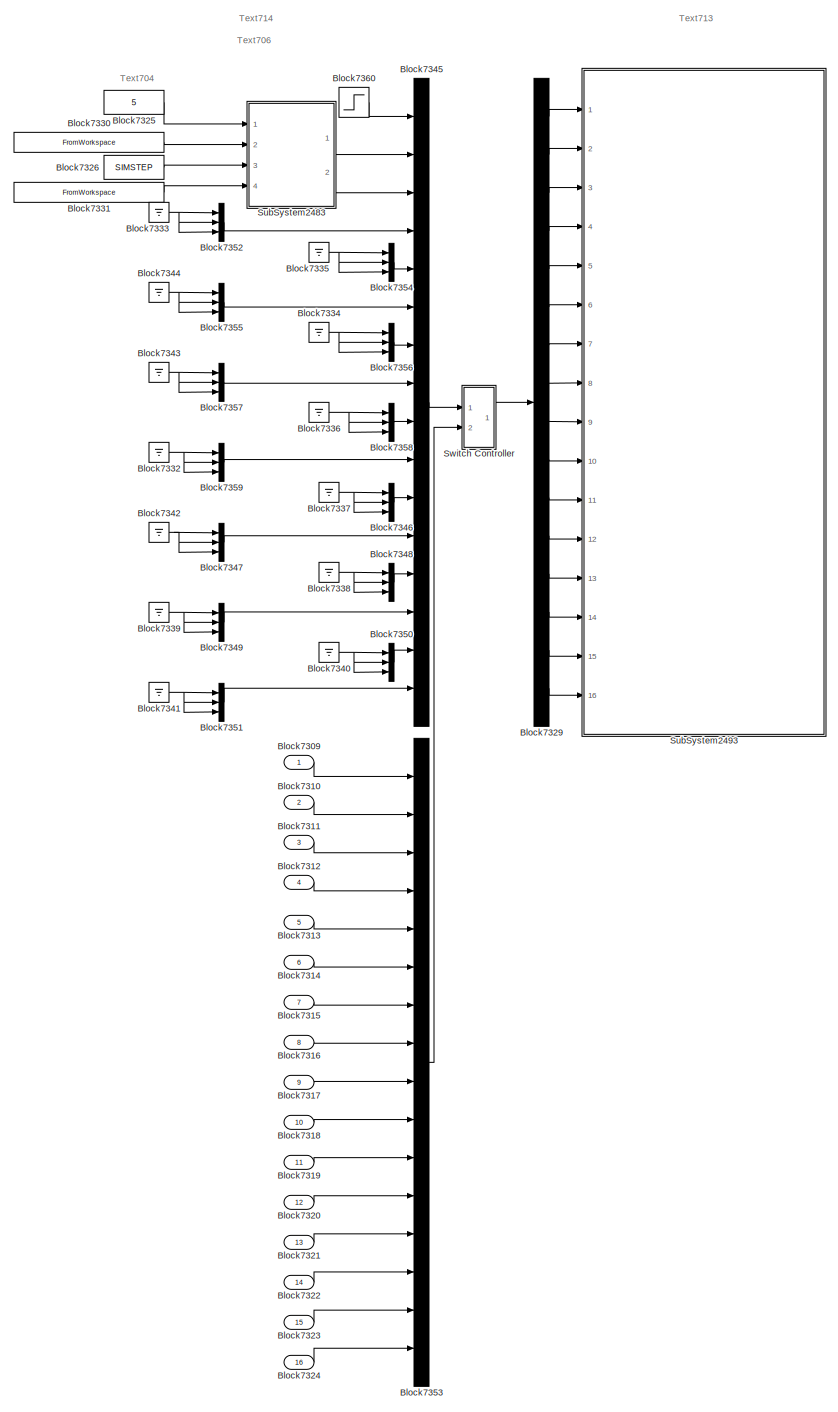
[diagram: root canvas - part 1/2, center side, full height]
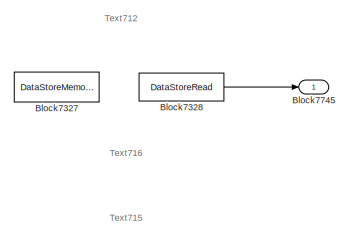
[diagram: root canvas - part 2/2, top right region]
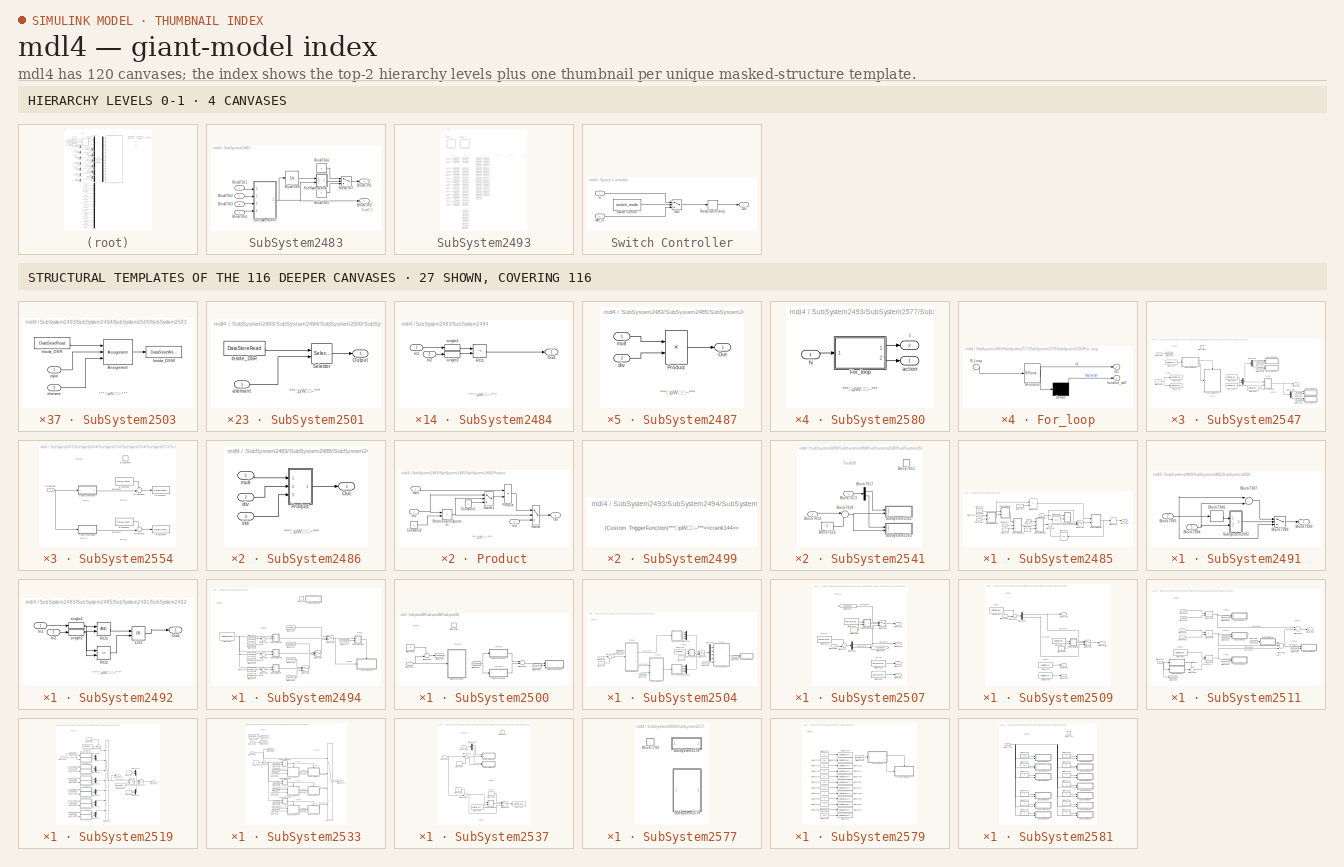
[diagram: thumbnail index - top-2 hierarchy levels (4 canvases) + 27 structural-template representatives of the remaining 116 canvases]
MODEL mdl4
KIND model
BLOCK [Inport] Block7309
  IconDisplay = Port number
  SID = 1
  SamplingMode = Sample based
  SignalType = real
BLOCK [Inport] Block7310
  IconDisplay = Port number
  Port = 2
  SID = 2
  SamplingMode = Sample based
  SignalType = real
BLOCK [Inport] Block7311
  IconDisplay = Port number
  Port = 3
  SID = 3
  SamplingMode = Sample based
  SignalType = real
BLOCK [Inport] Block7312
  IconDisplay = Port number
  Port = 4
  PortDimensions = 3
  SID = 4
  SamplingMode = Sample based
  SignalType = real
BLOCK [Inport] Block7313
  IconDisplay = Port number
  Port = 5
  PortDimensions = 3
  SID = 5
  SamplingMode = Sample based
  SignalType = real
BLOCK [Inport] Block7314
  IconDisplay = Port number
  Port = 6
  PortDimensions = 3
  SID = 6
  SamplingMode = Sample based
  SignalType = real
BLOCK [Inport] Block7315
  IconDisplay = Port number
  Port = 7
  PortDimensions = 3
  SID = 7
  SamplingMode = Sample based
  SignalType = real
BLOCK [Inport] Block7316
  IconDisplay = Port number
  Port = 8
  PortDimensions = 3
  SID = 8
  SamplingMode = Sample based
  SignalType = real
BLOCK [Inport] Block7317
  IconDisplay = Port number
  Port = 9
  PortDimensions = 3
  SID = 9
  SamplingMode = Sample based
  SignalType = real
BLOCK [Inport] Block7318
  IconDisplay = Port number
  Port = 10
  PortDimensions = 3
  SID = 10
  SamplingMode = Sample based
  SignalType = real
BLOCK [Inport] Block7319
  IconDisplay = Port number
  Port = 11
  PortDimensions = 3
  SID = 11
  SamplingMode = Sample based
  SignalType = real
BLOCK [Inport] Block7320
  IconDisplay = Port number
  Port = 12
  PortDimensions = 3
  SID = 12
  SamplingMode = Sample based
  SignalType = real
BLOCK [Inport] Block7321
  IconDisplay = Port number
  Port = 13
  PortDimensions = 3
  SID = 13
  SamplingMode = Sample based
  SignalType = real
BLOCK [Inport] Block7322
  IconDisplay = Port number
  Port = 14
  PortDimensions = 3
  SID = 14
  SamplingMode = Sample based
  SignalType = real
BLOCK [Inport] Block7323
  IconDisplay = Port number
  Port = 15
  PortDimensions = 3
  SID = 15
  SamplingMode = Sample based
  SignalType = real
BLOCK [Inport] Block7324
  IconDisplay = Port number
  Port = 16
  PortDimensions = 3
  SID = 16
  SamplingMode = Sample based
  SignalType = real
BLOCK [Constant] Block7325
  OutDataTypeStr = double
  SID = 17
  SampleTime = -1
  UserData = DataTag1
  UserDataPersistent = on
  Value = 5
BLOCK [Constant] Block7326
  OutDataTypeStr = double
  SID = 18
  SampleTime = -1
  UserData = DataTag2
  UserDataPersistent = on
  Value = SIMSTEP
BLOCK [DataStoreMemory] Block7327
  DataStoreName = DSM258
  InitialValue = [0 0 0]
  OutDataTypeStr = double
  SID = 19
BLOCK [DataStoreRead] Block7328
  DataStoreName = DSM258
  SID = 20
BLOCK [Demux] Block7329
  Outputs = 16
  Ports = [1, 16]
  SID = 21
BLOCK [FromWorkspace] Block7330
  Interpolate = off
  OutputAfterFinalValue = Holding final value
  SID = 22
  SampleTime = SIMSTEP
  UserData = DataTag3
  UserDataPersistent = on
  VariableName = [ TIME , SimData12 ]
BLOCK [FromWorkspace] Block7331
  Interpolate = off
  OutputAfterFinalValue = Holding final value
  SID = 23
  SampleTime = SIMSTEP
  UserData = DataTag4
  UserDataPersistent = on
  VariableName = [ TIME , SimData13 ]
BLOCK [Ground] Block7332
  SID = 24
BLOCK [Ground] Block7333
  SID = 25
BLOCK [Ground] Block7334
  SID = 26
BLOCK [Ground] Block7335
  SID = 27
BLOCK [Ground] Block7336
  SID = 28
BLOCK [Ground] Block7337
  SID = 29
BLOCK [Ground] Block7338
  SID = 30
BLOCK [Ground] Block7339
  SID = 31
BLOCK [Ground] Block7340
  SID = 32
BLOCK [Ground] Block7341
  SID = 33
BLOCK [Ground] Block7342
  SID = 34
BLOCK [Ground] Block7343
  SID = 35
BLOCK [Ground] Block7344
  SID = 36
BLOCK [Mux] Block7345
  DisplayOption = bar
  Inputs = 16
  Ports = [16, 1]
  SID = 37
BLOCK [Mux] Block7346
  DisplayOption = bar
  Inputs = 3
  Ports = [3, 1]
  SID = 38
BLOCK [Mux] Block7347
  DisplayOption = bar
  Inputs = 3
  Ports = [3, 1]
  SID = 39
BLOCK [Mux] Block7348
  DisplayOption = bar
  Inputs = 3
  Ports = [3, 1]
  SID = 40
BLOCK [Mux] Block7349
  DisplayOption = bar
  Inputs = 3
  Ports = [3, 1]
  SID = 41
BLOCK [Mux] Block7350
  DisplayOption = bar
  Inputs = 3
  Ports = [3, 1]
  SID = 42
BLOCK [Mux] Block7351
  DisplayOption = bar
  Inputs = 3
  Ports = [3, 1]
  SID = 43
BLOCK [Mux] Block7352
  DisplayOption = bar
  Inputs = 3
  Ports = [3, 1]
  SID = 44
BLOCK [Mux] Block7353
  DisplayOption = bar
  Inputs = 16
  Ports = [16, 1]
  SID = 45
BLOCK [Mux] Block7354
  DisplayOption = bar
  Inputs = 3
  Ports = [3, 1]
  SID = 46
BLOCK [Mux] Block7355
  DisplayOption = bar
  Inputs = 3
  Ports = [3, 1]
  SID = 47
BLOCK [Mux] Block7356
  DisplayOption = bar
  Inputs = 3
  Ports = [3, 1]
  SID = 48
BLOCK [Mux] Block7357
  DisplayOption = bar
  Inputs = 3
  Ports = [3, 1]
  SID = 49
BLOCK [Mux] Block7358
  DisplayOption = bar
  Inputs = 3
  Ports = [3, 1]
  SID = 50
BLOCK [Mux] Block7359
  DisplayOption = bar
  Inputs = 3
  Ports = [3, 1]
  SID = 51
BLOCK [Step] Block7360
  SID = 52
  SampleTime = SIMSTEP
  Time = SIMSTEP
BLOCK [Outport] Block7745
  IconDisplay = Port number
  SID = 991
  SamplingMode = Sample based
  SignalType = real
BLOCK [SubSystem] SubSystem2483
  FunctionWithSeparateData = off
  MaskHideContents = off
  MinAlgLoopOccurrences = off
  Opaque = off
  Ports = [4, 2]
  PropExecContextOutsideSubsystem = off
  RTWSystemCode = Auto
  RequestExecContextInheritance = off
  SID = 53
BLOCK [Inport] SubSystem2483/Block7361
  IconDisplay = Port number
  SID = 54
BLOCK [Inport] SubSystem2483/Block7362
  IconDisplay = Port number
  Port = 2
  SID = 55
BLOCK [Inport] SubSystem2483/Block7363
  IconDisplay = Port number
  Port = 3
  SID = 56
BLOCK [Inport] SubSystem2483/Block7364
  IconDisplay = Port number
  Port = 4
  SID = 57
BLOCK [Constant] SubSystem2483/Block7365
  OutDataTypeStr = double
  SID = 58
  SampleTime = -1
  UserData = DataTag5
  UserDataPersistent = on
  Value = 0
BLOCK [Constant] SubSystem2483/Block7366
  OutDataTypeStr = double
  SID = 59
  SampleTime = -1
  UserData = DataTag6
  UserDataPersistent = on
BLOCK [Switch] SubSystem2483/Block7367
  RndMeth = Zero
  SID = 60
  Threshold = 0.5
BLOCK [UnitDelay] SubSystem2483/Block7368
  SID = 61
  SampleTime = -1
  UserData = DataTag7
  UserDataPersistent = on
BLOCK [Outport] SubSystem2483/Block7391
  IconDisplay = Port number
  SID = 151
BLOCK [Outport] SubSystem2483/Block7392
  IconDisplay = Port number
  Port = 2
  SID = 152
BLOCK [SubSystem] SubSystem2483/SubSystem2484
  FunctionWithSeparateData = off
  MaskHideContents = off
  MinAlgLoopOccurrences = off
  Opaque = off
  Ports = [2, 1]
  PropExecContextOutsideSubsystem = off
  RTWSystemCode = Auto
  RequestExecContextInheritance = off
  SID = 62
BLOCK [Inport] SubSystem2483/SubSystem2484/In1
  IconDisplay = Port number
  SID = 63
  SamplingMode = Sample based
  SignalType = real
BLOCK [Inport] SubSystem2483/SubSystem2484/In2
  IconDisplay = Port number
  Port = 2
  SID = 64
  SamplingMode = Sample based
  SignalType = real
BLOCK [Outport] SubSystem2483/SubSystem2484/Out1
  IconDisplay = Port number
  SID = 68
  SamplingMode = Sample based
  SignalType = real
BLOCK [RelationalOperator] SubSystem2483/SubSystem2484/RO1
  Operator = ~=
  Ports = [2, 1]
  SID = 65
BLOCK [DataTypeConversion] SubSystem2483/SubSystem2484/single1
  OutDataTypeStr = single
  SID = 66
BLOCK [DataTypeConversion] SubSystem2483/SubSystem2484/single2
  OutDataTypeStr = single
  SID = 67
BLOCK [SubSystem] SubSystem2483/SubSystem2485
  FunctionWithSeparateData = off
  MaskHideContents = off
  MinAlgLoopOccurrences = off
  Opaque = off
  Ports = [4, 1]
  PropExecContextOutsideSubsystem = off
  RTWSystemCode = Auto
  RequestExecContextInheritance = off
  SID = 69
BLOCK [Inport] SubSystem2483/SubSystem2485/Block7369
  IconDisplay = Port number
  SID = 70
BLOCK [Inport] SubSystem2483/SubSystem2485/Block7370
  IconDisplay = Port number
  Port = 2
  SID = 71
  SamplingMode = Sample based
  SignalType = real
BLOCK [Inport] SubSystem2483/SubSystem2485/Block7371
  IconDisplay = Port number
  Port = 3
  SID = 72
  SamplingMode = Sample based
  SignalType = real
BLOCK [Inport] SubSystem2483/SubSystem2485/Block7372
  IconDisplay = Port number
  Port = 4
  SID = 73
  SamplingMode = Sample based
  SignalType = real
BLOCK [Constant] SubSystem2483/SubSystem2485/Block7373
  OutDataTypeStr = double
  SID = 74
  SampleTime = -1
  UserData = DataTag8
  UserDataPersistent = on
  Value = 60
BLOCK [Constant] SubSystem2483/SubSystem2485/Block7374
  OutDataTypeStr = double
  SID = 75
  SampleTime = -1
  UserData = DataTag9
  UserDataPersistent = on
  Value = 0
BLOCK [Constant] SubSystem2483/SubSystem2485/Block7375
  OutDataTypeStr = double
  SID = 76
  SampleTime = -1
  UserData = DataTag10
  UserDataPersistent = on
  Value = 360
BLOCK [Constant] SubSystem2483/SubSystem2485/Block7376
  OutDataTypeStr = double
  SID = 77
  SampleTime = -1
  UserData = DataTag11
  UserDataPersistent = on
  Value = 0
BLOCK [Constant] SubSystem2483/SubSystem2485/Block7377
  OutDataTypeStr = double
  SID = 78
  SampleTime = -1
  UserData = DataTag12
  UserDataPersistent = on
  Value = 2
BLOCK [Product] SubSystem2483/SubSystem2485/Block7378
  Inputs = **
  Ports = [2, 1]
  SID = 79
BLOCK [Rounding] SubSystem2483/SubSystem2485/Block7379
  Operator = round
  SID = 80
BLOCK [Sum] SubSystem2483/SubSystem2485/Block7380
  IconShape = round
  Inputs = |++
  OutDataTypeStr = double
  Ports = [2, 1]
  RndMeth = Zero
  SID = 81
BLOCK [Switch] SubSystem2483/SubSystem2485/Block7381
  RndMeth = Zero
  SID = 82
  Threshold = 0.5
BLOCK [UnitDelay] SubSystem2483/SubSystem2485/Block7382
  SID = 83
  SampleTime = -1
  UserData = DataTag13
  UserDataPersistent = on
BLOCK [UnitDelay] SubSystem2483/SubSystem2485/Block7383
  SID = 84
  SampleTime = -1
  UserData = DataTag14
  UserDataPersistent = on
BLOCK [Outport] SubSystem2483/SubSystem2485/Block7390
  IconDisplay = Port number
  SID = 150
  SamplingMode = Sample based
  SignalType = real
BLOCK [SubSystem] SubSystem2483/SubSystem2485/SubSystem2486
  FunctionWithSeparateData = off
  MaskCallbackString = ||||||||||||||||||||
  MaskDescription = ±êÍAutoC<copyright redacted>
  MaskEnableString = off,on,on,on,on,on,on,on,on,on,on,on,on,on,on,on,on,on,on,on,on
  MaskHelp = web(ui_blockhelpmng(gcb));
  MaskHideContents = off
  MaskIconFrame = on
  MaskIconOpaque = on
  MaskIconRotate = none
  MaskIconUnits = autoscale
  MaskPortRotate = default
  MaskPromptString = Version|r0|r1|r2|r3|r4|r5|r6|r7|r8|r9|c0|c1|c2|c3|c4|c5|c6|c7|c8|c9
  MaskStyleString = edit,edit,edit,edit,edit,edit,edit,edit,edit,edit,edit,edit,edit,edit,edit,edit,edit,edit,edit,edit,edit
  MaskToolTipString = on,on,on,on,on,on,on,on,on,on,on,on,on,on,on,on,on,on,on,on,on
  MaskTunableValueString = off,on,on,on,on,on,on,on,on,on,on,on,on,on,on,on,on,on,on,on,on
  MaskType = ***ATC.DIVISION***
  MaskValueString = 1.01.A|`FbNLè|||||||||||||||||||
  MaskVariables = bd_version=&1;r0=&2;r1=&3;r2=&4;r3=&5;r4=&6;r5=&7;r6=&8;r7=&9;r8=&10;r9=&11;c0=&12;c1=&13;c2=&14;c3=&15;c4=&16;c5=&17;c6=&18;c7=&19;c8=&20;c9=&21;
  MaskVisibilityString = off,off,off,off,off,off,off,off,off,off,off,off,off,off,off,off,off,off,off,off,off
  MinAlgLoopOccurrences = off
  Opaque = off
  OpenFcn = warndlg('ÏXÖ~!');
  Ports = [3, 1]
  PropExecContextOutsideSubsystem = off
  RTWSystemCode = Auto
  RequestExecContextInheritance = off
  SID = 85
  TreatAsAtomicUnit = on
  UserData = DataTag15
  UserDataPersistent = on
BLOCK [Outport] SubSystem2483/SubSystem2485/SubSystem2486/Out
  IconDisplay = Port number
  SID = 100
BLOCK [SubSystem] SubSystem2483/SubSystem2485/SubSystem2486/Product
  FunctionWithSeparateData = off
  MaskHideContents = off
  MinAlgLoopOccurrences = off
  Opaque = off
  Ports = [3, 1]
  PropExecContextOutsideSubsystem = off
  RTWSystemCode = Inline
  RequestExecContextInheritance = off
  SID = 89
  TreatAsAtomicUnit = on
BLOCK [Constant] SubSystem2483/SubSystem2485/SubSystem2486/Product/Constant1
  OutDataTypeStr = Inherit: Inherit via back propagation
  SID = 93
BLOCK [Constant] SubSystem2483/SubSystem2485/SubSystem2486/Product/Constant2
  OutDataTypeStr = Inherit: Inherit via back propagation
  SID = 94
  Value = 0
BLOCK [Outport] SubSystem2483/SubSystem2485/SubSystem2486/Product/Out
  IconDisplay = Port number
  SID = 99
BLOCK [Product] SubSystem2483/SubSystem2485/SubSystem2486/Product/Product
  Inputs = */
  Ports = [2, 1]
  SID = 95
BLOCK [RelationalOperator] SubSystem2483/SubSystem2485/SubSystem2486/Product/Relational\nOperator
  Operator = ~=
  Ports = [2, 1]
  SID = 96
BLOCK [Switch] SubSystem2483/SubSystem2485/SubSystem2486/Product/Switch
  SID = 97
  Threshold = 0.5
BLOCK [Switch] SubSystem2483/SubSystem2485/SubSystem2486/Product/Switch1
  SID = 98
  Threshold = 0.5
BLOCK [Inport] SubSystem2483/SubSystem2485/SubSystem2486/Product/div
  IconDisplay = Port number
  Port = 2
  SID = 91
BLOCK [Inport] SubSystem2483/SubSystem2485/SubSystem2486/Product/init
  IconDisplay = Port number
  Port = 3
  SID = 92
BLOCK [Inport] SubSystem2483/SubSystem2485/SubSystem2486/Product/mult
  IconDisplay = Port number
  SID = 90
BLOCK [Inport] SubSystem2483/SubSystem2485/SubSystem2486/div
  IconDisplay = Port number
  Port = 2
  SID = 87
BLOCK [Inport] SubSystem2483/SubSystem2485/SubSystem2486/init
  IconDisplay = Port number
  Port = 3
  SID = 88
BLOCK [Inport] SubSystem2483/SubSystem2485/SubSystem2486/mult
  IconDisplay = Port number
  SID = 86
BLOCK [SubSystem] SubSystem2483/SubSystem2485/SubSystem2487
  FunctionWithSeparateData = off
  MaskCallbackString = ||||||||||||||||||||
  MaskDescription = ±êÍAutoC<copyright redacted>
  MaskEnableString = off,on,on,on,on,on,on,on,on,on,on,on,on,on,on,on,on,on,on,on,on
  MaskHelp = web(ui_blockhelpmng(gcb));
  MaskHideContents = off
  MaskIconFrame = on
  MaskIconOpaque = on
  MaskIconRotate = none
  MaskIconUnits = autoscale
  MaskPortRotate = default
  MaskPromptString = Version|r0|r1|r2|r3|r4|r5|r6|r7|r8|r9|c0|c1|c2|c3|c4|c5|c6|c7|c8|c9
  MaskStyleString = edit,edit,edit,edit,edit,edit,edit,edit,edit,edit,edit,edit,edit,edit,edit,edit,edit,edit,edit,edit,edit
  MaskToolTipString = on,on,on,on,on,on,on,on,on,on,on,on,on,on,on,on,on,on,on,on,on
  MaskTunableValueString = off,on,on,on,on,on,on,on,on,on,on,on,on,on,on,on,on,on,on,on,on
  MaskType = ***ATC.DIVISION***
  MaskValueString = 1.01.A|`FbN³µ|||||||||||||||||||
  MaskVariables = bd_version=&1;r0=&2;r1=&3;r2=&4;r3=&5;r4=&6;r5=&7;r6=&8;r7=&9;r8=&10;r9=&11;c0=&12;c1=&13;c2=&14;c3=&15;c4=&16;c5=&17;c6=&18;c7=&19;c8=&20;c9=&21;
  MaskVisibilityString = off,off,off,off,off,off,off,off,off,off,off,off,off,off,off,off,off,off,off,off,off
  MinAlgLoopOccurrences = off
  Opaque = off
  OpenFcn = warndlg('ÏXÖ~!');
  Ports = [2, 1]
  PropExecContextOutsideSubsystem = off
  RTWSystemCode = Auto
  RequestExecContextInheritance = off
  SID = 101
  TreatAsAtomicUnit = on
  UserData = DataTag16
  UserDataPersistent = on
BLOCK [Outport] SubSystem2483/SubSystem2485/SubSystem2487/Out
  IconDisplay = Port number
  SID = 105
BLOCK [Product] SubSystem2483/SubSystem2485/SubSystem2487/Product
  Inputs = */
  Ports = [2, 1]
  SID = 104
BLOCK [Inport] SubSystem2483/SubSystem2485/SubSystem2487/div
  IconDisplay = Port number
  Port = 2
  SID = 103
BLOCK [Inport] SubSystem2483/SubSystem2485/SubSystem2487/mult
  IconDisplay = Port number
  SID = 102
BLOCK [SubSystem] SubSystem2483/SubSystem2485/SubSystem2488
  FunctionWithSeparateData = off
  MaskCallbackString = ||||||||||||||||||||
  MaskDescription = ±êÍAutoC<copyright redacted>
  MaskEnableString = off,on,on,on,on,on,on,on,on,on,on,on,on,on,on,on,on,on,on,on,on
  MaskHelp = web(ui_blockhelpmng(gcb));
  MaskHideContents = off
  MaskIconFrame = on
  MaskIconOpaque = on
  MaskIconRotate = none
  MaskIconUnits = autoscale
  MaskPortRotate = default
  MaskPromptString = Version|r0|r1|r2|r3|r4|r5|r6|r7|r8|r9|c0|c1|c2|c3|c4|c5|c6|c7|c8|c9
  MaskStyleString = edit,edit,edit,edit,edit,edit,edit,edit,edit,edit,edit,edit,edit,edit,edit,edit,edit,edit,edit,edit,edit
  MaskToolTipString = on,on,on,on,on,on,on,on,on,on,on,on,on,on,on,on,on,on,on,on,on
  MaskTunableValueString = off,on,on,on,on,on,on,on,on,on,on,on,on,on,on,on,on,on,on,on,on
  MaskType = ***ATC.DIVISION***
  MaskValueString = 1.01.A|`FbNLè|||||||||||||||||||
  MaskVariables = bd_version=&1;r0=&2;r1=&3;r2=&4;r3=&5;r4=&6;r5=&7;r6=&8;r7=&9;r8=&10;r9=&11;c0=&12;c1=&13;c2=&14;c3=&15;c4=&16;c5=&17;c6=&18;c7=&19;c8=&20;c9=&21;
  MaskVisibilityString = off,off,off,off,off,off,off,off,off,off,off,off,off,off,off,off,off,off,off,off,off
  MinAlgLoopOccurrences = off
  Opaque = off
  OpenFcn = warndlg('ÏXÖ~!');
  Ports = [3, 1]
  PropExecContextOutsideSubsystem = off
  RTWSystemCode = Auto
  RequestExecContextInheritance = off
  SID = 106
  TreatAsAtomicUnit = on
  UserData = DataTag17
  UserDataPersistent = on
BLOCK [Outport] SubSystem2483/SubSystem2485/SubSystem2488/Out
  IconDisplay = Port number
  SID = 121
BLOCK [SubSystem] SubSystem2483/SubSystem2485/SubSystem2488/Product
  FunctionWithSeparateData = off
  MaskHideContents = off
  MinAlgLoopOccurrences = off
  Opaque = off
  Ports = [3, 1]
  PropExecContextOutsideSubsystem = off
  RTWSystemCode = Inline
  RequestExecContextInheritance = off
  SID = 110
  TreatAsAtomicUnit = on
BLOCK [Constant] SubSystem2483/SubSystem2485/SubSystem2488/Product/Constant1
  OutDataTypeStr = Inherit: Inherit via back propagation
  SID = 114
BLOCK [Constant] SubSystem2483/SubSystem2485/SubSystem2488/Product/Constant2
  OutDataTypeStr = Inherit: Inherit via back propagation
  SID = 115
  Value = 0
BLOCK [Outport] SubSystem2483/SubSystem2485/SubSystem2488/Product/Out
  IconDisplay = Port number
  SID = 120
BLOCK [Product] SubSystem2483/SubSystem2485/SubSystem2488/Product/Product
  Inputs = */
  Ports = [2, 1]
  SID = 116
BLOCK [RelationalOperator] SubSystem2483/SubSystem2485/SubSystem2488/Product/Relational\nOperator
  Operator = ~=
  Ports = [2, 1]
  SID = 117
BLOCK [Switch] SubSystem2483/SubSystem2485/SubSystem2488/Product/Switch
  SID = 118
  Threshold = 0.5
BLOCK [Switch] SubSystem2483/SubSystem2485/SubSystem2488/Product/Switch1
  SID = 119
  Threshold = 0.5
BLOCK [Inport] SubSystem2483/SubSystem2485/SubSystem2488/Product/div
  IconDisplay = Port number
  Port = 2
  SID = 112
BLOCK [Inport] SubSystem2483/SubSystem2485/SubSystem2488/Product/init
  IconDisplay = Port number
  Port = 3
  SID = 113
BLOCK [Inport] SubSystem2483/SubSystem2485/SubSystem2488/Product/mult
  IconDisplay = Port number
  SID = 111
BLOCK [Inport] SubSystem2483/SubSystem2485/SubSystem2488/div
  IconDisplay = Port number
  Port = 2
  SID = 108
BLOCK [Inport] SubSystem2483/SubSystem2485/SubSystem2488/init
  IconDisplay = Port number
  Port = 3
  SID = 109
BLOCK [Inport] SubSystem2483/SubSystem2485/SubSystem2488/mult
  IconDisplay = Port number
  SID = 107
BLOCK [SubSystem] SubSystem2483/SubSystem2485/SubSystem2489
  FunctionWithSeparateData = off
  MaskCallbackString = ||||||||||||||||||||
  MaskDescription = ±êÍAutoC<copyright redacted>
  MaskEnableString = off,on,on,on,on,on,on,on,on,on,on,on,on,on,on,on,on,on,on,on,on
  MaskHelp = web(ui_blockhelpmng(gcb));
  MaskHideContents = off
  MaskIconFrame = on
  MaskIconOpaque = on
  MaskIconRotate = none
  MaskIconUnits = autoscale
  MaskPortRotate = default
  MaskPromptString = Version|r0|r1|r2|r3|r4|r5|r6|r7|r8|r9|c0|c1|c2|c3|c4|c5|c6|c7|c8|c9
  MaskStyleString = edit,edit,edit,edit,edit,edit,edit,edit,edit,edit,edit,edit,edit,edit,edit,edit,edit,edit,edit,edit,edit
  MaskToolTipString = on,on,on,on,on,on,on,on,on,on,on,on,on,on,on,on,on,on,on,on,on
  MaskTunableValueString = off,on,on,on,on,on,on,on,on,on,on,on,on,on,on,on,on,on,on,on,on
  MaskType = ***ATC.DIVISION***
  MaskValueString = 1.01.A|`FbN³µ|||||||||||||||||||
  MaskVariables = bd_version=&1;r0=&2;r1=&3;r2=&4;r3=&5;r4=&6;r5=&7;r6=&8;r7=&9;r8=&10;r9=&11;c0=&12;c1=&13;c2=&14;c3=&15;c4=&16;c5=&17;c6=&18;c7=&19;c8=&20;c9=&21;
  MaskVisibilityString = off,off,off,off,off,off,off,off,off,off,off,off,off,off,off,off,off,off,off,off,off
  MinAlgLoopOccurrences = off
  Opaque = off
  OpenFcn = warndlg('ÏXÖ~!');
  Ports = [2, 1]
  PropExecContextOutsideSubsystem = off
  RTWSystemCode = Auto
  RequestExecContextInheritance = off
  SID = 122
  TreatAsAtomicUnit = on
  UserData = DataTag18
  UserDataPersistent = on
BLOCK [Outport] SubSystem2483/SubSystem2485/SubSystem2489/Out
  IconDisplay = Port number
  SID = 126
BLOCK [Product] SubSystem2483/SubSystem2485/SubSystem2489/Product
  Inputs = */
  Ports = [2, 1]
  SID = 125
BLOCK [Inport] SubSystem2483/SubSystem2485/SubSystem2489/div
  IconDisplay = Port number
  Port = 2
  SID = 124
BLOCK [Inport] SubSystem2483/SubSystem2485/SubSystem2489/mult
  IconDisplay = Port number
  SID = 123
BLOCK [SubSystem] SubSystem2483/SubSystem2485/SubSystem2490
  FunctionWithSeparateData = off
  MaskHideContents = off
  MinAlgLoopOccurrences = off
  Opaque = off
  Ports = [2, 1]
  PropExecContextOutsideSubsystem = off
  RTWSystemCode = Auto
  RequestExecContextInheritance = off
  SID = 127
BLOCK [Inport] SubSystem2483/SubSystem2485/SubSystem2490/In1
  IconDisplay = Port number
  SID = 128
  SamplingMode = Sample based
  SignalType = real
BLOCK [Inport] SubSystem2483/SubSystem2485/SubSystem2490/In2
  IconDisplay = Port number
  Port = 2
  SID = 129
  SamplingMode = Sample based
  SignalType = real
BLOCK [Outport] SubSystem2483/SubSystem2485/SubSystem2490/Out1
  IconDisplay = Port number
  SID = 133
  SamplingMode = Sample based
  SignalType = real
BLOCK [RelationalOperator] SubSystem2483/SubSystem2485/SubSystem2490/RO1
  Operator = ~=
  Ports = [2, 1]
  SID = 130
BLOCK [DataTypeConversion] SubSystem2483/SubSystem2485/SubSystem2490/single1
  OutDataTypeStr = single
  SID = 131
BLOCK [DataTypeConversion] SubSystem2483/SubSystem2485/SubSystem2490/single2
  OutDataTypeStr = single
  SID = 132
BLOCK [SubSystem] SubSystem2483/SubSystem2485/SubSystem2491
  FunctionWithSeparateData = off
  MaskHideContents = off
  MinAlgLoopOccurrences = off
  Opaque = off
  Ports = [2, 1]
  PropExecContextOutsideSubsystem = off
  RTWSystemCode = Inline
  RequestExecContextInheritance = off
  SID = 134
BLOCK [Inport] SubSystem2483/SubSystem2485/SubSystem2491/Block7384
  IconDisplay = Port number
  SID = 135
  SamplingMode = Sample based
  SignalType = real
BLOCK [Inport] SubSystem2483/SubSystem2485/SubSystem2491/Block7385
  IconDisplay = Port number
  Port = 2
  SID = 136
  SamplingMode = Sample based
  SignalType = real
BLOCK [Rounding] SubSystem2483/SubSystem2485/SubSystem2491/Block7386
  Operator = round
  SID = 137
BLOCK [Sum] SubSystem2483/SubSystem2485/SubSystem2491/Block7387
  Inputs = +-
  OutDataTypeStr = double
  Ports = [2, 1]
  RndMeth = Zero
  SID = 138
BLOCK [Switch] SubSystem2483/SubSystem2485/SubSystem2491/Block7388
  RndMeth = Zero
  SID = 139
  Threshold = 0.5
BLOCK [Outport] SubSystem2483/SubSystem2485/SubSystem2491/Block7389
  IconDisplay = Port number
  SID = 149
  SamplingMode = Sample based
  SignalType = real
BLOCK [SubSystem] SubSystem2483/SubSystem2485/SubSystem2491/SubSystem2492
  FunctionWithSeparateData = off
  MaskHideContents = off
  MinAlgLoopOccurrences = off
  Opaque = off
  Ports = [2, 1]
  PropExecContextOutsideSubsystem = off
  RTWSystemCode = Auto
  RequestExecContextInheritance = off
  SID = 140
BLOCK [Inport] SubSystem2483/SubSystem2485/SubSystem2491/SubSystem2492/In1
  IconDisplay = Port number
  SID = 141
  SamplingMode = Sample based
  SignalType = real
BLOCK [Inport] SubSystem2483/SubSystem2485/SubSystem2491/SubSystem2492/In2
  IconDisplay = Port number
  Port = 2
  SID = 142
  SamplingMode = Sample based
  SignalType = real
BLOCK [Logic] SubSystem2483/SubSystem2485/SubSystem2491/SubSystem2492/LO1
  Operator = OR
  Ports = [2, 1]
  SID = 143
BLOCK [Outport] SubSystem2483/SubSystem2485/SubSystem2491/SubSystem2492/Out1
  IconDisplay = Port number
  SID = 148
  SamplingMode = Sample based
  SignalType = real
BLOCK [RelationalOperator] SubSystem2483/SubSystem2485/SubSystem2491/SubSystem2492/RO1
  Ports = [2, 1]
  SID = 144
BLOCK [RelationalOperator] SubSystem2483/SubSystem2485/SubSystem2491/SubSystem2492/RO2
  Operator = ==
  Ports = [2, 1]
  SID = 145
BLOCK [DataTypeConversion] SubSystem2483/SubSystem2485/SubSystem2491/SubSystem2492/single1
  OutDataTypeStr = single
  SID = 146
BLOCK [DataTypeConversion] SubSystem2483/SubSystem2485/SubSystem2491/SubSystem2492/single2
  OutDataTypeStr = single
  SID = 147
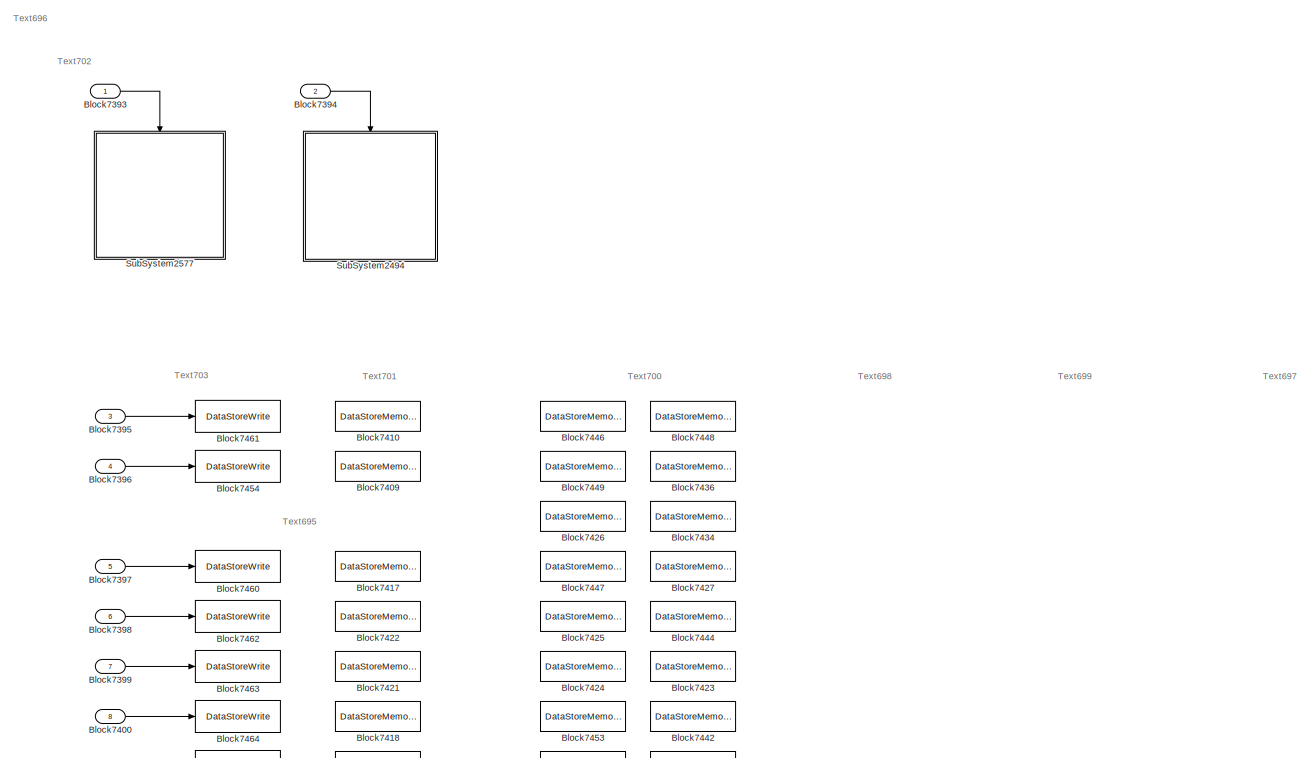
[diagram: SubSystem2493 - part 1/2, full width, top band]
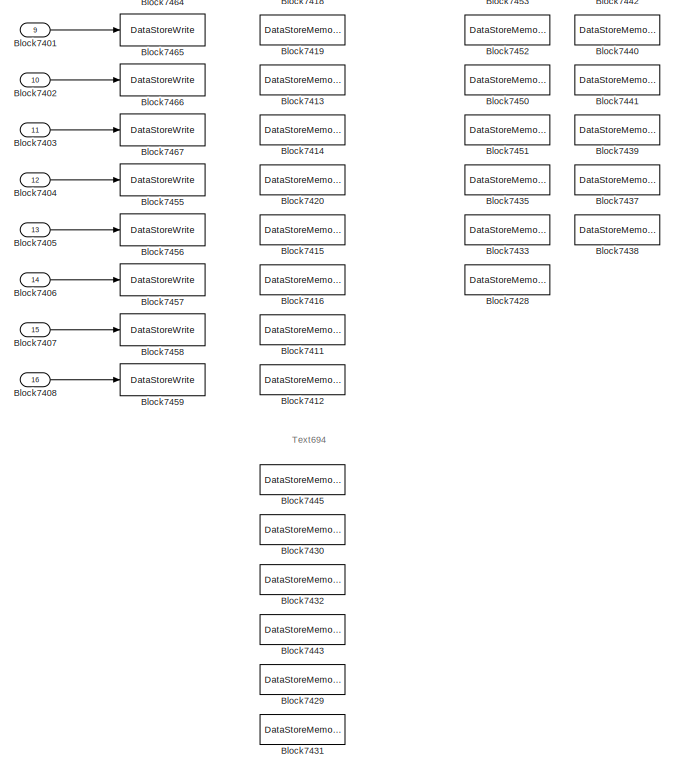
[diagram: SubSystem2493 - part 2/2, bottom left region]
BLOCK [SubSystem] SubSystem2493
  FunctionWithSeparateData = off
  MaskHideContents = off
  MinAlgLoopOccurrences = off
  Opaque = off
  Ports = [16]
  PropExecContextOutsideSubsystem = off
  RTWSystemCode = Auto
  RequestExecContextInheritance = off
  SID = 153
BLOCK [Inport] SubSystem2493/Block7393
  IconDisplay = Port number
  SID = 154
  SamplingMode = Sample based
  SignalType = real
BLOCK [Inport] SubSystem2493/Block7394
  IconDisplay = Port number
  Port = 2
  SID = 155
  SamplingMode = Sample based
  SignalType = real
BLOCK [Inport] SubSystem2493/Block7395
  IconDisplay = Port number
  Port = 3
  SID = 156
  SamplingMode = Sample based
  SignalType = real
BLOCK [Inport] SubSystem2493/Block7396
  IconDisplay = Port number
  Port = 4
  SID = 157
  SamplingMode = Sample based
  SignalType = real
BLOCK [Inport] SubSystem2493/Block7397
  IconDisplay = Port number
  Port = 5
  SID = 158
  SamplingMode = Sample based
  SignalType = real
BLOCK [Inport] SubSystem2493/Block7398
  IconDisplay = Port number
  Port = 6
  SID = 159
  SamplingMode = Sample based
  SignalType = real
BLOCK [Inport] SubSystem2493/Block7399
  IconDisplay = Port number
  Port = 7
  SID = 160
  SamplingMode = Sample based
  SignalType = real
BLOCK [Inport] SubSystem2493/Block7400
  IconDisplay = Port number
  Port = 8
  SID = 161
  SamplingMode = Sample based
  SignalType = real
BLOCK [Inport] SubSystem2493/Block7401
  IconDisplay = Port number
  Port = 9
  SID = 162
  SamplingMode = Sample based
  SignalType = real
BLOCK [Inport] SubSystem2493/Block7402
  IconDisplay = Port number
  Port = 10
  SID = 163
  SamplingMode = Sample based
  SignalType = real
BLOCK [Inport] SubSystem2493/Block7403
  IconDisplay = Port number
  Port = 11
  SID = 164
  SamplingMode = Sample based
  SignalType = real
BLOCK [Inport] SubSystem2493/Block7404
  IconDisplay = Port number
  Port = 12
  SID = 165
  SamplingMode = Sample based
  SignalType = real
BLOCK [Inport] SubSystem2493/Block7405
  IconDisplay = Port number
  Port = 13
  SID = 166
  SamplingMode = Sample based
  SignalType = real
BLOCK [Inport] SubSystem2493/Block7406
  IconDisplay = Port number
  Port = 14
  SID = 167
  SamplingMode = Sample based
  SignalType = real
BLOCK [Inport] SubSystem2493/Block7407
  IconDisplay = Port number
  Port = 15
  SID = 168
  SamplingMode = Sample based
  SignalType = real
BLOCK [Inport] SubSystem2493/Block7408
  IconDisplay = Port number
  Port = 16
  SID = 169
  SamplingMode = Sample based
  SignalType = real
BLOCK [DataStoreMemory] SubSystem2493/Block7409
  DataStoreName = DSM259
  InitialValue = [0 0 0]
  OutDataTypeStr = double
  SID = 170
BLOCK [DataStoreMemory] SubSystem2493/Block7410
  DataStoreName = DSM43
  OutDataTypeStr = double
  SID = 171
BLOCK [DataStoreMemory] SubSystem2493/Block7411
  DataStoreName = DSM103
  InitialValue = [0 0 0]
  OutDataTypeStr = double
  SID = 172
BLOCK [DataStoreMemory] SubSystem2493/Block7412
  DataStoreName = DSM105
  InitialValue = [0 0 0]
  OutDataTypeStr = double
  SID = 173
BLOCK [DataStoreMemory] SubSystem2493/Block7413
  DataStoreName = DSM107
  InitialValue = [0 0 0]
  OutDataTypeStr = double
  SID = 174
BLOCK [DataStoreMemory] SubSystem2493/Block7414
  DataStoreName = DSM109
  InitialValue = [0 0 0]
  OutDataTypeStr = double
  SID = 175
BLOCK [DataStoreMemory] SubSystem2493/Block7415
  DataStoreName = DSM111
  InitialValue = [0 0 0]
  OutDataTypeStr = double
  SID = 176
BLOCK [DataStoreMemory] SubSystem2493/Block7416
  DataStoreName = DSM113
  InitialValue = [0 0 0]
  OutDataTypeStr = double
  SID = 177
BLOCK [DataStoreMemory] SubSystem2493/Block7417
  DataStoreName = DSM114
  InitialValue = [0 0 0]
  OutDataTypeStr = double
  SID = 178
BLOCK [DataStoreMemory] SubSystem2493/Block7418
  DataStoreName = DSM117
  InitialValue = [0 0 0]
  OutDataTypeStr = double
  SID = 179
BLOCK [DataStoreMemory] SubSystem2493/Block7419
  DataStoreName = DSM118
  InitialValue = [0 0 0]
  OutDataTypeStr = double
  SID = 180
BLOCK [DataStoreMemory] SubSystem2493/Block7420
  DataStoreName = DSM121
  InitialValue = [0 0 0]
  OutDataTypeStr = double
  SID = 181
BLOCK [DataStoreMemory] SubSystem2493/Block7421
  DataStoreName = DSM124
  InitialValue = [0 0 0]
  OutDataTypeStr = double
  SID = 182
BLOCK [DataStoreMemory] SubSystem2493/Block7422
  DataStoreName = DSM127
  InitialValue = [0 0 0]
  OutDataTypeStr = double
  SID = 183
BLOCK [DataStoreMemory] SubSystem2493/Block7423
  DataStoreName = DSM273
  OutDataTypeStr = double
  SID = 184
BLOCK [DataStoreMemory] SubSystem2493/Block7424
  DataStoreName = DSM274
  InitialValue = [0 0 0]
  OutDataTypeStr = double
  SID = 185
BLOCK [DataStoreMemory] SubSystem2493/Block7425
  DataStoreName = DSM275
  InitialValue = [0 0 0]
  OutDataTypeStr = double
  SID = 186
BLOCK [DataStoreMemory] SubSystem2493/Block7426
  DataStoreName = DSM276
  OutDataTypeStr = double
  SID = 187
BLOCK [DataStoreMemory] SubSystem2493/Block7427
  DataStoreName = DSM277
  OutDataTypeStr = double
  SID = 188
BLOCK [DataStoreMemory] SubSystem2493/Block7428
  DataStoreName = DSM278
  OutDataTypeStr = double
  SID = 189
BLOCK [DataStoreMemory] SubSystem2493/Block7429
  DataStoreName = DSM279
  InitialValue = [0 0 0 0 0 0 0 0 0 0 0 0 0 0 0 0 0 0 0 0 0 0 0 0 0 0 0 0 0 0 0 0 0 0 0 0 0 0 0 0 0 0 0 0 0 0 0 0 0 0 0 0 0 0 0 0 0 0 0 0 0 0 0 0 0 0 0 0 0 0 0 0 0 0 0 0 0 0 0 0 0 0 0 0 0 0 0 0 0 0 0 0 0 0 0 0 0 0 0 0]  <repeated x6 — deduplicated; at blocks: Block7429, Block7430, Block7431, Block7432, Block7443, Block7445>
  OutDataTypeStr = double
  SID = 190
BLOCK [DataStoreMemory] SubSystem2493/Block7430
  DataStoreName = DSM280
  OutDataTypeStr = double
  SID = 191
BLOCK [DataStoreMemory] SubSystem2493/Block7431
  DataStoreName = DSM281
  OutDataTypeStr = double
  SID = 192
BLOCK [DataStoreMemory] SubSystem2493/Block7432
  DataStoreName = DSM282
  OutDataTypeStr = double
  SID = 193
BLOCK [DataStoreMemory] SubSystem2493/Block7433
  DataStoreName = DSM283
  OutDataTypeStr = double
  SID = 194
BLOCK [DataStoreMemory] SubSystem2493/Block7434
  DataStoreName = DSM284
  OutDataTypeStr = double
  SID = 195
BLOCK [DataStoreMemory] SubSystem2493/Block7435
  DataStoreName = DSM285
  OutDataTypeStr = double
  SID = 196
BLOCK [DataStoreMemory] SubSystem2493/Block7436
  DataStoreName = DSM286
  OutDataTypeStr = double
  SID = 197
BLOCK [DataStoreMemory] SubSystem2493/Block7437
  DataStoreName = DSM287
  OutDataTypeStr = double
  SID = 198
BLOCK [DataStoreMemory] SubSystem2493/Block7438
  DataStoreName = DSM288
  OutDataTypeStr = double
  SID = 199
BLOCK [DataStoreMemory] SubSystem2493/Block7439
  DataStoreName = DSM289
  InitialValue = [0 0 0]
  OutDataTypeStr = double
  SID = 200
BLOCK [DataStoreMemory] SubSystem2493/Block7440
  DataStoreName = DSM290
  InitialValue = [0 0 0]
  OutDataTypeStr = double
  SID = 201
BLOCK [DataStoreMemory] SubSystem2493/Block7441
  DataStoreName = DSM291
  InitialValue = [0 0 0]
  OutDataTypeStr = double
  SID = 202
BLOCK [DataStoreMemory] SubSystem2493/Block7442
  DataStoreName = DSM292
  InitialValue = [0 0 0]
  OutDataTypeStr = double
  SID = 203
BLOCK [DataStoreMemory] SubSystem2493/Block7443
  DataStoreName = DSM293
  OutDataTypeStr = double
  SID = 204
BLOCK [DataStoreMemory] SubSystem2493/Block7444
  DataStoreName = DSM294
  OutDataTypeStr = double
  SID = 205
BLOCK [DataStoreMemory] SubSystem2493/Block7445
  DataStoreName = DSM295
  OutDataTypeStr = double
  SID = 206
BLOCK [DataStoreMemory] SubSystem2493/Block7446
  DataStoreName = DSM296
  OutDataTypeStr = double
  SID = 207
BLOCK [DataStoreMemory] SubSystem2493/Block7447
  DataStoreName = DSM297
  OutDataTypeStr = double
  SID = 208
BLOCK [DataStoreMemory] SubSystem2493/Block7448
  DataStoreName = DSM298
  OutDataTypeStr = double
  SID = 209
BLOCK [DataStoreMemory] SubSystem2493/Block7449
  DataStoreName = DSM299
  OutDataTypeStr = double
  SID = 210
BLOCK [DataStoreMemory] SubSystem2493/Block7450
  DataStoreName = DSM300
  InitialValue = [0 0 0]
  OutDataTypeStr = double
  SID = 211
BLOCK [DataStoreMemory] SubSystem2493/Block7451
  DataStoreName = DSM301
  InitialValue = [0 0 0]
  OutDataTypeStr = double
  SID = 212
BLOCK [DataStoreMemory] SubSystem2493/Block7452
  DataStoreName = DSM302
  InitialValue = [0 0 0]
  OutDataTypeStr = double
  SID = 213
BLOCK [DataStoreMemory] SubSystem2493/Block7453
  DataStoreName = DSM303
  InitialValue = [0 0 0]
  OutDataTypeStr = double
  SID = 214
BLOCK [DataStoreWrite] SubSystem2493/Block7454
  DataStoreName = DSM259
  Priority = 1
  SID = 215
BLOCK [DataStoreWrite] SubSystem2493/Block7455
  DataStoreName = DSM121
  Priority = 1
  SID = 216
BLOCK [DataStoreWrite] SubSystem2493/Block7456
  DataStoreName = DSM111
  Priority = 1
  SID = 217
BLOCK [DataStoreWrite] SubSystem2493/Block7457
  DataStoreName = DSM113
  Priority = 1
  SID = 218
BLOCK [DataStoreWrite] SubSystem2493/Block7458
  DataStoreName = DSM103
  Priority = 1
  SID = 219
BLOCK [DataStoreWrite] SubSystem2493/Block7459
  DataStoreName = DSM105
  Priority = 1
  SID = 220
BLOCK [DataStoreWrite] SubSystem2493/Block7460
  DataStoreName = DSM114
  Priority = 1
  SID = 221
BLOCK [DataStoreWrite] SubSystem2493/Block7461
  DataStoreName = DSM43
  Priority = 1
  SID = 222
BLOCK [DataStoreWrite] SubSystem2493/Block7462
  DataStoreName = DSM127
  Priority = 1
  SID = 223
BLOCK [DataStoreWrite] SubSystem2493/Block7463
  DataStoreName = DSM124
  Priority = 1
  SID = 224
BLOCK [DataStoreWrite] SubSystem2493/Block7464
  DataStoreName = DSM117
  Priority = 1
  SID = 225
BLOCK [DataStoreWrite] SubSystem2493/Block7465
  DataStoreName = DSM118
  Priority = 1
  SID = 226
BLOCK [DataStoreWrite] SubSystem2493/Block7466
  DataStoreName = DSM107
  Priority = 1
  SID = 227
BLOCK [DataStoreWrite] SubSystem2493/Block7467
  DataStoreName = DSM109
  Priority = 1
  SID = 228
BLOCK [SubSystem] SubSystem2493/SubSystem2494
  AttributesFormatString = Attribute1904
  FunctionWithSeparateData = off
  MaskHideContents = off
  MinAlgLoopOccurrences = off
  Opaque = off
  Ports = [0, 0, 0, 1]
  Priority = 3
  PropExecContextOutsideSubsystem = off
  RTWFcnNameOpts = Use subsystem name
  RTWSystemCode = Function
  RequestExecContextInheritance = off
  SID = 229
  TreatAsAtomicUnit = on
BLOCK [TriggerPort] SubSystem2493/SubSystem2494/Block7468
  Ports = []
  SID = 230
  StatesWhenEnabling = held
BLOCK [Constant] SubSystem2493/SubSystem2494/Block7469
  OutDataTypeStr = double
  SID = 231
  SampleTime = -1
  UserData = DataTag19
  UserDataPersistent = on
  Value = Parameter144
BLOCK [Constant] SubSystem2493/SubSystem2494/Block7470
  OutDataTypeStr = double
  SID = 232
  SampleTime = -1
  UserData = DataTag20
  UserDataPersistent = on
  Value = Parameter54
BLOCK [Constant] SubSystem2493/SubSystem2494/Block7471
  OutDataTypeStr = double
  SID = 233
  SampleTime = -1
  UserData = DataTag21
  UserDataPersistent = on
  Value = Parameter54
BLOCK [Constant] SubSystem2493/SubSystem2494/Block7472
  OutDataTypeStr = double
  SID = 234
  SampleTime = -1
  UserData = DataTag22
  UserDataPersistent = on
  Value = Parameter69
BLOCK [Constant] SubSystem2493/SubSystem2494/Block7473
  OutDataTypeStr = double
  SID = 235
  SampleTime = -1
  UserData = DataTag23
  UserDataPersistent = on
  Value = Parameter51
BLOCK [Constant] SubSystem2493/SubSystem2494/Block7474
  OutDataTypeStr = double
  SID = 236
  SampleTime = -1
  UserData = DataTag24
  UserDataPersistent = on
  Value = Parameter144
BLOCK [Constant] SubSystem2493/SubSystem2494/Block7475
  OutDataTypeStr = double
  SID = 237
  SampleTime = -1
  UserData = DataTag25
  UserDataPersistent = on
  Value = Parameter91
BLOCK [Constant] SubSystem2493/SubSystem2494/Block7476
  OutDataTypeStr = double
  SID = 238
  SampleTime = -1
  UserData = DataTag26
  UserDataPersistent = on
  Value = Parameter52
BLOCK [Constant] SubSystem2493/SubSystem2494/Block7477
  OutDataTypeStr = double
  SID = 239
  SampleTime = -1
  UserData = DataTag27
  UserDataPersistent = on
  Value = Parameter144
BLOCK [Constant] SubSystem2493/SubSystem2494/Block7478
  OutDataTypeStr = double
  SID = 240
  SampleTime = -1
  UserData = DataTag28
  UserDataPersistent = on
  Value = Parameter113
BLOCK [Constant] SubSystem2493/SubSystem2494/Block7479
  OutDataTypeStr = double
  SID = 241
  SampleTime = -1
  UserData = DataTag29
  UserDataPersistent = on
  Value = Parameter53
BLOCK [DataStoreRead] SubSystem2493/SubSystem2494/Block7480
  DataStoreName = DSM43
  SID = 242
BLOCK [Sum] SubSystem2493/SubSystem2494/Block7481
  IconShape = round
  Inputs = |++
  OutDataTypeStr = double
  Ports = [2, 1]
  RndMeth = Zero
  SID = 243
BLOCK [Sum] SubSystem2493/SubSystem2494/Block7482
  IconShape = round
  Inputs = |++
  OutDataTypeStr = double
  Ports = [2, 1]
  RndMeth = Zero
  SID = 244
BLOCK [Sum] SubSystem2493/SubSystem2494/Block7483
  IconShape = round
  Inputs = |++
  OutDataTypeStr = double
  Ports = [2, 1]
  RndMeth = Zero
  SID = 245
BLOCK [Switch] SubSystem2493/SubSystem2494/Block7484
  RndMeth = Zero
  SID = 246
  Threshold = 0.5
BLOCK [Switch] SubSystem2493/SubSystem2494/Block7485
  RndMeth = Zero
  SID = 247
  Threshold = 0.5
BLOCK [Switch] SubSystem2493/SubSystem2494/Block7486
  RndMeth = Zero
  SID = 248
  Threshold = 0.5
BLOCK [SubSystem] SubSystem2493/SubSystem2494/SubSystem2495
  FunctionWithSeparateData = off
  MaskHideContents = off
  MinAlgLoopOccurrences = off
  Opaque = off
  Ports = [2, 1]
  PropExecContextOutsideSubsystem = off
  RTWSystemCode = Auto
  RequestExecContextInheritance = off
  SID = 249
BLOCK [Inport] SubSystem2493/SubSystem2494/SubSystem2495/In1
  IconDisplay = Port number
  SID = 250
  SamplingMode = Sample based
  SignalType = real
BLOCK [Inport] SubSystem2493/SubSystem2494/SubSystem2495/In2
  IconDisplay = Port number
  Port = 2
  SID = 251
  SamplingMode = Sample based
  SignalType = real
BLOCK [Outport] SubSystem2493/SubSystem2494/SubSystem2495/Out1
  IconDisplay = Port number
  SID = 255
  SamplingMode = Sample based
  SignalType = real
BLOCK [RelationalOperator] SubSystem2493/SubSystem2494/SubSystem2495/RO1
  Operator = ==
  Ports = [2, 1]
  SID = 252
BLOCK [DataTypeConversion] SubSystem2493/SubSystem2494/SubSystem2495/single1
  OutDataTypeStr = single
  SID = 253
BLOCK [DataTypeConversion] SubSystem2493/SubSystem2494/SubSystem2495/single2
  OutDataTypeStr = single
  SID = 254
BLOCK [SubSystem] SubSystem2493/SubSystem2494/SubSystem2496
  FunctionWithSeparateData = off
  MaskHideContents = off
  MinAlgLoopOccurrences = off
  Opaque = off
  Ports = [2, 1]
  PropExecContextOutsideSubsystem = off
  RTWSystemCode = Auto
  RequestExecContextInheritance = off
  SID = 256
BLOCK [Inport] SubSystem2493/SubSystem2494/SubSystem2496/In1
  IconDisplay = Port number
  SID = 257
  SamplingMode = Sample based
  SignalType = real
BLOCK [Inport] SubSystem2493/SubSystem2494/SubSystem2496/In2
  IconDisplay = Port number
  Port = 2
  SID = 258
  SamplingMode = Sample based
  SignalType = real
BLOCK [Outport] SubSystem2493/SubSystem2494/SubSystem2496/Out1
  IconDisplay = Port number
  SID = 262
  SamplingMode = Sample based
  SignalType = real
BLOCK [RelationalOperator] SubSystem2493/SubSystem2494/SubSystem2496/RO1
  Operator = ==
  Ports = [2, 1]
  SID = 259
BLOCK [DataTypeConversion] SubSystem2493/SubSystem2494/SubSystem2496/single1
  OutDataTypeStr = single
  SID = 260
BLOCK [DataTypeConversion] SubSystem2493/SubSystem2494/SubSystem2496/single2
  OutDataTypeStr = single
  SID = 261
BLOCK [SubSystem] SubSystem2493/SubSystem2494/SubSystem2497
  FunctionWithSeparateData = off
  MaskHideContents = off
  MinAlgLoopOccurrences = off
  Opaque = off
  Ports = [2, 1]
  PropExecContextOutsideSubsystem = off
  RTWSystemCode = Auto
  RequestExecContextInheritance = off
  SID = 263
BLOCK [Inport] SubSystem2493/SubSystem2494/SubSystem2497/In1
  IconDisplay = Port number
  SID = 264
  SamplingMode = Sample based
  SignalType = real
BLOCK [Inport] SubSystem2493/SubSystem2494/SubSystem2497/In2
  IconDisplay = Port number
  Port = 2
  SID = 265
  SamplingMode = Sample based
  SignalType = real
BLOCK [Outport] SubSystem2493/SubSystem2494/SubSystem2497/Out1
  IconDisplay = Port number
  SID = 269
  SamplingMode = Sample based
  SignalType = real
BLOCK [RelationalOperator] SubSystem2493/SubSystem2494/SubSystem2497/RO1
  Operator = ==
  Ports = [2, 1]
  SID = 266
BLOCK [DataTypeConversion] SubSystem2493/SubSystem2494/SubSystem2497/single1
  OutDataTypeStr = single
  SID = 267
BLOCK [DataTypeConversion] SubSystem2493/SubSystem2494/SubSystem2497/single2
  OutDataTypeStr = single
  SID = 268
BLOCK [SubSystem] SubSystem2493/SubSystem2494/SubSystem2498
  FunctionWithSeparateData = off
  MaskHideContents = off
  MinAlgLoopOccurrences = off
  Opaque = off
  Ports = [2, 1]
  PropExecContextOutsideSubsystem = off
  RTWSystemCode = Auto
  RequestExecContextInheritance = off
  SID = 270
BLOCK [Inport] SubSystem2493/SubSystem2494/SubSystem2498/In1
  IconDisplay = Port number
  SID = 271
  SamplingMode = Sample based
  SignalType = real
BLOCK [Inport] SubSystem2493/SubSystem2494/SubSystem2498/In2
  IconDisplay = Port number
  Port = 2
  SID = 272
  SamplingMode = Sample based
  SignalType = real
BLOCK [Outport] SubSystem2493/SubSystem2494/SubSystem2498/Out1
  IconDisplay = Port number
  SID = 276
  SamplingMode = Sample based
  SignalType = real
BLOCK [RelationalOperator] SubSystem2493/SubSystem2494/SubSystem2498/RO1
  Operator = ~=
  Ports = [2, 1]
  SID = 273
BLOCK [DataTypeConversion] SubSystem2493/SubSystem2494/SubSystem2498/single1
  OutDataTypeStr = single
  SID = 274
BLOCK [DataTypeConversion] SubSystem2493/SubSystem2494/SubSystem2498/single2
  OutDataTypeStr = single
  SID = 275
BLOCK [SubSystem] SubSystem2493/SubSystem2494/SubSystem2499
  AttributesFormatString = Attribute1916
  FunctionWithSeparateData = off
  MaskDescription = ±êÍAutoC<copyright redacted>
  MaskDisplay = disp('ATC.Trigger Function')
  MaskHideContents = off
  MaskIconFrame = on
  MaskIconOpaque = on
  MaskIconRotate = none
  MaskIconUnits = autoscale
  MaskPortRotate = default
  MaskType = ***ATC.TriggerFunction***
  MinAlgLoopOccurrences = off
  Opaque = off
  OpenFcn = warndlg('ÏXÖ~!');
  Ports = []
  PropExecContextOutsideSubsystem = off
  RTWSystemCode = Auto
  RequestExecContextInheritance = off
  SID = 277
BLOCK [SubSystem] SubSystem2493/SubSystem2494/SubSystem2500
  FunctionWithSeparateData = off
  MaskHideContents = off
  MinAlgLoopOccurrences = off
  Opaque = off
  Ports = [1, 0, 1]
  PropExecContextOutsideSubsystem = off
  RTWSystemCode = Auto
  RequestExecContextInheritance = off
  SID = 278
  TreatAsAtomicUnit = on
BLOCK [Inport] SubSystem2493/SubSystem2494/SubSystem2500/Block7487
  IconDisplay = Port number
  SID = 279
  SamplingMode = Sample based
  SignalType = real
BLOCK [EnablePort] SubSystem2493/SubSystem2494/SubSystem2500/Block7488
  Ports = []
  SID = 280
BLOCK [Constant] SubSystem2493/SubSystem2494/SubSystem2500/Block7489
  OutDataTypeStr = double
  SID = 281
  SampleTime = -1
  UserData = DataTag30
  UserDataPersistent = on
BLOCK [From] SubSystem2493/SubSystem2494/SubSystem2500/Block7490
  CloseFcn = tagdialog Close
  GotoTag = TagName40
  SID = 282
BLOCK [From] SubSystem2493/SubSystem2494/SubSystem2500/Block7491
  CloseFcn = tagdialog Close
  GotoTag = TagName40
  SID = 283
BLOCK [Goto] SubSystem2493/SubSystem2494/SubSystem2500/Block7492
  GotoTag = TagName40
  SID = 284
  TagVisibility = local
BLOCK [Sum] SubSystem2493/SubSystem2494/SubSystem2500/Block7493
  OutDataTypeStr = double
  Ports = [2, 1]
  RndMeth = Zero
  SID = 285
BLOCK [Sum] SubSystem2493/SubSystem2494/SubSystem2500/Block7494
  IconShape = round
  Inputs = ++|
  OutDataTypeStr = double
  Ports = [2, 1]
  RndMeth = Zero
  SID = 286
BLOCK [SubSystem] SubSystem2493/SubSystem2494/SubSystem2500/SubSystem2501
  AttributesFormatString = Attribute1918
  FunctionWithSeparateData = off
  MaskCallbackString = ||||||||||||||||||||
  MaskDescription = ±êÍAutoC<copyright redacted>
  MaskDisplay = disp('ATC.DSRVEC')
  MaskEnableString = off,on,on,on,on,on,on,on,on,on,on,on,on,on,on,on,on,on,on,on,on
  MaskHelp = web(ui_blockhelpmng(gcb));
  MaskHideContents = off
  MaskIconFrame = on
  MaskIconOpaque = on
  MaskIconRotate = none
  MaskIconUnits = autoscale
  MaskPortRotate = default
  MaskPromptString = Version|r0|r1|r2|r3|r4|r5|r6|r7|r8|r9|c0|c1|c2|c3|c4|c5|c6|c7|c8|c9
  MaskStyleString = edit,edit,edit,edit,edit,edit,edit,edit,edit,edit,edit,edit,edit,edit,edit,edit,edit,edit,edit,edit,edit
  MaskToolTipString = on,on,on,on,on,on,on,on,on,on,on,on,on,on,on,on,on,on,on,on,on
  MaskTunableValueString = off,on,on,on,on,on,on,on,on,on,on,on,on,on,on,on,on,on,on,on,on
  MaskType = ***ATC.DSRVEC***
  MaskValueString = 1.01.A|DSM274|-1||||||||||||||||||
  MaskVariables = bd_version=&1;r0=&2;r1=&3;r2=&4;r3=&5;r4=&6;r5=&7;r6=&8;r7=&9;r8=&10;r9=&11;c0=&12;c1=&13;c2=&14;c3=&15;c4=&16;c5=&17;c6=&18;c7=&19;c8=&20;c9=&21;
  MaskVisibilityString = off,off,off,off,off,off,off,off,off,off,off,off,off,off,off,off,off,off,off,off,off
  MinAlgLoopOccurrences = off
  Opaque = off
  OpenFcn = warndlg('ÏXÖ~!');
  Ports = [1, 1]
  Priority = 10
  PropExecContextOutsideSubsystem = off
  RTWSystemCode = Auto
  RequestExecContextInheritance = off
  SID = 287
  TreatAsAtomicUnit = on
  UserData = DataTag31
  UserDataPersistent = on
BLOCK [DataStoreRead] SubSystem2493/SubSystem2494/SubSystem2500/SubSystem2501/Inside_DSR
  DataStoreName = DSM274
  SID = 289
BLOCK [Outport] SubSystem2493/SubSystem2494/SubSystem2500/SubSystem2501/Output
  IconDisplay = Port number
  SID = 291
BLOCK [Selector] SubSystem2493/SubSystem2494/SubSystem2500/SubSystem2501/Selector
  IndexOptions = Index vector (port)
  Indices = [1 3]
  OutputSizes = 1
  Ports = [2, 1]
  SID = 290
BLOCK [Inport] SubSystem2493/SubSystem2494/SubSystem2500/SubSystem2501/element
  IconDisplay = Port number
  SID = 288
BLOCK [SubSystem] SubSystem2493/SubSystem2494/SubSystem2500/SubSystem2502
  AttributesFormatString = Attribute1919
  FunctionWithSeparateData = off
  MaskCallbackString = ||||||||||||||||||||
  MaskDescription = ±êÍAutoC<copyright redacted>
  MaskDisplay = disp('ATC.DSRVEC')
  MaskEnableString = off,on,on,on,on,on,on,on,on,on,on,on,on,on,on,on,on,on,on,on,on
  MaskHelp = web(ui_blockhelpmng(gcb));
  MaskHideContents = off
  MaskIconFrame = on
  MaskIconOpaque = on
  MaskIconRotate = none
  MaskIconUnits = autoscale
  MaskPortRotate = default
  MaskPromptString = Version|r0|r1|r2|r3|r4|r5|r6|r7|r8|r9|c0|c1|c2|c3|c4|c5|c6|c7|c8|c9
  MaskStyleString = edit,edit,edit,edit,edit,edit,edit,edit,edit,edit,edit,edit,edit,edit,edit,edit,edit,edit,edit,edit,edit
  MaskToolTipString = on,on,on,on,on,on,on,on,on,on,on,on,on,on,on,on,on,on,on,on,on
  MaskTunableValueString = off,on,on,on,on,on,on,on,on,on,on,on,on,on,on,on,on,on,on,on,on
  MaskType = ***ATC.DSRVEC***
  MaskValueString = 1.01.A|DSM275|-1||||||||||||||||||
  MaskVariables = bd_version=&1;r0=&2;r1=&3;r2=&4;r3=&5;r4=&6;r5=&7;r6=&8;r7=&9;r8=&10;r9=&11;c0=&12;c1=&13;c2=&14;c3=&15;c4=&16;c5=&17;c6=&18;c7=&19;c8=&20;c9=&21;
  MaskVisibilityString = off,off,off,off,off,off,off,off,off,off,off,off,off,off,off,off,off,off,off,off,off
  MinAlgLoopOccurrences = off
  Opaque = off
  OpenFcn = warndlg('ÏXÖ~!');
  Ports = [1, 1]
  Priority = 10
  PropExecContextOutsideSubsystem = off
  RTWSystemCode = Auto
  RequestExecContextInheritance = off
  SID = 292
  TreatAsAtomicUnit = on
  UserData = DataTag32
  UserDataPersistent = on
BLOCK [DataStoreRead] SubSystem2493/SubSystem2494/SubSystem2500/SubSystem2502/Inside_DSR
  DataStoreName = DSM275
  SID = 294
BLOCK [Outport] SubSystem2493/SubSystem2494/SubSystem2500/SubSystem2502/Output
  IconDisplay = Port number
  SID = 296
BLOCK [Selector] SubSystem2493/SubSystem2494/SubSystem2500/SubSystem2502/Selector
  IndexOptions = Index vector (port)
  Indices = [1 3]
  OutputSizes = 1
  Ports = [2, 1]
  SID = 295
BLOCK [Inport] SubSystem2493/SubSystem2494/SubSystem2500/SubSystem2502/element
  IconDisplay = Port number
  SID = 293
BLOCK [SubSystem] SubSystem2493/SubSystem2494/SubSystem2500/SubSystem2503
  AttributesFormatString = Attribute1920
  FunctionWithSeparateData = off
  MaskCallbackString = ||||||||||||||||||||
  MaskDescription = ±êÍAutoC<copyright redacted>
  MaskDisplay = disp('ATC.DSRVEC')
  MaskEnableString = off,on,on,on,on,on,on,on,on,on,on,on,on,on,on,on,on,on,on,on,on
  MaskHelp = web(ui_blockhelpmng(gcb));
  MaskHideContents = off
  MaskIconFrame = on
  MaskIconOpaque = on
  MaskIconRotate = none
  MaskIconUnits = autoscale
  MaskPortRotate = default
  MaskPromptString = Version|r0|r1|r2|r3|r4|r5|r6|r7|r8|r9|c0|c1|c2|c3|c4|c5|c6|c7|c8|c9
  MaskStyleString = edit,edit,edit,edit,edit,edit,edit,edit,edit,edit,edit,edit,edit,edit,edit,edit,edit,edit,edit,edit,edit
  MaskToolTipString = on,on,on,on,on,on,on,on,on,on,on,on,on,on,on,on,on,on,on,on,on
  MaskTunableValueString = off,on,on,on,on,on,on,on,on,on,on,on,on,on,on,on,on,on,on,on,on
  MaskType = ***ATC.DSWVEC***
  MaskValueString = 1.01.A|DSM258|-1||||||||||||||||||
  MaskVariables = bd_version=&1;r0=&2;r1=&3;r2=&4;r3=&5;r4=&6;r5=&7;r6=&8;r7=&9;r8=&10;r9=&11;c0=&12;c1=&13;c2=&14;c3=&15;c4=&16;c5=&17;c6=&18;c7=&19;c8=&20;c9=&21;
  MaskVisibilityString = off,off,off,off,off,off,off,off,off,off,off,off,off,off,off,off,off,off,off,off,off
  MinAlgLoopOccurrences = off
  Opaque = off
  OpenFcn = warndlg('ÏXÖ~!');
  Ports = [2]
  Priority = 20
  PropExecContextOutsideSubsystem = off
  RTWSystemCode = Auto
  RequestExecContextInheritance = off
  SID = 297
  TreatAsAtomicUnit = on
  UserData = DataTag33
  UserDataPersistent = on
BLOCK [Assignment] SubSystem2493/SubSystem2494/SubSystem2500/SubSystem2503/Assignment
  IndexOptions = Index vector (port)
  Indices = 1
  OutputSizes = [1 1]
  Ports = [3, 1]
  SID = 300
BLOCK [DataStoreRead] SubSystem2493/SubSystem2494/SubSystem2500/SubSystem2503/Inside_DSR
  DataStoreName = DSM258
  SID = 301
BLOCK [DataStoreWrite] SubSystem2493/SubSystem2494/SubSystem2500/SubSystem2503/Inside_DSW
  DataStoreName = DSM258
  SID = 302
BLOCK [Inport] SubSystem2493/SubSystem2494/SubSystem2500/SubSystem2503/element
  IconDisplay = Port number
  Port = 2
  SID = 299
BLOCK [Inport] SubSystem2493/SubSystem2494/SubSystem2500/SubSystem2503/input
  IconDisplay = Port number
  SID = 298
BLOCK [SubSystem] SubSystem2493/SubSystem2494/SubSystem2500/SubSystem2504
  AttributesFormatString = Attribute1921
  FunctionWithSeparateData = off
  MaskHideContents = off
  MinAlgLoopOccurrences = off
  Opaque = off
  Ports = [1]
  Priority = 1
  PropExecContextOutsideSubsystem = off
  RTWFcnNameOpts = Use subsystem name
  RTWSystemCode = Auto
  RequestExecContextInheritance = off
  SID = 303
  TreatAsAtomicUnit = on
BLOCK [Inport] SubSystem2493/SubSystem2494/SubSystem2500/SubSystem2504/Block7495
  IconDisplay = Port number
  SID = 304
  SamplingMode = Sample based
  SignalType = real
BLOCK [Constant] SubSystem2493/SubSystem2494/SubSystem2500/SubSystem2504/Block7496
  OutDataTypeStr = double
  SID = 305
  SampleTime = -1
  UserData = DataTag34
  UserDataPersistent = on
  Value = 0
BLOCK [Constant] SubSystem2493/SubSystem2494/SubSystem2500/SubSystem2504/Block7497
  OutDataTypeStr = double
  SID = 306
  SampleTime = -1
  UserData = DataTag35
  UserDataPersistent = on
BLOCK [DataStoreRead] SubSystem2493/SubSystem2494/SubSystem2500/SubSystem2504/Block7498
  DataStoreName = DSM276
  SID = 307
BLOCK [Demux] SubSystem2493/SubSystem2494/SubSystem2500/SubSystem2504/Block7499
  Ports = [1, 4]
  SID = 308
BLOCK [From] SubSystem2493/SubSystem2494/SubSystem2500/SubSystem2504/Block7500
  CloseFcn = tagdialog Close
  GotoTag = TagName40
  SID = 309
BLOCK [From] SubSystem2493/SubSystem2494/SubSystem2500/SubSystem2504/Block7501
  CloseFcn = tagdialog Close
  GotoTag = TagName40
  SID = 310
BLOCK [From] SubSystem2493/SubSystem2494/SubSystem2500/SubSystem2504/Block7502
  CloseFcn = tagdialog Close
  GotoTag = TagName40
  SID = 311
BLOCK [Goto] SubSystem2493/SubSystem2494/SubSystem2500/SubSystem2504/Block7503
  GotoTag = TagName40
  SID = 312
  TagVisibility = local
BLOCK [Mux] SubSystem2493/SubSystem2494/SubSystem2500/SubSystem2504/Block7504
  DisplayOption = bar
  Ports = [4, 1]
  SID = 313
BLOCK [Mux] SubSystem2493/SubSystem2494/SubSystem2500/SubSystem2504/Block7505
  DisplayOption = bar
  Ports = [4, 1]
  SID = 314
BLOCK [Sum] SubSystem2493/SubSystem2494/SubSystem2500/SubSystem2504/Block7506
  IconShape = round
  Inputs = |++
  OutDataTypeStr = double
  Ports = [2, 1]
  RndMeth = Zero
  SID = 315
BLOCK [Switch] SubSystem2493/SubSystem2494/SubSystem2500/SubSystem2504/Block7507
  RndMeth = Zero
  SID = 316
  Threshold = 0.5
BLOCK [SubSystem] SubSystem2493/SubSystem2494/SubSystem2500/SubSystem2504/SubSystem2505
  FunctionWithSeparateData = off
  MaskCallbackString = ||||||||||||||||||||
  MaskDescription = ±êÍAutoC<copyright redacted>
  MaskDisplay = disp('ATC.DSRVEC')
  MaskEnableString = off,on,on,on,on,on,on,on,on,on,on,on,on,on,on,on,on,on,on,on,on
  MaskHelp = web(ui_blockhelpmng(gcb));
  MaskHideContents = off
  MaskIconFrame = on
  MaskIconOpaque = on
  MaskIconRotate = none
  MaskIconUnits = autoscale
  MaskPortRotate = default
  MaskPromptString = Version|r0|r1|r2|r3|r4|r5|r6|r7|r8|r9|c0|c1|c2|c3|c4|c5|c6|c7|c8|c9
  MaskStyleString = edit,edit,edit,edit,edit,edit,edit,edit,edit,edit,edit,edit,edit,edit,edit,edit,edit,edit,edit,edit,edit
  MaskToolTipString = on,on,on,on,on,on,on,on,on,on,on,on,on,on,on,on,on,on,on,on,on
  MaskTunableValueString = off,on,on,on,on,on,on,on,on,on,on,on,on,on,on,on,on,on,on,on,on
  MaskType = ***ATC.DSWVEC***
  MaskValueString = 1.01.A|DSM274|-1||||||||||||||||||
  MaskVariables = bd_version=&1;r0=&2;r1=&3;r2=&4;r3=&5;r4=&6;r5=&7;r6=&8;r7=&9;r8=&10;r9=&11;c0=&12;c1=&13;c2=&14;c3=&15;c4=&16;c5=&17;c6=&18;c7=&19;c8=&20;c9=&21;
  MaskVisibilityString = off,off,off,off,off,off,off,off,off,off,off,off,off,off,off,off,off,off,off,off,off
  MinAlgLoopOccurrences = off
  Opaque = off
  OpenFcn = warndlg('ÏXÖ~!');
  Ports = [2]
  PropExecContextOutsideSubsystem = off
  RTWSystemCode = Auto
  RequestExecContextInheritance = off
  SID = 317
  TreatAsAtomicUnit = on
  UserData = DataTag36
  UserDataPersistent = on
BLOCK [Assignment] SubSystem2493/SubSystem2494/SubSystem2500/SubSystem2504/SubSystem2505/Assignment
  IndexOptions = Index vector (port)
  Indices = 1
  OutputSizes = [1 1]
  Ports = [3, 1]
  SID = 320
BLOCK [DataStoreRead] SubSystem2493/SubSystem2494/SubSystem2500/SubSystem2504/SubSystem2505/Inside_DSR
  DataStoreName = DSM274
  SID = 321
BLOCK [DataStoreWrite] SubSystem2493/SubSystem2494/SubSystem2500/SubSystem2504/SubSystem2505/Inside_DSW
  DataStoreName = DSM274
  SID = 322
BLOCK [Inport] SubSystem2493/SubSystem2494/SubSystem2500/SubSystem2504/SubSystem2505/element
  IconDisplay = Port number
  Port = 2
  SID = 319
BLOCK [Inport] SubSystem2493/SubSystem2494/SubSystem2500/SubSystem2504/SubSystem2505/input
  IconDisplay = Port number
  SID = 318
BLOCK [SubSystem] SubSystem2493/SubSystem2494/SubSystem2500/SubSystem2504/SubSystem2506
  FunctionWithSeparateData = off
  MaskHideContents = off
  MinAlgLoopOccurrences = off
  Opaque = off
  Ports = [2, 1]
  PropExecContextOutsideSubsystem = off
  RTWSystemCode = Auto
  RequestExecContextInheritance = off
  SID = 323
BLOCK [Inport] SubSystem2493/SubSystem2494/SubSystem2500/SubSystem2504/SubSystem2506/In1
  IconDisplay = Port number
  SID = 324
  SamplingMode = Sample based
  SignalType = real
BLOCK [Inport] SubSystem2493/SubSystem2494/SubSystem2500/SubSystem2504/SubSystem2506/In2
  IconDisplay = Port number
  Port = 2
  SID = 325
  SamplingMode = Sample based
  SignalType = real
BLOCK [Outport] SubSystem2493/SubSystem2494/SubSystem2500/SubSystem2504/SubSystem2506/Out1
  IconDisplay = Port number
  SID = 329
  SamplingMode = Sample based
  SignalType = real
BLOCK [RelationalOperator] SubSystem2493/SubSystem2494/SubSystem2500/SubSystem2504/SubSystem2506/RO1
  Operator = ==
  Ports = [2, 1]
  SID = 326
BLOCK [DataTypeConversion] SubSystem2493/SubSystem2494/SubSystem2500/SubSystem2504/SubSystem2506/single1
  OutDataTypeStr = single
  SID = 327
BLOCK [DataTypeConversion] SubSystem2493/SubSystem2494/SubSystem2500/SubSystem2504/SubSystem2506/single2
  OutDataTypeStr = single
  SID = 328
BLOCK [SubSystem] SubSystem2493/SubSystem2494/SubSystem2500/SubSystem2504/SubSystem2507
  FunctionWithSeparateData = off
  MaskHideContents = off
  MinAlgLoopOccurrences = off
  Opaque = off
  Ports = [1, 4]
  PropExecContextOutsideSubsystem = off
  RTWSystemCode = Auto
  RequestExecContextInheritance = off
  SID = 330
  TreatAsAtomicUnit = on
BLOCK [Inport] SubSystem2493/SubSystem2494/SubSystem2500/SubSystem2504/SubSystem2507/Block7508
  IconDisplay = Port number
  SID = 331
  SamplingMode = Sample based
  SignalType = real
BLOCK [Constant] SubSystem2493/SubSystem2494/SubSystem2500/SubSystem2504/SubSystem2507/Block7509
  OutDataTypeStr = double
  SID = 332
  SampleTime = -1
  UserData = DataTag37
  UserDataPersistent = on
BLOCK [DataStoreRead] SubSystem2493/SubSystem2494/SubSystem2500/SubSystem2504/SubSystem2507/Block7510
  DataStoreName = DSM299
  SID = 333
BLOCK [DataStoreRead] SubSystem2493/SubSystem2494/SubSystem2500/SubSystem2504/SubSystem2507/Block7511
  DataStoreName = DSM297
  SID = 334
BLOCK [DataStoreRead] SubSystem2493/SubSystem2494/SubSystem2500/SubSystem2504/SubSystem2507/Block7512
  DataStoreName = DSM285
  SID = 335
BLOCK [DataStoreRead] SubSystem2493/SubSystem2494/SubSystem2500/SubSystem2504/SubSystem2507/Block7513
  DataStoreName = DSM283
  SID = 336
BLOCK [Demux] SubSystem2493/SubSystem2494/SubSystem2500/SubSystem2504/SubSystem2507/Block7514
  Outputs = 2
  Ports = [1, 2]
  SID = 337
BLOCK [From] SubSystem2493/SubSystem2494/SubSystem2500/SubSystem2504/SubSystem2507/Block7515
  CloseFcn = tagdialog Close
  GotoTag = TagName60
  SID = 338
BLOCK [Goto] SubSystem2493/SubSystem2494/SubSystem2500/SubSystem2504/SubSystem2507/Block7516
  GotoTag = TagName60
  SID = 339
  TagVisibility = local
BLOCK [Sum] SubSystem2493/SubSystem2494/SubSystem2500/SubSystem2504/SubSystem2507/Block7517
  IconShape = round
  Inputs = +-|
  OutDataTypeStr = double
  Ports = [2, 1]
  RndMeth = Zero
  SID = 340
BLOCK [Switch] SubSystem2493/SubSystem2494/SubSystem2500/SubSystem2504/SubSystem2507/Block7518
  RndMeth = Zero
  SID = 341
  Threshold = 0.5
BLOCK [Outport] SubSystem2493/SubSystem2494/SubSystem2500/SubSystem2504/SubSystem2507/Block7519
  IconDisplay = Port number
  SID = 349
  SamplingMode = Sample based
  SignalType = real
BLOCK [Outport] SubSystem2493/SubSystem2494/SubSystem2500/SubSystem2504/SubSystem2507/Block7520
  IconDisplay = Port number
  Port = 2
  SID = 350
  SamplingMode = Sample based
  SignalType = real
BLOCK [Outport] SubSystem2493/SubSystem2494/SubSystem2500/SubSystem2504/SubSystem2507/Block7521
  IconDisplay = Port number
  Port = 3
  SID = 351
  SamplingMode = Sample based
  SignalType = real
BLOCK [Outport] SubSystem2493/SubSystem2494/SubSystem2500/SubSystem2504/SubSystem2507/Block7522
  IconDisplay = Port number
  Port = 4
  SID = 352
  SamplingMode = Sample based
  SignalType = real
BLOCK [SubSystem] SubSystem2493/SubSystem2494/SubSystem2500/SubSystem2504/SubSystem2507/SubSystem2508
  FunctionWithSeparateData = off
  MaskHideContents = off
  MinAlgLoopOccurrences = off
  Opaque = off
  Ports = [2, 1]
  PropExecContextOutsideSubsystem = off
  RTWSystemCode = Auto
  RequestExecContextInheritance = off
  SID = 342
BLOCK [Inport] SubSystem2493/SubSystem2494/SubSystem2500/SubSystem2504/SubSystem2507/SubSystem2508/In1
  IconDisplay = Port number
  SID = 343
  SamplingMode = Sample based
  SignalType = real
BLOCK [Inport] SubSystem2493/SubSystem2494/SubSystem2500/SubSystem2504/SubSystem2507/SubSystem2508/In2
  IconDisplay = Port number
  Port = 2
  SID = 344
  SamplingMode = Sample based
  SignalType = real
BLOCK [Outport] SubSystem2493/SubSystem2494/SubSystem2500/SubSystem2504/SubSystem2507/SubSystem2508/Out1
  IconDisplay = Port number
  SID = 348
  SamplingMode = Sample based
  SignalType = real
BLOCK [RelationalOperator] SubSystem2493/SubSystem2494/SubSystem2500/SubSystem2504/SubSystem2507/SubSystem2508/RO1
  Operator = ==
  Ports = [2, 1]
  SID = 345
BLOCK [DataTypeConversion] SubSystem2493/SubSystem2494/SubSystem2500/SubSystem2504/SubSystem2507/SubSystem2508/single1
  OutDataTypeStr = single
  SID = 346
BLOCK [DataTypeConversion] SubSystem2493/SubSystem2494/SubSystem2500/SubSystem2504/SubSystem2507/SubSystem2508/single2
  OutDataTypeStr = single
  SID = 347
BLOCK [SubSystem] SubSystem2493/SubSystem2494/SubSystem2500/SubSystem2504/SubSystem2509
  FunctionWithSeparateData = off
  MaskHideContents = off
  MinAlgLoopOccurrences = off
  Opaque = off
  Ports = [1, 4]
  PropExecContextOutsideSubsystem = off
  RTWSystemCode = Auto
  RequestExecContextInheritance = off
  SID = 353
  TreatAsAtomicUnit = on
BLOCK [Inport] SubSystem2493/SubSystem2494/SubSystem2500/SubSystem2504/SubSystem2509/Block7523
  IconDisplay = Port number
  SID = 354
  SamplingMode = Sample based
  SignalType = real
BLOCK [Constant] SubSystem2493/SubSystem2494/SubSystem2500/SubSystem2504/SubSystem2509/Block7524
  OutDataTypeStr = double
  SID = 355
  SampleTime = -1
  UserData = DataTag38
  UserDataPersistent = on
BLOCK [DataStoreRead] SubSystem2493/SubSystem2494/SubSystem2500/SubSystem2504/SubSystem2509/Block7525
  DataStoreName = DSM299
  SID = 356
BLOCK [DataStoreRead] SubSystem2493/SubSystem2494/SubSystem2500/SubSystem2504/SubSystem2509/Block7526
  DataStoreName = DSM298
  SID = 357
BLOCK [DataStoreRead] SubSystem2493/SubSystem2494/SubSystem2500/SubSystem2504/SubSystem2509/Block7527
  DataStoreName = DSM286
  SID = 358
BLOCK [DataStoreRead] SubSystem2493/SubSystem2494/SubSystem2500/SubSystem2504/SubSystem2509/Block7528
  DataStoreName = DSM284
  SID = 359
BLOCK [Demux] SubSystem2493/SubSystem2494/SubSystem2500/SubSystem2504/SubSystem2509/Block7529
  Outputs = 2
  Ports = [1, 2]
  SID = 360
BLOCK [Sum] SubSystem2493/SubSystem2494/SubSystem2500/SubSystem2504/SubSystem2509/Block7530
  IconShape = round
  Inputs = +-|
  OutDataTypeStr = double
  Ports = [2, 1]
  RndMeth = Zero
  SID = 361
BLOCK [Switch] SubSystem2493/SubSystem2494/SubSystem2500/SubSystem2504/SubSystem2509/Block7531
  RndMeth = Zero
  SID = 362
  Threshold = 0.5
BLOCK [Outport] SubSystem2493/SubSystem2494/SubSystem2500/SubSystem2504/SubSystem2509/Block7532
  IconDisplay = Port number
  SID = 370
  SamplingMode = Sample based
  SignalType = real
BLOCK [Outport] SubSystem2493/SubSystem2494/SubSystem2500/SubSystem2504/SubSystem2509/Block7533
  IconDisplay = Port number
  Port = 2
  SID = 371
  SamplingMode = Sample based
  SignalType = real
BLOCK [Outport] SubSystem2493/SubSystem2494/SubSystem2500/SubSystem2504/SubSystem2509/Block7534
  IconDisplay = Port number
  Port = 3
  SID = 372
  SamplingMode = Sample based
  SignalType = real
BLOCK [Outport] SubSystem2493/SubSystem2494/SubSystem2500/SubSystem2504/SubSystem2509/Block7535
  IconDisplay = Port number
  Port = 4
  SID = 373
  SamplingMode = Sample based
  SignalType = real
BLOCK [SubSystem] SubSystem2493/SubSystem2494/SubSystem2500/SubSystem2504/SubSystem2509/SubSystem2510
  FunctionWithSeparateData = off
  MaskHideContents = off
  MinAlgLoopOccurrences = off
  Opaque = off
  Ports = [2, 1]
  PropExecContextOutsideSubsystem = off
  RTWSystemCode = Auto
  RequestExecContextInheritance = off
  SID = 363
BLOCK [Inport] SubSystem2493/SubSystem2494/SubSystem2500/SubSystem2504/SubSystem2509/SubSystem2510/In1
  IconDisplay = Port number
  SID = 364
  SamplingMode = Sample based
  SignalType = real
BLOCK [Inport] SubSystem2493/SubSystem2494/SubSystem2500/SubSystem2504/SubSystem2509/SubSystem2510/In2
  IconDisplay = Port number
  Port = 2
  SID = 365
  SamplingMode = Sample based
  SignalType = real
BLOCK [Outport] SubSystem2493/SubSystem2494/SubSystem2500/SubSystem2504/SubSystem2509/SubSystem2510/Out1
  IconDisplay = Port number
  SID = 369
  SamplingMode = Sample based
  SignalType = real
BLOCK [RelationalOperator] SubSystem2493/SubSystem2494/SubSystem2500/SubSystem2504/SubSystem2509/SubSystem2510/RO1
  Operator = ==
  Ports = [2, 1]
  SID = 366
BLOCK [DataTypeConversion] SubSystem2493/SubSystem2494/SubSystem2500/SubSystem2504/SubSystem2509/SubSystem2510/single1
  OutDataTypeStr = single
  SID = 367
BLOCK [DataTypeConversion] SubSystem2493/SubSystem2494/SubSystem2500/SubSystem2504/SubSystem2509/SubSystem2510/single2
  OutDataTypeStr = single
  SID = 368
BLOCK [SubSystem] SubSystem2493/SubSystem2494/SubSystem2500/SubSystem2504/SubSystem2511
  FunctionWithSeparateData = off
  MaskHideContents = off
  MinAlgLoopOccurrences = off
  Opaque = off
  Ports = [5, 1]
  PropExecContextOutsideSubsystem = off
  RTWSystemCode = Auto
  RequestExecContextInheritance = off
  SID = 374
  TreatAsAtomicUnit = on
BLOCK [Inport] SubSystem2493/SubSystem2494/SubSystem2500/SubSystem2504/SubSystem2511/Block7536
  IconDisplay = Port number
  SID = 375
  SamplingMode = Sample based
  SignalType = real
BLOCK [Inport] SubSystem2493/SubSystem2494/SubSystem2500/SubSystem2504/SubSystem2511/Block7537
  IconDisplay = Port number
  Port = 2
  SID = 376
  SamplingMode = Sample based
  SignalType = real
BLOCK [Inport] SubSystem2493/SubSystem2494/SubSystem2500/SubSystem2504/SubSystem2511/Block7538
  IconDisplay = Port number
  Port = 3
  SID = 377
  SamplingMode = Sample based
  SignalType = real
BLOCK [Inport] SubSystem2493/SubSystem2494/SubSystem2500/SubSystem2504/SubSystem2511/Block7539
  IconDisplay = Port number
  Port = 4
  SID = 378
  SamplingMode = Sample based
  SignalType = real
BLOCK [Inport] SubSystem2493/SubSystem2494/SubSystem2500/SubSystem2504/SubSystem2511/Block7540
  IconDisplay = Port number
  Port = 5
  SID = 379
  SamplingMode = Sample based
  SignalType = real
BLOCK [DataStoreRead] SubSystem2493/SubSystem2494/SubSystem2500/SubSystem2504/SubSystem2511/Block7541
  DataStoreName = DSM278
  SID = 380
BLOCK [From] SubSystem2493/SubSystem2494/SubSystem2500/SubSystem2504/SubSystem2511/Block7542
  CloseFcn = tagdialog Close
  GotoTag = TagName40
  SID = 381
BLOCK [From] SubSystem2493/SubSystem2494/SubSystem2500/SubSystem2504/SubSystem2511/Block7543
  CloseFcn = tagdialog Close
  GotoTag = TagName40
  SID = 382
BLOCK [From] SubSystem2493/SubSystem2494/SubSystem2500/SubSystem2504/SubSystem2511/Block7544
  CloseFcn = tagdialog Close
  GotoTag = TagName40
  SID = 383
BLOCK [From] SubSystem2493/SubSystem2494/SubSystem2500/SubSystem2504/SubSystem2511/Block7545
  CloseFcn = tagdialog Close
  GotoTag = TagName40
  SID = 384
BLOCK [From] SubSystem2493/SubSystem2494/SubSystem2500/SubSystem2504/SubSystem2511/Block7546
  CloseFcn = tagdialog Close
  GotoTag = TagName40
  SID = 385
BLOCK [Goto] SubSystem2493/SubSystem2494/SubSystem2500/SubSystem2504/SubSystem2511/Block7547
  GotoTag = TagName40
  SID = 386
  TagVisibility = local
BLOCK [Product] SubSystem2493/SubSystem2494/SubSystem2500/SubSystem2504/SubSystem2511/Block7548
  OutDataTypeStr = double
  Ports = [2, 1]
  SID = 387
BLOCK [Product] SubSystem2493/SubSystem2494/SubSystem2500/SubSystem2504/SubSystem2511/Block7549
  OutDataTypeStr = double
  Ports = [2, 1]
  SID = 388
BLOCK [Product] SubSystem2493/SubSystem2494/SubSystem2500/SubSystem2504/SubSystem2511/Block7550
  OutDataTypeStr = double
  Ports = [2, 1]
  SID = 389
BLOCK [Sum] SubSystem2493/SubSystem2494/SubSystem2500/SubSystem2504/SubSystem2511/Block7551
  Inputs = 3
  OutDataTypeStr = double
  Ports = [3, 1]
  RndMeth = Zero
  SID = 390
BLOCK [Sum] SubSystem2493/SubSystem2494/SubSystem2500/SubSystem2504/SubSystem2511/Block7552
  IconShape = round
  Inputs = +-|
  OutDataTypeStr = double
  Ports = [2, 1]
  RndMeth = Zero
  SID = 391
BLOCK [Sum] SubSystem2493/SubSystem2494/SubSystem2500/SubSystem2504/SubSystem2511/Block7553
  Inputs = 2
  OutDataTypeStr = double
  Ports = [2, 1]
  RndMeth = Zero
  SID = 392
BLOCK [Outport] SubSystem2493/SubSystem2494/SubSystem2500/SubSystem2504/SubSystem2511/Block7554
  IconDisplay = Port number
  SID = 432
  SamplingMode = Sample based
  SignalType = real
BLOCK [SubSystem] SubSystem2493/SubSystem2494/SubSystem2500/SubSystem2504/SubSystem2511/SubSystem2512
  FunctionWithSeparateData = off
  MaskCallbackString = ||||||||||||||||||||
  MaskDescription = ±êÍAutoC<copyright redacted>
  MaskDisplay = disp('ATC.DSRVEC')
  MaskEnableString = off,on,on,on,on,on,on,on,on,on,on,on,on,on,on,on,on,on,on,on,on
  MaskHelp = web(ui_blockhelpmng(gcb));
  MaskHideContents = off
  MaskIconFrame = on
  MaskIconOpaque = on
  MaskIconRotate = none
  MaskIconUnits = autoscale
  MaskPortRotate = default
  MaskPromptString = Version|r0|r1|r2|r3|r4|r5|r6|r7|r8|r9|c0|c1|c2|c3|c4|c5|c6|c7|c8|c9
  MaskStyleString = edit,edit,edit,edit,edit,edit,edit,edit,edit,edit,edit,edit,edit,edit,edit,edit,edit,edit,edit,edit,edit
  MaskToolTipString = on,on,on,on,on,on,on,on,on,on,on,on,on,on,on,on,on,on,on,on,on
  MaskTunableValueString = off,on,on,on,on,on,on,on,on,on,on,on,on,on,on,on,on,on,on,on,on
  MaskType = ***ATC.DSRVEC***
  MaskValueString = 1.01.A|DSM258|-1||||||||||||||||||
  MaskVariables = bd_version=&1;r0=&2;r1=&3;r2=&4;r3=&5;r4=&6;r5=&7;r6=&8;r7=&9;r8=&10;r9=&11;c0=&12;c1=&13;c2=&14;c3=&15;c4=&16;c5=&17;c6=&18;c7=&19;c8=&20;c9=&21;
  MaskVisibilityString = off,off,off,off,off,off,off,off,off,off,off,off,off,off,off,off,off,off,off,off,off
  MinAlgLoopOccurrences = off
  Opaque = off
  OpenFcn = warndlg('ÏXÖ~!');
  Ports = [1, 1]
  PropExecContextOutsideSubsystem = off
  RTWSystemCode = Auto
  RequestExecContextInheritance = off
  SID = 393
  TreatAsAtomicUnit = on
  UserData = DataTag39
  UserDataPersistent = on
BLOCK [DataStoreRead] SubSystem2493/SubSystem2494/SubSystem2500/SubSystem2504/SubSystem2511/SubSystem2512/Inside_DSR
  DataStoreName = DSM258
  SID = 395
BLOCK [Outport] SubSystem2493/SubSystem2494/SubSystem2500/SubSystem2504/SubSystem2511/SubSystem2512/Output
  IconDisplay = Port number
  SID = 397
BLOCK [Selector] SubSystem2493/SubSystem2494/SubSystem2500/SubSystem2504/SubSystem2511/SubSystem2512/Selector
  IndexOptions = Index vector (port)
  Indices = [1 3]
  OutputSizes = 1
  Ports = [2, 1]
  SID = 396
BLOCK [Inport] SubSystem2493/SubSystem2494/SubSystem2500/SubSystem2504/SubSystem2511/SubSystem2512/element
  IconDisplay = Port number
  SID = 394
BLOCK [SubSystem] SubSystem2493/SubSystem2494/SubSystem2500/SubSystem2504/SubSystem2511/SubSystem2513
  FunctionWithSeparateData = off
  MaskCallbackString = ||||||||||||||||||||
  MaskDescription = ±êÍAutoC<copyright redacted>
  MaskDisplay = disp('ATC.DSRVEC')
  MaskEnableString = off,on,on,on,on,on,on,on,on,on,on,on,on,on,on,on,on,on,on,on,on
  MaskHelp = web(ui_blockhelpmng(gcb));
  MaskHideContents = off
  MaskIconFrame = on
  MaskIconOpaque = on
  MaskIconRotate = none
  MaskIconUnits = autoscale
  MaskPortRotate = default
  MaskPromptString = Version|r0|r1|r2|r3|r4|r5|r6|r7|r8|r9|c0|c1|c2|c3|c4|c5|c6|c7|c8|c9
  MaskStyleString = edit,edit,edit,edit,edit,edit,edit,edit,edit,edit,edit,edit,edit,edit,edit,edit,edit,edit,edit,edit,edit
  MaskToolTipString = on,on,on,on,on,on,on,on,on,on,on,on,on,on,on,on,on,on,on,on,on
  MaskTunableValueString = off,on,on,on,on,on,on,on,on,on,on,on,on,on,on,on,on,on,on,on,on
  MaskType = ***ATC.DSRVEC***
  MaskValueString = 1.01.A|DSM259|-1||||||||||||||||||
  MaskVariables = bd_version=&1;r0=&2;r1=&3;r2=&4;r3=&5;r4=&6;r5=&7;r6=&8;r7=&9;r8=&10;r9=&11;c0=&12;c1=&13;c2=&14;c3=&15;c4=&16;c5=&17;c6=&18;c7=&19;c8=&20;c9=&21;
  MaskVisibilityString = off,off,off,off,off,off,off,off,off,off,off,off,off,off,off,off,off,off,off,off,off
  MinAlgLoopOccurrences = off
  Opaque = off
  OpenFcn = warndlg('ÏXÖ~!');
  Ports = [1, 1]
  PropExecContextOutsideSubsystem = off
  RTWSystemCode = Auto
  RequestExecContextInheritance = off
  SID = 398
  TreatAsAtomicUnit = on
  UserData = DataTag40
  UserDataPersistent = on
BLOCK [DataStoreRead] SubSystem2493/SubSystem2494/SubSystem2500/SubSystem2504/SubSystem2511/SubSystem2513/Inside_DSR
  DataStoreName = DSM259
  SID = 400
BLOCK [Outport] SubSystem2493/SubSystem2494/SubSystem2500/SubSystem2504/SubSystem2511/SubSystem2513/Output
  IconDisplay = Port number
  SID = 402
BLOCK [Selector] SubSystem2493/SubSystem2494/SubSystem2500/SubSystem2504/SubSystem2511/SubSystem2513/Selector
  IndexOptions = Index vector (port)
  Indices = [1 3]
  OutputSizes = 1
  Ports = [2, 1]
  SID = 401
BLOCK [Inport] SubSystem2493/SubSystem2494/SubSystem2500/SubSystem2504/SubSystem2511/SubSystem2513/element
  IconDisplay = Port number
  SID = 399
BLOCK [SubSystem] SubSystem2493/SubSystem2494/SubSystem2500/SubSystem2504/SubSystem2511/SubSystem2514
  FunctionWithSeparateData = off
  MaskCallbackString = ||||||||||||||||||||
  MaskDescription = ±êÍAutoC<copyright redacted>
  MaskDisplay = disp('ATC.DSRVEC')
  MaskEnableString = off,on,on,on,on,on,on,on,on,on,on,on,on,on,on,on,on,on,on,on,on
  MaskHelp = web(ui_blockhelpmng(gcb));
  MaskHideContents = off
  MaskIconFrame = on
  MaskIconOpaque = on
  MaskIconRotate = none
  MaskIconUnits = autoscale
  MaskPortRotate = default
  MaskPromptString = Version|r0|r1|r2|r3|r4|r5|r6|r7|r8|r9|c0|c1|c2|c3|c4|c5|c6|c7|c8|c9
  MaskStyleString = edit,edit,edit,edit,edit,edit,edit,edit,edit,edit,edit,edit,edit,edit,edit,edit,edit,edit,edit,edit,edit
  MaskToolTipString = on,on,on,on,on,on,on,on,on,on,on,on,on,on,on,on,on,on,on,on,on
  MaskTunableValueString = off,on,on,on,on,on,on,on,on,on,on,on,on,on,on,on,on,on,on,on,on
  MaskType = ***ATC.DSRVEC***
  MaskValueString = 1.01.A|DSM300|-1||||||||||||||||||
  MaskVariables = bd_version=&1;r0=&2;r1=&3;r2=&4;r3=&5;r4=&6;r5=&7;r6=&8;r7=&9;r8=&10;r9=&11;c0=&12;c1=&13;c2=&14;c3=&15;c4=&16;c5=&17;c6=&18;c7=&19;c8=&20;c9=&21;
  MaskVisibilityString = off,off,off,off,off,off,off,off,off,off,off,off,off,off,off,off,off,off,off,off,off
  MinAlgLoopOccurrences = off
  Opaque = off
  OpenFcn = warndlg('ÏXÖ~!');
  Ports = [1, 1]
  PropExecContextOutsideSubsystem = off
  RTWSystemCode = Auto
  RequestExecContextInheritance = off
  SID = 403
  TreatAsAtomicUnit = on
  UserData = DataTag41
  UserDataPersistent = on
BLOCK [DataStoreRead] SubSystem2493/SubSystem2494/SubSystem2500/SubSystem2504/SubSystem2511/SubSystem2514/Inside_DSR
  DataStoreName = DSM300
  SID = 405
BLOCK [Outport] SubSystem2493/SubSystem2494/SubSystem2500/SubSystem2504/SubSystem2511/SubSystem2514/Output
  IconDisplay = Port number
  SID = 407
BLOCK [Selector] SubSystem2493/SubSystem2494/SubSystem2500/SubSystem2504/SubSystem2511/SubSystem2514/Selector
  IndexOptions = Index vector (port)
  Indices = [1 3]
  OutputSizes = 1
  Ports = [2, 1]
  SID = 406
BLOCK [Inport] SubSystem2493/SubSystem2494/SubSystem2500/SubSystem2504/SubSystem2511/SubSystem2514/element
  IconDisplay = Port number
  SID = 404
BLOCK [SubSystem] SubSystem2493/SubSystem2494/SubSystem2500/SubSystem2504/SubSystem2511/SubSystem2515
  FunctionWithSeparateData = off
  MaskCallbackString = ||||||||||||||||||||
  MaskDescription = ±êÍAutoC<copyright redacted>
  MaskDisplay = disp('ATC.DSRVEC')
  MaskEnableString = off,on,on,on,on,on,on,on,on,on,on,on,on,on,on,on,on,on,on,on,on
  MaskHelp = web(ui_blockhelpmng(gcb));
  MaskHideContents = off
  MaskIconFrame = on
  MaskIconOpaque = on
  MaskIconRotate = none
  MaskIconUnits = autoscale
  MaskPortRotate = default
  MaskPromptString = Version|r0|r1|r2|r3|r4|r5|r6|r7|r8|r9|c0|c1|c2|c3|c4|c5|c6|c7|c8|c9
  MaskStyleString = edit,edit,edit,edit,edit,edit,edit,edit,edit,edit,edit,edit,edit,edit,edit,edit,edit,edit,edit,edit,edit
  MaskToolTipString = on,on,on,on,on,on,on,on,on,on,on,on,on,on,on,on,on,on,on,on,on
  MaskTunableValueString = off,on,on,on,on,on,on,on,on,on,on,on,on,on,on,on,on,on,on,on,on
  MaskType = ***ATC.DSWVEC***
  MaskValueString = 1.01.A|DSM302|-1||||||||||||||||||
  MaskVariables = bd_version=&1;r0=&2;r1=&3;r2=&4;r3=&5;r4=&6;r5=&7;r6=&8;r7=&9;r8=&10;r9=&11;c0=&12;c1=&13;c2=&14;c3=&15;c4=&16;c5=&17;c6=&18;c7=&19;c8=&20;c9=&21;
  MaskVisibilityString = off,off,off,off,off,off,off,off,off,off,off,off,off,off,off,off,off,off,off,off,off
  MinAlgLoopOccurrences = off
  Opaque = off
  OpenFcn = warndlg('ÏXÖ~!');
  Ports = [2]
  PropExecContextOutsideSubsystem = off
  RTWSystemCode = Auto
  RequestExecContextInheritance = off
  SID = 408
  TreatAsAtomicUnit = on
  UserData = DataTag42
  UserDataPersistent = on
BLOCK [Assignment] SubSystem2493/SubSystem2494/SubSystem2500/SubSystem2504/SubSystem2511/SubSystem2515/Assignment
  IndexOptions = Index vector (port)
  Indices = 1
  OutputSizes = [1 1]
  Ports = [3, 1]
  SID = 411
BLOCK [DataStoreRead] SubSystem2493/SubSystem2494/SubSystem2500/SubSystem2504/SubSystem2511/SubSystem2515/Inside_DSR
  DataStoreName = DSM302
  SID = 412
BLOCK [DataStoreWrite] SubSystem2493/SubSystem2494/SubSystem2500/SubSystem2504/SubSystem2511/SubSystem2515/Inside_DSW
  DataStoreName = DSM302
  SID = 413
BLOCK [Inport] SubSystem2493/SubSystem2494/SubSystem2500/SubSystem2504/SubSystem2511/SubSystem2515/element
  IconDisplay = Port number
  Port = 2
  SID = 410
BLOCK [Inport] SubSystem2493/SubSystem2494/SubSystem2500/SubSystem2504/SubSystem2511/SubSystem2515/input
  IconDisplay = Port number
  SID = 409
BLOCK [SubSystem] SubSystem2493/SubSystem2494/SubSystem2500/SubSystem2504/SubSystem2511/SubSystem2516
  FunctionWithSeparateData = off
  MaskCallbackString = ||||||||||||||||||||
  MaskDescription = ±êÍAutoC<copyright redacted>
  MaskDisplay = disp('ATC.DSRVEC')
  MaskEnableString = off,on,on,on,on,on,on,on,on,on,on,on,on,on,on,on,on,on,on,on,on
  MaskHelp = web(ui_blockhelpmng(gcb));
  MaskHideContents = off
  MaskIconFrame = on
  MaskIconOpaque = on
  MaskIconRotate = none
  MaskIconUnits = autoscale
  MaskPortRotate = default
  MaskPromptString = Version|r0|r1|r2|r3|r4|r5|r6|r7|r8|r9|c0|c1|c2|c3|c4|c5|c6|c7|c8|c9
  MaskStyleString = edit,edit,edit,edit,edit,edit,edit,edit,edit,edit,edit,edit,edit,edit,edit,edit,edit,edit,edit,edit,edit
  MaskToolTipString = on,on,on,on,on,on,on,on,on,on,on,on,on,on,on,on,on,on,on,on,on
  MaskTunableValueString = off,on,on,on,on,on,on,on,on,on,on,on,on,on,on,on,on,on,on,on,on
  MaskType = ***ATC.DSWVEC***
  MaskValueString = 1.01.A|DSM301|-1||||||||||||||||||
  MaskVariables = bd_version=&1;r0=&2;r1=&3;r2=&4;r3=&5;r4=&6;r5=&7;r6=&8;r7=&9;r8=&10;r9=&11;c0=&12;c1=&13;c2=&14;c3=&15;c4=&16;c5=&17;c6=&18;c7=&19;c8=&20;c9=&21;
  MaskVisibilityString = off,off,off,off,off,off,off,off,off,off,off,off,off,off,off,off,off,off,off,off,off
  MinAlgLoopOccurrences = off
  Opaque = off
  OpenFcn = warndlg('ÏXÖ~!');
  Ports = [2]
  PropExecContextOutsideSubsystem = off
  RTWSystemCode = Auto
  RequestExecContextInheritance = off
  SID = 414
  TreatAsAtomicUnit = on
  UserData = DataTag43
  UserDataPersistent = on
BLOCK [Assignment] SubSystem2493/SubSystem2494/SubSystem2500/SubSystem2504/SubSystem2511/SubSystem2516/Assignment
  IndexOptions = Index vector (port)
  Indices = 1
  OutputSizes = [1 1]
  Ports = [3, 1]
  SID = 417
BLOCK [DataStoreRead] SubSystem2493/SubSystem2494/SubSystem2500/SubSystem2504/SubSystem2511/SubSystem2516/Inside_DSR
  DataStoreName = DSM301
  SID = 418
BLOCK [DataStoreWrite] SubSystem2493/SubSystem2494/SubSystem2500/SubSystem2504/SubSystem2511/SubSystem2516/Inside_DSW
  DataStoreName = DSM301
  SID = 419
BLOCK [Inport] SubSystem2493/SubSystem2494/SubSystem2500/SubSystem2504/SubSystem2511/SubSystem2516/element
  IconDisplay = Port number
  Port = 2
  SID = 416
BLOCK [Inport] SubSystem2493/SubSystem2494/SubSystem2500/SubSystem2504/SubSystem2511/SubSystem2516/input
  IconDisplay = Port number
  SID = 415
BLOCK [SubSystem] SubSystem2493/SubSystem2494/SubSystem2500/SubSystem2504/SubSystem2511/SubSystem2517
  FunctionWithSeparateData = off
  MaskCallbackString = ||||||||||||||||||||
  MaskDescription = ±êÍAutoC<copyright redacted>
  MaskDisplay = disp('ATC.DSRVEC')
  MaskEnableString = off,on,on,on,on,on,on,on,on,on,on,on,on,on,on,on,on,on,on,on,on
  MaskHelp = web(ui_blockhelpmng(gcb));
  MaskHideContents = off
  MaskIconFrame = on
  MaskIconOpaque = on
  MaskIconRotate = none
  MaskIconUnits = autoscale
  MaskPortRotate = default
  MaskPromptString = Version|r0|r1|r2|r3|r4|r5|r6|r7|r8|r9|c0|c1|c2|c3|c4|c5|c6|c7|c8|c9
  MaskStyleString = edit,edit,edit,edit,edit,edit,edit,edit,edit,edit,edit,edit,edit,edit,edit,edit,edit,edit,edit,edit,edit
  MaskToolTipString = on,on,on,on,on,on,on,on,on,on,on,on,on,on,on,on,on,on,on,on,on
  MaskTunableValueString = off,on,on,on,on,on,on,on,on,on,on,on,on,on,on,on,on,on,on,on,on
  MaskType = ***ATC.DSWVEC***
  MaskValueString = 1.01.A|DSM303|-1||||||||||||||||||
  MaskVariables = bd_version=&1;r0=&2;r1=&3;r2=&4;r3=&5;r4=&6;r5=&7;r6=&8;r7=&9;r8=&10;r9=&11;c0=&12;c1=&13;c2=&14;c3=&15;c4=&16;c5=&17;c6=&18;c7=&19;c8=&20;c9=&21;
  MaskVisibilityString = off,off,off,off,off,off,off,off,off,off,off,off,off,off,off,off,off,off,off,off,off
  MinAlgLoopOccurrences = off
  Opaque = off
  OpenFcn = warndlg('ÏXÖ~!');
  Ports = [2]
  PropExecContextOutsideSubsystem = off
  RTWSystemCode = Auto
  RequestExecContextInheritance = off
  SID = 420
  TreatAsAtomicUnit = on
  UserData = DataTag44
  UserDataPersistent = on
BLOCK [Assignment] SubSystem2493/SubSystem2494/SubSystem2500/SubSystem2504/SubSystem2511/SubSystem2517/Assignment
  IndexOptions = Index vector (port)
  Indices = 1
  OutputSizes = [1 1]
  Ports = [3, 1]
  SID = 423
BLOCK [DataStoreRead] SubSystem2493/SubSystem2494/SubSystem2500/SubSystem2504/SubSystem2511/SubSystem2517/Inside_DSR
  DataStoreName = DSM303
  SID = 424
BLOCK [DataStoreWrite] SubSystem2493/SubSystem2494/SubSystem2500/SubSystem2504/SubSystem2511/SubSystem2517/Inside_DSW
  DataStoreName = DSM303
  SID = 425
BLOCK [Inport] SubSystem2493/SubSystem2494/SubSystem2500/SubSystem2504/SubSystem2511/SubSystem2517/element
  IconDisplay = Port number
  Port = 2
  SID = 422
BLOCK [Inport] SubSystem2493/SubSystem2494/SubSystem2500/SubSystem2504/SubSystem2511/SubSystem2517/input
  IconDisplay = Port number
  SID = 421
BLOCK [SubSystem] SubSystem2493/SubSystem2494/SubSystem2500/SubSystem2504/SubSystem2511/SubSystem2518
  FunctionWithSeparateData = off
  MaskCallbackString = ||||||||||||||||||||
  MaskDescription = ±êÍAutoC<copyright redacted>
  MaskDisplay = disp('ATC.DSRVEC')
  MaskEnableString = off,on,on,on,on,on,on,on,on,on,on,on,on,on,on,on,on,on,on,on,on
  MaskHelp = web(ui_blockhelpmng(gcb));
  MaskHideContents = off
  MaskIconFrame = on
  MaskIconOpaque = on
  MaskIconRotate = none
  MaskIconUnits = autoscale
  MaskPortRotate = default
  MaskPromptString = Version|r0|r1|r2|r3|r4|r5|r6|r7|r8|r9|c0|c1|c2|c3|c4|c5|c6|c7|c8|c9
  MaskStyleString = edit,edit,edit,edit,edit,edit,edit,edit,edit,edit,edit,edit,edit,edit,edit,edit,edit,edit,edit,edit,edit
  MaskToolTipString = on,on,on,on,on,on,on,on,on,on,on,on,on,on,on,on,on,on,on,on,on
  MaskTunableValueString = off,on,on,on,on,on,on,on,on,on,on,on,on,on,on,on,on,on,on,on,on
  MaskType = ***ATC.DSWVEC***
  MaskValueString = 1.01.A|DSM300|-1||||||||||||||||||
  MaskVariables = bd_version=&1;r0=&2;r1=&3;r2=&4;r3=&5;r4=&6;r5=&7;r6=&8;r7=&9;r8=&10;r9=&11;c0=&12;c1=&13;c2=&14;c3=&15;c4=&16;c5=&17;c6=&18;c7=&19;c8=&20;c9=&21;
  MaskVisibilityString = off,off,off,off,off,off,off,off,off,off,off,off,off,off,off,off,off,off,off,off,off
  MinAlgLoopOccurrences = off
  Opaque = off
  OpenFcn = warndlg('ÏXÖ~!');
  Ports = [2]
  PropExecContextOutsideSubsystem = off
  RTWSystemCode = Auto
  RequestExecContextInheritance = off
  SID = 426
  TreatAsAtomicUnit = on
  UserData = DataTag45
  UserDataPersistent = on
BLOCK [Assignment] SubSystem2493/SubSystem2494/SubSystem2500/SubSystem2504/SubSystem2511/SubSystem2518/Assignment
  IndexOptions = Index vector (port)
  Indices = 1
  OutputSizes = [1 1]
  Ports = [3, 1]
  SID = 429
BLOCK [DataStoreRead] SubSystem2493/SubSystem2494/SubSystem2500/SubSystem2504/SubSystem2511/SubSystem2518/Inside_DSR
  DataStoreName = DSM300
  SID = 430
BLOCK [DataStoreWrite] SubSystem2493/SubSystem2494/SubSystem2500/SubSystem2504/SubSystem2511/SubSystem2518/Inside_DSW
  DataStoreName = DSM300
  SID = 431
BLOCK [Inport] SubSystem2493/SubSystem2494/SubSystem2500/SubSystem2504/SubSystem2511/SubSystem2518/element
  IconDisplay = Port number
  Port = 2
  SID = 428
BLOCK [Inport] SubSystem2493/SubSystem2494/SubSystem2500/SubSystem2504/SubSystem2511/SubSystem2518/input
  IconDisplay = Port number
  SID = 427
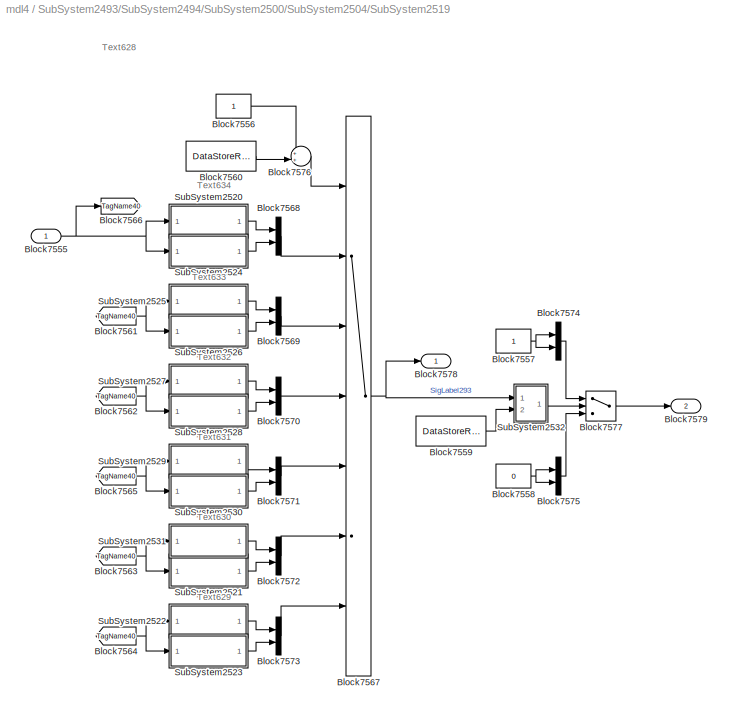
BLOCK [SubSystem] SubSystem2493/SubSystem2494/SubSystem2500/SubSystem2504/SubSystem2519
  FunctionWithSeparateData = off
  MaskHideContents = off
  MinAlgLoopOccurrences = off
  Opaque = off
  Ports = [1, 2]
  PropExecContextOutsideSubsystem = off
  RTWSystemCode = Auto
  RequestExecContextInheritance = off
  SID = 433
  TreatAsAtomicUnit = on
BLOCK [Inport] SubSystem2493/SubSystem2494/SubSystem2500/SubSystem2504/SubSystem2519/Block7555
  IconDisplay = Port number
  SID = 434
BLOCK [Constant] SubSystem2493/SubSystem2494/SubSystem2500/SubSystem2504/SubSystem2519/Block7556
  OutDataTypeStr = double
  SID = 435
  SampleTime = -1
  UserData = DataTag46
  UserDataPersistent = on
BLOCK [Constant] SubSystem2493/SubSystem2494/SubSystem2500/SubSystem2504/SubSystem2519/Block7557
  OutDataTypeStr = double
  SID = 436
  SampleTime = -1
  UserData = DataTag47
  UserDataPersistent = on
BLOCK [Constant] SubSystem2493/SubSystem2494/SubSystem2500/SubSystem2504/SubSystem2519/Block7558
  OutDataTypeStr = double
  SID = 437
  SampleTime = -1
  UserData = DataTag48
  UserDataPersistent = on
  Value = 0
BLOCK [DataStoreRead] SubSystem2493/SubSystem2494/SubSystem2500/SubSystem2504/SubSystem2519/Block7559
  DataStoreName = DSM273
  SID = 438
BLOCK [DataStoreRead] SubSystem2493/SubSystem2494/SubSystem2500/SubSystem2504/SubSystem2519/Block7560
  DataStoreName = DSM296
  SID = 439
BLOCK [From] SubSystem2493/SubSystem2494/SubSystem2500/SubSystem2504/SubSystem2519/Block7561
  CloseFcn = tagdialog Close
  GotoTag = TagName40
  SID = 440
BLOCK [From] SubSystem2493/SubSystem2494/SubSystem2500/SubSystem2504/SubSystem2519/Block7562
  CloseFcn = tagdialog Close
  GotoTag = TagName40
  SID = 441
BLOCK [From] SubSystem2493/SubSystem2494/SubSystem2500/SubSystem2504/SubSystem2519/Block7563
  CloseFcn = tagdialog Close
  GotoTag = TagName40
  SID = 442
BLOCK [From] SubSystem2493/SubSystem2494/SubSystem2500/SubSystem2504/SubSystem2519/Block7564
  CloseFcn = tagdialog Close
  GotoTag = TagName40
  SID = 443
BLOCK [From] SubSystem2493/SubSystem2494/SubSystem2500/SubSystem2504/SubSystem2519/Block7565
  CloseFcn = tagdialog Close
  GotoTag = TagName40
  SID = 444
BLOCK [Goto] SubSystem2493/SubSystem2494/SubSystem2500/SubSystem2504/SubSystem2519/Block7566
  GotoTag = TagName40
  SID = 445
  TagVisibility = local
BLOCK [MultiPortSwitch] SubSystem2493/SubSystem2494/SubSystem2500/SubSystem2504/SubSystem2519/Block7567
  Inputs = 6
  Ports = [7, 1]
  RndMeth = Zero
  SID = 446
  zeroidx = off
BLOCK [Mux] SubSystem2493/SubSystem2494/SubSystem2500/SubSystem2504/SubSystem2519/Block7568
  DisplayOption = bar
  Inputs = 2
  Ports = [2, 1]
  SID = 447
BLOCK [Mux] SubSystem2493/SubSystem2494/SubSystem2500/SubSystem2504/SubSystem2519/Block7569
  DisplayOption = bar
  Inputs = 2
  Ports = [2, 1]
  SID = 448
BLOCK [Mux] SubSystem2493/SubSystem2494/SubSystem2500/SubSystem2504/SubSystem2519/Block7570
  DisplayOption = bar
  Inputs = 2
  Ports = [2, 1]
  SID = 449
BLOCK [Mux] SubSystem2493/SubSystem2494/SubSystem2500/SubSystem2504/SubSystem2519/Block7571
  DisplayOption = bar
  Inputs = 2
  Ports = [2, 1]
  SID = 450
BLOCK [Mux] SubSystem2493/SubSystem2494/SubSystem2500/SubSystem2504/SubSystem2519/Block7572
  DisplayOption = bar
  Inputs = 2
  Ports = [2, 1]
  SID = 451
BLOCK [Mux] SubSystem2493/SubSystem2494/SubSystem2500/SubSystem2504/SubSystem2519/Block7573
  DisplayOption = bar
  Inputs = 2
  Ports = [2, 1]
  SID = 452
BLOCK [Mux] SubSystem2493/SubSystem2494/SubSystem2500/SubSystem2504/SubSystem2519/Block7574
  DisplayOption = bar
  Inputs = 2
  Ports = [2, 1]
  SID = 453
BLOCK [Mux] SubSystem2493/SubSystem2494/SubSystem2500/SubSystem2504/SubSystem2519/Block7575
  DisplayOption = bar
  Inputs = 2
  Ports = [2, 1]
  SID = 454
BLOCK [Sum] SubSystem2493/SubSystem2494/SubSystem2500/SubSystem2504/SubSystem2519/Block7576
  IconShape = round
  Inputs = ++|
  OutDataTypeStr = double
  Ports = [2, 1]
  RndMeth = Zero
  SID = 455
BLOCK [Switch] SubSystem2493/SubSystem2494/SubSystem2500/SubSystem2504/SubSystem2519/Block7577
  RndMeth = Zero
  SID = 456
  Threshold = 0.5
BLOCK [Outport] SubSystem2493/SubSystem2494/SubSystem2500/SubSystem2504/SubSystem2519/Block7578
  IconDisplay = Port number
  SID = 524
BLOCK [Outport] SubSystem2493/SubSystem2494/SubSystem2500/SubSystem2504/SubSystem2519/Block7579
  IconDisplay = Port number
  Port = 2
  SID = 525
BLOCK [SubSystem] SubSystem2493/SubSystem2494/SubSystem2500/SubSystem2504/SubSystem2519/SubSystem2520
  FunctionWithSeparateData = off
  MaskCallbackString = ||||||||||||||||||||
  MaskDescription = ±êÍAutoC<copyright redacted>
  MaskDisplay = disp('ATC.DSRVEC')
  MaskEnableString = off,on,on,on,on,on,on,on,on,on,on,on,on,on,on,on,on,on,on,on,on
  MaskHelp = web(ui_blockhelpmng(gcb));
  MaskHideContents = off
  MaskIconFrame = on
  MaskIconOpaque = on
  MaskIconRotate = none
  MaskIconUnits = autoscale
  MaskPortRotate = default
  MaskPromptString = Version|r0|r1|r2|r3|r4|r5|r6|r7|r8|r9|c0|c1|c2|c3|c4|c5|c6|c7|c8|c9
  MaskStyleString = edit,edit,edit,edit,edit,edit,edit,edit,edit,edit,edit,edit,edit,edit,edit,edit,edit,edit,edit,edit,edit
  MaskToolTipString = on,on,on,on,on,on,on,on,on,on,on,on,on,on,on,on,on,on,on,on,on
  MaskTunableValueString = off,on,on,on,on,on,on,on,on,on,on,on,on,on,on,on,on,on,on,on,on
  MaskType = ***ATC.DSRVEC***
  MaskValueString = 1.01.A|DSM114|-1||||||||||||||||||
  MaskVariables = bd_version=&1;r0=&2;r1=&3;r2=&4;r3=&5;r4=&6;r5=&7;r6=&8;r7=&9;r8=&10;r9=&11;c0=&12;c1=&13;c2=&14;c3=&15;c4=&16;c5=&17;c6=&18;c7=&19;c8=&20;c9=&21;
  MaskVisibilityString = off,off,off,off,off,off,off,off,off,off,off,off,off,off,off,off,off,off,off,off,off
  MinAlgLoopOccurrences = off
  Opaque = off
  OpenFcn = warndlg('ÏXÖ~!');
  Ports = [1, 1]
  PropExecContextOutsideSubsystem = off
  RTWSystemCode = Auto
  RequestExecContextInheritance = off
  SID = 457
  TreatAsAtomicUnit = on
  UserData = DataTag49
  UserDataPersistent = on
BLOCK [DataStoreRead] SubSystem2493/SubSystem2494/SubSystem2500/SubSystem2504/SubSystem2519/SubSystem2520/Inside_DSR
  DataStoreName = DSM114
  SID = 459
BLOCK [Outport] SubSystem2493/SubSystem2494/SubSystem2500/SubSystem2504/SubSystem2519/SubSystem2520/Output
  IconDisplay = Port number
  SID = 461
BLOCK [Selector] SubSystem2493/SubSystem2494/SubSystem2500/SubSystem2504/SubSystem2519/SubSystem2520/Selector
  IndexOptions = Index vector (port)
  Indices = [1 3]
  OutputSizes = 1
  Ports = [2, 1]
  SID = 460
BLOCK [Inport] SubSystem2493/SubSystem2494/SubSystem2500/SubSystem2504/SubSystem2519/SubSystem2520/element
  IconDisplay = Port number
  SID = 458
BLOCK [SubSystem] SubSystem2493/SubSystem2494/SubSystem2500/SubSystem2504/SubSystem2519/SubSystem2521
  FunctionWithSeparateData = off
  MaskCallbackString = ||||||||||||||||||||
  MaskDescription = ±êÍAutoC<copyright redacted>
  MaskDisplay = disp('ATC.DSRVEC')
  MaskEnableString = off,on,on,on,on,on,on,on,on,on,on,on,on,on,on,on,on,on,on,on,on
  MaskHelp = web(ui_blockhelpmng(gcb));
  MaskHideContents = off
  MaskIconFrame = on
  MaskIconOpaque = on
  MaskIconRotate = none
  MaskIconUnits = autoscale
  MaskPortRotate = default
  MaskPromptString = Version|r0|r1|r2|r3|r4|r5|r6|r7|r8|r9|c0|c1|c2|c3|c4|c5|c6|c7|c8|c9
  MaskStyleString = edit,edit,edit,edit,edit,edit,edit,edit,edit,edit,edit,edit,edit,edit,edit,edit,edit,edit,edit,edit,edit
  MaskToolTipString = on,on,on,on,on,on,on,on,on,on,on,on,on,on,on,on,on,on,on,on,on
  MaskTunableValueString = off,on,on,on,on,on,on,on,on,on,on,on,on,on,on,on,on,on,on,on,on
  MaskType = ***ATC.DSRVEC***
  MaskValueString = 1.01.A|DSM105|-1||||||||||||||||||
  MaskVariables = bd_version=&1;r0=&2;r1=&3;r2=&4;r3=&5;r4=&6;r5=&7;r6=&8;r7=&9;r8=&10;r9=&11;c0=&12;c1=&13;c2=&14;c3=&15;c4=&16;c5=&17;c6=&18;c7=&19;c8=&20;c9=&21;
  MaskVisibilityString = off,off,off,off,off,off,off,off,off,off,off,off,off,off,off,off,off,off,off,off,off
  MinAlgLoopOccurrences = off
  Opaque = off
  OpenFcn = warndlg('ÏXÖ~!');
  Ports = [1, 1]
  PropExecContextOutsideSubsystem = off
  RTWSystemCode = Auto
  RequestExecContextInheritance = off
  SID = 462
  TreatAsAtomicUnit = on
  UserData = DataTag50
  UserDataPersistent = on
BLOCK [DataStoreRead] SubSystem2493/SubSystem2494/SubSystem2500/SubSystem2504/SubSystem2519/SubSystem2521/Inside_DSR
  DataStoreName = DSM105
  SID = 464
BLOCK [Outport] SubSystem2493/SubSystem2494/SubSystem2500/SubSystem2504/SubSystem2519/SubSystem2521/Output
  IconDisplay = Port number
  SID = 466
BLOCK [Selector] SubSystem2493/SubSystem2494/SubSystem2500/SubSystem2504/SubSystem2519/SubSystem2521/Selector
  IndexOptions = Index vector (port)
  Indices = [1 3]
  OutputSizes = 1
  Ports = [2, 1]
  SID = 465
BLOCK [Inport] SubSystem2493/SubSystem2494/SubSystem2500/SubSystem2504/SubSystem2519/SubSystem2521/element
  IconDisplay = Port number
  SID = 463
BLOCK [SubSystem] SubSystem2493/SubSystem2494/SubSystem2500/SubSystem2504/SubSystem2519/SubSystem2522
  FunctionWithSeparateData = off
  MaskCallbackString = ||||||||||||||||||||
  MaskDescription = ±êÍAutoC<copyright redacted>
  MaskDisplay = disp('ATC.DSRVEC')
  MaskEnableString = off,on,on,on,on,on,on,on,on,on,on,on,on,on,on,on,on,on,on,on,on
  MaskHelp = web(ui_blockhelpmng(gcb));
  MaskHideContents = off
  MaskIconFrame = on
  MaskIconOpaque = on
  MaskIconRotate = none
  MaskIconUnits = autoscale
  MaskPortRotate = default
  MaskPromptString = Version|r0|r1|r2|r3|r4|r5|r6|r7|r8|r9|c0|c1|c2|c3|c4|c5|c6|c7|c8|c9
  MaskStyleString = edit,edit,edit,edit,edit,edit,edit,edit,edit,edit,edit,edit,edit,edit,edit,edit,edit,edit,edit,edit,edit
  MaskToolTipString = on,on,on,on,on,on,on,on,on,on,on,on,on,on,on,on,on,on,on,on,on
  MaskTunableValueString = off,on,on,on,on,on,on,on,on,on,on,on,on,on,on,on,on,on,on,on,on
  MaskType = ***ATC.DSRVEC***
  MaskValueString = 1.01.A|DSM111|-1||||||||||||||||||
  MaskVariables = bd_version=&1;r0=&2;r1=&3;r2=&4;r3=&5;r4=&6;r5=&7;r6=&8;r7=&9;r8=&10;r9=&11;c0=&12;c1=&13;c2=&14;c3=&15;c4=&16;c5=&17;c6=&18;c7=&19;c8=&20;c9=&21;
  MaskVisibilityString = off,off,off,off,off,off,off,off,off,off,off,off,off,off,off,off,off,off,off,off,off
  MinAlgLoopOccurrences = off
  Opaque = off
  OpenFcn = warndlg('ÏXÖ~!');
  Ports = [1, 1]
  PropExecContextOutsideSubsystem = off
  RTWSystemCode = Auto
  RequestExecContextInheritance = off
  SID = 467
  TreatAsAtomicUnit = on
  UserData = DataTag51
  UserDataPersistent = on
BLOCK [DataStoreRead] SubSystem2493/SubSystem2494/SubSystem2500/SubSystem2504/SubSystem2519/SubSystem2522/Inside_DSR
  DataStoreName = DSM111
  SID = 469
BLOCK [Outport] SubSystem2493/SubSystem2494/SubSystem2500/SubSystem2504/SubSystem2519/SubSystem2522/Output
  IconDisplay = Port number
  SID = 471
BLOCK [Selector] SubSystem2493/SubSystem2494/SubSystem2500/SubSystem2504/SubSystem2519/SubSystem2522/Selector
  IndexOptions = Index vector (port)
  Indices = [1 3]
  OutputSizes = 1
  Ports = [2, 1]
  SID = 470
BLOCK [Inport] SubSystem2493/SubSystem2494/SubSystem2500/SubSystem2504/SubSystem2519/SubSystem2522/element
  IconDisplay = Port number
  SID = 468
BLOCK [SubSystem] SubSystem2493/SubSystem2494/SubSystem2500/SubSystem2504/SubSystem2519/SubSystem2523
  FunctionWithSeparateData = off
  MaskCallbackString = ||||||||||||||||||||
  MaskDescription = ±êÍAutoC<copyright redacted>
  MaskDisplay = disp('ATC.DSRVEC')
  MaskEnableString = off,on,on,on,on,on,on,on,on,on,on,on,on,on,on,on,on,on,on,on,on
  MaskHelp = web(ui_blockhelpmng(gcb));
  MaskHideContents = off
  MaskIconFrame = on
  MaskIconOpaque = on
  MaskIconRotate = none
  MaskIconUnits = autoscale
  MaskPortRotate = default
  MaskPromptString = Version|r0|r1|r2|r3|r4|r5|r6|r7|r8|r9|c0|c1|c2|c3|c4|c5|c6|c7|c8|c9
  MaskStyleString = edit,edit,edit,edit,edit,edit,edit,edit,edit,edit,edit,edit,edit,edit,edit,edit,edit,edit,edit,edit,edit
  MaskToolTipString = on,on,on,on,on,on,on,on,on,on,on,on,on,on,on,on,on,on,on,on,on
  MaskTunableValueString = off,on,on,on,on,on,on,on,on,on,on,on,on,on,on,on,on,on,on,on,on
  MaskType = ***ATC.DSRVEC***
  MaskValueString = 1.01.A|DSM113|-1||||||||||||||||||
  MaskVariables = bd_version=&1;r0=&2;r1=&3;r2=&4;r3=&5;r4=&6;r5=&7;r6=&8;r7=&9;r8=&10;r9=&11;c0=&12;c1=&13;c2=&14;c3=&15;c4=&16;c5=&17;c6=&18;c7=&19;c8=&20;c9=&21;
  MaskVisibilityString = off,off,off,off,off,off,off,off,off,off,off,off,off,off,off,off,off,off,off,off,off
  MinAlgLoopOccurrences = off
  Opaque = off
  OpenFcn = warndlg('ÏXÖ~!');
  Ports = [1, 1]
  PropExecContextOutsideSubsystem = off
  RTWSystemCode = Auto
  RequestExecContextInheritance = off
  SID = 472
  TreatAsAtomicUnit = on
  UserData = DataTag52
  UserDataPersistent = on
BLOCK [DataStoreRead] SubSystem2493/SubSystem2494/SubSystem2500/SubSystem2504/SubSystem2519/SubSystem2523/Inside_DSR
  DataStoreName = DSM113
  SID = 474
BLOCK [Outport] SubSystem2493/SubSystem2494/SubSystem2500/SubSystem2504/SubSystem2519/SubSystem2523/Output
  IconDisplay = Port number
  SID = 476
BLOCK [Selector] SubSystem2493/SubSystem2494/SubSystem2500/SubSystem2504/SubSystem2519/SubSystem2523/Selector
  IndexOptions = Index vector (port)
  Indices = [1 3]
  OutputSizes = 1
  Ports = [2, 1]
  SID = 475
BLOCK [Inport] SubSystem2493/SubSystem2494/SubSystem2500/SubSystem2504/SubSystem2519/SubSystem2523/element
  IconDisplay = Port number
  SID = 473
BLOCK [SubSystem] SubSystem2493/SubSystem2494/SubSystem2500/SubSystem2504/SubSystem2519/SubSystem2524
  FunctionWithSeparateData = off
  MaskCallbackString = ||||||||||||||||||||
  MaskDescription = ±êÍAutoC<copyright redacted>
  MaskDisplay = disp('ATC.DSRVEC')
  MaskEnableString = off,on,on,on,on,on,on,on,on,on,on,on,on,on,on,on,on,on,on,on,on
  MaskHelp = web(ui_blockhelpmng(gcb));
  MaskHideContents = off
  MaskIconFrame = on
  MaskIconOpaque = on
  MaskIconRotate = none
  MaskIconUnits = autoscale
  MaskPortRotate = default
  MaskPromptString = Version|r0|r1|r2|r3|r4|r5|r6|r7|r8|r9|c0|c1|c2|c3|c4|c5|c6|c7|c8|c9
  MaskStyleString = edit,edit,edit,edit,edit,edit,edit,edit,edit,edit,edit,edit,edit,edit,edit,edit,edit,edit,edit,edit,edit
  MaskToolTipString = on,on,on,on,on,on,on,on,on,on,on,on,on,on,on,on,on,on,on,on,on
  MaskTunableValueString = off,on,on,on,on,on,on,on,on,on,on,on,on,on,on,on,on,on,on,on,on
  MaskType = ***ATC.DSRVEC***
  MaskValueString = 1.01.A|DSM118|-1||||||||||||||||||
  MaskVariables = bd_version=&1;r0=&2;r1=&3;r2=&4;r3=&5;r4=&6;r5=&7;r6=&8;r7=&9;r8=&10;r9=&11;c0=&12;c1=&13;c2=&14;c3=&15;c4=&16;c5=&17;c6=&18;c7=&19;c8=&20;c9=&21;
  MaskVisibilityString = off,off,off,off,off,off,off,off,off,off,off,off,off,off,off,off,off,off,off,off,off
  MinAlgLoopOccurrences = off
  Opaque = off
  OpenFcn = warndlg('ÏXÖ~!');
  Ports = [1, 1]
  PropExecContextOutsideSubsystem = off
  RTWSystemCode = Auto
  RequestExecContextInheritance = off
  SID = 477
  TreatAsAtomicUnit = on
  UserData = DataTag53
  UserDataPersistent = on
BLOCK [DataStoreRead] SubSystem2493/SubSystem2494/SubSystem2500/SubSystem2504/SubSystem2519/SubSystem2524/Inside_DSR
  DataStoreName = DSM118
  SID = 479
BLOCK [Outport] SubSystem2493/SubSystem2494/SubSystem2500/SubSystem2504/SubSystem2519/SubSystem2524/Output
  IconDisplay = Port number
  SID = 481
BLOCK [Selector] SubSystem2493/SubSystem2494/SubSystem2500/SubSystem2504/SubSystem2519/SubSystem2524/Selector
  IndexOptions = Index vector (port)
  Indices = [1 3]
  OutputSizes = 1
  Ports = [2, 1]
  SID = 480
BLOCK [Inport] SubSystem2493/SubSystem2494/SubSystem2500/SubSystem2504/SubSystem2519/SubSystem2524/element
  IconDisplay = Port number
  SID = 478
BLOCK [SubSystem] SubSystem2493/SubSystem2494/SubSystem2500/SubSystem2504/SubSystem2519/SubSystem2525
  FunctionWithSeparateData = off
  MaskCallbackString = ||||||||||||||||||||
  MaskDescription = ±êÍAutoC<copyright redacted>
  MaskDisplay = disp('ATC.DSRVEC')
  MaskEnableString = off,on,on,on,on,on,on,on,on,on,on,on,on,on,on,on,on,on,on,on,on
  MaskHelp = web(ui_blockhelpmng(gcb));
  MaskHideContents = off
  MaskIconFrame = on
  MaskIconOpaque = on
  MaskIconRotate = none
  MaskIconUnits = autoscale
  MaskPortRotate = default
  MaskPromptString = Version|r0|r1|r2|r3|r4|r5|r6|r7|r8|r9|c0|c1|c2|c3|c4|c5|c6|c7|c8|c9
  MaskStyleString = edit,edit,edit,edit,edit,edit,edit,edit,edit,edit,edit,edit,edit,edit,edit,edit,edit,edit,edit,edit,edit
  MaskToolTipString = on,on,on,on,on,on,on,on,on,on,on,on,on,on,on,on,on,on,on,on,on
  MaskTunableValueString = off,on,on,on,on,on,on,on,on,on,on,on,on,on,on,on,on,on,on,on,on
  MaskType = ***ATC.DSRVEC***
  MaskValueString = 1.01.A|DSM117|-1||||||||||||||||||
  MaskVariables = bd_version=&1;r0=&2;r1=&3;r2=&4;r3=&5;r4=&6;r5=&7;r6=&8;r7=&9;r8=&10;r9=&11;c0=&12;c1=&13;c2=&14;c3=&15;c4=&16;c5=&17;c6=&18;c7=&19;c8=&20;c9=&21;
  MaskVisibilityString = off,off,off,off,off,off,off,off,off,off,off,off,off,off,off,off,off,off,off,off,off
  MinAlgLoopOccurrences = off
  Opaque = off
  OpenFcn = warndlg('ÏXÖ~!');
  Ports = [1, 1]
  PropExecContextOutsideSubsystem = off
  RTWSystemCode = Auto
  RequestExecContextInheritance = off
  SID = 482
  TreatAsAtomicUnit = on
  UserData = DataTag54
  UserDataPersistent = on
BLOCK [DataStoreRead] SubSystem2493/SubSystem2494/SubSystem2500/SubSystem2504/SubSystem2519/SubSystem2525/Inside_DSR
  DataStoreName = DSM117
  SID = 484
BLOCK [Outport] SubSystem2493/SubSystem2494/SubSystem2500/SubSystem2504/SubSystem2519/SubSystem2525/Output
  IconDisplay = Port number
  SID = 486
BLOCK [Selector] SubSystem2493/SubSystem2494/SubSystem2500/SubSystem2504/SubSystem2519/SubSystem2525/Selector
  IndexOptions = Index vector (port)
  Indices = [1 3]
  OutputSizes = 1
  Ports = [2, 1]
  SID = 485
BLOCK [Inport] SubSystem2493/SubSystem2494/SubSystem2500/SubSystem2504/SubSystem2519/SubSystem2525/element
  IconDisplay = Port number
  SID = 483
BLOCK [SubSystem] SubSystem2493/SubSystem2494/SubSystem2500/SubSystem2504/SubSystem2519/SubSystem2526
  FunctionWithSeparateData = off
  MaskCallbackString = ||||||||||||||||||||
  MaskDescription = ±êÍAutoC<copyright redacted>
  MaskDisplay = disp('ATC.DSRVEC')
  MaskEnableString = off,on,on,on,on,on,on,on,on,on,on,on,on,on,on,on,on,on,on,on,on
  MaskHelp = web(ui_blockhelpmng(gcb));
  MaskHideContents = off
  MaskIconFrame = on
  MaskIconOpaque = on
  MaskIconRotate = none
  MaskIconUnits = autoscale
  MaskPortRotate = default
  MaskPromptString = Version|r0|r1|r2|r3|r4|r5|r6|r7|r8|r9|c0|c1|c2|c3|c4|c5|c6|c7|c8|c9
  MaskStyleString = edit,edit,edit,edit,edit,edit,edit,edit,edit,edit,edit,edit,edit,edit,edit,edit,edit,edit,edit,edit,edit
  MaskToolTipString = on,on,on,on,on,on,on,on,on,on,on,on,on,on,on,on,on,on,on,on,on
  MaskTunableValueString = off,on,on,on,on,on,on,on,on,on,on,on,on,on,on,on,on,on,on,on,on
  MaskType = ***ATC.DSRVEC***
  MaskValueString = 1.01.A|DSM121|-1||||||||||||||||||
  MaskVariables = bd_version=&1;r0=&2;r1=&3;r2=&4;r3=&5;r4=&6;r5=&7;r6=&8;r7=&9;r8=&10;r9=&11;c0=&12;c1=&13;c2=&14;c3=&15;c4=&16;c5=&17;c6=&18;c7=&19;c8=&20;c9=&21;
  MaskVisibilityString = off,off,off,off,off,off,off,off,off,off,off,off,off,off,off,off,off,off,off,off,off
  MinAlgLoopOccurrences = off
  Opaque = off
  OpenFcn = warndlg('ÏXÖ~!');
  Ports = [1, 1]
  PropExecContextOutsideSubsystem = off
  RTWSystemCode = Auto
  RequestExecContextInheritance = off
  SID = 487
  TreatAsAtomicUnit = on
  UserData = DataTag55
  UserDataPersistent = on
BLOCK [DataStoreRead] SubSystem2493/SubSystem2494/SubSystem2500/SubSystem2504/SubSystem2519/SubSystem2526/Inside_DSR
  DataStoreName = DSM121
  SID = 489
BLOCK [Outport] SubSystem2493/SubSystem2494/SubSystem2500/SubSystem2504/SubSystem2519/SubSystem2526/Output
  IconDisplay = Port number
  SID = 491
BLOCK [Selector] SubSystem2493/SubSystem2494/SubSystem2500/SubSystem2504/SubSystem2519/SubSystem2526/Selector
  IndexOptions = Index vector (port)
  Indices = [1 3]
  OutputSizes = 1
  Ports = [2, 1]
  SID = 490
BLOCK [Inport] SubSystem2493/SubSystem2494/SubSystem2500/SubSystem2504/SubSystem2519/SubSystem2526/element
  IconDisplay = Port number
  SID = 488
BLOCK [SubSystem] SubSystem2493/SubSystem2494/SubSystem2500/SubSystem2504/SubSystem2519/SubSystem2527
  FunctionWithSeparateData = off
  MaskCallbackString = ||||||||||||||||||||
  MaskDescription = ±êÍAutoC<copyright redacted>
  MaskDisplay = disp('ATC.DSRVEC')
  MaskEnableString = off,on,on,on,on,on,on,on,on,on,on,on,on,on,on,on,on,on,on,on,on
  MaskHelp = web(ui_blockhelpmng(gcb));
  MaskHideContents = off
  MaskIconFrame = on
  MaskIconOpaque = on
  MaskIconRotate = none
  MaskIconUnits = autoscale
  MaskPortRotate = default
  MaskPromptString = Version|r0|r1|r2|r3|r4|r5|r6|r7|r8|r9|c0|c1|c2|c3|c4|c5|c6|c7|c8|c9
  MaskStyleString = edit,edit,edit,edit,edit,edit,edit,edit,edit,edit,edit,edit,edit,edit,edit,edit,edit,edit,edit,edit,edit
  MaskToolTipString = on,on,on,on,on,on,on,on,on,on,on,on,on,on,on,on,on,on,on,on,on
  MaskTunableValueString = off,on,on,on,on,on,on,on,on,on,on,on,on,on,on,on,on,on,on,on,on
  MaskType = ***ATC.DSRVEC***
  MaskValueString = 1.01.A|DSM124|-1||||||||||||||||||
  MaskVariables = bd_version=&1;r0=&2;r1=&3;r2=&4;r3=&5;r4=&6;r5=&7;r6=&8;r7=&9;r8=&10;r9=&11;c0=&12;c1=&13;c2=&14;c3=&15;c4=&16;c5=&17;c6=&18;c7=&19;c8=&20;c9=&21;
  MaskVisibilityString = off,off,off,off,off,off,off,off,off,off,off,off,off,off,off,off,off,off,off,off,off
  MinAlgLoopOccurrences = off
  Opaque = off
  OpenFcn = warndlg('ÏXÖ~!');
  Ports = [1, 1]
  PropExecContextOutsideSubsystem = off
  RTWSystemCode = Auto
  RequestExecContextInheritance = off
  SID = 492
  TreatAsAtomicUnit = on
  UserData = DataTag56
  UserDataPersistent = on
BLOCK [DataStoreRead] SubSystem2493/SubSystem2494/SubSystem2500/SubSystem2504/SubSystem2519/SubSystem2527/Inside_DSR
  DataStoreName = DSM124
  SID = 494
BLOCK [Outport] SubSystem2493/SubSystem2494/SubSystem2500/SubSystem2504/SubSystem2519/SubSystem2527/Output
  IconDisplay = Port number
  SID = 496
BLOCK [Selector] SubSystem2493/SubSystem2494/SubSystem2500/SubSystem2504/SubSystem2519/SubSystem2527/Selector
  IndexOptions = Index vector (port)
  Indices = [1 3]
  OutputSizes = 1
  Ports = [2, 1]
  SID = 495
BLOCK [Inport] SubSystem2493/SubSystem2494/SubSystem2500/SubSystem2504/SubSystem2519/SubSystem2527/element
  IconDisplay = Port number
  SID = 493
BLOCK [SubSystem] SubSystem2493/SubSystem2494/SubSystem2500/SubSystem2504/SubSystem2519/SubSystem2528
  FunctionWithSeparateData = off
  MaskCallbackString = ||||||||||||||||||||
  MaskDescription = ±êÍAutoC<copyright redacted>
  MaskDisplay = disp('ATC.DSRVEC')
  MaskEnableString = off,on,on,on,on,on,on,on,on,on,on,on,on,on,on,on,on,on,on,on,on
  MaskHelp = web(ui_blockhelpmng(gcb));
  MaskHideContents = off
  MaskIconFrame = on
  MaskIconOpaque = on
  MaskIconRotate = none
  MaskIconUnits = autoscale
  MaskPortRotate = default
  MaskPromptString = Version|r0|r1|r2|r3|r4|r5|r6|r7|r8|r9|c0|c1|c2|c3|c4|c5|c6|c7|c8|c9
  MaskStyleString = edit,edit,edit,edit,edit,edit,edit,edit,edit,edit,edit,edit,edit,edit,edit,edit,edit,edit,edit,edit,edit
  MaskToolTipString = on,on,on,on,on,on,on,on,on,on,on,on,on,on,on,on,on,on,on,on,on
  MaskTunableValueString = off,on,on,on,on,on,on,on,on,on,on,on,on,on,on,on,on,on,on,on,on
  MaskType = ***ATC.DSRVEC***
  MaskValueString = 1.01.A|DSM127|-1||||||||||||||||||
  MaskVariables = bd_version=&1;r0=&2;r1=&3;r2=&4;r3=&5;r4=&6;r5=&7;r6=&8;r7=&9;r8=&10;r9=&11;c0=&12;c1=&13;c2=&14;c3=&15;c4=&16;c5=&17;c6=&18;c7=&19;c8=&20;c9=&21;
  MaskVisibilityString = off,off,off,off,off,off,off,off,off,off,off,off,off,off,off,off,off,off,off,off,off
  MinAlgLoopOccurrences = off
  Opaque = off
  OpenFcn = warndlg('ÏXÖ~!');
  Ports = [1, 1]
  PropExecContextOutsideSubsystem = off
  RTWSystemCode = Auto
  RequestExecContextInheritance = off
  SID = 497
  TreatAsAtomicUnit = on
  UserData = DataTag57
  UserDataPersistent = on
BLOCK [DataStoreRead] SubSystem2493/SubSystem2494/SubSystem2500/SubSystem2504/SubSystem2519/SubSystem2528/Inside_DSR
  DataStoreName = DSM127
  SID = 499
BLOCK [Outport] SubSystem2493/SubSystem2494/SubSystem2500/SubSystem2504/SubSystem2519/SubSystem2528/Output
  IconDisplay = Port number
  SID = 501
BLOCK [Selector] SubSystem2493/SubSystem2494/SubSystem2500/SubSystem2504/SubSystem2519/SubSystem2528/Selector
  IndexOptions = Index vector (port)
  Indices = [1 3]
  OutputSizes = 1
  Ports = [2, 1]
  SID = 500
BLOCK [Inport] SubSystem2493/SubSystem2494/SubSystem2500/SubSystem2504/SubSystem2519/SubSystem2528/element
  IconDisplay = Port number
  SID = 498
BLOCK [SubSystem] SubSystem2493/SubSystem2494/SubSystem2500/SubSystem2504/SubSystem2519/SubSystem2529
  FunctionWithSeparateData = off
  MaskCallbackString = ||||||||||||||||||||
  MaskDescription = ±êÍAutoC<copyright redacted>
  MaskDisplay = disp('ATC.DSRVEC')
  MaskEnableString = off,on,on,on,on,on,on,on,on,on,on,on,on,on,on,on,on,on,on,on,on
  MaskHelp = web(ui_blockhelpmng(gcb));
  MaskHideContents = off
  MaskIconFrame = on
  MaskIconOpaque = on
  MaskIconRotate = none
  MaskIconUnits = autoscale
  MaskPortRotate = default
  MaskPromptString = Version|r0|r1|r2|r3|r4|r5|r6|r7|r8|r9|c0|c1|c2|c3|c4|c5|c6|c7|c8|c9
  MaskStyleString = edit,edit,edit,edit,edit,edit,edit,edit,edit,edit,edit,edit,edit,edit,edit,edit,edit,edit,edit,edit,edit
  MaskToolTipString = on,on,on,on,on,on,on,on,on,on,on,on,on,on,on,on,on,on,on,on,on
  MaskTunableValueString = off,on,on,on,on,on,on,on,on,on,on,on,on,on,on,on,on,on,on,on,on
  MaskType = ***ATC.DSRVEC***
  MaskValueString = 1.01.A|DSM107|-1||||||||||||||||||
  MaskVariables = bd_version=&1;r0=&2;r1=&3;r2=&4;r3=&5;r4=&6;r5=&7;r6=&8;r7=&9;r8=&10;r9=&11;c0=&12;c1=&13;c2=&14;c3=&15;c4=&16;c5=&17;c6=&18;c7=&19;c8=&20;c9=&21;
  MaskVisibilityString = off,off,off,off,off,off,off,off,off,off,off,off,off,off,off,off,off,off,off,off,off
  MinAlgLoopOccurrences = off
  Opaque = off
  OpenFcn = warndlg('ÏXÖ~!');
  Ports = [1, 1]
  PropExecContextOutsideSubsystem = off
  RTWSystemCode = Auto
  RequestExecContextInheritance = off
  SID = 502
  TreatAsAtomicUnit = on
  UserData = DataTag58
  UserDataPersistent = on
BLOCK [DataStoreRead] SubSystem2493/SubSystem2494/SubSystem2500/SubSystem2504/SubSystem2519/SubSystem2529/Inside_DSR
  DataStoreName = DSM107
  SID = 504
BLOCK [Outport] SubSystem2493/SubSystem2494/SubSystem2500/SubSystem2504/SubSystem2519/SubSystem2529/Output
  IconDisplay = Port number
  SID = 506
BLOCK [Selector] SubSystem2493/SubSystem2494/SubSystem2500/SubSystem2504/SubSystem2519/SubSystem2529/Selector
  IndexOptions = Index vector (port)
  Indices = [1 3]
  OutputSizes = 1
  Ports = [2, 1]
  SID = 505
BLOCK [Inport] SubSystem2493/SubSystem2494/SubSystem2500/SubSystem2504/SubSystem2519/SubSystem2529/element
  IconDisplay = Port number
  SID = 503
BLOCK [SubSystem] SubSystem2493/SubSystem2494/SubSystem2500/SubSystem2504/SubSystem2519/SubSystem2530
  FunctionWithSeparateData = off
  MaskCallbackString = ||||||||||||||||||||
  MaskDescription = ±êÍAutoC<copyright redacted>
  MaskDisplay = disp('ATC.DSRVEC')
  MaskEnableString = off,on,on,on,on,on,on,on,on,on,on,on,on,on,on,on,on,on,on,on,on
  MaskHelp = web(ui_blockhelpmng(gcb));
  MaskHideContents = off
  MaskIconFrame = on
  MaskIconOpaque = on
  MaskIconRotate = none
  MaskIconUnits = autoscale
  MaskPortRotate = default
  MaskPromptString = Version|r0|r1|r2|r3|r4|r5|r6|r7|r8|r9|c0|c1|c2|c3|c4|c5|c6|c7|c8|c9
  MaskStyleString = edit,edit,edit,edit,edit,edit,edit,edit,edit,edit,edit,edit,edit,edit,edit,edit,edit,edit,edit,edit,edit
  MaskToolTipString = on,on,on,on,on,on,on,on,on,on,on,on,on,on,on,on,on,on,on,on,on
  MaskTunableValueString = off,on,on,on,on,on,on,on,on,on,on,on,on,on,on,on,on,on,on,on,on
  MaskType = ***ATC.DSRVEC***
  MaskValueString = 1.01.A|DSM109|-1||||||||||||||||||
  MaskVariables = bd_version=&1;r0=&2;r1=&3;r2=&4;r3=&5;r4=&6;r5=&7;r6=&8;r7=&9;r8=&10;r9=&11;c0=&12;c1=&13;c2=&14;c3=&15;c4=&16;c5=&17;c6=&18;c7=&19;c8=&20;c9=&21;
  MaskVisibilityString = off,off,off,off,off,off,off,off,off,off,off,off,off,off,off,off,off,off,off,off,off
  MinAlgLoopOccurrences = off
  Opaque = off
  OpenFcn = warndlg('ÏXÖ~!');
  Ports = [1, 1]
  PropExecContextOutsideSubsystem = off
  RTWSystemCode = Auto
  RequestExecContextInheritance = off
  SID = 507
  TreatAsAtomicUnit = on
  UserData = DataTag59
  UserDataPersistent = on
BLOCK [DataStoreRead] SubSystem2493/SubSystem2494/SubSystem2500/SubSystem2504/SubSystem2519/SubSystem2530/Inside_DSR
  DataStoreName = DSM109
  SID = 509
BLOCK [Outport] SubSystem2493/SubSystem2494/SubSystem2500/SubSystem2504/SubSystem2519/SubSystem2530/Output
  IconDisplay = Port number
  SID = 511
BLOCK [Selector] SubSystem2493/SubSystem2494/SubSystem2500/SubSystem2504/SubSystem2519/SubSystem2530/Selector
  IndexOptions = Index vector (port)
  Indices = [1 3]
  OutputSizes = 1
  Ports = [2, 1]
  SID = 510
BLOCK [Inport] SubSystem2493/SubSystem2494/SubSystem2500/SubSystem2504/SubSystem2519/SubSystem2530/element
  IconDisplay = Port number
  SID = 508
BLOCK [SubSystem] SubSystem2493/SubSystem2494/SubSystem2500/SubSystem2504/SubSystem2519/SubSystem2531
  FunctionWithSeparateData = off
  MaskCallbackString = ||||||||||||||||||||
  MaskDescription = ±êÍAutoC<copyright redacted>
  MaskDisplay = disp('ATC.DSRVEC')
  MaskEnableString = off,on,on,on,on,on,on,on,on,on,on,on,on,on,on,on,on,on,on,on,on
  MaskHelp = web(ui_blockhelpmng(gcb));
  MaskHideContents = off
  MaskIconFrame = on
  MaskIconOpaque = on
  MaskIconRotate = none
  MaskIconUnits = autoscale
  MaskPortRotate = default
  MaskPromptString = Version|r0|r1|r2|r3|r4|r5|r6|r7|r8|r9|c0|c1|c2|c3|c4|c5|c6|c7|c8|c9
  MaskStyleString = edit,edit,edit,edit,edit,edit,edit,edit,edit,edit,edit,edit,edit,edit,edit,edit,edit,edit,edit,edit,edit
  MaskToolTipString = on,on,on,on,on,on,on,on,on,on,on,on,on,on,on,on,on,on,on,on,on
  MaskTunableValueString = off,on,on,on,on,on,on,on,on,on,on,on,on,on,on,on,on,on,on,on,on
  MaskType = ***ATC.DSRVEC***
  MaskValueString = 1.01.A|DSM103|-1||||||||||||||||||
  MaskVariables = bd_version=&1;r0=&2;r1=&3;r2=&4;r3=&5;r4=&6;r5=&7;r6=&8;r7=&9;r8=&10;r9=&11;c0=&12;c1=&13;c2=&14;c3=&15;c4=&16;c5=&17;c6=&18;c7=&19;c8=&20;c9=&21;
  MaskVisibilityString = off,off,off,off,off,off,off,off,off,off,off,off,off,off,off,off,off,off,off,off,off
  MinAlgLoopOccurrences = off
  Opaque = off
  OpenFcn = warndlg('ÏXÖ~!');
  Ports = [1, 1]
  PropExecContextOutsideSubsystem = off
  RTWSystemCode = Auto
  RequestExecContextInheritance = off
  SID = 512
  TreatAsAtomicUnit = on
  UserData = DataTag60
  UserDataPersistent = on
BLOCK [DataStoreRead] SubSystem2493/SubSystem2494/SubSystem2500/SubSystem2504/SubSystem2519/SubSystem2531/Inside_DSR
  DataStoreName = DSM103
  SID = 514
BLOCK [Outport] SubSystem2493/SubSystem2494/SubSystem2500/SubSystem2504/SubSystem2519/SubSystem2531/Output
  IconDisplay = Port number
  SID = 516
BLOCK [Selector] SubSystem2493/SubSystem2494/SubSystem2500/SubSystem2504/SubSystem2519/SubSystem2531/Selector
  IndexOptions = Index vector (port)
  Indices = [1 3]
  OutputSizes = 1
  Ports = [2, 1]
  SID = 515
BLOCK [Inport] SubSystem2493/SubSystem2494/SubSystem2500/SubSystem2504/SubSystem2519/SubSystem2531/element
  IconDisplay = Port number
  SID = 513
BLOCK [SubSystem] SubSystem2493/SubSystem2494/SubSystem2500/SubSystem2504/SubSystem2519/SubSystem2532
  FunctionWithSeparateData = off
  MaskHideContents = off
  MinAlgLoopOccurrences = off
  Opaque = off
  Ports = [2, 1]
  PropExecContextOutsideSubsystem = off
  RTWSystemCode = Auto
  RequestExecContextInheritance = off
  SID = 517
BLOCK [Inport] SubSystem2493/SubSystem2494/SubSystem2500/SubSystem2504/SubSystem2519/SubSystem2532/In1
  IconDisplay = Port number
  SID = 518
  SamplingMode = Sample based
  SignalType = real
BLOCK [Inport] SubSystem2493/SubSystem2494/SubSystem2500/SubSystem2504/SubSystem2519/SubSystem2532/In2
  IconDisplay = Port number
  Port = 2
  SID = 519
  SamplingMode = Sample based
  SignalType = real
BLOCK [Outport] SubSystem2493/SubSystem2494/SubSystem2500/SubSystem2504/SubSystem2519/SubSystem2532/Out1
  IconDisplay = Port number
  SID = 523
  SamplingMode = Sample based
  SignalType = real
BLOCK [RelationalOperator] SubSystem2493/SubSystem2494/SubSystem2500/SubSystem2504/SubSystem2519/SubSystem2532/RO1
  Operator = >
  Ports = [2, 1]
  SID = 520
BLOCK [DataTypeConversion] SubSystem2493/SubSystem2494/SubSystem2500/SubSystem2504/SubSystem2519/SubSystem2532/single1
  OutDataTypeStr = single
  SID = 521
BLOCK [DataTypeConversion] SubSystem2493/SubSystem2494/SubSystem2500/SubSystem2504/SubSystem2519/SubSystem2532/single2
  OutDataTypeStr = single
  SID = 522
BLOCK [SubSystem] SubSystem2493/SubSystem2494/SubSystem2500/SubSystem2504/SubSystem2533
  FunctionWithSeparateData = off
  MaskHideContents = off
  MinAlgLoopOccurrences = off
  Opaque = off
  Ports = [2, 1]
  PropExecContextOutsideSubsystem = off
  RTWSystemCode = Auto
  RequestExecContextInheritance = off
  SID = 526
  TreatAsAtomicUnit = on
BLOCK [Inport] SubSystem2493/SubSystem2494/SubSystem2500/SubSystem2504/SubSystem2533/Block7580
  IconDisplay = Port number
  SID = 527
BLOCK [Inport] SubSystem2493/SubSystem2494/SubSystem2500/SubSystem2504/SubSystem2533/Block7581
  IconDisplay = Port number
  Port = 2
  SID = 528
BLOCK [Constant] SubSystem2493/SubSystem2494/SubSystem2500/SubSystem2504/SubSystem2533/Block7582
  OutDataTypeStr = double
  SID = 529
  SampleTime = -1
  UserData = DataTag61
  UserDataPersistent = on
  Value = Parameter51
BLOCK [Constant] SubSystem2493/SubSystem2494/SubSystem2500/SubSystem2504/SubSystem2533/Block7583
  OutDataTypeStr = double
  SID = 530
  SampleTime = -1
  UserData = DataTag62
  UserDataPersistent = on
BLOCK [Constant] SubSystem2493/SubSystem2494/SubSystem2500/SubSystem2504/SubSystem2533/Block7584
  OutDataTypeStr = double
  SID = 531
  SampleTime = -1
  UserData = DataTag63
  UserDataPersistent = on
  Value = Parameter52
BLOCK [Constant] SubSystem2493/SubSystem2494/SubSystem2500/SubSystem2504/SubSystem2533/Block7585
  OutDataTypeStr = double
  SID = 532
  SampleTime = -1
  UserData = DataTag64
  UserDataPersistent = on
  Value = Parameter53
BLOCK [DataStoreRead] SubSystem2493/SubSystem2494/SubSystem2500/SubSystem2504/SubSystem2533/Block7586
  DataStoreName = DSM277
  SID = 533
BLOCK [From] SubSystem2493/SubSystem2494/SubSystem2500/SubSystem2504/SubSystem2533/Block7587
  CloseFcn = tagdialog Close
  GotoTag = TagName40
  SID = 534
BLOCK [From] SubSystem2493/SubSystem2494/SubSystem2500/SubSystem2504/SubSystem2533/Block7588
  CloseFcn = tagdialog Close
  GotoTag = TagName48
  SID = 535
BLOCK [From] SubSystem2493/SubSystem2494/SubSystem2500/SubSystem2504/SubSystem2533/Block7589
  CloseFcn = tagdialog Close
  GotoTag = TagName48
  SID = 536
BLOCK [From] SubSystem2493/SubSystem2494/SubSystem2500/SubSystem2504/SubSystem2533/Block7590
  CloseFcn = tagdialog Close
  GotoTag = TagName48
  SID = 537
BLOCK [From] SubSystem2493/SubSystem2494/SubSystem2500/SubSystem2504/SubSystem2533/Block7591
  CloseFcn = tagdialog Close
  GotoTag = TagName40
  SID = 538
BLOCK [From] SubSystem2493/SubSystem2494/SubSystem2500/SubSystem2504/SubSystem2533/Block7592
  CloseFcn = tagdialog Close
  GotoTag = TagName40
  SID = 539
BLOCK [From] SubSystem2493/SubSystem2494/SubSystem2500/SubSystem2504/SubSystem2533/Block7593
  CloseFcn = tagdialog Close
  GotoTag = TagName31
  SID = 540
BLOCK [From] SubSystem2493/SubSystem2494/SubSystem2500/SubSystem2504/SubSystem2533/Block7594
  CloseFcn = tagdialog Close
  GotoTag = TagName31
  SID = 541
BLOCK [From] SubSystem2493/SubSystem2494/SubSystem2500/SubSystem2504/SubSystem2533/Block7595
  CloseFcn = tagdialog Close
  GotoTag = TagName31
  SID = 542
BLOCK [Goto] SubSystem2493/SubSystem2494/SubSystem2500/SubSystem2504/SubSystem2533/Block7596
  GotoTag = TagName31
  SID = 543
  TagVisibility = local
BLOCK [Goto] SubSystem2493/SubSystem2494/SubSystem2500/SubSystem2504/SubSystem2533/Block7597
  GotoTag = TagName40
  SID = 544
  TagVisibility = local
BLOCK [Goto] SubSystem2493/SubSystem2494/SubSystem2500/SubSystem2504/SubSystem2533/Block7598
  GotoTag = TagName48
  SID = 545
  TagVisibility = local
BLOCK [MultiPortSwitch] SubSystem2493/SubSystem2494/SubSystem2500/SubSystem2504/SubSystem2533/Block7599
  Ports = [4, 1]
  RndMeth = Zero
  SID = 546
  zeroidx = off
BLOCK [Sum] SubSystem2493/SubSystem2494/SubSystem2500/SubSystem2504/SubSystem2533/Block7600
  IconShape = round
  Inputs = +-|
  OutDataTypeStr = double
  Ports = [2, 1]
  RndMeth = Zero
  SID = 547
BLOCK [Outport] SubSystem2493/SubSystem2494/SubSystem2500/SubSystem2504/SubSystem2533/Block7703
  IconDisplay = Port number
  SID = 855
BLOCK [SubSystem] SubSystem2493/SubSystem2494/SubSystem2500/SubSystem2504/SubSystem2533/SubSystem2534
  FunctionWithSeparateData = off
  MaskHideContents = off
  MinAlgLoopOccurrences = off
  Opaque = off
  Ports = [2, 1]
  PropExecContextOutsideSubsystem = off
  RTWSystemCode = Auto
  RequestExecContextInheritance = off
  SID = 548
BLOCK [Inport] SubSystem2493/SubSystem2494/SubSystem2500/SubSystem2504/SubSystem2533/SubSystem2534/In1
  IconDisplay = Port number
  SID = 549
  SamplingMode = Sample based
  SignalType = real
BLOCK [Inport] SubSystem2493/SubSystem2494/SubSystem2500/SubSystem2504/SubSystem2533/SubSystem2534/In2
  IconDisplay = Port number
  Port = 2
  SID = 550
  SamplingMode = Sample based
  SignalType = real
BLOCK [Outport] SubSystem2493/SubSystem2494/SubSystem2500/SubSystem2504/SubSystem2533/SubSystem2534/Out1
  IconDisplay = Port number
  SID = 554
  SamplingMode = Sample based
  SignalType = real
BLOCK [RelationalOperator] SubSystem2493/SubSystem2494/SubSystem2500/SubSystem2504/SubSystem2533/SubSystem2534/RO1
  Operator = ==
  Ports = [2, 1]
  SID = 551
BLOCK [DataTypeConversion] SubSystem2493/SubSystem2494/SubSystem2500/SubSystem2504/SubSystem2533/SubSystem2534/single1
  OutDataTypeStr = single
  SID = 552
BLOCK [DataTypeConversion] SubSystem2493/SubSystem2494/SubSystem2500/SubSystem2504/SubSystem2533/SubSystem2534/single2
  OutDataTypeStr = single
  SID = 553
BLOCK [SubSystem] SubSystem2493/SubSystem2494/SubSystem2500/SubSystem2504/SubSystem2533/SubSystem2535
  FunctionWithSeparateData = off
  MaskHideContents = off
  MinAlgLoopOccurrences = off
  Opaque = off
  Ports = [2, 1]
  PropExecContextOutsideSubsystem = off
  RTWSystemCode = Auto
  RequestExecContextInheritance = off
  SID = 555
BLOCK [Inport] SubSystem2493/SubSystem2494/SubSystem2500/SubSystem2504/SubSystem2533/SubSystem2535/In1
  IconDisplay = Port number
  SID = 556
  SamplingMode = Sample based
  SignalType = real
BLOCK [Inport] SubSystem2493/SubSystem2494/SubSystem2500/SubSystem2504/SubSystem2533/SubSystem2535/In2
  IconDisplay = Port number
  Port = 2
  SID = 557
  SamplingMode = Sample based
  SignalType = real
BLOCK [Outport] SubSystem2493/SubSystem2494/SubSystem2500/SubSystem2504/SubSystem2533/SubSystem2535/Out1
  IconDisplay = Port number
  SID = 561
  SamplingMode = Sample based
  SignalType = real
BLOCK [RelationalOperator] SubSystem2493/SubSystem2494/SubSystem2500/SubSystem2504/SubSystem2533/SubSystem2535/RO1
  Operator = ==
  Ports = [2, 1]
  SID = 558
BLOCK [DataTypeConversion] SubSystem2493/SubSystem2494/SubSystem2500/SubSystem2504/SubSystem2533/SubSystem2535/single1
  OutDataTypeStr = single
  SID = 559
BLOCK [DataTypeConversion] SubSystem2493/SubSystem2494/SubSystem2500/SubSystem2504/SubSystem2533/SubSystem2535/single2
  OutDataTypeStr = single
  SID = 560
BLOCK [SubSystem] SubSystem2493/SubSystem2494/SubSystem2500/SubSystem2504/SubSystem2533/SubSystem2536
  FunctionWithSeparateData = off
  MaskHideContents = off
  MinAlgLoopOccurrences = off
  Opaque = off
  Ports = [2, 1]
  PropExecContextOutsideSubsystem = off
  RTWSystemCode = Auto
  RequestExecContextInheritance = off
  SID = 562
BLOCK [Inport] SubSystem2493/SubSystem2494/SubSystem2500/SubSystem2504/SubSystem2533/SubSystem2536/In1
  IconDisplay = Port number
  SID = 563
  SamplingMode = Sample based
  SignalType = real
BLOCK [Inport] SubSystem2493/SubSystem2494/SubSystem2500/SubSystem2504/SubSystem2533/SubSystem2536/In2
  IconDisplay = Port number
  Port = 2
  SID = 564
  SamplingMode = Sample based
  SignalType = real
BLOCK [Outport] SubSystem2493/SubSystem2494/SubSystem2500/SubSystem2504/SubSystem2533/SubSystem2536/Out1
  IconDisplay = Port number
  SID = 568
  SamplingMode = Sample based
  SignalType = real
BLOCK [RelationalOperator] SubSystem2493/SubSystem2494/SubSystem2500/SubSystem2504/SubSystem2533/SubSystem2536/RO1
  Operator = ==
  Ports = [2, 1]
  SID = 565
BLOCK [DataTypeConversion] SubSystem2493/SubSystem2494/SubSystem2500/SubSystem2504/SubSystem2533/SubSystem2536/single1
  OutDataTypeStr = single
  SID = 566
BLOCK [DataTypeConversion] SubSystem2493/SubSystem2494/SubSystem2500/SubSystem2504/SubSystem2533/SubSystem2536/single2
  OutDataTypeStr = single
  SID = 567
BLOCK [SubSystem] SubSystem2493/SubSystem2494/SubSystem2500/SubSystem2504/SubSystem2533/SubSystem2537
  AttributesFormatString = Attribute1933
  FunctionWithSeparateData = off
  MaskHideContents = off
  MinAlgLoopOccurrences = off
  Opaque = off
  Ports = [2, 0, 1]
  Priority = 10
  PropExecContextOutsideSubsystem = off
  RTWSystemCode = Auto
  RequestExecContextInheritance = off
  SID = 569
  TreatAsAtomicUnit = on
BLOCK [Inport] SubSystem2493/SubSystem2494/SubSystem2500/SubSystem2504/SubSystem2533/SubSystem2537/Block7601
  IconDisplay = Port number
  SID = 570
  SamplingMode = Sample based
  SignalType = real
BLOCK [Inport] SubSystem2493/SubSystem2494/SubSystem2500/SubSystem2504/SubSystem2533/SubSystem2537/Block7602
  IconDisplay = Port number
  Port = 2
  SID = 571
  SamplingMode = Sample based
  SignalType = real
BLOCK [EnablePort] SubSystem2493/SubSystem2494/SubSystem2500/SubSystem2504/SubSystem2533/SubSystem2537/Block7603
  Ports = []
  SID = 572
BLOCK [Constant] SubSystem2493/SubSystem2494/SubSystem2500/SubSystem2504/SubSystem2533/SubSystem2537/Block7604
  OutDataTypeStr = double
  SID = 573
  SampleTime = -1
  UserData = DataTag65
  UserDataPersistent = on
BLOCK [Constant] SubSystem2493/SubSystem2494/SubSystem2500/SubSystem2504/SubSystem2533/SubSystem2537/Block7605
  OutDataTypeStr = double
  SID = 574
  SampleTime = -1
  UserData = DataTag66
  UserDataPersistent = on
  Value = 0
BLOCK [Constant] SubSystem2493/SubSystem2494/SubSystem2500/SubSystem2504/SubSystem2533/SubSystem2537/Block7606
  OutDataTypeStr = double
  SID = 575
  SampleTime = -1
  UserData = DataTag67
  UserDataPersistent = on
BLOCK [DataStoreRead] SubSystem2493/SubSystem2494/SubSystem2500/SubSystem2504/SubSystem2533/SubSystem2537/Block7607
  DataStoreName = DSM294
  SID = 576
BLOCK [DataStoreWrite] SubSystem2493/SubSystem2494/SubSystem2500/SubSystem2504/SubSystem2533/SubSystem2537/Block7608
  DataStoreName = DSM277
  SID = 577
BLOCK [Demux] SubSystem2493/SubSystem2494/SubSystem2500/SubSystem2504/SubSystem2533/SubSystem2537/Block7609
  Outputs = 2
  Ports = [1, 2]
  SID = 578
BLOCK [Sum] SubSystem2493/SubSystem2494/SubSystem2500/SubSystem2504/SubSystem2533/SubSystem2537/Block7610
  IconShape = round
  Inputs = |++
  OutDataTypeStr = double
  Ports = [2, 1]
  RndMeth = Zero
  SID = 579
BLOCK [Sum] SubSystem2493/SubSystem2494/SubSystem2500/SubSystem2504/SubSystem2533/SubSystem2537/Block7611
  IconShape = round
  Inputs = ++|
  OutDataTypeStr = double
  Ports = [2, 1]
  RndMeth = Zero
  SID = 580
BLOCK [Switch] SubSystem2493/SubSystem2494/SubSystem2500/SubSystem2504/SubSystem2533/SubSystem2537/Block7612
  RndMeth = Zero
  SID = 581
  Threshold = 0.5
BLOCK [SubSystem] SubSystem2493/SubSystem2494/SubSystem2500/SubSystem2504/SubSystem2533/SubSystem2537/SubSystem2538
  AttributesFormatString = Attribute1937
  FunctionWithSeparateData = off
  MaskCallbackString = ||||||||||||||||||||
  MaskDescription = ±êÍAutoC<copyright redacted>
  MaskDisplay = disp('ATC.DSRVEC')
  MaskEnableString = off,on,on,on,on,on,on,on,on,on,on,on,on,on,on,on,on,on,on,on,on
  MaskHelp = web(ui_blockhelpmng(gcb));
  MaskHideContents = off
  MaskIconFrame = on
  MaskIconOpaque = on
  MaskIconRotate = none
  MaskIconUnits = autoscale
  MaskPortRotate = default
  MaskPromptString = Version|r0|r1|r2|r3|r4|r5|r6|r7|r8|r9|c0|c1|c2|c3|c4|c5|c6|c7|c8|c9
  MaskStyleString = edit,edit,edit,edit,edit,edit,edit,edit,edit,edit,edit,edit,edit,edit,edit,edit,edit,edit,edit,edit,edit
  MaskToolTipString = on,on,on,on,on,on,on,on,on,on,on,on,on,on,on,on,on,on,on,on,on
  MaskTunableValueString = off,on,on,on,on,on,on,on,on,on,on,on,on,on,on,on,on,on,on,on,on
  MaskType = ***ATC.DSWVEC***
  MaskValueString = 1.01.A|DSM293|-1||||||||||||||||||
  MaskVariables = bd_version=&1;r0=&2;r1=&3;r2=&4;r3=&5;r4=&6;r5=&7;r6=&8;r7=&9;r8=&10;r9=&11;c0=&12;c1=&13;c2=&14;c3=&15;c4=&16;c5=&17;c6=&18;c7=&19;c8=&20;c9=&21;
  MaskVisibilityString = off,off,off,off,off,off,off,off,off,off,off,off,off,off,off,off,off,off,off,off,off
  MinAlgLoopOccurrences = off
  Opaque = off
  OpenFcn = warndlg('ÏXÖ~!');
  Ports = [2]
  Priority = 10
  PropExecContextOutsideSubsystem = off
  RTWSystemCode = Auto
  RequestExecContextInheritance = off
  SID = 582
  TreatAsAtomicUnit = on
  UserData = DataTag68
  UserDataPersistent = on
BLOCK [Assignment] SubSystem2493/SubSystem2494/SubSystem2500/SubSystem2504/SubSystem2533/SubSystem2537/SubSystem2538/Assignment
  IndexOptions = Index vector (port)
  Indices = 1
  OutputSizes = [1 1]
  Ports = [3, 1]
  SID = 585
BLOCK [DataStoreRead] SubSystem2493/SubSystem2494/SubSystem2500/SubSystem2504/SubSystem2533/SubSystem2537/SubSystem2538/Inside_DSR
  DataStoreName = DSM293
  SID = 586
BLOCK [DataStoreWrite] SubSystem2493/SubSystem2494/SubSystem2500/SubSystem2504/SubSystem2533/SubSystem2537/SubSystem2538/Inside_DSW
  DataStoreName = DSM293
  SID = 587
BLOCK [Inport] SubSystem2493/SubSystem2494/SubSystem2500/SubSystem2504/SubSystem2533/SubSystem2537/SubSystem2538/element
  IconDisplay = Port number
  Port = 2
  SID = 584
BLOCK [Inport] SubSystem2493/SubSystem2494/SubSystem2500/SubSystem2504/SubSystem2533/SubSystem2537/SubSystem2538/input
  IconDisplay = Port number
  SID = 583
BLOCK [SubSystem] SubSystem2493/SubSystem2494/SubSystem2500/SubSystem2504/SubSystem2533/SubSystem2537/SubSystem2539
  AttributesFormatString = Attribute1938
  FunctionWithSeparateData = off
  MaskCallbackString = ||||||||||||||||||||
  MaskDescription = ±êÍAutoC<copyright redacted>
  MaskDisplay = disp('ATC.DSRVEC')
  MaskEnableString = off,on,on,on,on,on,on,on,on,on,on,on,on,on,on,on,on,on,on,on,on
  MaskHelp = web(ui_blockhelpmng(gcb));
  MaskHideContents = off
  MaskIconFrame = on
  MaskIconOpaque = on
  MaskIconRotate = none
  MaskIconUnits = autoscale
  MaskPortRotate = default
  MaskPromptString = Version|r0|r1|r2|r3|r4|r5|r6|r7|r8|r9|c0|c1|c2|c3|c4|c5|c6|c7|c8|c9
  MaskStyleString = edit,edit,edit,edit,edit,edit,edit,edit,edit,edit,edit,edit,edit,edit,edit,edit,edit,edit,edit,edit,edit
  MaskToolTipString = on,on,on,on,on,on,on,on,on,on,on,on,on,on,on,on,on,on,on,on,on
  MaskTunableValueString = off,on,on,on,on,on,on,on,on,on,on,on,on,on,on,on,on,on,on,on,on
  MaskType = ***ATC.DSWVEC***
  MaskValueString = 1.01.A|DSM295|-1||||||||||||||||||
  MaskVariables = bd_version=&1;r0=&2;r1=&3;r2=&4;r3=&5;r4=&6;r5=&7;r6=&8;r7=&9;r8=&10;r9=&11;c0=&12;c1=&13;c2=&14;c3=&15;c4=&16;c5=&17;c6=&18;c7=&19;c8=&20;c9=&21;
  MaskVisibilityString = off,off,off,off,off,off,off,off,off,off,off,off,off,off,off,off,off,off,off,off,off
  MinAlgLoopOccurrences = off
  Opaque = off
  OpenFcn = warndlg('ÏXÖ~!');
  Ports = [2]
  Priority = 10
  PropExecContextOutsideSubsystem = off
  RTWSystemCode = Auto
  RequestExecContextInheritance = off
  SID = 588
  TreatAsAtomicUnit = on
  UserData = DataTag69
  UserDataPersistent = on
BLOCK [Assignment] SubSystem2493/SubSystem2494/SubSystem2500/SubSystem2504/SubSystem2533/SubSystem2537/SubSystem2539/Assignment
  IndexOptions = Index vector (port)
  Indices = 1
  OutputSizes = [1 1]
  Ports = [3, 1]
  SID = 591
BLOCK [DataStoreRead] SubSystem2493/SubSystem2494/SubSystem2500/SubSystem2504/SubSystem2533/SubSystem2537/SubSystem2539/Inside_DSR
  DataStoreName = DSM295
  SID = 592
BLOCK [DataStoreWrite] SubSystem2493/SubSystem2494/SubSystem2500/SubSystem2504/SubSystem2533/SubSystem2537/SubSystem2539/Inside_DSW
  DataStoreName = DSM295
  SID = 593
BLOCK [Inport] SubSystem2493/SubSystem2494/SubSystem2500/SubSystem2504/SubSystem2533/SubSystem2537/SubSystem2539/element
  IconDisplay = Port number
  Port = 2
  SID = 590
BLOCK [Inport] SubSystem2493/SubSystem2494/SubSystem2500/SubSystem2504/SubSystem2533/SubSystem2537/SubSystem2539/input
  IconDisplay = Port number
  SID = 589
BLOCK [SubSystem] SubSystem2493/SubSystem2494/SubSystem2500/SubSystem2504/SubSystem2533/SubSystem2537/SubSystem2540
  FunctionWithSeparateData = off
  MaskHideContents = off
  MinAlgLoopOccurrences = off
  Opaque = off
  Ports = [2, 1]
  PropExecContextOutsideSubsystem = off
  RTWSystemCode = Auto
  RequestExecContextInheritance = off
  SID = 594
BLOCK [Inport] SubSystem2493/SubSystem2494/SubSystem2500/SubSystem2504/SubSystem2533/SubSystem2537/SubSystem2540/In1
  IconDisplay = Port number
  SID = 595
  SamplingMode = Sample based
  SignalType = real
BLOCK [Inport] SubSystem2493/SubSystem2494/SubSystem2500/SubSystem2504/SubSystem2533/SubSystem2537/SubSystem2540/In2
  IconDisplay = Port number
  Port = 2
  SID = 596
  SamplingMode = Sample based
  SignalType = real
BLOCK [Outport] SubSystem2493/SubSystem2494/SubSystem2500/SubSystem2504/SubSystem2533/SubSystem2537/SubSystem2540/Out1
  IconDisplay = Port number
  SID = 600
  SamplingMode = Sample based
  SignalType = real
BLOCK [RelationalOperator] SubSystem2493/SubSystem2494/SubSystem2500/SubSystem2504/SubSystem2533/SubSystem2537/SubSystem2540/RO1
  Operator = ==
  Ports = [2, 1]
  SID = 597
BLOCK [DataTypeConversion] SubSystem2493/SubSystem2494/SubSystem2500/SubSystem2504/SubSystem2533/SubSystem2537/SubSystem2540/single1
  OutDataTypeStr = single
  SID = 598
BLOCK [DataTypeConversion] SubSystem2493/SubSystem2494/SubSystem2500/SubSystem2504/SubSystem2533/SubSystem2537/SubSystem2540/single2
  OutDataTypeStr = single
  SID = 599
BLOCK [SubSystem] SubSystem2493/SubSystem2494/SubSystem2500/SubSystem2504/SubSystem2533/SubSystem2541
  AttributesFormatString = Attribute1939
  FunctionWithSeparateData = off
  MaskHideContents = off
  MinAlgLoopOccurrences = off
  Opaque = off
  Ports = [2, 0, 1]
  Priority = 10
  PropExecContextOutsideSubsystem = off
  RTWSystemCode = Auto
  RequestExecContextInheritance = off
  SID = 601
  TreatAsAtomicUnit = on
BLOCK [Inport] SubSystem2493/SubSystem2494/SubSystem2500/SubSystem2504/SubSystem2533/SubSystem2541/Block7613
  IconDisplay = Port number
  SID = 602
  SamplingMode = Sample based
  SignalType = real
BLOCK [Inport] SubSystem2493/SubSystem2494/SubSystem2500/SubSystem2504/SubSystem2533/SubSystem2541/Block7614
  IconDisplay = Port number
  Port = 2
  SID = 603
  SamplingMode = Sample based
  SignalType = real
BLOCK [EnablePort] SubSystem2493/SubSystem2494/SubSystem2500/SubSystem2504/SubSystem2533/SubSystem2541/Block7615
  Ports = []
  SID = 604
BLOCK [Constant] SubSystem2493/SubSystem2494/SubSystem2500/SubSystem2504/SubSystem2533/SubSystem2541/Block7616
  OutDataTypeStr = double
  SID = 605
  SampleTime = -1
  UserData = DataTag70
  UserDataPersistent = on
BLOCK [Demux] SubSystem2493/SubSystem2494/SubSystem2500/SubSystem2504/SubSystem2533/SubSystem2541/Block7617
  Outputs = 2
  Ports = [1, 2]
  SID = 606
BLOCK [Sum] SubSystem2493/SubSystem2494/SubSystem2500/SubSystem2504/SubSystem2533/SubSystem2541/Block7618
  IconShape = round
  Inputs = |++
  OutDataTypeStr = double
  Ports = [2, 1]
  RndMeth = Zero
  SID = 607
BLOCK [SubSystem] SubSystem2493/SubSystem2494/SubSystem2500/SubSystem2504/SubSystem2533/SubSystem2541/SubSystem2542
  AttributesFormatString = Attribute1941
  FunctionWithSeparateData = off
  MaskCallbackString = ||||||||||||||||||||
  MaskDescription = ±êÍAutoC<copyright redacted>
  MaskDisplay = disp('ATC.DSRVEC')
  MaskEnableString = off,on,on,on,on,on,on,on,on,on,on,on,on,on,on,on,on,on,on,on,on
  MaskHelp = web(ui_blockhelpmng(gcb));
  MaskHideContents = off
  MaskIconFrame = on
  MaskIconOpaque = on
  MaskIconRotate = none
  MaskIconUnits = autoscale
  MaskPortRotate = default
  MaskPromptString = Version|r0|r1|r2|r3|r4|r5|r6|r7|r8|r9|c0|c1|c2|c3|c4|c5|c6|c7|c8|c9
  MaskStyleString = edit,edit,edit,edit,edit,edit,edit,edit,edit,edit,edit,edit,edit,edit,edit,edit,edit,edit,edit,edit,edit
  MaskToolTipString = on,on,on,on,on,on,on,on,on,on,on,on,on,on,on,on,on,on,on,on,on
  MaskTunableValueString = off,on,on,on,on,on,on,on,on,on,on,on,on,on,on,on,on,on,on,on,on
  MaskType = ***ATC.DSWVEC***
  MaskValueString = 1.01.A|DSM279|-1||||||||||||||||||
  MaskVariables = bd_version=&1;r0=&2;r1=&3;r2=&4;r3=&5;r4=&6;r5=&7;r6=&8;r7=&9;r8=&10;r9=&11;c0=&12;c1=&13;c2=&14;c3=&15;c4=&16;c5=&17;c6=&18;c7=&19;c8=&20;c9=&21;
  MaskVisibilityString = off,off,off,off,off,off,off,off,off,off,off,off,off,off,off,off,off,off,off,off,off
  MinAlgLoopOccurrences = off
  Opaque = off
  OpenFcn = warndlg('ÏXÖ~!');
  Ports = [2]
  Priority = 10
  PropExecContextOutsideSubsystem = off
  RTWSystemCode = Auto
  RequestExecContextInheritance = off
  SID = 608
  TreatAsAtomicUnit = on
  UserData = DataTag71
  UserDataPersistent = on
BLOCK [Assignment] SubSystem2493/SubSystem2494/SubSystem2500/SubSystem2504/SubSystem2533/SubSystem2541/SubSystem2542/Assignment
  IndexOptions = Index vector (port)
  Indices = 1
  OutputSizes = [1 1]
  Ports = [3, 1]
  SID = 611
BLOCK [DataStoreRead] SubSystem2493/SubSystem2494/SubSystem2500/SubSystem2504/SubSystem2533/SubSystem2541/SubSystem2542/Inside_DSR
  DataStoreName = DSM279
  SID = 612
BLOCK [DataStoreWrite] SubSystem2493/SubSystem2494/SubSystem2500/SubSystem2504/SubSystem2533/SubSystem2541/SubSystem2542/Inside_DSW
  DataStoreName = DSM279
  SID = 613
BLOCK [Inport] SubSystem2493/SubSystem2494/SubSystem2500/SubSystem2504/SubSystem2533/SubSystem2541/SubSystem2542/element
  IconDisplay = Port number
  Port = 2
  SID = 610
BLOCK [Inport] SubSystem2493/SubSystem2494/SubSystem2500/SubSystem2504/SubSystem2533/SubSystem2541/SubSystem2542/input
  IconDisplay = Port number
  SID = 609
BLOCK [SubSystem] SubSystem2493/SubSystem2494/SubSystem2500/SubSystem2504/SubSystem2533/SubSystem2541/SubSystem2543
  AttributesFormatString = Attribute1942
  FunctionWithSeparateData = off
  MaskCallbackString = ||||||||||||||||||||
  MaskDescription = ±êÍAutoC<copyright redacted>
  MaskDisplay = disp('ATC.DSRVEC')
  MaskEnableString = off,on,on,on,on,on,on,on,on,on,on,on,on,on,on,on,on,on,on,on,on
  MaskHelp = web(ui_blockhelpmng(gcb));
  MaskHideContents = off
  MaskIconFrame = on
  MaskIconOpaque = on
  MaskIconRotate = none
  MaskIconUnits = autoscale
  MaskPortRotate = default
  MaskPromptString = Version|r0|r1|r2|r3|r4|r5|r6|r7|r8|r9|c0|c1|c2|c3|c4|c5|c6|c7|c8|c9
  MaskStyleString = edit,edit,edit,edit,edit,edit,edit,edit,edit,edit,edit,edit,edit,edit,edit,edit,edit,edit,edit,edit,edit
  MaskToolTipString = on,on,on,on,on,on,on,on,on,on,on,on,on,on,on,on,on,on,on,on,on
  MaskTunableValueString = off,on,on,on,on,on,on,on,on,on,on,on,on,on,on,on,on,on,on,on,on
  MaskType = ***ATC.DSWVEC***
  MaskValueString = 1.01.A|DSM280|-1||||||||||||||||||
  MaskVariables = bd_version=&1;r0=&2;r1=&3;r2=&4;r3=&5;r4=&6;r5=&7;r6=&8;r7=&9;r8=&10;r9=&11;c0=&12;c1=&13;c2=&14;c3=&15;c4=&16;c5=&17;c6=&18;c7=&19;c8=&20;c9=&21;
  MaskVisibilityString = off,off,off,off,off,off,off,off,off,off,off,off,off,off,off,off,off,off,off,off,off
  MinAlgLoopOccurrences = off
  Opaque = off
  OpenFcn = warndlg('ÏXÖ~!');
  Ports = [2]
  Priority = 10
  PropExecContextOutsideSubsystem = off
  RTWSystemCode = Auto
  RequestExecContextInheritance = off
  SID = 614
  TreatAsAtomicUnit = on
  UserData = DataTag72
  UserDataPersistent = on
BLOCK [Assignment] SubSystem2493/SubSystem2494/SubSystem2500/SubSystem2504/SubSystem2533/SubSystem2541/SubSystem2543/Assignment
  IndexOptions = Index vector (port)
  Indices = 1
  OutputSizes = [1 1]
  Ports = [3, 1]
  SID = 617
BLOCK [DataStoreRead] SubSystem2493/SubSystem2494/SubSystem2500/SubSystem2504/SubSystem2533/SubSystem2541/SubSystem2543/Inside_DSR
  DataStoreName = DSM280
  SID = 618
BLOCK [DataStoreWrite] SubSystem2493/SubSystem2494/SubSystem2500/SubSystem2504/SubSystem2533/SubSystem2541/SubSystem2543/Inside_DSW
  DataStoreName = DSM280
  SID = 619
BLOCK [Inport] SubSystem2493/SubSystem2494/SubSystem2500/SubSystem2504/SubSystem2533/SubSystem2541/SubSystem2543/element
  IconDisplay = Port number
  Port = 2
  SID = 616
BLOCK [Inport] SubSystem2493/SubSystem2494/SubSystem2500/SubSystem2504/SubSystem2533/SubSystem2541/SubSystem2543/input
  IconDisplay = Port number
  SID = 615
BLOCK [SubSystem] SubSystem2493/SubSystem2494/SubSystem2500/SubSystem2504/SubSystem2533/SubSystem2544
  AttributesFormatString = Attribute1943
  FunctionWithSeparateData = off
  MaskHideContents = off
  MinAlgLoopOccurrences = off
  Opaque = off
  Ports = [2, 0, 1]
  Priority = 10
  PropExecContextOutsideSubsystem = off
  RTWSystemCode = Auto
  RequestExecContextInheritance = off
  SID = 620
  TreatAsAtomicUnit = on
BLOCK [Inport] SubSystem2493/SubSystem2494/SubSystem2500/SubSystem2504/SubSystem2533/SubSystem2544/Block7619
  IconDisplay = Port number
  SID = 621
  SamplingMode = Sample based
  SignalType = real
BLOCK [Inport] SubSystem2493/SubSystem2494/SubSystem2500/SubSystem2504/SubSystem2533/SubSystem2544/Block7620
  IconDisplay = Port number
  Port = 2
  SID = 622
  SamplingMode = Sample based
  SignalType = real
BLOCK [EnablePort] SubSystem2493/SubSystem2494/SubSystem2500/SubSystem2504/SubSystem2533/SubSystem2544/Block7621
  Ports = []
  SID = 623
BLOCK [Constant] SubSystem2493/SubSystem2494/SubSystem2500/SubSystem2504/SubSystem2533/SubSystem2544/Block7622
  OutDataTypeStr = double
  SID = 624
  SampleTime = -1
  UserData = DataTag73
  UserDataPersistent = on
BLOCK [Demux] SubSystem2493/SubSystem2494/SubSystem2500/SubSystem2504/SubSystem2533/SubSystem2544/Block7623
  Outputs = 2
  Ports = [1, 2]
  SID = 625
BLOCK [Sum] SubSystem2493/SubSystem2494/SubSystem2500/SubSystem2504/SubSystem2533/SubSystem2544/Block7624
  IconShape = round
  Inputs = |++
  OutDataTypeStr = double
  Ports = [2, 1]
  RndMeth = Zero
  SID = 626
BLOCK [SubSystem] SubSystem2493/SubSystem2494/SubSystem2500/SubSystem2504/SubSystem2533/SubSystem2544/SubSystem2545
  AttributesFormatString = Attribute1945
  FunctionWithSeparateData = off
  MaskCallbackString = ||||||||||||||||||||
  MaskDescription = ±êÍAutoC<copyright redacted>
  MaskDisplay = disp('ATC.DSRVEC')
  MaskEnableString = off,on,on,on,on,on,on,on,on,on,on,on,on,on,on,on,on,on,on,on,on
  MaskHelp = web(ui_blockhelpmng(gcb));
  MaskHideContents = off
  MaskIconFrame = on
  MaskIconOpaque = on
  MaskIconRotate = none
  MaskIconUnits = autoscale
  MaskPortRotate = default
  MaskPromptString = Version|r0|r1|r2|r3|r4|r5|r6|r7|r8|r9|c0|c1|c2|c3|c4|c5|c6|c7|c8|c9
  MaskStyleString = edit,edit,edit,edit,edit,edit,edit,edit,edit,edit,edit,edit,edit,edit,edit,edit,edit,edit,edit,edit,edit
  MaskToolTipString = on,on,on,on,on,on,on,on,on,on,on,on,on,on,on,on,on,on,on,on,on
  MaskTunableValueString = off,on,on,on,on,on,on,on,on,on,on,on,on,on,on,on,on,on,on,on,on
  MaskType = ***ATC.DSWVEC***
  MaskValueString = 1.01.A|DSM281|-1||||||||||||||||||
  MaskVariables = bd_version=&1;r0=&2;r1=&3;r2=&4;r3=&5;r4=&6;r5=&7;r6=&8;r7=&9;r8=&10;r9=&11;c0=&12;c1=&13;c2=&14;c3=&15;c4=&16;c5=&17;c6=&18;c7=&19;c8=&20;c9=&21;
  MaskVisibilityString = off,off,off,off,off,off,off,off,off,off,off,off,off,off,off,off,off,off,off,off,off
  MinAlgLoopOccurrences = off
  Opaque = off
  OpenFcn = warndlg('ÏXÖ~!');
  Ports = [2]
  Priority = 10
  PropExecContextOutsideSubsystem = off
  RTWSystemCode = Auto
  RequestExecContextInheritance = off
  SID = 627
  TreatAsAtomicUnit = on
  UserData = DataTag74
  UserDataPersistent = on
BLOCK [Assignment] SubSystem2493/SubSystem2494/SubSystem2500/SubSystem2504/SubSystem2533/SubSystem2544/SubSystem2545/Assignment
  IndexOptions = Index vector (port)
  Indices = 1
  OutputSizes = [1 1]
  Ports = [3, 1]
  SID = 630
BLOCK [DataStoreRead] SubSystem2493/SubSystem2494/SubSystem2500/SubSystem2504/SubSystem2533/SubSystem2544/SubSystem2545/Inside_DSR
  DataStoreName = DSM281
  SID = 631
BLOCK [DataStoreWrite] SubSystem2493/SubSystem2494/SubSystem2500/SubSystem2504/SubSystem2533/SubSystem2544/SubSystem2545/Inside_DSW
  DataStoreName = DSM281
  SID = 632
BLOCK [Inport] SubSystem2493/SubSystem2494/SubSystem2500/SubSystem2504/SubSystem2533/SubSystem2544/SubSystem2545/element
  IconDisplay = Port number
  Port = 2
  SID = 629
BLOCK [Inport] SubSystem2493/SubSystem2494/SubSystem2500/SubSystem2504/SubSystem2533/SubSystem2544/SubSystem2545/input
  IconDisplay = Port number
  SID = 628
BLOCK [SubSystem] SubSystem2493/SubSystem2494/SubSystem2500/SubSystem2504/SubSystem2533/SubSystem2544/SubSystem2546
  AttributesFormatString = Attribute1946
  FunctionWithSeparateData = off
  MaskCallbackString = ||||||||||||||||||||
  MaskDescription = ±êÍAutoC<copyright redacted>
  MaskDisplay = disp('ATC.DSRVEC')
  MaskEnableString = off,on,on,on,on,on,on,on,on,on,on,on,on,on,on,on,on,on,on,on,on
  MaskHelp = web(ui_blockhelpmng(gcb));
  MaskHideContents = off
  MaskIconFrame = on
  MaskIconOpaque = on
  MaskIconRotate = none
  MaskIconUnits = autoscale
  MaskPortRotate = default
  MaskPromptString = Version|r0|r1|r2|r3|r4|r5|r6|r7|r8|r9|c0|c1|c2|c3|c4|c5|c6|c7|c8|c9
  MaskStyleString = edit,edit,edit,edit,edit,edit,edit,edit,edit,edit,edit,edit,edit,edit,edit,edit,edit,edit,edit,edit,edit
  MaskToolTipString = on,on,on,on,on,on,on,on,on,on,on,on,on,on,on,on,on,on,on,on,on
  MaskTunableValueString = off,on,on,on,on,on,on,on,on,on,on,on,on,on,on,on,on,on,on,on,on
  MaskType = ***ATC.DSWVEC***
  MaskValueString = 1.01.A|DSM282|-1||||||||||||||||||
  MaskVariables = bd_version=&1;r0=&2;r1=&3;r2=&4;r3=&5;r4=&6;r5=&7;r6=&8;r7=&9;r8=&10;r9=&11;c0=&12;c1=&13;c2=&14;c3=&15;c4=&16;c5=&17;c6=&18;c7=&19;c8=&20;c9=&21;
  MaskVisibilityString = off,off,off,off,off,off,off,off,off,off,off,off,off,off,off,off,off,off,off,off,off
  MinAlgLoopOccurrences = off
  Opaque = off
  OpenFcn = warndlg('ÏXÖ~!');
  Ports = [2]
  Priority = 10
  PropExecContextOutsideSubsystem = off
  RTWSystemCode = Auto
  RequestExecContextInheritance = off
  SID = 633
  TreatAsAtomicUnit = on
  UserData = DataTag75
  UserDataPersistent = on
BLOCK [Assignment] SubSystem2493/SubSystem2494/SubSystem2500/SubSystem2504/SubSystem2533/SubSystem2544/SubSystem2546/Assignment
  IndexOptions = Index vector (port)
  Indices = 1
  OutputSizes = [1 1]
  Ports = [3, 1]
  SID = 636
BLOCK [DataStoreRead] SubSystem2493/SubSystem2494/SubSystem2500/SubSystem2504/SubSystem2533/SubSystem2544/SubSystem2546/Inside_DSR
  DataStoreName = DSM282
  SID = 637
BLOCK [DataStoreWrite] SubSystem2493/SubSystem2494/SubSystem2500/SubSystem2504/SubSystem2533/SubSystem2544/SubSystem2546/Inside_DSW
  DataStoreName = DSM282
  SID = 638
BLOCK [Inport] SubSystem2493/SubSystem2494/SubSystem2500/SubSystem2504/SubSystem2533/SubSystem2544/SubSystem2546/element
  IconDisplay = Port number
  Port = 2
  SID = 635
BLOCK [Inport] SubSystem2493/SubSystem2494/SubSystem2500/SubSystem2504/SubSystem2533/SubSystem2544/SubSystem2546/input
  IconDisplay = Port number
  SID = 634
BLOCK [SubSystem] SubSystem2493/SubSystem2494/SubSystem2500/SubSystem2504/SubSystem2533/SubSystem2547
  AttributesFormatString = Attribute1947
  FunctionWithSeparateData = off
  MaskHideContents = off
  MinAlgLoopOccurrences = off
  Opaque = off
  Ports = [1, 1, 1]
  Priority = 20
  PropExecContextOutsideSubsystem = off
  RTWSystemCode = Auto
  RequestExecContextInheritance = off
  SID = 639
  TreatAsAtomicUnit = on
BLOCK [Inport] SubSystem2493/SubSystem2494/SubSystem2500/SubSystem2504/SubSystem2533/SubSystem2547/Block7625
  IconDisplay = Port number
  SID = 640
BLOCK [EnablePort] SubSystem2493/SubSystem2494/SubSystem2500/SubSystem2504/SubSystem2533/SubSystem2547/Block7626
  Ports = []
  SID = 641
BLOCK [Constant] SubSystem2493/SubSystem2494/SubSystem2500/SubSystem2504/SubSystem2533/SubSystem2547/Block7627
  OutDataTypeStr = double
  SID = 642
  SampleTime = -1
  UserData = DataTag76
  UserDataPersistent = on
  Value = 0
BLOCK [DataStoreRead] SubSystem2493/SubSystem2494/SubSystem2500/SubSystem2504/SubSystem2533/SubSystem2547/Block7628
  AttributesFormatString = Attribute1949
  DataStoreName = DSM288
  Priority = 30
  SID = 643
BLOCK [DataStoreRead] SubSystem2493/SubSystem2494/SubSystem2500/SubSystem2504/SubSystem2533/SubSystem2547/Block7629
  AttributesFormatString = Attribute1950
  DataStoreName = DSM287
  Priority = 30
  SID = 644
BLOCK [DataStoreRead] SubSystem2493/SubSystem2494/SubSystem2500/SubSystem2504/SubSystem2533/SubSystem2547/Block7630
  DataStoreName = DSM294
  SID = 645
BLOCK [DataStoreRead] SubSystem2493/SubSystem2494/SubSystem2500/SubSystem2504/SubSystem2533/SubSystem2547/Block7631
  DataStoreName = DSM294
  SID = 646
BLOCK [DataStoreWrite] SubSystem2493/SubSystem2494/SubSystem2500/SubSystem2504/SubSystem2533/SubSystem2547/Block7632
  AttributesFormatString = Attribute1951
  DataStoreName = DSM288
  Priority = 10
  SID = 647
BLOCK [DataStoreWrite] SubSystem2493/SubSystem2494/SubSystem2500/SubSystem2504/SubSystem2533/SubSystem2547/Block7633
  AttributesFormatString = Attribute1952
  DataStoreName = DSM287
  Priority = 10
  SID = 648
BLOCK [Demux] SubSystem2493/SubSystem2494/SubSystem2500/SubSystem2504/SubSystem2533/SubSystem2547/Block7634
  Outputs = 2
  Ports = [1, 2]
  SID = 649
BLOCK [Demux] SubSystem2493/SubSystem2494/SubSystem2500/SubSystem2504/SubSystem2533/SubSystem2547/Block7635
  Outputs = 2
  Ports = [1, 2]
  SID = 650
BLOCK [From] SubSystem2493/SubSystem2494/SubSystem2500/SubSystem2504/SubSystem2533/SubSystem2547/Block7636
  CloseFcn = tagdialog Close
  GotoTag = TagName40
  SID = 651
BLOCK [From] SubSystem2493/SubSystem2494/SubSystem2500/SubSystem2504/SubSystem2533/SubSystem2547/Block7637
  CloseFcn = tagdialog Close
  GotoTag = TagName40
  SID = 652
BLOCK [From] SubSystem2493/SubSystem2494/SubSystem2500/SubSystem2504/SubSystem2533/SubSystem2547/Block7638
  CloseFcn = tagdialog Close
  GotoTag = TagName40
  SID = 653
BLOCK [From] SubSystem2493/SubSystem2494/SubSystem2500/SubSystem2504/SubSystem2533/SubSystem2547/Block7639
  CloseFcn = tagdialog Close
  GotoTag = TagName40
  SID = 654
BLOCK [Goto] SubSystem2493/SubSystem2494/SubSystem2500/SubSystem2504/SubSystem2533/SubSystem2547/Block7640
  GotoTag = TagName40
  SID = 655
  TagVisibility = local
BLOCK [Mux] SubSystem2493/SubSystem2494/SubSystem2500/SubSystem2504/SubSystem2533/SubSystem2547/Block7641
  DisplayOption = bar
  Inputs = 2
  Ports = [2, 1]
  SID = 656
BLOCK [Outport] SubSystem2493/SubSystem2494/SubSystem2500/SubSystem2504/SubSystem2533/SubSystem2547/Block7650
  IconDisplay = Port number
  SID = 710
  SamplingMode = Sample based
  SignalType = real
BLOCK [SubSystem] SubSystem2493/SubSystem2494/SubSystem2500/SubSystem2504/SubSystem2533/SubSystem2547/SubSystem2548
  FunctionWithSeparateData = off
  MaskCallbackString = ||||||||||||||||||||
  MaskDescription = ±êÍAutoC<copyright redacted>
  MaskDisplay = disp('ATC.DSRVEC')
  MaskEnableString = off,on,on,on,on,on,on,on,on,on,on,on,on,on,on,on,on,on,on,on,on
  MaskHelp = web(ui_blockhelpmng(gcb));
  MaskHideContents = off
  MaskIconFrame = on
  MaskIconOpaque = on
  MaskIconRotate = none
  MaskIconUnits = autoscale
  MaskPortRotate = default
  MaskPromptString = Version|r0|r1|r2|r3|r4|r5|r6|r7|r8|r9|c0|c1|c2|c3|c4|c5|c6|c7|c8|c9
  MaskStyleString = edit,edit,edit,edit,edit,edit,edit,edit,edit,edit,edit,edit,edit,edit,edit,edit,edit,edit,edit,edit,edit
  MaskToolTipString = on,on,on,on,on,on,on,on,on,on,on,on,on,on,on,on,on,on,on,on,on
  MaskTunableValueString = off,on,on,on,on,on,on,on,on,on,on,on,on,on,on,on,on,on,on,on,on
  MaskType = ***ATC.DSWVEC***
  MaskValueString = 1.01.A|DSM290|-1||||||||||||||||||
  MaskVariables = bd_version=&1;r0=&2;r1=&3;r2=&4;r3=&5;r4=&6;r5=&7;r6=&8;r7=&9;r8=&10;r9=&11;c0=&12;c1=&13;c2=&14;c3=&15;c4=&16;c5=&17;c6=&18;c7=&19;c8=&20;c9=&21;
  MaskVisibilityString = off,off,off,off,off,off,off,off,off,off,off,off,off,off,off,off,off,off,off,off,off
  MinAlgLoopOccurrences = off
  Opaque = off
  OpenFcn = warndlg('ÏXÖ~!');
  Ports = [2]
  PropExecContextOutsideSubsystem = off
  RTWSystemCode = Auto
  RequestExecContextInheritance = off
  SID = 657
  TreatAsAtomicUnit = on
  UserData = DataTag77
  UserDataPersistent = on
BLOCK [Assignment] SubSystem2493/SubSystem2494/SubSystem2500/SubSystem2504/SubSystem2533/SubSystem2547/SubSystem2548/Assignment
  IndexOptions = Index vector (port)
  Indices = 1
  OutputSizes = [1 1]
  Ports = [3, 1]
  SID = 660
BLOCK [DataStoreRead] SubSystem2493/SubSystem2494/SubSystem2500/SubSystem2504/SubSystem2533/SubSystem2547/SubSystem2548/Inside_DSR
  DataStoreName = DSM290
  SID = 661
BLOCK [DataStoreWrite] SubSystem2493/SubSystem2494/SubSystem2500/SubSystem2504/SubSystem2533/SubSystem2547/SubSystem2548/Inside_DSW
  DataStoreName = DSM290
  SID = 662
BLOCK [Inport] SubSystem2493/SubSystem2494/SubSystem2500/SubSystem2504/SubSystem2533/SubSystem2547/SubSystem2548/element
  IconDisplay = Port number
  Port = 2
  SID = 659
BLOCK [Inport] SubSystem2493/SubSystem2494/SubSystem2500/SubSystem2504/SubSystem2533/SubSystem2547/SubSystem2548/input
  IconDisplay = Port number
  SID = 658
BLOCK [SubSystem] SubSystem2493/SubSystem2494/SubSystem2500/SubSystem2504/SubSystem2533/SubSystem2547/SubSystem2549
  FunctionWithSeparateData = off
  MaskCallbackString = ||||||||||||||||||||
  MaskDescription = ±êÍAutoC<copyright redacted>
  MaskDisplay = disp('ATC.DSRVEC')
  MaskEnableString = off,on,on,on,on,on,on,on,on,on,on,on,on,on,on,on,on,on,on,on,on
  MaskHelp = web(ui_blockhelpmng(gcb));
  MaskHideContents = off
  MaskIconFrame = on
  MaskIconOpaque = on
  MaskIconRotate = none
  MaskIconUnits = autoscale
  MaskPortRotate = default
  MaskPromptString = Version|r0|r1|r2|r3|r4|r5|r6|r7|r8|r9|c0|c1|c2|c3|c4|c5|c6|c7|c8|c9
  MaskStyleString = edit,edit,edit,edit,edit,edit,edit,edit,edit,edit,edit,edit,edit,edit,edit,edit,edit,edit,edit,edit,edit
  MaskToolTipString = on,on,on,on,on,on,on,on,on,on,on,on,on,on,on,on,on,on,on,on,on
  MaskTunableValueString = off,on,on,on,on,on,on,on,on,on,on,on,on,on,on,on,on,on,on,on,on
  MaskType = ***ATC.DSWVEC***
  MaskValueString = 1.01.A|DSM292|-1||||||||||||||||||
  MaskVariables = bd_version=&1;r0=&2;r1=&3;r2=&4;r3=&5;r4=&6;r5=&7;r6=&8;r7=&9;r8=&10;r9=&11;c0=&12;c1=&13;c2=&14;c3=&15;c4=&16;c5=&17;c6=&18;c7=&19;c8=&20;c9=&21;
  MaskVisibilityString = off,off,off,off,off,off,off,off,off,off,off,off,off,off,off,off,off,off,off,off,off
  MinAlgLoopOccurrences = off
  Opaque = off
  OpenFcn = warndlg('ÏXÖ~!');
  Ports = [2]
  PropExecContextOutsideSubsystem = off
  RTWSystemCode = Auto
  RequestExecContextInheritance = off
  SID = 663
  TreatAsAtomicUnit = on
  UserData = DataTag78
  UserDataPersistent = on
BLOCK [Assignment] SubSystem2493/SubSystem2494/SubSystem2500/SubSystem2504/SubSystem2533/SubSystem2547/SubSystem2549/Assignment
  IndexOptions = Index vector (port)
  Indices = 1
  OutputSizes = [1 1]
  Ports = [3, 1]
  SID = 666
BLOCK [DataStoreRead] SubSystem2493/SubSystem2494/SubSystem2500/SubSystem2504/SubSystem2533/SubSystem2547/SubSystem2549/Inside_DSR
  DataStoreName = DSM292
  SID = 667
BLOCK [DataStoreWrite] SubSystem2493/SubSystem2494/SubSystem2500/SubSystem2504/SubSystem2533/SubSystem2547/SubSystem2549/Inside_DSW
  DataStoreName = DSM292
  SID = 668
BLOCK [Inport] SubSystem2493/SubSystem2494/SubSystem2500/SubSystem2504/SubSystem2533/SubSystem2547/SubSystem2549/element
  IconDisplay = Port number
  Port = 2
  SID = 665
BLOCK [Inport] SubSystem2493/SubSystem2494/SubSystem2500/SubSystem2504/SubSystem2533/SubSystem2547/SubSystem2549/input
  IconDisplay = Port number
  SID = 664
BLOCK [SubSystem] SubSystem2493/SubSystem2494/SubSystem2500/SubSystem2504/SubSystem2533/SubSystem2547/SubSystem2550
  FunctionWithSeparateData = off
  MaskCallbackString = ||||||||||||||||||||
  MaskDescription = ±êÍAutoC<copyright redacted>
  MaskDisplay = disp('ATC.DSRVEC')
  MaskEnableString = off,on,on,on,on,on,on,on,on,on,on,on,on,on,on,on,on,on,on,on,on
  MaskHelp = web(ui_blockhelpmng(gcb));
  MaskHideContents = off
  MaskIconFrame = on
  MaskIconOpaque = on
  MaskIconRotate = none
  MaskIconUnits = autoscale
  MaskPortRotate = default
  MaskPromptString = Version|r0|r1|r2|r3|r4|r5|r6|r7|r8|r9|c0|c1|c2|c3|c4|c5|c6|c7|c8|c9
  MaskStyleString = edit,edit,edit,edit,edit,edit,edit,edit,edit,edit,edit,edit,edit,edit,edit,edit,edit,edit,edit,edit,edit
  MaskToolTipString = on,on,on,on,on,on,on,on,on,on,on,on,on,on,on,on,on,on,on,on,on
  MaskTunableValueString = off,on,on,on,on,on,on,on,on,on,on,on,on,on,on,on,on,on,on,on,on
  MaskType = ***ATC.DSWVEC***
  MaskValueString = 1.01.A|DSM289|-1||||||||||||||||||
  MaskVariables = bd_version=&1;r0=&2;r1=&3;r2=&4;r3=&5;r4=&6;r5=&7;r6=&8;r7=&9;r8=&10;r9=&11;c0=&12;c1=&13;c2=&14;c3=&15;c4=&16;c5=&17;c6=&18;c7=&19;c8=&20;c9=&21;
  MaskVisibilityString = off,off,off,off,off,off,off,off,off,off,off,off,off,off,off,off,off,off,off,off,off
  MinAlgLoopOccurrences = off
  Opaque = off
  OpenFcn = warndlg('ÏXÖ~!');
  Ports = [2]
  PropExecContextOutsideSubsystem = off
  RTWSystemCode = Auto
  RequestExecContextInheritance = off
  SID = 669
  TreatAsAtomicUnit = on
  UserData = DataTag79
  UserDataPersistent = on
BLOCK [Assignment] SubSystem2493/SubSystem2494/SubSystem2500/SubSystem2504/SubSystem2533/SubSystem2547/SubSystem2550/Assignment
  IndexOptions = Index vector (port)
  Indices = 1
  OutputSizes = [1 1]
  Ports = [3, 1]
  SID = 672
BLOCK [DataStoreRead] SubSystem2493/SubSystem2494/SubSystem2500/SubSystem2504/SubSystem2533/SubSystem2547/SubSystem2550/Inside_DSR
  DataStoreName = DSM289
  SID = 673
BLOCK [DataStoreWrite] SubSystem2493/SubSystem2494/SubSystem2500/SubSystem2504/SubSystem2533/SubSystem2547/SubSystem2550/Inside_DSW
  DataStoreName = DSM289
  SID = 674
BLOCK [Inport] SubSystem2493/SubSystem2494/SubSystem2500/SubSystem2504/SubSystem2533/SubSystem2547/SubSystem2550/element
  IconDisplay = Port number
  Port = 2
  SID = 671
BLOCK [Inport] SubSystem2493/SubSystem2494/SubSystem2500/SubSystem2504/SubSystem2533/SubSystem2547/SubSystem2550/input
  IconDisplay = Port number
  SID = 670
BLOCK [SubSystem] SubSystem2493/SubSystem2494/SubSystem2500/SubSystem2504/SubSystem2533/SubSystem2547/SubSystem2551
  FunctionWithSeparateData = off
  MaskCallbackString = ||||||||||||||||||||
  MaskDescription = ±êÍAutoC<copyright redacted>
  MaskDisplay = disp('ATC.DSRVEC')
  MaskEnableString = off,on,on,on,on,on,on,on,on,on,on,on,on,on,on,on,on,on,on,on,on
  MaskHelp = web(ui_blockhelpmng(gcb));
  MaskHideContents = off
  MaskIconFrame = on
  MaskIconOpaque = on
  MaskIconRotate = none
  MaskIconUnits = autoscale
  MaskPortRotate = default
  MaskPromptString = Version|r0|r1|r2|r3|r4|r5|r6|r7|r8|r9|c0|c1|c2|c3|c4|c5|c6|c7|c8|c9
  MaskStyleString = edit,edit,edit,edit,edit,edit,edit,edit,edit,edit,edit,edit,edit,edit,edit,edit,edit,edit,edit,edit,edit
  MaskToolTipString = on,on,on,on,on,on,on,on,on,on,on,on,on,on,on,on,on,on,on,on,on
  MaskTunableValueString = off,on,on,on,on,on,on,on,on,on,on,on,on,on,on,on,on,on,on,on,on
  MaskType = ***ATC.DSWVEC***
  MaskValueString = 1.01.A|DSM291|-1||||||||||||||||||
  MaskVariables = bd_version=&1;r0=&2;r1=&3;r2=&4;r3=&5;r4=&6;r5=&7;r6=&8;r7=&9;r8=&10;r9=&11;c0=&12;c1=&13;c2=&14;c3=&15;c4=&16;c5=&17;c6=&18;c7=&19;c8=&20;c9=&21;
  MaskVisibilityString = off,off,off,off,off,off,off,off,off,off,off,off,off,off,off,off,off,off,off,off,off
  MinAlgLoopOccurrences = off
  Opaque = off
  OpenFcn = warndlg('ÏXÖ~!');
  Ports = [2]
  PropExecContextOutsideSubsystem = off
  RTWSystemCode = Auto
  RequestExecContextInheritance = off
  SID = 675
  TreatAsAtomicUnit = on
  UserData = DataTag80
  UserDataPersistent = on
BLOCK [Assignment] SubSystem2493/SubSystem2494/SubSystem2500/SubSystem2504/SubSystem2533/SubSystem2547/SubSystem2551/Assignment
  IndexOptions = Index vector (port)
  Indices = 1
  OutputSizes = [1 1]
  Ports = [3, 1]
  SID = 678
BLOCK [DataStoreRead] SubSystem2493/SubSystem2494/SubSystem2500/SubSystem2504/SubSystem2533/SubSystem2547/SubSystem2551/Inside_DSR
  DataStoreName = DSM291
  SID = 679
BLOCK [DataStoreWrite] SubSystem2493/SubSystem2494/SubSystem2500/SubSystem2504/SubSystem2533/SubSystem2547/SubSystem2551/Inside_DSW
  DataStoreName = DSM291
  SID = 680
BLOCK [Inport] SubSystem2493/SubSystem2494/SubSystem2500/SubSystem2504/SubSystem2533/SubSystem2547/SubSystem2551/element
  IconDisplay = Port number
  Port = 2
  SID = 677
BLOCK [Inport] SubSystem2493/SubSystem2494/SubSystem2500/SubSystem2504/SubSystem2533/SubSystem2547/SubSystem2551/input
  IconDisplay = Port number
  SID = 676
BLOCK [SubSystem] SubSystem2493/SubSystem2494/SubSystem2500/SubSystem2504/SubSystem2533/SubSystem2547/SubSystem2552
  FunctionWithSeparateData = off
  MaskCallbackString = ||||||||||||||||||||
  MaskDescription = ±êÍAutoC<copyright redacted>
  MaskEnableString = off,on,on,on,on,on,on,on,on,on,on,on,on,on,on,on,on,on,on,on,on
  MaskHelp = web(ui_blockhelpmng(gcb));
  MaskHideContents = off
  MaskIconFrame = on
  MaskIconOpaque = on
  MaskIconRotate = none
  MaskIconUnits = autoscale
  MaskPortRotate = default
  MaskPromptString = Version|r0|r1|r2|r3|r4|r5|r6|r7|r8|r9|c0|c1|c2|c3|c4|c5|c6|c7|c8|c9
  MaskStyleString = edit,edit,edit,edit,edit,edit,edit,edit,edit,edit,edit,edit,edit,edit,edit,edit,edit,edit,edit,edit,edit
  MaskToolTipString = on,on,on,on,on,on,on,on,on,on,on,on,on,on,on,on,on,on,on,on,on
  MaskTunableValueString = off,on,on,on,on,on,on,on,on,on,on,on,on,on,on,on,on,on,on,on,on
  MaskType = ***ATC.DIVISION***
  MaskValueString = 1.01.A|`FbN³µ|||||||||||||||||||
  MaskVariables = bd_version=&1;r0=&2;r1=&3;r2=&4;r3=&5;r4=&6;r5=&7;r6=&8;r7=&9;r8=&10;r9=&11;c0=&12;c1=&13;c2=&14;c3=&15;c4=&16;c5=&17;c6=&18;c7=&19;c8=&20;c9=&21;
  MaskVisibilityString = off,off,off,off,off,off,off,off,off,off,off,off,off,off,off,off,off,off,off,off,off
  MinAlgLoopOccurrences = off
  Opaque = off
  OpenFcn = warndlg('ÏXÖ~!');
  Ports = [2, 1]
  PropExecContextOutsideSubsystem = off
  RTWSystemCode = Auto
  RequestExecContextInheritance = off
  SID = 681
  TreatAsAtomicUnit = on
  UserData = DataTag81
  UserDataPersistent = on
BLOCK [Outport] SubSystem2493/SubSystem2494/SubSystem2500/SubSystem2504/SubSystem2533/SubSystem2547/SubSystem2552/Out
  IconDisplay = Port number
  SID = 685
BLOCK [Product] SubSystem2493/SubSystem2494/SubSystem2500/SubSystem2504/SubSystem2533/SubSystem2547/SubSystem2552/Product
  Inputs = */
  Ports = [2, 1]
  SID = 684
BLOCK [Inport] SubSystem2493/SubSystem2494/SubSystem2500/SubSystem2504/SubSystem2533/SubSystem2547/SubSystem2552/div
  IconDisplay = Port number
  Port = 2
  SID = 683
BLOCK [Inport] SubSystem2493/SubSystem2494/SubSystem2500/SubSystem2504/SubSystem2533/SubSystem2547/SubSystem2552/mult
  IconDisplay = Port number
  SID = 682
BLOCK [SubSystem] SubSystem2493/SubSystem2494/SubSystem2500/SubSystem2504/SubSystem2533/SubSystem2547/SubSystem2553
  AttributesFormatString = Attribute1953
  FunctionWithSeparateData = off
  MaskDescription = ±êÍAutoC<copyright redacted>
  MaskHideContents = off
  MaskIconFrame = on
  MaskIconOpaque = on
  MaskIconRotate = none
  MaskIconUnits = autoscale
  MaskPortRotate = default
  MaskType = ***ATC.ITERATOR***
  MinAlgLoopOccurrences = off
  Opaque = off
  OpenFcn = warndlg('ÏXÖ~!');
  Ports = [1, 2]
  Priority = 20
  PropExecContextOutsideSubsystem = off
  RTWSystemCode = Inline
  RequestExecContextInheritance = off
  SID = 686
  TreatAsAtomicUnit = on
BLOCK [SubSystem] SubSystem2493/SubSystem2494/SubSystem2500/SubSystem2504/SubSystem2533/SubSystem2547/SubSystem2553/For_loop
  FunctionWithSeparateData = off
  MaskDescription = Stateflow diagram
  MaskDisplay = plot(sf('Private','sfblk','xIcon'),sf('Private','sfblk','yIcon'));text(0.5,0,sf('Private', 'sfblk', 'tIcon'),'HorizontalAl','Center','VerticalAl','Bottom');
  MaskHideContents = off
  MaskIconFrame = off
  MaskIconOpaque = off
  MaskIconRotate = none
  MaskIconUnits = autoscale
  MaskPortRotate = default
  MaskSelfModifiable = on
  MaskType = Stateflow
  MinAlgLoopOccurrences = off
  Opaque = off
  PermitHierarchicalResolution = ExplicitOnly
  Ports = [1, 2]
  PropExecContextOutsideSubsystem = off
  RTWSystemCode = Auto
  RequestExecContextInheritance = off
  SID = 688
  TreatAsAtomicUnit = on
BLOCK [Demux] SubSystem2493/SubSystem2494/SubSystem2500/SubSystem2504/SubSystem2533/SubSystem2547/SubSystem2553/For_loop/ Demux 
  Outputs = 1
  Ports = [1, 1]
  SID = 688::7
BLOCK [S-Function] SubSystem2493/SubSystem2494/SubSystem2500/SubSystem2504/SubSystem2533/SubSystem2547/SubSystem2553/For_loop/ SFunction 
  EnableBusSupport = on
  FunctionName = sf_sfun
  PortCounts = [1 2]
  Ports = [1, 2]
  SID = 688::6
  Tag = Stateflow S-Function mdl4 2
BLOCK [Inport] SubSystem2493/SubSystem2494/SubSystem2500/SubSystem2504/SubSystem2533/SubSystem2547/SubSystem2553/For_loop/N_Loop
  IconDisplay = Port number
  SID = 688::1
BLOCK [Outport] SubSystem2493/SubSystem2494/SubSystem2500/SubSystem2504/SubSystem2533/SubSystem2547/SubSystem2553/For_loop/function_call
  IconDisplay = Port number
  Port = 2
  SID = 688::5
BLOCK [Outport] SubSystem2493/SubSystem2494/SubSystem2500/SubSystem2504/SubSystem2533/SubSystem2547/SubSystem2553/For_loop/idx
  IconDisplay = Port number
  SID = 688::4
BLOCK [Inport] SubSystem2493/SubSystem2494/SubSystem2500/SubSystem2504/SubSystem2533/SubSystem2547/SubSystem2553/N
  IconDisplay = Port number
  SID = 687
  SamplingMode = Sample based
  SignalType = real
BLOCK [Outport] SubSystem2493/SubSystem2494/SubSystem2500/SubSystem2504/SubSystem2533/SubSystem2547/SubSystem2553/action
  IconDisplay = Port number
  SID = 689
  SamplingMode = Sample based
  SignalType = real
BLOCK [Outport] SubSystem2493/SubSystem2494/SubSystem2500/SubSystem2504/SubSystem2533/SubSystem2547/SubSystem2553/i
  IconDisplay = Port number
  Port = 2
  SID = 690
  SamplingMode = Sample based
  SignalType = real
BLOCK [SubSystem] SubSystem2493/SubSystem2494/SubSystem2500/SubSystem2504/SubSystem2533/SubSystem2547/SubSystem2554
  FunctionWithSeparateData = off
  MaskHideContents = off
  MinAlgLoopOccurrences = off
  Opaque = off
  Ports = [1, 0, 0, 1]
  PropExecContextOutsideSubsystem = off
  RTWSystemCode = Auto
  RequestExecContextInheritance = off
  SID = 691
  TreatAsAtomicUnit = on
BLOCK [Inport] SubSystem2493/SubSystem2494/SubSystem2500/SubSystem2504/SubSystem2533/SubSystem2547/SubSystem2554/Block7642
  IconDisplay = Port number
  SID = 692
  SamplingMode = Sample based
  SignalType = real
BLOCK [TriggerPort] SubSystem2493/SubSystem2494/SubSystem2500/SubSystem2504/SubSystem2533/SubSystem2547/SubSystem2554/Block7643
  Ports = []
  SID = 693
  StatesWhenEnabling = held
  TriggerType = function-call
BLOCK [DataStoreRead] SubSystem2493/SubSystem2494/SubSystem2500/SubSystem2504/SubSystem2533/SubSystem2547/SubSystem2554/Block7644
  DataStoreName = DSM288
  SID = 694
BLOCK [DataStoreRead] SubSystem2493/SubSystem2494/SubSystem2500/SubSystem2504/SubSystem2533/SubSystem2547/SubSystem2554/Block7645
  DataStoreName = DSM287
  SID = 695
BLOCK [DataStoreWrite] SubSystem2493/SubSystem2494/SubSystem2500/SubSystem2504/SubSystem2533/SubSystem2547/SubSystem2554/Block7646
  DataStoreName = DSM288
  SID = 696
BLOCK [DataStoreWrite] SubSystem2493/SubSystem2494/SubSystem2500/SubSystem2504/SubSystem2533/SubSystem2547/SubSystem2554/Block7647
  DataStoreName = DSM287
  SID = 697
BLOCK [Sum] SubSystem2493/SubSystem2494/SubSystem2500/SubSystem2504/SubSystem2533/SubSystem2547/SubSystem2554/Block7648
  IconShape = round
  Inputs = ++|
  OutDataTypeStr = double
  Ports = [2, 1]
  RndMeth = Zero
  SID = 698
BLOCK [Sum] SubSystem2493/SubSystem2494/SubSystem2500/SubSystem2504/SubSystem2533/SubSystem2547/SubSystem2554/Block7649
  IconShape = round
  Inputs = ++|
  OutDataTypeStr = double
  Ports = [2, 1]
  RndMeth = Zero
  SID = 699
BLOCK [SubSystem] SubSystem2493/SubSystem2494/SubSystem2500/SubSystem2504/SubSystem2533/SubSystem2547/SubSystem2554/SubSystem2555
  FunctionWithSeparateData = off
  MaskCallbackString = ||||||||||||||||||||
  MaskDescription = ±êÍAutoC<copyright redacted>
  MaskDisplay = disp('ATC.DSRVEC')
  MaskEnableString = off,on,on,on,on,on,on,on,on,on,on,on,on,on,on,on,on,on,on,on,on
  MaskHelp = web(ui_blockhelpmng(gcb));
  MaskHideContents = off
  MaskIconFrame = on
  MaskIconOpaque = on
  MaskIconRotate = none
  MaskIconUnits = autoscale
  MaskPortRotate = default
  MaskPromptString = Version|r0|r1|r2|r3|r4|r5|r6|r7|r8|r9|c0|c1|c2|c3|c4|c5|c6|c7|c8|c9
  MaskStyleString = edit,edit,edit,edit,edit,edit,edit,edit,edit,edit,edit,edit,edit,edit,edit,edit,edit,edit,edit,edit,edit
  MaskToolTipString = on,on,on,on,on,on,on,on,on,on,on,on,on,on,on,on,on,on,on,on,on
  MaskTunableValueString = off,on,on,on,on,on,on,on,on,on,on,on,on,on,on,on,on,on,on,on,on
  MaskType = ***ATC.DSRVEC***
  MaskValueString = 1.01.A|DSM293|-1||||||||||||||||||
  MaskVariables = bd_version=&1;r0=&2;r1=&3;r2=&4;r3=&5;r4=&6;r5=&7;r6=&8;r7=&9;r8=&10;r9=&11;c0=&12;c1=&13;c2=&14;c3=&15;c4=&16;c5=&17;c6=&18;c7=&19;c8=&20;c9=&21;
  MaskVisibilityString = off,off,off,off,off,off,off,off,off,off,off,off,off,off,off,off,off,off,off,off,off
  MinAlgLoopOccurrences = off
  Opaque = off
  OpenFcn = warndlg('ÏXÖ~!');
  Ports = [1, 1]
  PropExecContextOutsideSubsystem = off
  RTWSystemCode = Auto
  RequestExecContextInheritance = off
  SID = 700
  TreatAsAtomicUnit = on
  UserData = DataTag82
  UserDataPersistent = on
BLOCK [DataStoreRead] SubSystem2493/SubSystem2494/SubSystem2500/SubSystem2504/SubSystem2533/SubSystem2547/SubSystem2554/SubSystem2555/Inside_DSR
  DataStoreName = DSM293
  SID = 702
BLOCK [Outport] SubSystem2493/SubSystem2494/SubSystem2500/SubSystem2504/SubSystem2533/SubSystem2547/SubSystem2554/SubSystem2555/Output
  IconDisplay = Port number
  SID = 704
BLOCK [Selector] SubSystem2493/SubSystem2494/SubSystem2500/SubSystem2504/SubSystem2533/SubSystem2547/SubSystem2554/SubSystem2555/Selector
  IndexOptions = Index vector (port)
  Indices = [1 3]
  OutputSizes = 1
  Ports = [2, 1]
  SID = 703
BLOCK [Inport] SubSystem2493/SubSystem2494/SubSystem2500/SubSystem2504/SubSystem2533/SubSystem2547/SubSystem2554/SubSystem2555/element
  IconDisplay = Port number
  SID = 701
BLOCK [SubSystem] SubSystem2493/SubSystem2494/SubSystem2500/SubSystem2504/SubSystem2533/SubSystem2547/SubSystem2554/SubSystem2556
  FunctionWithSeparateData = off
  MaskCallbackString = ||||||||||||||||||||
  MaskDescription = ±êÍAutoC<copyright redacted>
  MaskDisplay = disp('ATC.DSRVEC')
  MaskEnableString = off,on,on,on,on,on,on,on,on,on,on,on,on,on,on,on,on,on,on,on,on
  MaskHelp = web(ui_blockhelpmng(gcb));
  MaskHideContents = off
  MaskIconFrame = on
  MaskIconOpaque = on
  MaskIconRotate = none
  MaskIconUnits = autoscale
  MaskPortRotate = default
  MaskPromptString = Version|r0|r1|r2|r3|r4|r5|r6|r7|r8|r9|c0|c1|c2|c3|c4|c5|c6|c7|c8|c9
  MaskStyleString = edit,edit,edit,edit,edit,edit,edit,edit,edit,edit,edit,edit,edit,edit,edit,edit,edit,edit,edit,edit,edit
  MaskToolTipString = on,on,on,on,on,on,on,on,on,on,on,on,on,on,on,on,on,on,on,on,on
  MaskTunableValueString = off,on,on,on,on,on,on,on,on,on,on,on,on,on,on,on,on,on,on,on,on
  MaskType = ***ATC.DSRVEC***
  MaskValueString = 1.01.A|DSM295|-1||||||||||||||||||
  MaskVariables = bd_version=&1;r0=&2;r1=&3;r2=&4;r3=&5;r4=&6;r5=&7;r6=&8;r7=&9;r8=&10;r9=&11;c0=&12;c1=&13;c2=&14;c3=&15;c4=&16;c5=&17;c6=&18;c7=&19;c8=&20;c9=&21;
  MaskVisibilityString = off,off,off,off,off,off,off,off,off,off,off,off,off,off,off,off,off,off,off,off,off
  MinAlgLoopOccurrences = off
  Opaque = off
  OpenFcn = warndlg('ÏXÖ~!');
  Ports = [1, 1]
  PropExecContextOutsideSubsystem = off
  RTWSystemCode = Auto
  RequestExecContextInheritance = off
  SID = 705
  TreatAsAtomicUnit = on
  UserData = DataTag83
  UserDataPersistent = on
BLOCK [DataStoreRead] SubSystem2493/SubSystem2494/SubSystem2500/SubSystem2504/SubSystem2533/SubSystem2547/SubSystem2554/SubSystem2556/Inside_DSR
  DataStoreName = DSM295
  SID = 707
BLOCK [Outport] SubSystem2493/SubSystem2494/SubSystem2500/SubSystem2504/SubSystem2533/SubSystem2547/SubSystem2554/SubSystem2556/Output
  IconDisplay = Port number
  SID = 709
BLOCK [Selector] SubSystem2493/SubSystem2494/SubSystem2500/SubSystem2504/SubSystem2533/SubSystem2547/SubSystem2554/SubSystem2556/Selector
  IndexOptions = Index vector (port)
  Indices = [1 3]
  OutputSizes = 1
  Ports = [2, 1]
  SID = 708
BLOCK [Inport] SubSystem2493/SubSystem2494/SubSystem2500/SubSystem2504/SubSystem2533/SubSystem2547/SubSystem2554/SubSystem2556/element
  IconDisplay = Port number
  SID = 706
BLOCK [SubSystem] SubSystem2493/SubSystem2494/SubSystem2500/SubSystem2504/SubSystem2533/SubSystem2557
  AttributesFormatString = Attribute1954
  FunctionWithSeparateData = off
  MaskHideContents = off
  MinAlgLoopOccurrences = off
  Opaque = off
  Ports = [1, 1, 1]
  Priority = 20
  PropExecContextOutsideSubsystem = off
  RTWSystemCode = Auto
  RequestExecContextInheritance = off
  SID = 711
  TreatAsAtomicUnit = on
BLOCK [Inport] SubSystem2493/SubSystem2494/SubSystem2500/SubSystem2504/SubSystem2533/SubSystem2557/Block7651
  IconDisplay = Port number
  SID = 712
BLOCK [EnablePort] SubSystem2493/SubSystem2494/SubSystem2500/SubSystem2504/SubSystem2533/SubSystem2557/Block7652
  Ports = []
  SID = 713
BLOCK [Constant] SubSystem2493/SubSystem2494/SubSystem2500/SubSystem2504/SubSystem2533/SubSystem2557/Block7653
  OutDataTypeStr = double
  SID = 714
  SampleTime = -1
  UserData = DataTag84
  UserDataPersistent = on
  Value = 0
BLOCK [DataStoreRead] SubSystem2493/SubSystem2494/SubSystem2500/SubSystem2504/SubSystem2533/SubSystem2557/Block7654
  AttributesFormatString = Attribute1956
  DataStoreName = DSM288
  Priority = 30
  SID = 715
BLOCK [DataStoreRead] SubSystem2493/SubSystem2494/SubSystem2500/SubSystem2504/SubSystem2533/SubSystem2557/Block7655
  AttributesFormatString = Attribute1957
  DataStoreName = DSM287
  Priority = 30
  SID = 716
BLOCK [DataStoreRead] SubSystem2493/SubSystem2494/SubSystem2500/SubSystem2504/SubSystem2533/SubSystem2557/Block7656
  DataStoreName = DSM294
  SID = 717
BLOCK [DataStoreRead] SubSystem2493/SubSystem2494/SubSystem2500/SubSystem2504/SubSystem2533/SubSystem2557/Block7657
  DataStoreName = DSM294
  SID = 718
BLOCK [DataStoreWrite] SubSystem2493/SubSystem2494/SubSystem2500/SubSystem2504/SubSystem2533/SubSystem2557/Block7658
  AttributesFormatString = Attribute1958
  DataStoreName = DSM288
  Priority = 10
  SID = 719
BLOCK [DataStoreWrite] SubSystem2493/SubSystem2494/SubSystem2500/SubSystem2504/SubSystem2533/SubSystem2557/Block7659
  AttributesFormatString = Attribute1959
  DataStoreName = DSM287
  Priority = 10
  SID = 720
BLOCK [Demux] SubSystem2493/SubSystem2494/SubSystem2500/SubSystem2504/SubSystem2533/SubSystem2557/Block7660
  Outputs = 2
  Ports = [1, 2]
  SID = 721
BLOCK [Demux] SubSystem2493/SubSystem2494/SubSystem2500/SubSystem2504/SubSystem2533/SubSystem2557/Block7661
  Outputs = 2
  Ports = [1, 2]
  SID = 722
BLOCK [From] SubSystem2493/SubSystem2494/SubSystem2500/SubSystem2504/SubSystem2533/SubSystem2557/Block7662
  CloseFcn = tagdialog Close
  GotoTag = TagName40
  SID = 723
BLOCK [From] SubSystem2493/SubSystem2494/SubSystem2500/SubSystem2504/SubSystem2533/SubSystem2557/Block7663
  CloseFcn = tagdialog Close
  GotoTag = TagName40
  SID = 724
BLOCK [From] SubSystem2493/SubSystem2494/SubSystem2500/SubSystem2504/SubSystem2533/SubSystem2557/Block7664
  CloseFcn = tagdialog Close
  GotoTag = TagName40
  SID = 725
BLOCK [From] SubSystem2493/SubSystem2494/SubSystem2500/SubSystem2504/SubSystem2533/SubSystem2557/Block7665
  CloseFcn = tagdialog Close
  GotoTag = TagName40
  SID = 726
BLOCK [Goto] SubSystem2493/SubSystem2494/SubSystem2500/SubSystem2504/SubSystem2533/SubSystem2557/Block7666
  GotoTag = TagName40
  SID = 727
  TagVisibility = local
BLOCK [Mux] SubSystem2493/SubSystem2494/SubSystem2500/SubSystem2504/SubSystem2533/SubSystem2557/Block7667
  DisplayOption = bar
  Inputs = 2
  Ports = [2, 1]
  SID = 728
BLOCK [Outport] SubSystem2493/SubSystem2494/SubSystem2500/SubSystem2504/SubSystem2533/SubSystem2557/Block7676
  IconDisplay = Port number
  SID = 782
  SamplingMode = Sample based
  SignalType = real
BLOCK [SubSystem] SubSystem2493/SubSystem2494/SubSystem2500/SubSystem2504/SubSystem2533/SubSystem2557/SubSystem2558
  FunctionWithSeparateData = off
  MaskCallbackString = ||||||||||||||||||||
  MaskDescription = ±êÍAutoC<copyright redacted>
  MaskDisplay = disp('ATC.DSRVEC')
  MaskEnableString = off,on,on,on,on,on,on,on,on,on,on,on,on,on,on,on,on,on,on,on,on
  MaskHelp = web(ui_blockhelpmng(gcb));
  MaskHideContents = off
  MaskIconFrame = on
  MaskIconOpaque = on
  MaskIconRotate = none
  MaskIconUnits = autoscale
  MaskPortRotate = default
  MaskPromptString = Version|r0|r1|r2|r3|r4|r5|r6|r7|r8|r9|c0|c1|c2|c3|c4|c5|c6|c7|c8|c9
  MaskStyleString = edit,edit,edit,edit,edit,edit,edit,edit,edit,edit,edit,edit,edit,edit,edit,edit,edit,edit,edit,edit,edit
  MaskToolTipString = on,on,on,on,on,on,on,on,on,on,on,on,on,on,on,on,on,on,on,on,on
  MaskTunableValueString = off,on,on,on,on,on,on,on,on,on,on,on,on,on,on,on,on,on,on,on,on
  MaskType = ***ATC.DSWVEC***
  MaskValueString = 1.01.A|DSM290|-1||||||||||||||||||
  MaskVariables = bd_version=&1;r0=&2;r1=&3;r2=&4;r3=&5;r4=&6;r5=&7;r6=&8;r7=&9;r8=&10;r9=&11;c0=&12;c1=&13;c2=&14;c3=&15;c4=&16;c5=&17;c6=&18;c7=&19;c8=&20;c9=&21;
  MaskVisibilityString = off,off,off,off,off,off,off,off,off,off,off,off,off,off,off,off,off,off,off,off,off
  MinAlgLoopOccurrences = off
  Opaque = off
  OpenFcn = warndlg('ÏXÖ~!');
  Ports = [2]
  PropExecContextOutsideSubsystem = off
  RTWSystemCode = Auto
  RequestExecContextInheritance = off
  SID = 729
  TreatAsAtomicUnit = on
  UserData = DataTag85
  UserDataPersistent = on
BLOCK [Assignment] SubSystem2493/SubSystem2494/SubSystem2500/SubSystem2504/SubSystem2533/SubSystem2557/SubSystem2558/Assignment
  IndexOptions = Index vector (port)
  Indices = 1
  OutputSizes = [1 1]
  Ports = [3, 1]
  SID = 732
BLOCK [DataStoreRead] SubSystem2493/SubSystem2494/SubSystem2500/SubSystem2504/SubSystem2533/SubSystem2557/SubSystem2558/Inside_DSR
  DataStoreName = DSM290
  SID = 733
BLOCK [DataStoreWrite] SubSystem2493/SubSystem2494/SubSystem2500/SubSystem2504/SubSystem2533/SubSystem2557/SubSystem2558/Inside_DSW
  DataStoreName = DSM290
  SID = 734
BLOCK [Inport] SubSystem2493/SubSystem2494/SubSystem2500/SubSystem2504/SubSystem2533/SubSystem2557/SubSystem2558/element
  IconDisplay = Port number
  Port = 2
  SID = 731
BLOCK [Inport] SubSystem2493/SubSystem2494/SubSystem2500/SubSystem2504/SubSystem2533/SubSystem2557/SubSystem2558/input
  IconDisplay = Port number
  SID = 730
BLOCK [SubSystem] SubSystem2493/SubSystem2494/SubSystem2500/SubSystem2504/SubSystem2533/SubSystem2557/SubSystem2559
  FunctionWithSeparateData = off
  MaskCallbackString = ||||||||||||||||||||
  MaskDescription = ±êÍAutoC<copyright redacted>
  MaskDisplay = disp('ATC.DSRVEC')
  MaskEnableString = off,on,on,on,on,on,on,on,on,on,on,on,on,on,on,on,on,on,on,on,on
  MaskHelp = web(ui_blockhelpmng(gcb));
  MaskHideContents = off
  MaskIconFrame = on
  MaskIconOpaque = on
  MaskIconRotate = none
  MaskIconUnits = autoscale
  MaskPortRotate = default
  MaskPromptString = Version|r0|r1|r2|r3|r4|r5|r6|r7|r8|r9|c0|c1|c2|c3|c4|c5|c6|c7|c8|c9
  MaskStyleString = edit,edit,edit,edit,edit,edit,edit,edit,edit,edit,edit,edit,edit,edit,edit,edit,edit,edit,edit,edit,edit
  MaskToolTipString = on,on,on,on,on,on,on,on,on,on,on,on,on,on,on,on,on,on,on,on,on
  MaskTunableValueString = off,on,on,on,on,on,on,on,on,on,on,on,on,on,on,on,on,on,on,on,on
  MaskType = ***ATC.DSWVEC***
  MaskValueString = 1.01.A|DSM292|-1||||||||||||||||||
  MaskVariables = bd_version=&1;r0=&2;r1=&3;r2=&4;r3=&5;r4=&6;r5=&7;r6=&8;r7=&9;r8=&10;r9=&11;c0=&12;c1=&13;c2=&14;c3=&15;c4=&16;c5=&17;c6=&18;c7=&19;c8=&20;c9=&21;
  MaskVisibilityString = off,off,off,off,off,off,off,off,off,off,off,off,off,off,off,off,off,off,off,off,off
  MinAlgLoopOccurrences = off
  Opaque = off
  OpenFcn = warndlg('ÏXÖ~!');
  Ports = [2]
  PropExecContextOutsideSubsystem = off
  RTWSystemCode = Auto
  RequestExecContextInheritance = off
  SID = 735
  TreatAsAtomicUnit = on
  UserData = DataTag86
  UserDataPersistent = on
BLOCK [Assignment] SubSystem2493/SubSystem2494/SubSystem2500/SubSystem2504/SubSystem2533/SubSystem2557/SubSystem2559/Assignment
  IndexOptions = Index vector (port)
  Indices = 1
  OutputSizes = [1 1]
  Ports = [3, 1]
  SID = 738
BLOCK [DataStoreRead] SubSystem2493/SubSystem2494/SubSystem2500/SubSystem2504/SubSystem2533/SubSystem2557/SubSystem2559/Inside_DSR
  DataStoreName = DSM292
  SID = 739
BLOCK [DataStoreWrite] SubSystem2493/SubSystem2494/SubSystem2500/SubSystem2504/SubSystem2533/SubSystem2557/SubSystem2559/Inside_DSW
  DataStoreName = DSM292
  SID = 740
BLOCK [Inport] SubSystem2493/SubSystem2494/SubSystem2500/SubSystem2504/SubSystem2533/SubSystem2557/SubSystem2559/element
  IconDisplay = Port number
  Port = 2
  SID = 737
BLOCK [Inport] SubSystem2493/SubSystem2494/SubSystem2500/SubSystem2504/SubSystem2533/SubSystem2557/SubSystem2559/input
  IconDisplay = Port number
  SID = 736
BLOCK [SubSystem] SubSystem2493/SubSystem2494/SubSystem2500/SubSystem2504/SubSystem2533/SubSystem2557/SubSystem2560
  FunctionWithSeparateData = off
  MaskCallbackString = ||||||||||||||||||||
  MaskDescription = ±êÍAutoC<copyright redacted>
  MaskDisplay = disp('ATC.DSRVEC')
  MaskEnableString = off,on,on,on,on,on,on,on,on,on,on,on,on,on,on,on,on,on,on,on,on
  MaskHelp = web(ui_blockhelpmng(gcb));
  MaskHideContents = off
  MaskIconFrame = on
  MaskIconOpaque = on
  MaskIconRotate = none
  MaskIconUnits = autoscale
  MaskPortRotate = default
  MaskPromptString = Version|r0|r1|r2|r3|r4|r5|r6|r7|r8|r9|c0|c1|c2|c3|c4|c5|c6|c7|c8|c9
  MaskStyleString = edit,edit,edit,edit,edit,edit,edit,edit,edit,edit,edit,edit,edit,edit,edit,edit,edit,edit,edit,edit,edit
  MaskToolTipString = on,on,on,on,on,on,on,on,on,on,on,on,on,on,on,on,on,on,on,on,on
  MaskTunableValueString = off,on,on,on,on,on,on,on,on,on,on,on,on,on,on,on,on,on,on,on,on
  MaskType = ***ATC.DSWVEC***
  MaskValueString = 1.01.A|DSM289|-1||||||||||||||||||
  MaskVariables = bd_version=&1;r0=&2;r1=&3;r2=&4;r3=&5;r4=&6;r5=&7;r6=&8;r7=&9;r8=&10;r9=&11;c0=&12;c1=&13;c2=&14;c3=&15;c4=&16;c5=&17;c6=&18;c7=&19;c8=&20;c9=&21;
  MaskVisibilityString = off,off,off,off,off,off,off,off,off,off,off,off,off,off,off,off,off,off,off,off,off
  MinAlgLoopOccurrences = off
  Opaque = off
  OpenFcn = warndlg('ÏXÖ~!');
  Ports = [2]
  PropExecContextOutsideSubsystem = off
  RTWSystemCode = Auto
  RequestExecContextInheritance = off
  SID = 741
  TreatAsAtomicUnit = on
  UserData = DataTag87
  UserDataPersistent = on
BLOCK [Assignment] SubSystem2493/SubSystem2494/SubSystem2500/SubSystem2504/SubSystem2533/SubSystem2557/SubSystem2560/Assignment
  IndexOptions = Index vector (port)
  Indices = 1
  OutputSizes = [1 1]
  Ports = [3, 1]
  SID = 744
BLOCK [DataStoreRead] SubSystem2493/SubSystem2494/SubSystem2500/SubSystem2504/SubSystem2533/SubSystem2557/SubSystem2560/Inside_DSR
  DataStoreName = DSM289
  SID = 745
BLOCK [DataStoreWrite] SubSystem2493/SubSystem2494/SubSystem2500/SubSystem2504/SubSystem2533/SubSystem2557/SubSystem2560/Inside_DSW
  DataStoreName = DSM289
  SID = 746
BLOCK [Inport] SubSystem2493/SubSystem2494/SubSystem2500/SubSystem2504/SubSystem2533/SubSystem2557/SubSystem2560/element
  IconDisplay = Port number
  Port = 2
  SID = 743
BLOCK [Inport] SubSystem2493/SubSystem2494/SubSystem2500/SubSystem2504/SubSystem2533/SubSystem2557/SubSystem2560/input
  IconDisplay = Port number
  SID = 742
BLOCK [SubSystem] SubSystem2493/SubSystem2494/SubSystem2500/SubSystem2504/SubSystem2533/SubSystem2557/SubSystem2561
  FunctionWithSeparateData = off
  MaskCallbackString = ||||||||||||||||||||
  MaskDescription = ±êÍAutoC<copyright redacted>
  MaskDisplay = disp('ATC.DSRVEC')
  MaskEnableString = off,on,on,on,on,on,on,on,on,on,on,on,on,on,on,on,on,on,on,on,on
  MaskHelp = web(ui_blockhelpmng(gcb));
  MaskHideContents = off
  MaskIconFrame = on
  MaskIconOpaque = on
  MaskIconRotate = none
  MaskIconUnits = autoscale
  MaskPortRotate = default
  MaskPromptString = Version|r0|r1|r2|r3|r4|r5|r6|r7|r8|r9|c0|c1|c2|c3|c4|c5|c6|c7|c8|c9
  MaskStyleString = edit,edit,edit,edit,edit,edit,edit,edit,edit,edit,edit,edit,edit,edit,edit,edit,edit,edit,edit,edit,edit
  MaskToolTipString = on,on,on,on,on,on,on,on,on,on,on,on,on,on,on,on,on,on,on,on,on
  MaskTunableValueString = off,on,on,on,on,on,on,on,on,on,on,on,on,on,on,on,on,on,on,on,on
  MaskType = ***ATC.DSWVEC***
  MaskValueString = 1.01.A|DSM291|-1||||||||||||||||||
  MaskVariables = bd_version=&1;r0=&2;r1=&3;r2=&4;r3=&5;r4=&6;r5=&7;r6=&8;r7=&9;r8=&10;r9=&11;c0=&12;c1=&13;c2=&14;c3=&15;c4=&16;c5=&17;c6=&18;c7=&19;c8=&20;c9=&21;
  MaskVisibilityString = off,off,off,off,off,off,off,off,off,off,off,off,off,off,off,off,off,off,off,off,off
  MinAlgLoopOccurrences = off
  Opaque = off
  OpenFcn = warndlg('ÏXÖ~!');
  Ports = [2]
  PropExecContextOutsideSubsystem = off
  RTWSystemCode = Auto
  RequestExecContextInheritance = off
  SID = 747
  TreatAsAtomicUnit = on
  UserData = DataTag88
  UserDataPersistent = on
BLOCK [Assignment] SubSystem2493/SubSystem2494/SubSystem2500/SubSystem2504/SubSystem2533/SubSystem2557/SubSystem2561/Assignment
  IndexOptions = Index vector (port)
  Indices = 1
  OutputSizes = [1 1]
  Ports = [3, 1]
  SID = 750
BLOCK [DataStoreRead] SubSystem2493/SubSystem2494/SubSystem2500/SubSystem2504/SubSystem2533/SubSystem2557/SubSystem2561/Inside_DSR
  DataStoreName = DSM291
  SID = 751
BLOCK [DataStoreWrite] SubSystem2493/SubSystem2494/SubSystem2500/SubSystem2504/SubSystem2533/SubSystem2557/SubSystem2561/Inside_DSW
  DataStoreName = DSM291
  SID = 752
BLOCK [Inport] SubSystem2493/SubSystem2494/SubSystem2500/SubSystem2504/SubSystem2533/SubSystem2557/SubSystem2561/element
  IconDisplay = Port number
  Port = 2
  SID = 749
BLOCK [Inport] SubSystem2493/SubSystem2494/SubSystem2500/SubSystem2504/SubSystem2533/SubSystem2557/SubSystem2561/input
  IconDisplay = Port number
  SID = 748
BLOCK [SubSystem] SubSystem2493/SubSystem2494/SubSystem2500/SubSystem2504/SubSystem2533/SubSystem2557/SubSystem2562
  FunctionWithSeparateData = off
  MaskCallbackString = ||||||||||||||||||||
  MaskDescription = ±êÍAutoC<copyright redacted>
  MaskEnableString = off,on,on,on,on,on,on,on,on,on,on,on,on,on,on,on,on,on,on,on,on
  MaskHelp = web(ui_blockhelpmng(gcb));
  MaskHideContents = off
  MaskIconFrame = on
  MaskIconOpaque = on
  MaskIconRotate = none
  MaskIconUnits = autoscale
  MaskPortRotate = default
  MaskPromptString = Version|r0|r1|r2|r3|r4|r5|r6|r7|r8|r9|c0|c1|c2|c3|c4|c5|c6|c7|c8|c9
  MaskStyleString = edit,edit,edit,edit,edit,edit,edit,edit,edit,edit,edit,edit,edit,edit,edit,edit,edit,edit,edit,edit,edit
  MaskToolTipString = on,on,on,on,on,on,on,on,on,on,on,on,on,on,on,on,on,on,on,on,on
  MaskTunableValueString = off,on,on,on,on,on,on,on,on,on,on,on,on,on,on,on,on,on,on,on,on
  MaskType = ***ATC.DIVISION***
  MaskValueString = 1.01.A|`FbN³µ|||||||||||||||||||
  MaskVariables = bd_version=&1;r0=&2;r1=&3;r2=&4;r3=&5;r4=&6;r5=&7;r6=&8;r7=&9;r8=&10;r9=&11;c0=&12;c1=&13;c2=&14;c3=&15;c4=&16;c5=&17;c6=&18;c7=&19;c8=&20;c9=&21;
  MaskVisibilityString = off,off,off,off,off,off,off,off,off,off,off,off,off,off,off,off,off,off,off,off,off
  MinAlgLoopOccurrences = off
  Opaque = off
  OpenFcn = warndlg('ÏXÖ~!');
  Ports = [2, 1]
  PropExecContextOutsideSubsystem = off
  RTWSystemCode = Auto
  RequestExecContextInheritance = off
  SID = 753
  TreatAsAtomicUnit = on
  UserData = DataTag89
  UserDataPersistent = on
BLOCK [Outport] SubSystem2493/SubSystem2494/SubSystem2500/SubSystem2504/SubSystem2533/SubSystem2557/SubSystem2562/Out
  IconDisplay = Port number
  SID = 757
BLOCK [Product] SubSystem2493/SubSystem2494/SubSystem2500/SubSystem2504/SubSystem2533/SubSystem2557/SubSystem2562/Product
  Inputs = */
  Ports = [2, 1]
  SID = 756
BLOCK [Inport] SubSystem2493/SubSystem2494/SubSystem2500/SubSystem2504/SubSystem2533/SubSystem2557/SubSystem2562/div
  IconDisplay = Port number
  Port = 2
  SID = 755
BLOCK [Inport] SubSystem2493/SubSystem2494/SubSystem2500/SubSystem2504/SubSystem2533/SubSystem2557/SubSystem2562/mult
  IconDisplay = Port number
  SID = 754
BLOCK [SubSystem] SubSystem2493/SubSystem2494/SubSystem2500/SubSystem2504/SubSystem2533/SubSystem2557/SubSystem2563
  AttributesFormatString = Attribute1960
  FunctionWithSeparateData = off
  MaskDescription = ±êÍAutoC<copyright redacted>
  MaskHideContents = off
  MaskIconFrame = on
  MaskIconOpaque = on
  MaskIconRotate = none
  MaskIconUnits = autoscale
  MaskPortRotate = default
  MaskType = ***ATC.ITERATOR***
  MinAlgLoopOccurrences = off
  Opaque = off
  OpenFcn = warndlg('ÏXÖ~!');
  Ports = [1, 2]
  Priority = 20
  PropExecContextOutsideSubsystem = off
  RTWSystemCode = Inline
  RequestExecContextInheritance = off
  SID = 758
  TreatAsAtomicUnit = on
BLOCK [SubSystem] SubSystem2493/SubSystem2494/SubSystem2500/SubSystem2504/SubSystem2533/SubSystem2557/SubSystem2563/For_loop
  FunctionWithSeparateData = off
  MaskDescription = Stateflow diagram
  MaskDisplay = plot(sf('Private','sfblk','xIcon'),sf('Private','sfblk','yIcon'));text(0.5,0,sf('Private', 'sfblk', 'tIcon'),'HorizontalAl','Center','VerticalAl','Bottom');
  MaskHideContents = off
  MaskIconFrame = off
  MaskIconOpaque = off
  MaskIconRotate = none
  MaskIconUnits = autoscale
  MaskPortRotate = default
  MaskSelfModifiable = on
  MaskType = Stateflow
  MinAlgLoopOccurrences = off
  Opaque = off
  PermitHierarchicalResolution = ExplicitOnly
  Ports = [1, 2]
  PropExecContextOutsideSubsystem = off
  RTWSystemCode = Auto
  RequestExecContextInheritance = off
  SID = 760
  TreatAsAtomicUnit = on
BLOCK [Demux] SubSystem2493/SubSystem2494/SubSystem2500/SubSystem2504/SubSystem2533/SubSystem2557/SubSystem2563/For_loop/ Demux 
  Outputs = 1
  Ports = [1, 1]
  SID = 760::7
BLOCK [S-Function] SubSystem2493/SubSystem2494/SubSystem2500/SubSystem2504/SubSystem2533/SubSystem2557/SubSystem2563/For_loop/ SFunction 
  EnableBusSupport = on
  FunctionName = sf_sfun
  PortCounts = [1 2]
  Ports = [1, 2]
  SID = 760::6
  Tag = Stateflow S-Function mdl4 1
BLOCK [Inport] SubSystem2493/SubSystem2494/SubSystem2500/SubSystem2504/SubSystem2533/SubSystem2557/SubSystem2563/For_loop/N_Loop
  IconDisplay = Port number
  SID = 760::1
BLOCK [Outport] SubSystem2493/SubSystem2494/SubSystem2500/SubSystem2504/SubSystem2533/SubSystem2557/SubSystem2563/For_loop/function_call
  IconDisplay = Port number
  Port = 2
  SID = 760::5
BLOCK [Outport] SubSystem2493/SubSystem2494/SubSystem2500/SubSystem2504/SubSystem2533/SubSystem2557/SubSystem2563/For_loop/idx
  IconDisplay = Port number
  SID = 760::4
BLOCK [Inport] SubSystem2493/SubSystem2494/SubSystem2500/SubSystem2504/SubSystem2533/SubSystem2557/SubSystem2563/N
  IconDisplay = Port number
  SID = 759
  SamplingMode = Sample based
  SignalType = real
BLOCK [Outport] SubSystem2493/SubSystem2494/SubSystem2500/SubSystem2504/SubSystem2533/SubSystem2557/SubSystem2563/action
  IconDisplay = Port number
  SID = 761
  SamplingMode = Sample based
  SignalType = real
BLOCK [Outport] SubSystem2493/SubSystem2494/SubSystem2500/SubSystem2504/SubSystem2533/SubSystem2557/SubSystem2563/i
  IconDisplay = Port number
  Port = 2
  SID = 762
  SamplingMode = Sample based
  SignalType = real
BLOCK [SubSystem] SubSystem2493/SubSystem2494/SubSystem2500/SubSystem2504/SubSystem2533/SubSystem2557/SubSystem2564
  FunctionWithSeparateData = off
  MaskHideContents = off
  MinAlgLoopOccurrences = off
  Opaque = off
  Ports = [1, 0, 0, 1]
  PropExecContextOutsideSubsystem = off
  RTWSystemCode = Auto
  RequestExecContextInheritance = off
  SID = 763
  TreatAsAtomicUnit = on
BLOCK [Inport] SubSystem2493/SubSystem2494/SubSystem2500/SubSystem2504/SubSystem2533/SubSystem2557/SubSystem2564/Block7668
  IconDisplay = Port number
  SID = 764
  SamplingMode = Sample based
  SignalType = real
BLOCK [TriggerPort] SubSystem2493/SubSystem2494/SubSystem2500/SubSystem2504/SubSystem2533/SubSystem2557/SubSystem2564/Block7669
  Ports = []
  SID = 765
  StatesWhenEnabling = held
  TriggerType = function-call
BLOCK [DataStoreRead] SubSystem2493/SubSystem2494/SubSystem2500/SubSystem2504/SubSystem2533/SubSystem2557/SubSystem2564/Block7670
  DataStoreName = DSM288
  SID = 766
BLOCK [DataStoreRead] SubSystem2493/SubSystem2494/SubSystem2500/SubSystem2504/SubSystem2533/SubSystem2557/SubSystem2564/Block7671
  DataStoreName = DSM287
  SID = 767
BLOCK [DataStoreWrite] SubSystem2493/SubSystem2494/SubSystem2500/SubSystem2504/SubSystem2533/SubSystem2557/SubSystem2564/Block7672
  DataStoreName = DSM288
  SID = 768
BLOCK [DataStoreWrite] SubSystem2493/SubSystem2494/SubSystem2500/SubSystem2504/SubSystem2533/SubSystem2557/SubSystem2564/Block7673
  DataStoreName = DSM287
  SID = 769
BLOCK [Sum] SubSystem2493/SubSystem2494/SubSystem2500/SubSystem2504/SubSystem2533/SubSystem2557/SubSystem2564/Block7674
  IconShape = round
  Inputs = ++|
  OutDataTypeStr = double
  Ports = [2, 1]
  RndMeth = Zero
  SID = 770
BLOCK [Sum] SubSystem2493/SubSystem2494/SubSystem2500/SubSystem2504/SubSystem2533/SubSystem2557/SubSystem2564/Block7675
  IconShape = round
  Inputs = ++|
  OutDataTypeStr = double
  Ports = [2, 1]
  RndMeth = Zero
  SID = 771
BLOCK [SubSystem] SubSystem2493/SubSystem2494/SubSystem2500/SubSystem2504/SubSystem2533/SubSystem2557/SubSystem2564/SubSystem2565
  FunctionWithSeparateData = off
  MaskCallbackString = ||||||||||||||||||||
  MaskDescription = ±êÍAutoC<copyright redacted>
  MaskDisplay = disp('ATC.DSRVEC')
  MaskEnableString = off,on,on,on,on,on,on,on,on,on,on,on,on,on,on,on,on,on,on,on,on
  MaskHelp = web(ui_blockhelpmng(gcb));
  MaskHideContents = off
  MaskIconFrame = on
  MaskIconOpaque = on
  MaskIconRotate = none
  MaskIconUnits = autoscale
  MaskPortRotate = default
  MaskPromptString = Version|r0|r1|r2|r3|r4|r5|r6|r7|r8|r9|c0|c1|c2|c3|c4|c5|c6|c7|c8|c9
  MaskStyleString = edit,edit,edit,edit,edit,edit,edit,edit,edit,edit,edit,edit,edit,edit,edit,edit,edit,edit,edit,edit,edit
  MaskToolTipString = on,on,on,on,on,on,on,on,on,on,on,on,on,on,on,on,on,on,on,on,on
  MaskTunableValueString = off,on,on,on,on,on,on,on,on,on,on,on,on,on,on,on,on,on,on,on,on
  MaskType = ***ATC.DSRVEC***
  MaskValueString = 1.01.A|DSM279|-1||||||||||||||||||
  MaskVariables = bd_version=&1;r0=&2;r1=&3;r2=&4;r3=&5;r4=&6;r5=&7;r6=&8;r7=&9;r8=&10;r9=&11;c0=&12;c1=&13;c2=&14;c3=&15;c4=&16;c5=&17;c6=&18;c7=&19;c8=&20;c9=&21;
  MaskVisibilityString = off,off,off,off,off,off,off,off,off,off,off,off,off,off,off,off,off,off,off,off,off
  MinAlgLoopOccurrences = off
  Opaque = off
  OpenFcn = warndlg('ÏXÖ~!');
  Ports = [1, 1]
  PropExecContextOutsideSubsystem = off
  RTWSystemCode = Auto
  RequestExecContextInheritance = off
  SID = 772
  TreatAsAtomicUnit = on
  UserData = DataTag90
  UserDataPersistent = on
BLOCK [DataStoreRead] SubSystem2493/SubSystem2494/SubSystem2500/SubSystem2504/SubSystem2533/SubSystem2557/SubSystem2564/SubSystem2565/Inside_DSR
  DataStoreName = DSM279
  SID = 774
BLOCK [Outport] SubSystem2493/SubSystem2494/SubSystem2500/SubSystem2504/SubSystem2533/SubSystem2557/SubSystem2564/SubSystem2565/Output
  IconDisplay = Port number
  SID = 776
BLOCK [Selector] SubSystem2493/SubSystem2494/SubSystem2500/SubSystem2504/SubSystem2533/SubSystem2557/SubSystem2564/SubSystem2565/Selector
  IndexOptions = Index vector (port)
  Indices = [1 3]
  OutputSizes = 1
  Ports = [2, 1]
  SID = 775
BLOCK [Inport] SubSystem2493/SubSystem2494/SubSystem2500/SubSystem2504/SubSystem2533/SubSystem2557/SubSystem2564/SubSystem2565/element
  IconDisplay = Port number
  SID = 773
BLOCK [SubSystem] SubSystem2493/SubSystem2494/SubSystem2500/SubSystem2504/SubSystem2533/SubSystem2557/SubSystem2564/SubSystem2566
  FunctionWithSeparateData = off
  MaskCallbackString = ||||||||||||||||||||
  MaskDescription = ±êÍAutoC<copyright redacted>
  MaskDisplay = disp('ATC.DSRVEC')
  MaskEnableString = off,on,on,on,on,on,on,on,on,on,on,on,on,on,on,on,on,on,on,on,on
  MaskHelp = web(ui_blockhelpmng(gcb));
  MaskHideContents = off
  MaskIconFrame = on
  MaskIconOpaque = on
  MaskIconRotate = none
  MaskIconUnits = autoscale
  MaskPortRotate = default
  MaskPromptString = Version|r0|r1|r2|r3|r4|r5|r6|r7|r8|r9|c0|c1|c2|c3|c4|c5|c6|c7|c8|c9
  MaskStyleString = edit,edit,edit,edit,edit,edit,edit,edit,edit,edit,edit,edit,edit,edit,edit,edit,edit,edit,edit,edit,edit
  MaskToolTipString = on,on,on,on,on,on,on,on,on,on,on,on,on,on,on,on,on,on,on,on,on
  MaskTunableValueString = off,on,on,on,on,on,on,on,on,on,on,on,on,on,on,on,on,on,on,on,on
  MaskType = ***ATC.DSRVEC***
  MaskValueString = 1.01.A|DSM280|-1||||||||||||||||||
  MaskVariables = bd_version=&1;r0=&2;r1=&3;r2=&4;r3=&5;r4=&6;r5=&7;r6=&8;r7=&9;r8=&10;r9=&11;c0=&12;c1=&13;c2=&14;c3=&15;c4=&16;c5=&17;c6=&18;c7=&19;c8=&20;c9=&21;
  MaskVisibilityString = off,off,off,off,off,off,off,off,off,off,off,off,off,off,off,off,off,off,off,off,off
  MinAlgLoopOccurrences = off
  Opaque = off
  OpenFcn = warndlg('ÏXÖ~!');
  Ports = [1, 1]
  PropExecContextOutsideSubsystem = off
  RTWSystemCode = Auto
  RequestExecContextInheritance = off
  SID = 777
  TreatAsAtomicUnit = on
  UserData = DataTag91
  UserDataPersistent = on
BLOCK [DataStoreRead] SubSystem2493/SubSystem2494/SubSystem2500/SubSystem2504/SubSystem2533/SubSystem2557/SubSystem2564/SubSystem2566/Inside_DSR
  DataStoreName = DSM280
  SID = 779
BLOCK [Outport] SubSystem2493/SubSystem2494/SubSystem2500/SubSystem2504/SubSystem2533/SubSystem2557/SubSystem2564/SubSystem2566/Output
  IconDisplay = Port number
  SID = 781
BLOCK [Selector] SubSystem2493/SubSystem2494/SubSystem2500/SubSystem2504/SubSystem2533/SubSystem2557/SubSystem2564/SubSystem2566/Selector
  IndexOptions = Index vector (port)
  Indices = [1 3]
  OutputSizes = 1
  Ports = [2, 1]
  SID = 780
BLOCK [Inport] SubSystem2493/SubSystem2494/SubSystem2500/SubSystem2504/SubSystem2533/SubSystem2557/SubSystem2564/SubSystem2566/element
  IconDisplay = Port number
  SID = 778
BLOCK [SubSystem] SubSystem2493/SubSystem2494/SubSystem2500/SubSystem2504/SubSystem2533/SubSystem2567
  AttributesFormatString = Attribute1961
  FunctionWithSeparateData = off
  MaskHideContents = off
  MinAlgLoopOccurrences = off
  Opaque = off
  Ports = [1, 1, 1]
  Priority = 20
  PropExecContextOutsideSubsystem = off
  RTWSystemCode = Auto
  RequestExecContextInheritance = off
  SID = 783
  TreatAsAtomicUnit = on
BLOCK [Inport] SubSystem2493/SubSystem2494/SubSystem2500/SubSystem2504/SubSystem2533/SubSystem2567/Block7677
  IconDisplay = Port number
  SID = 784
BLOCK [EnablePort] SubSystem2493/SubSystem2494/SubSystem2500/SubSystem2504/SubSystem2533/SubSystem2567/Block7678
  Ports = []
  SID = 785
BLOCK [Constant] SubSystem2493/SubSystem2494/SubSystem2500/SubSystem2504/SubSystem2533/SubSystem2567/Block7679
  OutDataTypeStr = double
  SID = 786
  SampleTime = -1
  UserData = DataTag92
  UserDataPersistent = on
  Value = 0
BLOCK [DataStoreRead] SubSystem2493/SubSystem2494/SubSystem2500/SubSystem2504/SubSystem2533/SubSystem2567/Block7680
  AttributesFormatString = Attribute1963
  DataStoreName = DSM288
  Priority = 30
  SID = 787
BLOCK [DataStoreRead] SubSystem2493/SubSystem2494/SubSystem2500/SubSystem2504/SubSystem2533/SubSystem2567/Block7681
  AttributesFormatString = Attribute1964
  DataStoreName = DSM287
  Priority = 30
  SID = 788
BLOCK [DataStoreRead] SubSystem2493/SubSystem2494/SubSystem2500/SubSystem2504/SubSystem2533/SubSystem2567/Block7682
  DataStoreName = DSM294
  SID = 789
BLOCK [DataStoreRead] SubSystem2493/SubSystem2494/SubSystem2500/SubSystem2504/SubSystem2533/SubSystem2567/Block7683
  DataStoreName = DSM294
  SID = 790
BLOCK [DataStoreWrite] SubSystem2493/SubSystem2494/SubSystem2500/SubSystem2504/SubSystem2533/SubSystem2567/Block7684
  AttributesFormatString = Attribute1965
  DataStoreName = DSM288
  Priority = 10
  SID = 791
BLOCK [DataStoreWrite] SubSystem2493/SubSystem2494/SubSystem2500/SubSystem2504/SubSystem2533/SubSystem2567/Block7685
  AttributesFormatString = Attribute1966
  DataStoreName = DSM287
  Priority = 10
  SID = 792
BLOCK [Demux] SubSystem2493/SubSystem2494/SubSystem2500/SubSystem2504/SubSystem2533/SubSystem2567/Block7686
  Outputs = 2
  Ports = [1, 2]
  SID = 793
BLOCK [Demux] SubSystem2493/SubSystem2494/SubSystem2500/SubSystem2504/SubSystem2533/SubSystem2567/Block7687
  Outputs = 2
  Ports = [1, 2]
  SID = 794
BLOCK [From] SubSystem2493/SubSystem2494/SubSystem2500/SubSystem2504/SubSystem2533/SubSystem2567/Block7688
  CloseFcn = tagdialog Close
  GotoTag = TagName40
  SID = 795
BLOCK [From] SubSystem2493/SubSystem2494/SubSystem2500/SubSystem2504/SubSystem2533/SubSystem2567/Block7689
  CloseFcn = tagdialog Close
  GotoTag = TagName40
  SID = 796
BLOCK [From] SubSystem2493/SubSystem2494/SubSystem2500/SubSystem2504/SubSystem2533/SubSystem2567/Block7690
  CloseFcn = tagdialog Close
  GotoTag = TagName40
  SID = 797
BLOCK [From] SubSystem2493/SubSystem2494/SubSystem2500/SubSystem2504/SubSystem2533/SubSystem2567/Block7691
  CloseFcn = tagdialog Close
  GotoTag = TagName40
  SID = 798
BLOCK [Goto] SubSystem2493/SubSystem2494/SubSystem2500/SubSystem2504/SubSystem2533/SubSystem2567/Block7692
  GotoTag = TagName40
  SID = 799
  TagVisibility = local
BLOCK [Mux] SubSystem2493/SubSystem2494/SubSystem2500/SubSystem2504/SubSystem2533/SubSystem2567/Block7693
  DisplayOption = bar
  Inputs = 2
  Ports = [2, 1]
  SID = 800
BLOCK [Outport] SubSystem2493/SubSystem2494/SubSystem2500/SubSystem2504/SubSystem2533/SubSystem2567/Block7702
  IconDisplay = Port number
  SID = 854
  SamplingMode = Sample based
  SignalType = real
BLOCK [SubSystem] SubSystem2493/SubSystem2494/SubSystem2500/SubSystem2504/SubSystem2533/SubSystem2567/SubSystem2568
  FunctionWithSeparateData = off
  MaskCallbackString = ||||||||||||||||||||
  MaskDescription = ±êÍAutoC<copyright redacted>
  MaskDisplay = disp('ATC.DSRVEC')
  MaskEnableString = off,on,on,on,on,on,on,on,on,on,on,on,on,on,on,on,on,on,on,on,on
  MaskHelp = web(ui_blockhelpmng(gcb));
  MaskHideContents = off
  MaskIconFrame = on
  MaskIconOpaque = on
  MaskIconRotate = none
  MaskIconUnits = autoscale
  MaskPortRotate = default
  MaskPromptString = Version|r0|r1|r2|r3|r4|r5|r6|r7|r8|r9|c0|c1|c2|c3|c4|c5|c6|c7|c8|c9
  MaskStyleString = edit,edit,edit,edit,edit,edit,edit,edit,edit,edit,edit,edit,edit,edit,edit,edit,edit,edit,edit,edit,edit
  MaskToolTipString = on,on,on,on,on,on,on,on,on,on,on,on,on,on,on,on,on,on,on,on,on
  MaskTunableValueString = off,on,on,on,on,on,on,on,on,on,on,on,on,on,on,on,on,on,on,on,on
  MaskType = ***ATC.DSWVEC***
  MaskValueString = 1.01.A|DSM290|-1||||||||||||||||||
  MaskVariables = bd_version=&1;r0=&2;r1=&3;r2=&4;r3=&5;r4=&6;r5=&7;r6=&8;r7=&9;r8=&10;r9=&11;c0=&12;c1=&13;c2=&14;c3=&15;c4=&16;c5=&17;c6=&18;c7=&19;c8=&20;c9=&21;
  MaskVisibilityString = off,off,off,off,off,off,off,off,off,off,off,off,off,off,off,off,off,off,off,off,off
  MinAlgLoopOccurrences = off
  Opaque = off
  OpenFcn = warndlg('ÏXÖ~!');
  Ports = [2]
  PropExecContextOutsideSubsystem = off
  RTWSystemCode = Auto
  RequestExecContextInheritance = off
  SID = 801
  TreatAsAtomicUnit = on
  UserData = DataTag93
  UserDataPersistent = on
BLOCK [Assignment] SubSystem2493/SubSystem2494/SubSystem2500/SubSystem2504/SubSystem2533/SubSystem2567/SubSystem2568/Assignment
  IndexOptions = Index vector (port)
  Indices = 1
  OutputSizes = [1 1]
  Ports = [3, 1]
  SID = 804
BLOCK [DataStoreRead] SubSystem2493/SubSystem2494/SubSystem2500/SubSystem2504/SubSystem2533/SubSystem2567/SubSystem2568/Inside_DSR
  DataStoreName = DSM290
  SID = 805
BLOCK [DataStoreWrite] SubSystem2493/SubSystem2494/SubSystem2500/SubSystem2504/SubSystem2533/SubSystem2567/SubSystem2568/Inside_DSW
  DataStoreName = DSM290
  SID = 806
BLOCK [Inport] SubSystem2493/SubSystem2494/SubSystem2500/SubSystem2504/SubSystem2533/SubSystem2567/SubSystem2568/element
  IconDisplay = Port number
  Port = 2
  SID = 803
BLOCK [Inport] SubSystem2493/SubSystem2494/SubSystem2500/SubSystem2504/SubSystem2533/SubSystem2567/SubSystem2568/input
  IconDisplay = Port number
  SID = 802
BLOCK [SubSystem] SubSystem2493/SubSystem2494/SubSystem2500/SubSystem2504/SubSystem2533/SubSystem2567/SubSystem2569
  FunctionWithSeparateData = off
  MaskCallbackString = ||||||||||||||||||||
  MaskDescription = ±êÍAutoC<copyright redacted>
  MaskDisplay = disp('ATC.DSRVEC')
  MaskEnableString = off,on,on,on,on,on,on,on,on,on,on,on,on,on,on,on,on,on,on,on,on
  MaskHelp = web(ui_blockhelpmng(gcb));
  MaskHideContents = off
  MaskIconFrame = on
  MaskIconOpaque = on
  MaskIconRotate = none
  MaskIconUnits = autoscale
  MaskPortRotate = default
  MaskPromptString = Version|r0|r1|r2|r3|r4|r5|r6|r7|r8|r9|c0|c1|c2|c3|c4|c5|c6|c7|c8|c9
  MaskStyleString = edit,edit,edit,edit,edit,edit,edit,edit,edit,edit,edit,edit,edit,edit,edit,edit,edit,edit,edit,edit,edit
  MaskToolTipString = on,on,on,on,on,on,on,on,on,on,on,on,on,on,on,on,on,on,on,on,on
  MaskTunableValueString = off,on,on,on,on,on,on,on,on,on,on,on,on,on,on,on,on,on,on,on,on
  MaskType = ***ATC.DSWVEC***
  MaskValueString = 1.01.A|DSM292|-1||||||||||||||||||
  MaskVariables = bd_version=&1;r0=&2;r1=&3;r2=&4;r3=&5;r4=&6;r5=&7;r6=&8;r7=&9;r8=&10;r9=&11;c0=&12;c1=&13;c2=&14;c3=&15;c4=&16;c5=&17;c6=&18;c7=&19;c8=&20;c9=&21;
  MaskVisibilityString = off,off,off,off,off,off,off,off,off,off,off,off,off,off,off,off,off,off,off,off,off
  MinAlgLoopOccurrences = off
  Opaque = off
  OpenFcn = warndlg('ÏXÖ~!');
  Ports = [2]
  PropExecContextOutsideSubsystem = off
  RTWSystemCode = Auto
  RequestExecContextInheritance = off
  SID = 807
  TreatAsAtomicUnit = on
  UserData = DataTag94
  UserDataPersistent = on
BLOCK [Assignment] SubSystem2493/SubSystem2494/SubSystem2500/SubSystem2504/SubSystem2533/SubSystem2567/SubSystem2569/Assignment
  IndexOptions = Index vector (port)
  Indices = 1
  OutputSizes = [1 1]
  Ports = [3, 1]
  SID = 810
BLOCK [DataStoreRead] SubSystem2493/SubSystem2494/SubSystem2500/SubSystem2504/SubSystem2533/SubSystem2567/SubSystem2569/Inside_DSR
  DataStoreName = DSM292
  SID = 811
BLOCK [DataStoreWrite] SubSystem2493/SubSystem2494/SubSystem2500/SubSystem2504/SubSystem2533/SubSystem2567/SubSystem2569/Inside_DSW
  DataStoreName = DSM292
  SID = 812
BLOCK [Inport] SubSystem2493/SubSystem2494/SubSystem2500/SubSystem2504/SubSystem2533/SubSystem2567/SubSystem2569/element
  IconDisplay = Port number
  Port = 2
  SID = 809
BLOCK [Inport] SubSystem2493/SubSystem2494/SubSystem2500/SubSystem2504/SubSystem2533/SubSystem2567/SubSystem2569/input
  IconDisplay = Port number
  SID = 808
BLOCK [SubSystem] SubSystem2493/SubSystem2494/SubSystem2500/SubSystem2504/SubSystem2533/SubSystem2567/SubSystem2570
  FunctionWithSeparateData = off
  MaskCallbackString = ||||||||||||||||||||
  MaskDescription = ±êÍAutoC<copyright redacted>
  MaskDisplay = disp('ATC.DSRVEC')
  MaskEnableString = off,on,on,on,on,on,on,on,on,on,on,on,on,on,on,on,on,on,on,on,on
  MaskHelp = web(ui_blockhelpmng(gcb));
  MaskHideContents = off
  MaskIconFrame = on
  MaskIconOpaque = on
  MaskIconRotate = none
  MaskIconUnits = autoscale
  MaskPortRotate = default
  MaskPromptString = Version|r0|r1|r2|r3|r4|r5|r6|r7|r8|r9|c0|c1|c2|c3|c4|c5|c6|c7|c8|c9
  MaskStyleString = edit,edit,edit,edit,edit,edit,edit,edit,edit,edit,edit,edit,edit,edit,edit,edit,edit,edit,edit,edit,edit
  MaskToolTipString = on,on,on,on,on,on,on,on,on,on,on,on,on,on,on,on,on,on,on,on,on
  MaskTunableValueString = off,on,on,on,on,on,on,on,on,on,on,on,on,on,on,on,on,on,on,on,on
  MaskType = ***ATC.DSWVEC***
  MaskValueString = 1.01.A|DSM289|-1||||||||||||||||||
  MaskVariables = bd_version=&1;r0=&2;r1=&3;r2=&4;r3=&5;r4=&6;r5=&7;r6=&8;r7=&9;r8=&10;r9=&11;c0=&12;c1=&13;c2=&14;c3=&15;c4=&16;c5=&17;c6=&18;c7=&19;c8=&20;c9=&21;
  MaskVisibilityString = off,off,off,off,off,off,off,off,off,off,off,off,off,off,off,off,off,off,off,off,off
  MinAlgLoopOccurrences = off
  Opaque = off
  OpenFcn = warndlg('ÏXÖ~!');
  Ports = [2]
  PropExecContextOutsideSubsystem = off
  RTWSystemCode = Auto
  RequestExecContextInheritance = off
  SID = 813
  TreatAsAtomicUnit = on
  UserData = DataTag95
  UserDataPersistent = on
BLOCK [Assignment] SubSystem2493/SubSystem2494/SubSystem2500/SubSystem2504/SubSystem2533/SubSystem2567/SubSystem2570/Assignment
  IndexOptions = Index vector (port)
  Indices = 1
  OutputSizes = [1 1]
  Ports = [3, 1]
  SID = 816
BLOCK [DataStoreRead] SubSystem2493/SubSystem2494/SubSystem2500/SubSystem2504/SubSystem2533/SubSystem2567/SubSystem2570/Inside_DSR
  DataStoreName = DSM289
  SID = 817
BLOCK [DataStoreWrite] SubSystem2493/SubSystem2494/SubSystem2500/SubSystem2504/SubSystem2533/SubSystem2567/SubSystem2570/Inside_DSW
  DataStoreName = DSM289
  SID = 818
BLOCK [Inport] SubSystem2493/SubSystem2494/SubSystem2500/SubSystem2504/SubSystem2533/SubSystem2567/SubSystem2570/element
  IconDisplay = Port number
  Port = 2
  SID = 815
BLOCK [Inport] SubSystem2493/SubSystem2494/SubSystem2500/SubSystem2504/SubSystem2533/SubSystem2567/SubSystem2570/input
  IconDisplay = Port number
  SID = 814
BLOCK [SubSystem] SubSystem2493/SubSystem2494/SubSystem2500/SubSystem2504/SubSystem2533/SubSystem2567/SubSystem2571
  FunctionWithSeparateData = off
  MaskCallbackString = ||||||||||||||||||||
  MaskDescription = ±êÍAutoC<copyright redacted>
  MaskDisplay = disp('ATC.DSRVEC')
  MaskEnableString = off,on,on,on,on,on,on,on,on,on,on,on,on,on,on,on,on,on,on,on,on
  MaskHelp = web(ui_blockhelpmng(gcb));
  MaskHideContents = off
  MaskIconFrame = on
  MaskIconOpaque = on
  MaskIconRotate = none
  MaskIconUnits = autoscale
  MaskPortRotate = default
  MaskPromptString = Version|r0|r1|r2|r3|r4|r5|r6|r7|r8|r9|c0|c1|c2|c3|c4|c5|c6|c7|c8|c9
  MaskStyleString = edit,edit,edit,edit,edit,edit,edit,edit,edit,edit,edit,edit,edit,edit,edit,edit,edit,edit,edit,edit,edit
  MaskToolTipString = on,on,on,on,on,on,on,on,on,on,on,on,on,on,on,on,on,on,on,on,on
  MaskTunableValueString = off,on,on,on,on,on,on,on,on,on,on,on,on,on,on,on,on,on,on,on,on
  MaskType = ***ATC.DSWVEC***
  MaskValueString = 1.01.A|DSM291|-1||||||||||||||||||
  MaskVariables = bd_version=&1;r0=&2;r1=&3;r2=&4;r3=&5;r4=&6;r5=&7;r6=&8;r7=&9;r8=&10;r9=&11;c0=&12;c1=&13;c2=&14;c3=&15;c4=&16;c5=&17;c6=&18;c7=&19;c8=&20;c9=&21;
  MaskVisibilityString = off,off,off,off,off,off,off,off,off,off,off,off,off,off,off,off,off,off,off,off,off
  MinAlgLoopOccurrences = off
  Opaque = off
  OpenFcn = warndlg('ÏXÖ~!');
  Ports = [2]
  PropExecContextOutsideSubsystem = off
  RTWSystemCode = Auto
  RequestExecContextInheritance = off
  SID = 819
  TreatAsAtomicUnit = on
  UserData = DataTag96
  UserDataPersistent = on
BLOCK [Assignment] SubSystem2493/SubSystem2494/SubSystem2500/SubSystem2504/SubSystem2533/SubSystem2567/SubSystem2571/Assignment
  IndexOptions = Index vector (port)
  Indices = 1
  OutputSizes = [1 1]
  Ports = [3, 1]
  SID = 822
BLOCK [DataStoreRead] SubSystem2493/SubSystem2494/SubSystem2500/SubSystem2504/SubSystem2533/SubSystem2567/SubSystem2571/Inside_DSR
  DataStoreName = DSM291
  SID = 823
BLOCK [DataStoreWrite] SubSystem2493/SubSystem2494/SubSystem2500/SubSystem2504/SubSystem2533/SubSystem2567/SubSystem2571/Inside_DSW
  DataStoreName = DSM291
  SID = 824
BLOCK [Inport] SubSystem2493/SubSystem2494/SubSystem2500/SubSystem2504/SubSystem2533/SubSystem2567/SubSystem2571/element
  IconDisplay = Port number
  Port = 2
  SID = 821
BLOCK [Inport] SubSystem2493/SubSystem2494/SubSystem2500/SubSystem2504/SubSystem2533/SubSystem2567/SubSystem2571/input
  IconDisplay = Port number
  SID = 820
BLOCK [SubSystem] SubSystem2493/SubSystem2494/SubSystem2500/SubSystem2504/SubSystem2533/SubSystem2567/SubSystem2572
  FunctionWithSeparateData = off
  MaskCallbackString = ||||||||||||||||||||
  MaskDescription = ±êÍAutoC<copyright redacted>
  MaskEnableString = off,on,on,on,on,on,on,on,on,on,on,on,on,on,on,on,on,on,on,on,on
  MaskHelp = web(ui_blockhelpmng(gcb));
  MaskHideContents = off
  MaskIconFrame = on
  MaskIconOpaque = on
  MaskIconRotate = none
  MaskIconUnits = autoscale
  MaskPortRotate = default
  MaskPromptString = Version|r0|r1|r2|r3|r4|r5|r6|r7|r8|r9|c0|c1|c2|c3|c4|c5|c6|c7|c8|c9
  MaskStyleString = edit,edit,edit,edit,edit,edit,edit,edit,edit,edit,edit,edit,edit,edit,edit,edit,edit,edit,edit,edit,edit
  MaskToolTipString = on,on,on,on,on,on,on,on,on,on,on,on,on,on,on,on,on,on,on,on,on
  MaskTunableValueString = off,on,on,on,on,on,on,on,on,on,on,on,on,on,on,on,on,on,on,on,on
  MaskType = ***ATC.DIVISION***
  MaskValueString = 1.01.A|`FbN³µ|||||||||||||||||||
  MaskVariables = bd_version=&1;r0=&2;r1=&3;r2=&4;r3=&5;r4=&6;r5=&7;r6=&8;r7=&9;r8=&10;r9=&11;c0=&12;c1=&13;c2=&14;c3=&15;c4=&16;c5=&17;c6=&18;c7=&19;c8=&20;c9=&21;
  MaskVisibilityString = off,off,off,off,off,off,off,off,off,off,off,off,off,off,off,off,off,off,off,off,off
  MinAlgLoopOccurrences = off
  Opaque = off
  OpenFcn = warndlg('ÏXÖ~!');
  Ports = [2, 1]
  PropExecContextOutsideSubsystem = off
  RTWSystemCode = Auto
  RequestExecContextInheritance = off
  SID = 825
  TreatAsAtomicUnit = on
  UserData = DataTag97
  UserDataPersistent = on
BLOCK [Outport] SubSystem2493/SubSystem2494/SubSystem2500/SubSystem2504/SubSystem2533/SubSystem2567/SubSystem2572/Out
  IconDisplay = Port number
  SID = 829
BLOCK [Product] SubSystem2493/SubSystem2494/SubSystem2500/SubSystem2504/SubSystem2533/SubSystem2567/SubSystem2572/Product
  Inputs = */
  Ports = [2, 1]
  SID = 828
BLOCK [Inport] SubSystem2493/SubSystem2494/SubSystem2500/SubSystem2504/SubSystem2533/SubSystem2567/SubSystem2572/div
  IconDisplay = Port number
  Port = 2
  SID = 827
BLOCK [Inport] SubSystem2493/SubSystem2494/SubSystem2500/SubSystem2504/SubSystem2533/SubSystem2567/SubSystem2572/mult
  IconDisplay = Port number
  SID = 826
BLOCK [SubSystem] SubSystem2493/SubSystem2494/SubSystem2500/SubSystem2504/SubSystem2533/SubSystem2567/SubSystem2573
  AttributesFormatString = Attribute1967
  FunctionWithSeparateData = off
  MaskDescription = ±êÍAutoC<copyright redacted>
  MaskHideContents = off
  MaskIconFrame = on
  MaskIconOpaque = on
  MaskIconRotate = none
  MaskIconUnits = autoscale
  MaskPortRotate = default
  MaskType = ***ATC.ITERATOR***
  MinAlgLoopOccurrences = off
  Opaque = off
  OpenFcn = warndlg('ÏXÖ~!');
  Ports = [1, 2]
  Priority = 20
  PropExecContextOutsideSubsystem = off
  RTWSystemCode = Inline
  RequestExecContextInheritance = off
  SID = 830
  TreatAsAtomicUnit = on
BLOCK [SubSystem] SubSystem2493/SubSystem2494/SubSystem2500/SubSystem2504/SubSystem2533/SubSystem2567/SubSystem2573/For_loop
  FunctionWithSeparateData = off
  MaskDescription = Stateflow diagram
  MaskDisplay = plot(sf('Private','sfblk','xIcon'),sf('Private','sfblk','yIcon'));text(0.5,0,sf('Private', 'sfblk', 'tIcon'),'HorizontalAl','Center','VerticalAl','Bottom');
  MaskHideContents = off
  MaskIconFrame = off
  MaskIconOpaque = off
  MaskIconRotate = none
  MaskIconUnits = autoscale
  MaskPortRotate = default
  MaskSelfModifiable = on
  MaskType = Stateflow
  MinAlgLoopOccurrences = off
  Opaque = off
  PermitHierarchicalResolution = ExplicitOnly
  Ports = [1, 2]
  PropExecContextOutsideSubsystem = off
  RTWSystemCode = Auto
  RequestExecContextInheritance = off
  SID = 832
  TreatAsAtomicUnit = on
BLOCK [Demux] SubSystem2493/SubSystem2494/SubSystem2500/SubSystem2504/SubSystem2533/SubSystem2567/SubSystem2573/For_loop/ Demux 
  Outputs = 1
  Ports = [1, 1]
  SID = 832::7
BLOCK [S-Function] SubSystem2493/SubSystem2494/SubSystem2500/SubSystem2504/SubSystem2533/SubSystem2567/SubSystem2573/For_loop/ SFunction 
  EnableBusSupport = on
  FunctionName = sf_sfun
  PortCounts = [1 2]
  Ports = [1, 2]
  SID = 832::6
  Tag = Stateflow S-Function mdl4 3
BLOCK [Inport] SubSystem2493/SubSystem2494/SubSystem2500/SubSystem2504/SubSystem2533/SubSystem2567/SubSystem2573/For_loop/N_Loop
  IconDisplay = Port number
  SID = 832::1
BLOCK [Outport] SubSystem2493/SubSystem2494/SubSystem2500/SubSystem2504/SubSystem2533/SubSystem2567/SubSystem2573/For_loop/function_call
  IconDisplay = Port number
  Port = 2
  SID = 832::5
BLOCK [Outport] SubSystem2493/SubSystem2494/SubSystem2500/SubSystem2504/SubSystem2533/SubSystem2567/SubSystem2573/For_loop/idx
  IconDisplay = Port number
  SID = 832::4
BLOCK [Inport] SubSystem2493/SubSystem2494/SubSystem2500/SubSystem2504/SubSystem2533/SubSystem2567/SubSystem2573/N
  IconDisplay = Port number
  SID = 831
  SamplingMode = Sample based
  SignalType = real
BLOCK [Outport] SubSystem2493/SubSystem2494/SubSystem2500/SubSystem2504/SubSystem2533/SubSystem2567/SubSystem2573/action
  IconDisplay = Port number
  SID = 833
  SamplingMode = Sample based
  SignalType = real
BLOCK [Outport] SubSystem2493/SubSystem2494/SubSystem2500/SubSystem2504/SubSystem2533/SubSystem2567/SubSystem2573/i
  IconDisplay = Port number
  Port = 2
  SID = 834
  SamplingMode = Sample based
  SignalType = real
BLOCK [SubSystem] SubSystem2493/SubSystem2494/SubSystem2500/SubSystem2504/SubSystem2533/SubSystem2567/SubSystem2574
  FunctionWithSeparateData = off
  MaskHideContents = off
  MinAlgLoopOccurrences = off
  Opaque = off
  Ports = [1, 0, 0, 1]
  PropExecContextOutsideSubsystem = off
  RTWSystemCode = Auto
  RequestExecContextInheritance = off
  SID = 835
  TreatAsAtomicUnit = on
BLOCK [Inport] SubSystem2493/SubSystem2494/SubSystem2500/SubSystem2504/SubSystem2533/SubSystem2567/SubSystem2574/Block7694
  IconDisplay = Port number
  SID = 836
  SamplingMode = Sample based
  SignalType = real
BLOCK [TriggerPort] SubSystem2493/SubSystem2494/SubSystem2500/SubSystem2504/SubSystem2533/SubSystem2567/SubSystem2574/Block7695
  Ports = []
  SID = 837
  StatesWhenEnabling = held
  TriggerType = function-call
BLOCK [DataStoreRead] SubSystem2493/SubSystem2494/SubSystem2500/SubSystem2504/SubSystem2533/SubSystem2567/SubSystem2574/Block7696
  DataStoreName = DSM288
  SID = 838
BLOCK [DataStoreRead] SubSystem2493/SubSystem2494/SubSystem2500/SubSystem2504/SubSystem2533/SubSystem2567/SubSystem2574/Block7697
  DataStoreName = DSM287
  SID = 839
BLOCK [DataStoreWrite] SubSystem2493/SubSystem2494/SubSystem2500/SubSystem2504/SubSystem2533/SubSystem2567/SubSystem2574/Block7698
  DataStoreName = DSM288
  SID = 840
BLOCK [DataStoreWrite] SubSystem2493/SubSystem2494/SubSystem2500/SubSystem2504/SubSystem2533/SubSystem2567/SubSystem2574/Block7699
  DataStoreName = DSM287
  SID = 841
BLOCK [Sum] SubSystem2493/SubSystem2494/SubSystem2500/SubSystem2504/SubSystem2533/SubSystem2567/SubSystem2574/Block7700
  IconShape = round
  Inputs = ++|
  OutDataTypeStr = double
  Ports = [2, 1]
  RndMeth = Zero
  SID = 842
BLOCK [Sum] SubSystem2493/SubSystem2494/SubSystem2500/SubSystem2504/SubSystem2533/SubSystem2567/SubSystem2574/Block7701
  IconShape = round
  Inputs = ++|
  OutDataTypeStr = double
  Ports = [2, 1]
  RndMeth = Zero
  SID = 843
BLOCK [SubSystem] SubSystem2493/SubSystem2494/SubSystem2500/SubSystem2504/SubSystem2533/SubSystem2567/SubSystem2574/SubSystem2575
  FunctionWithSeparateData = off
  MaskCallbackString = ||||||||||||||||||||
  MaskDescription = ±êÍAutoC<copyright redacted>
  MaskDisplay = disp('ATC.DSRVEC')
  MaskEnableString = off,on,on,on,on,on,on,on,on,on,on,on,on,on,on,on,on,on,on,on,on
  MaskHelp = web(ui_blockhelpmng(gcb));
  MaskHideContents = off
  MaskIconFrame = on
  MaskIconOpaque = on
  MaskIconRotate = none
  MaskIconUnits = autoscale
  MaskPortRotate = default
  MaskPromptString = Version|r0|r1|r2|r3|r4|r5|r6|r7|r8|r9|c0|c1|c2|c3|c4|c5|c6|c7|c8|c9
  MaskStyleString = edit,edit,edit,edit,edit,edit,edit,edit,edit,edit,edit,edit,edit,edit,edit,edit,edit,edit,edit,edit,edit
  MaskToolTipString = on,on,on,on,on,on,on,on,on,on,on,on,on,on,on,on,on,on,on,on,on
  MaskTunableValueString = off,on,on,on,on,on,on,on,on,on,on,on,on,on,on,on,on,on,on,on,on
  MaskType = ***ATC.DSRVEC***
  MaskValueString = 1.01.A|DSM281|-1||||||||||||||||||
  MaskVariables = bd_version=&1;r0=&2;r1=&3;r2=&4;r3=&5;r4=&6;r5=&7;r6=&8;r7=&9;r8=&10;r9=&11;c0=&12;c1=&13;c2=&14;c3=&15;c4=&16;c5=&17;c6=&18;c7=&19;c8=&20;c9=&21;
  MaskVisibilityString = off,off,off,off,off,off,off,off,off,off,off,off,off,off,off,off,off,off,off,off,off
  MinAlgLoopOccurrences = off
  Opaque = off
  OpenFcn = warndlg('ÏXÖ~!');
  Ports = [1, 1]
  PropExecContextOutsideSubsystem = off
  RTWSystemCode = Auto
  RequestExecContextInheritance = off
  SID = 844
  TreatAsAtomicUnit = on
  UserData = DataTag98
  UserDataPersistent = on
BLOCK [DataStoreRead] SubSystem2493/SubSystem2494/SubSystem2500/SubSystem2504/SubSystem2533/SubSystem2567/SubSystem2574/SubSystem2575/Inside_DSR
  DataStoreName = DSM281
  SID = 846
BLOCK [Outport] SubSystem2493/SubSystem2494/SubSystem2500/SubSystem2504/SubSystem2533/SubSystem2567/SubSystem2574/SubSystem2575/Output
  IconDisplay = Port number
  SID = 848
BLOCK [Selector] SubSystem2493/SubSystem2494/SubSystem2500/SubSystem2504/SubSystem2533/SubSystem2567/SubSystem2574/SubSystem2575/Selector
  IndexOptions = Index vector (port)
  Indices = [1 3]
  OutputSizes = 1
  Ports = [2, 1]
  SID = 847
BLOCK [Inport] SubSystem2493/SubSystem2494/SubSystem2500/SubSystem2504/SubSystem2533/SubSystem2567/SubSystem2574/SubSystem2575/element
  IconDisplay = Port number
  SID = 845
BLOCK [SubSystem] SubSystem2493/SubSystem2494/SubSystem2500/SubSystem2504/SubSystem2533/SubSystem2567/SubSystem2574/SubSystem2576
  FunctionWithSeparateData = off
  MaskCallbackString = ||||||||||||||||||||
  MaskDescription = ±êÍAutoC<copyright redacted>
  MaskDisplay = disp('ATC.DSRVEC')
  MaskEnableString = off,on,on,on,on,on,on,on,on,on,on,on,on,on,on,on,on,on,on,on,on
  MaskHelp = web(ui_blockhelpmng(gcb));
  MaskHideContents = off
  MaskIconFrame = on
  MaskIconOpaque = on
  MaskIconRotate = none
  MaskIconUnits = autoscale
  MaskPortRotate = default
  MaskPromptString = Version|r0|r1|r2|r3|r4|r5|r6|r7|r8|r9|c0|c1|c2|c3|c4|c5|c6|c7|c8|c9
  MaskStyleString = edit,edit,edit,edit,edit,edit,edit,edit,edit,edit,edit,edit,edit,edit,edit,edit,edit,edit,edit,edit,edit
  MaskToolTipString = on,on,on,on,on,on,on,on,on,on,on,on,on,on,on,on,on,on,on,on,on
  MaskTunableValueString = off,on,on,on,on,on,on,on,on,on,on,on,on,on,on,on,on,on,on,on,on
  MaskType = ***ATC.DSRVEC***
  MaskValueString = 1.01.A|DSM282|-1||||||||||||||||||
  MaskVariables = bd_version=&1;r0=&2;r1=&3;r2=&4;r3=&5;r4=&6;r5=&7;r6=&8;r7=&9;r8=&10;r9=&11;c0=&12;c1=&13;c2=&14;c3=&15;c4=&16;c5=&17;c6=&18;c7=&19;c8=&20;c9=&21;
  MaskVisibilityString = off,off,off,off,off,off,off,off,off,off,off,off,off,off,off,off,off,off,off,off,off
  MinAlgLoopOccurrences = off
  Opaque = off
  OpenFcn = warndlg('ÏXÖ~!');
  Ports = [1, 1]
  PropExecContextOutsideSubsystem = off
  RTWSystemCode = Auto
  RequestExecContextInheritance = off
  SID = 849
  TreatAsAtomicUnit = on
  UserData = DataTag99
  UserDataPersistent = on
BLOCK [DataStoreRead] SubSystem2493/SubSystem2494/SubSystem2500/SubSystem2504/SubSystem2533/SubSystem2567/SubSystem2574/SubSystem2576/Inside_DSR
  DataStoreName = DSM282
  SID = 851
BLOCK [Outport] SubSystem2493/SubSystem2494/SubSystem2500/SubSystem2504/SubSystem2533/SubSystem2567/SubSystem2574/SubSystem2576/Output
  IconDisplay = Port number
  SID = 853
BLOCK [Selector] SubSystem2493/SubSystem2494/SubSystem2500/SubSystem2504/SubSystem2533/SubSystem2567/SubSystem2574/SubSystem2576/Selector
  IndexOptions = Index vector (port)
  Indices = [1 3]
  OutputSizes = 1
  Ports = [2, 1]
  SID = 852
BLOCK [Inport] SubSystem2493/SubSystem2494/SubSystem2500/SubSystem2504/SubSystem2533/SubSystem2567/SubSystem2574/SubSystem2576/element
  IconDisplay = Port number
  SID = 850
BLOCK [SubSystem] SubSystem2493/SubSystem2577
  AttributesFormatString = Attribute1968
  FunctionWithSeparateData = off
  MaskHideContents = off
  MinAlgLoopOccurrences = off
  Opaque = off
  Ports = [0, 0, 0, 1]
  Priority = 2
  PropExecContextOutsideSubsystem = off
  RTWFcnNameOpts = Use subsystem name
  RTWSystemCode = Function
  RequestExecContextInheritance = off
  SID = 856
  TreatAsAtomicUnit = on
BLOCK [TriggerPort] SubSystem2493/SubSystem2577/Block7704
  Ports = []
  SID = 857
  StatesWhenEnabling = held
BLOCK [SubSystem] SubSystem2493/SubSystem2577/SubSystem2578
  AttributesFormatString = Attribute1969
  FunctionWithSeparateData = off
  MaskDescription = ±êÍAutoC<copyright redacted>
  MaskDisplay = disp('ATC.Trigger Function')
  MaskHideContents = off
  MaskIconFrame = on
  MaskIconOpaque = on
  MaskIconRotate = none
  MaskIconUnits = autoscale
  MaskPortRotate = default
  MaskType = ***ATC.TriggerFunction***
  MinAlgLoopOccurrences = off
  Opaque = off
  OpenFcn = warndlg('ÏXÖ~!');
  Ports = []
  PropExecContextOutsideSubsystem = off
  RTWSystemCode = Auto
  RequestExecContextInheritance = off
  SID = 858
BLOCK [SubSystem] SubSystem2493/SubSystem2577/SubSystem2579
  AttributesFormatString = Attribute1970
  FunctionWithSeparateData = off
  MaskHideContents = off
  MinAlgLoopOccurrences = off
  Opaque = off
  Ports = []
  PropExecContextOutsideSubsystem = off
  RTWFcnNameOpts = Use subsystem name
  RTWSystemCode = Auto
  RequestExecContextInheritance = off
  SID = 859
  TreatAsAtomicUnit = on
BLOCK [Constant] SubSystem2493/SubSystem2577/SubSystem2579/Block7705
  OutDataTypeStr = double
  SID = 860
  SampleTime = -1
  UserData = DataTag100
  UserDataPersistent = on
  Value = 0.80
BLOCK [Constant] SubSystem2493/SubSystem2577/SubSystem2579/Block7706
  OutDataTypeStr = double
  SID = 861
  SampleTime = -1
  UserData = DataTag101
  UserDataPersistent = on
BLOCK [Constant] SubSystem2493/SubSystem2577/SubSystem2579/Block7707
  OutDataTypeStr = double
  SID = 862
  SampleTime = -1
  UserData = DataTag102
  UserDataPersistent = on
  Value = 0
BLOCK [Constant] SubSystem2493/SubSystem2577/SubSystem2579/Block7708
  OutDataTypeStr = double
  SID = 863
  SampleTime = -1
  UserData = DataTag103
  UserDataPersistent = on
  Value = Parameter132
BLOCK [Constant] SubSystem2493/SubSystem2577/SubSystem2579/Block7709
  OutDataTypeStr = double
  SID = 864
  SampleTime = -1
  UserData = DataTag104
  UserDataPersistent = on
  Value = 0.92
BLOCK [Constant] SubSystem2493/SubSystem2577/SubSystem2579/Block7710
  OutDataTypeStr = double
  SID = 865
  SampleTime = -1
  UserData = DataTag105
  UserDataPersistent = on
  Value = Parameter131
BLOCK [Constant] SubSystem2493/SubSystem2577/SubSystem2579/Block7711
  OutDataTypeStr = double
  SID = 866
  SampleTime = -1
  UserData = DataTag106
  UserDataPersistent = on
  Value = 0.9
BLOCK [Constant] SubSystem2493/SubSystem2577/SubSystem2579/Block7712
  OutDataTypeStr = double
  SID = 867
  SampleTime = -1
  UserData = DataTag107
  UserDataPersistent = on
  Value = -0.5
BLOCK [Constant] SubSystem2493/SubSystem2577/SubSystem2579/Block7713
  OutDataTypeStr = double
  SID = 868
  SampleTime = -1
  UserData = DataTag108
  UserDataPersistent = on
  Value = -8.0
BLOCK [Constant] SubSystem2493/SubSystem2577/SubSystem2579/Block7714
  OutDataTypeStr = double
  SID = 869
  SampleTime = -1
  UserData = DataTag109
  UserDataPersistent = on
  Value = -0.25
BLOCK [Constant] SubSystem2493/SubSystem2577/SubSystem2579/Block7715
  OutDataTypeStr = double
  SID = 870
  SampleTime = -1
  UserData = DataTag110
  UserDataPersistent = on
  Value = -1.0
BLOCK [Constant] SubSystem2493/SubSystem2577/SubSystem2579/Block7716
  OutDataTypeStr = double
  SID = 871
  SampleTime = -1
  UserData = DataTag111
  UserDataPersistent = on
  Value = 0.1
BLOCK [Constant] SubSystem2493/SubSystem2577/SubSystem2579/Block7717
  OutDataTypeStr = double
  SID = 872
  SampleTime = -1
  UserData = DataTag112
  UserDataPersistent = on
  Value = 0
BLOCK [DataStoreWrite] SubSystem2493/SubSystem2577/SubSystem2579/Block7718
  DataStoreName = DSM297
  SID = 873
BLOCK [DataStoreWrite] SubSystem2493/SubSystem2577/SubSystem2579/Block7719
  DataStoreName = DSM298
  SID = 874
BLOCK [DataStoreWrite] SubSystem2493/SubSystem2577/SubSystem2579/Block7720
  DataStoreName = DSM277
  SID = 875
BLOCK [DataStoreWrite] SubSystem2493/SubSystem2577/SubSystem2579/Block7721
  DataStoreName = DSM294
  SID = 876
BLOCK [DataStoreWrite] SubSystem2493/SubSystem2577/SubSystem2579/Block7722
  DataStoreName = DSM273
  SID = 877
BLOCK [DataStoreWrite] SubSystem2493/SubSystem2577/SubSystem2579/Block7723
  DataStoreName = DSM285
  SID = 878
BLOCK [DataStoreWrite] SubSystem2493/SubSystem2577/SubSystem2579/Block7724
  DataStoreName = DSM286
  SID = 879
BLOCK [DataStoreWrite] SubSystem2493/SubSystem2577/SubSystem2579/Block7725
  DataStoreName = DSM283
  SID = 880
BLOCK [DataStoreWrite] SubSystem2493/SubSystem2577/SubSystem2579/Block7726
  DataStoreName = DSM284
  SID = 881
BLOCK [DataStoreWrite] SubSystem2493/SubSystem2577/SubSystem2579/Block7727
  DataStoreName = DSM278
  SID = 882
BLOCK [DataStoreWrite] SubSystem2493/SubSystem2577/SubSystem2579/Block7728
  DataStoreName = DSM296
  SID = 883
BLOCK [DataStoreWrite] SubSystem2493/SubSystem2577/SubSystem2579/Block7729
  DataStoreName = DSM299
  SID = 884
BLOCK [SubSystem] SubSystem2493/SubSystem2577/SubSystem2579/SubSystem2580
  FunctionWithSeparateData = off
  MaskDescription = ±êÍAutoC<copyright redacted>
  MaskHideContents = off
  MaskIconFrame = on
  MaskIconOpaque = on
  MaskIconRotate = none
  MaskIconUnits = autoscale
  MaskPortRotate = default
  MaskType = ***ATC.ITERATOR***
  MinAlgLoopOccurrences = off
  Opaque = off
  OpenFcn = warndlg('ÏXÖ~!');
  Ports = [1, 2]
  PropExecContextOutsideSubsystem = off
  RTWSystemCode = Inline
  RequestExecContextInheritance = off
  SID = 885
  TreatAsAtomicUnit = on
BLOCK [SubSystem] SubSystem2493/SubSystem2577/SubSystem2579/SubSystem2580/For_loop
  FunctionWithSeparateData = off
  MaskDescription = Stateflow diagram
  MaskDisplay = plot(sf('Private','sfblk','xIcon'),sf('Private','sfblk','yIcon'));text(0.5,0,sf('Private', 'sfblk', 'tIcon'),'HorizontalAl','Center','VerticalAl','Bottom');
  MaskHideContents = off
  MaskIconFrame = off
  MaskIconOpaque = off
  MaskIconRotate = none
  MaskIconUnits = autoscale
  MaskPortRotate = default
  MaskSelfModifiable = on
  MaskType = Stateflow
  MinAlgLoopOccurrences = off
  Opaque = off
  PermitHierarchicalResolution = ExplicitOnly
  Ports = [1, 2]
  PropExecContextOutsideSubsystem = off
  RTWSystemCode = Auto
  RequestExecContextInheritance = off
  SID = 887
  TreatAsAtomicUnit = on
BLOCK [Demux] SubSystem2493/SubSystem2577/SubSystem2579/SubSystem2580/For_loop/ Demux 
  Outputs = 1
  Ports = [1, 1]
  SID = 887::7
BLOCK [S-Function] SubSystem2493/SubSystem2577/SubSystem2579/SubSystem2580/For_loop/ SFunction 
  EnableBusSupport = on
  FunctionName = sf_sfun
  PortCounts = [1 2]
  Ports = [1, 2]
  SID = 887::6
  Tag = Stateflow S-Function mdl4 4
BLOCK [Inport] SubSystem2493/SubSystem2577/SubSystem2579/SubSystem2580/For_loop/N_Loop
  IconDisplay = Port number
  SID = 887::1
BLOCK [Outport] SubSystem2493/SubSystem2577/SubSystem2579/SubSystem2580/For_loop/function_call
  IconDisplay = Port number
  Port = 2
  SID = 887::5
BLOCK [Outport] SubSystem2493/SubSystem2577/SubSystem2579/SubSystem2580/For_loop/idx
  IconDisplay = Port number
  SID = 887::4
BLOCK [Inport] SubSystem2493/SubSystem2577/SubSystem2579/SubSystem2580/N
  IconDisplay = Port number
  SID = 886
  SamplingMode = Sample based
  SignalType = real
BLOCK [Outport] SubSystem2493/SubSystem2577/SubSystem2579/SubSystem2580/action
  IconDisplay = Port number
  SID = 888
  SamplingMode = Sample based
  SignalType = real
BLOCK [Outport] SubSystem2493/SubSystem2577/SubSystem2579/SubSystem2580/i
  IconDisplay = Port number
  Port = 2
  SID = 889
  SamplingMode = Sample based
  SignalType = real
BLOCK [SubSystem] SubSystem2493/SubSystem2577/SubSystem2579/SubSystem2581
  FunctionWithSeparateData = off
  MaskHideContents = off
  MinAlgLoopOccurrences = off
  Opaque = off
  Ports = [1, 0, 0, 1]
  PropExecContextOutsideSubsystem = off
  RTWSystemCode = Auto
  RequestExecContextInheritance = off
  SID = 890
  TreatAsAtomicUnit = on
BLOCK [Inport] SubSystem2493/SubSystem2577/SubSystem2579/SubSystem2581/Block7730
  IconDisplay = Port number
  SID = 891
  SamplingMode = Sample based
  SignalType = real
BLOCK [TriggerPort] SubSystem2493/SubSystem2577/SubSystem2579/SubSystem2581/Block7731
  Ports = []
  SID = 892
  StatesWhenEnabling = held
  TriggerType = function-call
BLOCK [Constant] SubSystem2493/SubSystem2577/SubSystem2579/SubSystem2581/Block7732
  OutDataTypeStr = double
  SID = 893
  SampleTime = -1
  UserData = DataTag113
  UserDataPersistent = on
  Value = 14.6
BLOCK [Constant] SubSystem2493/SubSystem2577/SubSystem2579/SubSystem2581/Block7733
  OutDataTypeStr = double
  SID = 894
  SampleTime = -1
  UserData = DataTag114
  UserDataPersistent = on
  Value = 0
BLOCK [Constant] SubSystem2493/SubSystem2577/SubSystem2579/SubSystem2581/Block7734
  OutDataTypeStr = double
  SID = 895
  SampleTime = -1
  UserData = DataTag115
  UserDataPersistent = on
  Value = 0
BLOCK [Constant] SubSystem2493/SubSystem2577/SubSystem2579/SubSystem2581/Block7735
  OutDataTypeStr = double
  SID = 896
  SampleTime = -1
  UserData = DataTag116
  UserDataPersistent = on
  Value = 0
BLOCK [Constant] SubSystem2493/SubSystem2577/SubSystem2579/SubSystem2581/Block7736
  OutDataTypeStr = double
  SID = 897
  SampleTime = -1
  UserData = DataTag117
  UserDataPersistent = on
  Value = 14.6
BLOCK [Constant] SubSystem2493/SubSystem2577/SubSystem2579/SubSystem2581/Block7737
  OutDataTypeStr = double
  SID = 898
  SampleTime = -1
  UserData = DataTag118
  UserDataPersistent = on
  Value = 0
BLOCK [Constant] SubSystem2493/SubSystem2577/SubSystem2579/SubSystem2581/Block7738
  OutDataTypeStr = double
  SID = 899
  SampleTime = -1
  UserData = DataTag119
  UserDataPersistent = on
  Value = 0
BLOCK [Constant] SubSystem2493/SubSystem2577/SubSystem2579/SubSystem2581/Block7739
  OutDataTypeStr = double
  SID = 900
  SampleTime = -1
  UserData = DataTag120
  UserDataPersistent = on
  Value = 0
BLOCK [Constant] SubSystem2493/SubSystem2577/SubSystem2579/SubSystem2581/Block7740
  OutDataTypeStr = double
  SID = 901
  SampleTime = -1
  UserData = DataTag121
  UserDataPersistent = on
  Value = 0
BLOCK [Constant] SubSystem2493/SubSystem2577/SubSystem2579/SubSystem2581/Block7741
  OutDataTypeStr = double
  SID = 902
  SampleTime = -1
  UserData = DataTag122
  UserDataPersistent = on
  Value = 0
BLOCK [Constant] SubSystem2493/SubSystem2577/SubSystem2579/SubSystem2581/Block7742
  OutDataTypeStr = double
  SID = 903
  SampleTime = -1
  UserData = DataTag123
  UserDataPersistent = on
  Value = 0
BLOCK [Constant] SubSystem2493/SubSystem2577/SubSystem2579/SubSystem2581/Block7743
  OutDataTypeStr = double
  SID = 904
  SampleTime = -1
  UserData = DataTag124
  UserDataPersistent = on
  Value = 0
BLOCK [Constant] SubSystem2493/SubSystem2577/SubSystem2579/SubSystem2581/Block7744
  OutDataTypeStr = double
  SID = 905
  SampleTime = -1
  UserData = DataTag125
  UserDataPersistent = on
  Value = 0
BLOCK [SubSystem] SubSystem2493/SubSystem2577/SubSystem2579/SubSystem2581/SubSystem2582
  FunctionWithSeparateData = off
  MaskCallbackString = ||||||||||||||||||||
  MaskDescription = ±êÍAutoC<copyright redacted>
  MaskDisplay = disp('ATC.DSRVEC')
  MaskEnableString = off,on,on,on,on,on,on,on,on,on,on,on,on,on,on,on,on,on,on,on,on
  MaskHelp = web(ui_blockhelpmng(gcb));
  MaskHideContents = off
  MaskIconFrame = on
  MaskIconOpaque = on
  MaskIconRotate = none
  MaskIconUnits = autoscale
  MaskPortRotate = default
  MaskPromptString = Version|r0|r1|r2|r3|r4|r5|r6|r7|r8|r9|c0|c1|c2|c3|c4|c5|c6|c7|c8|c9
  MaskStyleString = edit,edit,edit,edit,edit,edit,edit,edit,edit,edit,edit,edit,edit,edit,edit,edit,edit,edit,edit,edit,edit
  MaskToolTipString = on,on,on,on,on,on,on,on,on,on,on,on,on,on,on,on,on,on,on,on,on
  MaskTunableValueString = off,on,on,on,on,on,on,on,on,on,on,on,on,on,on,on,on,on,on,on,on
  MaskType = ***ATC.DSWVEC***
  MaskValueString = 1.01.A|DSM258|-1||||||||||||||||||
  MaskVariables = bd_version=&1;r0=&2;r1=&3;r2=&4;r3=&5;r4=&6;r5=&7;r6=&8;r7=&9;r8=&10;r9=&11;c0=&12;c1=&13;c2=&14;c3=&15;c4=&16;c5=&17;c6=&18;c7=&19;c8=&20;c9=&21;
  MaskVisibilityString = off,off,off,off,off,off,off,off,off,off,off,off,off,off,off,off,off,off,off,off,off
  MinAlgLoopOccurrences = off
  Opaque = off
  OpenFcn = warndlg('ÏXÖ~!');
  Ports = [2]
  PropExecContextOutsideSubsystem = off
  RTWSystemCode = Auto
  RequestExecContextInheritance = off
  SID = 906
  TreatAsAtomicUnit = on
  UserData = DataTag126
  UserDataPersistent = on
BLOCK [Assignment] SubSystem2493/SubSystem2577/SubSystem2579/SubSystem2581/SubSystem2582/Assignment
  IndexOptions = Index vector (port)
  Indices = 1
  OutputSizes = [1 1]
  Ports = [3, 1]
  SID = 909
BLOCK [DataStoreRead] SubSystem2493/SubSystem2577/SubSystem2579/SubSystem2581/SubSystem2582/Inside_DSR
  DataStoreName = DSM258
  SID = 910
BLOCK [DataStoreWrite] SubSystem2493/SubSystem2577/SubSystem2579/SubSystem2581/SubSystem2582/Inside_DSW
  DataStoreName = DSM258
  SID = 911
BLOCK [Inport] SubSystem2493/SubSystem2577/SubSystem2579/SubSystem2581/SubSystem2582/element
  IconDisplay = Port number
  Port = 2
  SID = 908
BLOCK [Inport] SubSystem2493/SubSystem2577/SubSystem2579/SubSystem2581/SubSystem2582/input
  IconDisplay = Port number
  SID = 907
BLOCK [SubSystem] SubSystem2493/SubSystem2577/SubSystem2579/SubSystem2581/SubSystem2583
  FunctionWithSeparateData = off
  MaskCallbackString = ||||||||||||||||||||
  MaskDescription = ±êÍAutoC<copyright redacted>
  MaskDisplay = disp('ATC.DSRVEC')
  MaskEnableString = off,on,on,on,on,on,on,on,on,on,on,on,on,on,on,on,on,on,on,on,on
  MaskHelp = web(ui_blockhelpmng(gcb));
  MaskHideContents = off
  MaskIconFrame = on
  MaskIconOpaque = on
  MaskIconRotate = none
  MaskIconUnits = autoscale
  MaskPortRotate = default
  MaskPromptString = Version|r0|r1|r2|r3|r4|r5|r6|r7|r8|r9|c0|c1|c2|c3|c4|c5|c6|c7|c8|c9
  MaskStyleString = edit,edit,edit,edit,edit,edit,edit,edit,edit,edit,edit,edit,edit,edit,edit,edit,edit,edit,edit,edit,edit
  MaskToolTipString = on,on,on,on,on,on,on,on,on,on,on,on,on,on,on,on,on,on,on,on,on
  MaskTunableValueString = off,on,on,on,on,on,on,on,on,on,on,on,on,on,on,on,on,on,on,on,on
  MaskType = ***ATC.DSWVEC***
  MaskValueString = 1.01.A|DSM275|-1||||||||||||||||||
  MaskVariables = bd_version=&1;r0=&2;r1=&3;r2=&4;r3=&5;r4=&6;r5=&7;r6=&8;r7=&9;r8=&10;r9=&11;c0=&12;c1=&13;c2=&14;c3=&15;c4=&16;c5=&17;c6=&18;c7=&19;c8=&20;c9=&21;
  MaskVisibilityString = off,off,off,off,off,off,off,off,off,off,off,off,off,off,off,off,off,off,off,off,off
  MinAlgLoopOccurrences = off
  Opaque = off
  OpenFcn = warndlg('ÏXÖ~!');
  Ports = [2]
  PropExecContextOutsideSubsystem = off
  RTWSystemCode = Auto
  RequestExecContextInheritance = off
  SID = 912
  TreatAsAtomicUnit = on
  UserData = DataTag127
  UserDataPersistent = on
BLOCK [Assignment] SubSystem2493/SubSystem2577/SubSystem2579/SubSystem2581/SubSystem2583/Assignment
  IndexOptions = Index vector (port)
  Indices = 1
  OutputSizes = [1 1]
  Ports = [3, 1]
  SID = 915
BLOCK [DataStoreRead] SubSystem2493/SubSystem2577/SubSystem2579/SubSystem2581/SubSystem2583/Inside_DSR
  DataStoreName = DSM275
  SID = 916
BLOCK [DataStoreWrite] SubSystem2493/SubSystem2577/SubSystem2579/SubSystem2581/SubSystem2583/Inside_DSW
  DataStoreName = DSM275
  SID = 917
BLOCK [Inport] SubSystem2493/SubSystem2577/SubSystem2579/SubSystem2581/SubSystem2583/element
  IconDisplay = Port number
  Port = 2
  SID = 914
BLOCK [Inport] SubSystem2493/SubSystem2577/SubSystem2579/SubSystem2581/SubSystem2583/input
  IconDisplay = Port number
  SID = 913
BLOCK [SubSystem] SubSystem2493/SubSystem2577/SubSystem2579/SubSystem2581/SubSystem2584
  FunctionWithSeparateData = off
  MaskCallbackString = ||||||||||||||||||||
  MaskDescription = ±êÍAutoC<copyright redacted>
  MaskDisplay = disp('ATC.DSRVEC')
  MaskEnableString = off,on,on,on,on,on,on,on,on,on,on,on,on,on,on,on,on,on,on,on,on
  MaskHelp = web(ui_blockhelpmng(gcb));
  MaskHideContents = off
  MaskIconFrame = on
  MaskIconOpaque = on
  MaskIconRotate = none
  MaskIconUnits = autoscale
  MaskPortRotate = default
  MaskPromptString = Version|r0|r1|r2|r3|r4|r5|r6|r7|r8|r9|c0|c1|c2|c3|c4|c5|c6|c7|c8|c9
  MaskStyleString = edit,edit,edit,edit,edit,edit,edit,edit,edit,edit,edit,edit,edit,edit,edit,edit,edit,edit,edit,edit,edit
  MaskToolTipString = on,on,on,on,on,on,on,on,on,on,on,on,on,on,on,on,on,on,on,on,on
  MaskTunableValueString = off,on,on,on,on,on,on,on,on,on,on,on,on,on,on,on,on,on,on,on,on
  MaskType = ***ATC.DSWVEC***
  MaskValueString = 1.01.A|DSM295|-1||||||||||||||||||
  MaskVariables = bd_version=&1;r0=&2;r1=&3;r2=&4;r3=&5;r4=&6;r5=&7;r6=&8;r7=&9;r8=&10;r9=&11;c0=&12;c1=&13;c2=&14;c3=&15;c4=&16;c5=&17;c6=&18;c7=&19;c8=&20;c9=&21;
  MaskVisibilityString = off,off,off,off,off,off,off,off,off,off,off,off,off,off,off,off,off,off,off,off,off
  MinAlgLoopOccurrences = off
  Opaque = off
  OpenFcn = warndlg('ÏXÖ~!');
  Ports = [2]
  PropExecContextOutsideSubsystem = off
  RTWSystemCode = Auto
  RequestExecContextInheritance = off
  SID = 918
  TreatAsAtomicUnit = on
  UserData = DataTag128
  UserDataPersistent = on
BLOCK [Assignment] SubSystem2493/SubSystem2577/SubSystem2579/SubSystem2581/SubSystem2584/Assignment
  IndexOptions = Index vector (port)
  Indices = 1
  OutputSizes = [1 1]
  Ports = [3, 1]
  SID = 921
BLOCK [DataStoreRead] SubSystem2493/SubSystem2577/SubSystem2579/SubSystem2581/SubSystem2584/Inside_DSR
  DataStoreName = DSM295
  SID = 922
BLOCK [DataStoreWrite] SubSystem2493/SubSystem2577/SubSystem2579/SubSystem2581/SubSystem2584/Inside_DSW
  DataStoreName = DSM295
  SID = 923
BLOCK [Inport] SubSystem2493/SubSystem2577/SubSystem2579/SubSystem2581/SubSystem2584/element
  IconDisplay = Port number
  Port = 2
  SID = 920
BLOCK [Inport] SubSystem2493/SubSystem2577/SubSystem2579/SubSystem2581/SubSystem2584/input
  IconDisplay = Port number
  SID = 919
BLOCK [SubSystem] SubSystem2493/SubSystem2577/SubSystem2579/SubSystem2581/SubSystem2585
  FunctionWithSeparateData = off
  MaskCallbackString = ||||||||||||||||||||
  MaskDescription = ±êÍAutoC<copyright redacted>
  MaskDisplay = disp('ATC.DSRVEC')
  MaskEnableString = off,on,on,on,on,on,on,on,on,on,on,on,on,on,on,on,on,on,on,on,on
  MaskHelp = web(ui_blockhelpmng(gcb));
  MaskHideContents = off
  MaskIconFrame = on
  MaskIconOpaque = on
  MaskIconRotate = none
  MaskIconUnits = autoscale
  MaskPortRotate = default
  MaskPromptString = Version|r0|r1|r2|r3|r4|r5|r6|r7|r8|r9|c0|c1|c2|c3|c4|c5|c6|c7|c8|c9
  MaskStyleString = edit,edit,edit,edit,edit,edit,edit,edit,edit,edit,edit,edit,edit,edit,edit,edit,edit,edit,edit,edit,edit
  MaskToolTipString = on,on,on,on,on,on,on,on,on,on,on,on,on,on,on,on,on,on,on,on,on
  MaskTunableValueString = off,on,on,on,on,on,on,on,on,on,on,on,on,on,on,on,on,on,on,on,on
  MaskType = ***ATC.DSWVEC***
  MaskValueString = 1.01.A|DSM280|-1||||||||||||||||||
  MaskVariables = bd_version=&1;r0=&2;r1=&3;r2=&4;r3=&5;r4=&6;r5=&7;r6=&8;r7=&9;r8=&10;r9=&11;c0=&12;c1=&13;c2=&14;c3=&15;c4=&16;c5=&17;c6=&18;c7=&19;c8=&20;c9=&21;
  MaskVisibilityString = off,off,off,off,off,off,off,off,off,off,off,off,off,off,off,off,off,off,off,off,off
  MinAlgLoopOccurrences = off
  Opaque = off
  OpenFcn = warndlg('ÏXÖ~!');
  Ports = [2]
  PropExecContextOutsideSubsystem = off
  RTWSystemCode = Auto
  RequestExecContextInheritance = off
  SID = 924
  TreatAsAtomicUnit = on
  UserData = DataTag129
  UserDataPersistent = on
BLOCK [Assignment] SubSystem2493/SubSystem2577/SubSystem2579/SubSystem2581/SubSystem2585/Assignment
  IndexOptions = Index vector (port)
  Indices = 1
  OutputSizes = [1 1]
  Ports = [3, 1]
  SID = 927
BLOCK [DataStoreRead] SubSystem2493/SubSystem2577/SubSystem2579/SubSystem2581/SubSystem2585/Inside_DSR
  DataStoreName = DSM280
  SID = 928
BLOCK [DataStoreWrite] SubSystem2493/SubSystem2577/SubSystem2579/SubSystem2581/SubSystem2585/Inside_DSW
  DataStoreName = DSM280
  SID = 929
BLOCK [Inport] SubSystem2493/SubSystem2577/SubSystem2579/SubSystem2581/SubSystem2585/element
  IconDisplay = Port number
  Port = 2
  SID = 926
BLOCK [Inport] SubSystem2493/SubSystem2577/SubSystem2579/SubSystem2581/SubSystem2585/input
  IconDisplay = Port number
  SID = 925
BLOCK [SubSystem] SubSystem2493/SubSystem2577/SubSystem2579/SubSystem2581/SubSystem2586
  FunctionWithSeparateData = off
  MaskCallbackString = ||||||||||||||||||||
  MaskDescription = ±êÍAutoC<copyright redacted>
  MaskDisplay = disp('ATC.DSRVEC')
  MaskEnableString = off,on,on,on,on,on,on,on,on,on,on,on,on,on,on,on,on,on,on,on,on
  MaskHelp = web(ui_blockhelpmng(gcb));
  MaskHideContents = off
  MaskIconFrame = on
  MaskIconOpaque = on
  MaskIconRotate = none
  MaskIconUnits = autoscale
  MaskPortRotate = default
  MaskPromptString = Version|r0|r1|r2|r3|r4|r5|r6|r7|r8|r9|c0|c1|c2|c3|c4|c5|c6|c7|c8|c9
  MaskStyleString = edit,edit,edit,edit,edit,edit,edit,edit,edit,edit,edit,edit,edit,edit,edit,edit,edit,edit,edit,edit,edit
  MaskToolTipString = on,on,on,on,on,on,on,on,on,on,on,on,on,on,on,on,on,on,on,on,on
  MaskTunableValueString = off,on,on,on,on,on,on,on,on,on,on,on,on,on,on,on,on,on,on,on,on
  MaskType = ***ATC.DSWVEC***
  MaskValueString = 1.01.A|DSM282|-1||||||||||||||||||
  MaskVariables = bd_version=&1;r0=&2;r1=&3;r2=&4;r3=&5;r4=&6;r5=&7;r6=&8;r7=&9;r8=&10;r9=&11;c0=&12;c1=&13;c2=&14;c3=&15;c4=&16;c5=&17;c6=&18;c7=&19;c8=&20;c9=&21;
  MaskVisibilityString = off,off,off,off,off,off,off,off,off,off,off,off,off,off,off,off,off,off,off,off,off
  MinAlgLoopOccurrences = off
  Opaque = off
  OpenFcn = warndlg('ÏXÖ~!');
  Ports = [2]
  PropExecContextOutsideSubsystem = off
  RTWSystemCode = Auto
  RequestExecContextInheritance = off
  SID = 930
  TreatAsAtomicUnit = on
  UserData = DataTag130
  UserDataPersistent = on
BLOCK [Assignment] SubSystem2493/SubSystem2577/SubSystem2579/SubSystem2581/SubSystem2586/Assignment
  IndexOptions = Index vector (port)
  Indices = 1
  OutputSizes = [1 1]
  Ports = [3, 1]
  SID = 933
BLOCK [DataStoreRead] SubSystem2493/SubSystem2577/SubSystem2579/SubSystem2581/SubSystem2586/Inside_DSR
  DataStoreName = DSM282
  SID = 934
BLOCK [DataStoreWrite] SubSystem2493/SubSystem2577/SubSystem2579/SubSystem2581/SubSystem2586/Inside_DSW
  DataStoreName = DSM282
  SID = 935
BLOCK [Inport] SubSystem2493/SubSystem2577/SubSystem2579/SubSystem2581/SubSystem2586/element
  IconDisplay = Port number
  Port = 2
  SID = 932
BLOCK [Inport] SubSystem2493/SubSystem2577/SubSystem2579/SubSystem2581/SubSystem2586/input
  IconDisplay = Port number
  SID = 931
BLOCK [SubSystem] SubSystem2493/SubSystem2577/SubSystem2579/SubSystem2581/SubSystem2587
  FunctionWithSeparateData = off
  MaskCallbackString = ||||||||||||||||||||
  MaskDescription = ±êÍAutoC<copyright redacted>
  MaskDisplay = disp('ATC.DSRVEC')
  MaskEnableString = off,on,on,on,on,on,on,on,on,on,on,on,on,on,on,on,on,on,on,on,on
  MaskHelp = web(ui_blockhelpmng(gcb));
  MaskHideContents = off
  MaskIconFrame = on
  MaskIconOpaque = on
  MaskIconRotate = none
  MaskIconUnits = autoscale
  MaskPortRotate = default
  MaskPromptString = Version|r0|r1|r2|r3|r4|r5|r6|r7|r8|r9|c0|c1|c2|c3|c4|c5|c6|c7|c8|c9
  MaskStyleString = edit,edit,edit,edit,edit,edit,edit,edit,edit,edit,edit,edit,edit,edit,edit,edit,edit,edit,edit,edit,edit
  MaskToolTipString = on,on,on,on,on,on,on,on,on,on,on,on,on,on,on,on,on,on,on,on,on
  MaskTunableValueString = off,on,on,on,on,on,on,on,on,on,on,on,on,on,on,on,on,on,on,on,on
  MaskType = ***ATC.DSWVEC***
  MaskValueString = 1.01.A|DSM274|-1||||||||||||||||||
  MaskVariables = bd_version=&1;r0=&2;r1=&3;r2=&4;r3=&5;r4=&6;r5=&7;r6=&8;r7=&9;r8=&10;r9=&11;c0=&12;c1=&13;c2=&14;c3=&15;c4=&16;c5=&17;c6=&18;c7=&19;c8=&20;c9=&21;
  MaskVisibilityString = off,off,off,off,off,off,off,off,off,off,off,off,off,off,off,off,off,off,off,off,off
  MinAlgLoopOccurrences = off
  Opaque = off
  OpenFcn = warndlg('ÏXÖ~!');
  Ports = [2]
  PropExecContextOutsideSubsystem = off
  RTWSystemCode = Auto
  RequestExecContextInheritance = off
  SID = 936
  TreatAsAtomicUnit = on
  UserData = DataTag131
  UserDataPersistent = on
BLOCK [Assignment] SubSystem2493/SubSystem2577/SubSystem2579/SubSystem2581/SubSystem2587/Assignment
  IndexOptions = Index vector (port)
  Indices = 1
  OutputSizes = [1 1]
  Ports = [3, 1]
  SID = 939
BLOCK [DataStoreRead] SubSystem2493/SubSystem2577/SubSystem2579/SubSystem2581/SubSystem2587/Inside_DSR
  DataStoreName = DSM274
  SID = 940
BLOCK [DataStoreWrite] SubSystem2493/SubSystem2577/SubSystem2579/SubSystem2581/SubSystem2587/Inside_DSW
  DataStoreName = DSM274
  SID = 941
BLOCK [Inport] SubSystem2493/SubSystem2577/SubSystem2579/SubSystem2581/SubSystem2587/element
  IconDisplay = Port number
  Port = 2
  SID = 938
BLOCK [Inport] SubSystem2493/SubSystem2577/SubSystem2579/SubSystem2581/SubSystem2587/input
  IconDisplay = Port number
  SID = 937
BLOCK [SubSystem] SubSystem2493/SubSystem2577/SubSystem2579/SubSystem2581/SubSystem2588
  FunctionWithSeparateData = off
  MaskCallbackString = ||||||||||||||||||||
  MaskDescription = ±êÍAutoC<copyright redacted>
  MaskDisplay = disp('ATC.DSRVEC')
  MaskEnableString = off,on,on,on,on,on,on,on,on,on,on,on,on,on,on,on,on,on,on,on,on
  MaskHelp = web(ui_blockhelpmng(gcb));
  MaskHideContents = off
  MaskIconFrame = on
  MaskIconOpaque = on
  MaskIconRotate = none
  MaskIconUnits = autoscale
  MaskPortRotate = default
  MaskPromptString = Version|r0|r1|r2|r3|r4|r5|r6|r7|r8|r9|c0|c1|c2|c3|c4|c5|c6|c7|c8|c9
  MaskStyleString = edit,edit,edit,edit,edit,edit,edit,edit,edit,edit,edit,edit,edit,edit,edit,edit,edit,edit,edit,edit,edit
  MaskToolTipString = on,on,on,on,on,on,on,on,on,on,on,on,on,on,on,on,on,on,on,on,on
  MaskTunableValueString = off,on,on,on,on,on,on,on,on,on,on,on,on,on,on,on,on,on,on,on,on
  MaskType = ***ATC.DSWVEC***
  MaskValueString = 1.01.A|DSM302|-1||||||||||||||||||
  MaskVariables = bd_version=&1;r0=&2;r1=&3;r2=&4;r3=&5;r4=&6;r5=&7;r6=&8;r7=&9;r8=&10;r9=&11;c0=&12;c1=&13;c2=&14;c3=&15;c4=&16;c5=&17;c6=&18;c7=&19;c8=&20;c9=&21;
  MaskVisibilityString = off,off,off,off,off,off,off,off,off,off,off,off,off,off,off,off,off,off,off,off,off
  MinAlgLoopOccurrences = off
  Opaque = off
  OpenFcn = warndlg('ÏXÖ~!');
  Ports = [2]
  PropExecContextOutsideSubsystem = off
  RTWSystemCode = Auto
  RequestExecContextInheritance = off
  SID = 942
  TreatAsAtomicUnit = on
  UserData = DataTag132
  UserDataPersistent = on
BLOCK [Assignment] SubSystem2493/SubSystem2577/SubSystem2579/SubSystem2581/SubSystem2588/Assignment
  IndexOptions = Index vector (port)
  Indices = 1
  OutputSizes = [1 1]
  Ports = [3, 1]
  SID = 945
BLOCK [DataStoreRead] SubSystem2493/SubSystem2577/SubSystem2579/SubSystem2581/SubSystem2588/Inside_DSR
  DataStoreName = DSM302
  SID = 946
BLOCK [DataStoreWrite] SubSystem2493/SubSystem2577/SubSystem2579/SubSystem2581/SubSystem2588/Inside_DSW
  DataStoreName = DSM302
  SID = 947
BLOCK [Inport] SubSystem2493/SubSystem2577/SubSystem2579/SubSystem2581/SubSystem2588/element
  IconDisplay = Port number
  Port = 2
  SID = 944
BLOCK [Inport] SubSystem2493/SubSystem2577/SubSystem2579/SubSystem2581/SubSystem2588/input
  IconDisplay = Port number
  SID = 943
BLOCK [SubSystem] SubSystem2493/SubSystem2577/SubSystem2579/SubSystem2581/SubSystem2589
  FunctionWithSeparateData = off
  MaskCallbackString = ||||||||||||||||||||
  MaskDescription = ±êÍAutoC<copyright redacted>
  MaskDisplay = disp('ATC.DSRVEC')
  MaskEnableString = off,on,on,on,on,on,on,on,on,on,on,on,on,on,on,on,on,on,on,on,on
  MaskHelp = web(ui_blockhelpmng(gcb));
  MaskHideContents = off
  MaskIconFrame = on
  MaskIconOpaque = on
  MaskIconRotate = none
  MaskIconUnits = autoscale
  MaskPortRotate = default
  MaskPromptString = Version|r0|r1|r2|r3|r4|r5|r6|r7|r8|r9|c0|c1|c2|c3|c4|c5|c6|c7|c8|c9
  MaskStyleString = edit,edit,edit,edit,edit,edit,edit,edit,edit,edit,edit,edit,edit,edit,edit,edit,edit,edit,edit,edit,edit
  MaskToolTipString = on,on,on,on,on,on,on,on,on,on,on,on,on,on,on,on,on,on,on,on,on
  MaskTunableValueString = off,on,on,on,on,on,on,on,on,on,on,on,on,on,on,on,on,on,on,on,on
  MaskType = ***ATC.DSWVEC***
  MaskValueString = 1.01.A|DSM303|-1||||||||||||||||||
  MaskVariables = bd_version=&1;r0=&2;r1=&3;r2=&4;r3=&5;r4=&6;r5=&7;r6=&8;r7=&9;r8=&10;r9=&11;c0=&12;c1=&13;c2=&14;c3=&15;c4=&16;c5=&17;c6=&18;c7=&19;c8=&20;c9=&21;
  MaskVisibilityString = off,off,off,off,off,off,off,off,off,off,off,off,off,off,off,off,off,off,off,off,off
  MinAlgLoopOccurrences = off
  Opaque = off
  OpenFcn = warndlg('ÏXÖ~!');
  Ports = [2]
  PropExecContextOutsideSubsystem = off
  RTWSystemCode = Auto
  RequestExecContextInheritance = off
  SID = 948
  TreatAsAtomicUnit = on
  UserData = DataTag133
  UserDataPersistent = on
BLOCK [Assignment] SubSystem2493/SubSystem2577/SubSystem2579/SubSystem2581/SubSystem2589/Assignment
  IndexOptions = Index vector (port)
  Indices = 1
  OutputSizes = [1 1]
  Ports = [3, 1]
  SID = 951
BLOCK [DataStoreRead] SubSystem2493/SubSystem2577/SubSystem2579/SubSystem2581/SubSystem2589/Inside_DSR
  DataStoreName = DSM303
  SID = 952
BLOCK [DataStoreWrite] SubSystem2493/SubSystem2577/SubSystem2579/SubSystem2581/SubSystem2589/Inside_DSW
  DataStoreName = DSM303
  SID = 953
BLOCK [Inport] SubSystem2493/SubSystem2577/SubSystem2579/SubSystem2581/SubSystem2589/element
  IconDisplay = Port number
  Port = 2
  SID = 950
BLOCK [Inport] SubSystem2493/SubSystem2577/SubSystem2579/SubSystem2581/SubSystem2589/input
  IconDisplay = Port number
  SID = 949
BLOCK [SubSystem] SubSystem2493/SubSystem2577/SubSystem2579/SubSystem2581/SubSystem2590
  FunctionWithSeparateData = off
  MaskCallbackString = ||||||||||||||||||||
  MaskDescription = ±êÍAutoC<copyright redacted>
  MaskDisplay = disp('ATC.DSRVEC')
  MaskEnableString = off,on,on,on,on,on,on,on,on,on,on,on,on,on,on,on,on,on,on,on,on
  MaskHelp = web(ui_blockhelpmng(gcb));
  MaskHideContents = off
  MaskIconFrame = on
  MaskIconOpaque = on
  MaskIconRotate = none
  MaskIconUnits = autoscale
  MaskPortRotate = default
  MaskPromptString = Version|r0|r1|r2|r3|r4|r5|r6|r7|r8|r9|c0|c1|c2|c3|c4|c5|c6|c7|c8|c9
  MaskStyleString = edit,edit,edit,edit,edit,edit,edit,edit,edit,edit,edit,edit,edit,edit,edit,edit,edit,edit,edit,edit,edit
  MaskToolTipString = on,on,on,on,on,on,on,on,on,on,on,on,on,on,on,on,on,on,on,on,on
  MaskTunableValueString = off,on,on,on,on,on,on,on,on,on,on,on,on,on,on,on,on,on,on,on,on
  MaskType = ***ATC.DSWVEC***
  MaskValueString = 1.01.A|DSM300|-1||||||||||||||||||
  MaskVariables = bd_version=&1;r0=&2;r1=&3;r2=&4;r3=&5;r4=&6;r5=&7;r6=&8;r7=&9;r8=&10;r9=&11;c0=&12;c1=&13;c2=&14;c3=&15;c4=&16;c5=&17;c6=&18;c7=&19;c8=&20;c9=&21;
  MaskVisibilityString = off,off,off,off,off,off,off,off,off,off,off,off,off,off,off,off,off,off,off,off,off
  MinAlgLoopOccurrences = off
  Opaque = off
  OpenFcn = warndlg('ÏXÖ~!');
  Ports = [2]
  PropExecContextOutsideSubsystem = off
  RTWSystemCode = Auto
  RequestExecContextInheritance = off
  SID = 954
  TreatAsAtomicUnit = on
  UserData = DataTag134
  UserDataPersistent = on
BLOCK [Assignment] SubSystem2493/SubSystem2577/SubSystem2579/SubSystem2581/SubSystem2590/Assignment
  IndexOptions = Index vector (port)
  Indices = 1
  OutputSizes = [1 1]
  Ports = [3, 1]
  SID = 957
BLOCK [DataStoreRead] SubSystem2493/SubSystem2577/SubSystem2579/SubSystem2581/SubSystem2590/Inside_DSR
  DataStoreName = DSM300
  SID = 958
BLOCK [DataStoreWrite] SubSystem2493/SubSystem2577/SubSystem2579/SubSystem2581/SubSystem2590/Inside_DSW
  DataStoreName = DSM300
  SID = 959
BLOCK [Inport] SubSystem2493/SubSystem2577/SubSystem2579/SubSystem2581/SubSystem2590/element
  IconDisplay = Port number
  Port = 2
  SID = 956
BLOCK [Inport] SubSystem2493/SubSystem2577/SubSystem2579/SubSystem2581/SubSystem2590/input
  IconDisplay = Port number
  SID = 955
BLOCK [SubSystem] SubSystem2493/SubSystem2577/SubSystem2579/SubSystem2581/SubSystem2591
  FunctionWithSeparateData = off
  MaskCallbackString = ||||||||||||||||||||
  MaskDescription = ±êÍAutoC<copyright redacted>
  MaskDisplay = disp('ATC.DSRVEC')
  MaskEnableString = off,on,on,on,on,on,on,on,on,on,on,on,on,on,on,on,on,on,on,on,on
  MaskHelp = web(ui_blockhelpmng(gcb));
  MaskHideContents = off
  MaskIconFrame = on
  MaskIconOpaque = on
  MaskIconRotate = none
  MaskIconUnits = autoscale
  MaskPortRotate = default
  MaskPromptString = Version|r0|r1|r2|r3|r4|r5|r6|r7|r8|r9|c0|c1|c2|c3|c4|c5|c6|c7|c8|c9
  MaskStyleString = edit,edit,edit,edit,edit,edit,edit,edit,edit,edit,edit,edit,edit,edit,edit,edit,edit,edit,edit,edit,edit
  MaskToolTipString = on,on,on,on,on,on,on,on,on,on,on,on,on,on,on,on,on,on,on,on,on
  MaskTunableValueString = off,on,on,on,on,on,on,on,on,on,on,on,on,on,on,on,on,on,on,on,on
  MaskType = ***ATC.DSWVEC***
  MaskValueString = 1.01.A|DSM301|-1||||||||||||||||||
  MaskVariables = bd_version=&1;r0=&2;r1=&3;r2=&4;r3=&5;r4=&6;r5=&7;r6=&8;r7=&9;r8=&10;r9=&11;c0=&12;c1=&13;c2=&14;c3=&15;c4=&16;c5=&17;c6=&18;c7=&19;c8=&20;c9=&21;
  MaskVisibilityString = off,off,off,off,off,off,off,off,off,off,off,off,off,off,off,off,off,off,off,off,off
  MinAlgLoopOccurrences = off
  Opaque = off
  OpenFcn = warndlg('ÏXÖ~!');
  Ports = [2]
  PropExecContextOutsideSubsystem = off
  RTWSystemCode = Auto
  RequestExecContextInheritance = off
  SID = 960
  TreatAsAtomicUnit = on
  UserData = DataTag135
  UserDataPersistent = on
BLOCK [Assignment] SubSystem2493/SubSystem2577/SubSystem2579/SubSystem2581/SubSystem2591/Assignment
  IndexOptions = Index vector (port)
  Indices = 1
  OutputSizes = [1 1]
  Ports = [3, 1]
  SID = 963
BLOCK [DataStoreRead] SubSystem2493/SubSystem2577/SubSystem2579/SubSystem2581/SubSystem2591/Inside_DSR
  DataStoreName = DSM301
  SID = 964
BLOCK [DataStoreWrite] SubSystem2493/SubSystem2577/SubSystem2579/SubSystem2581/SubSystem2591/Inside_DSW
  DataStoreName = DSM301
  SID = 965
BLOCK [Inport] SubSystem2493/SubSystem2577/SubSystem2579/SubSystem2581/SubSystem2591/element
  IconDisplay = Port number
  Port = 2
  SID = 962
BLOCK [Inport] SubSystem2493/SubSystem2577/SubSystem2579/SubSystem2581/SubSystem2591/input
  IconDisplay = Port number
  SID = 961
BLOCK [SubSystem] SubSystem2493/SubSystem2577/SubSystem2579/SubSystem2581/SubSystem2592
  FunctionWithSeparateData = off
  MaskCallbackString = ||||||||||||||||||||
  MaskDescription = ±êÍAutoC<copyright redacted>
  MaskDisplay = disp('ATC.DSRVEC')
  MaskEnableString = off,on,on,on,on,on,on,on,on,on,on,on,on,on,on,on,on,on,on,on,on
  MaskHelp = web(ui_blockhelpmng(gcb));
  MaskHideContents = off
  MaskIconFrame = on
  MaskIconOpaque = on
  MaskIconRotate = none
  MaskIconUnits = autoscale
  MaskPortRotate = default
  MaskPromptString = Version|r0|r1|r2|r3|r4|r5|r6|r7|r8|r9|c0|c1|c2|c3|c4|c5|c6|c7|c8|c9
  MaskStyleString = edit,edit,edit,edit,edit,edit,edit,edit,edit,edit,edit,edit,edit,edit,edit,edit,edit,edit,edit,edit,edit
  MaskToolTipString = on,on,on,on,on,on,on,on,on,on,on,on,on,on,on,on,on,on,on,on,on
  MaskTunableValueString = off,on,on,on,on,on,on,on,on,on,on,on,on,on,on,on,on,on,on,on,on
  MaskType = ***ATC.DSWVEC***
  MaskValueString = 1.01.A|DSM293|-1||||||||||||||||||
  MaskVariables = bd_version=&1;r0=&2;r1=&3;r2=&4;r3=&5;r4=&6;r5=&7;r6=&8;r7=&9;r8=&10;r9=&11;c0=&12;c1=&13;c2=&14;c3=&15;c4=&16;c5=&17;c6=&18;c7=&19;c8=&20;c9=&21;
  MaskVisibilityString = off,off,off,off,off,off,off,off,off,off,off,off,off,off,off,off,off,off,off,off,off
  MinAlgLoopOccurrences = off
  Opaque = off
  OpenFcn = warndlg('ÏXÖ~!');
  Ports = [2]
  PropExecContextOutsideSubsystem = off
  RTWSystemCode = Auto
  RequestExecContextInheritance = off
  SID = 966
  TreatAsAtomicUnit = on
  UserData = DataTag136
  UserDataPersistent = on
BLOCK [Assignment] SubSystem2493/SubSystem2577/SubSystem2579/SubSystem2581/SubSystem2592/Assignment
  IndexOptions = Index vector (port)
  Indices = 1
  OutputSizes = [1 1]
  Ports = [3, 1]
  SID = 969
BLOCK [DataStoreRead] SubSystem2493/SubSystem2577/SubSystem2579/SubSystem2581/SubSystem2592/Inside_DSR
  DataStoreName = DSM293
  SID = 970
BLOCK [DataStoreWrite] SubSystem2493/SubSystem2577/SubSystem2579/SubSystem2581/SubSystem2592/Inside_DSW
  DataStoreName = DSM293
  SID = 971
BLOCK [Inport] SubSystem2493/SubSystem2577/SubSystem2579/SubSystem2581/SubSystem2592/element
  IconDisplay = Port number
  Port = 2
  SID = 968
BLOCK [Inport] SubSystem2493/SubSystem2577/SubSystem2579/SubSystem2581/SubSystem2592/input
  IconDisplay = Port number
  SID = 967
BLOCK [SubSystem] SubSystem2493/SubSystem2577/SubSystem2579/SubSystem2581/SubSystem2593
  FunctionWithSeparateData = off
  MaskCallbackString = ||||||||||||||||||||
  MaskDescription = ±êÍAutoC<copyright redacted>
  MaskDisplay = disp('ATC.DSRVEC')
  MaskEnableString = off,on,on,on,on,on,on,on,on,on,on,on,on,on,on,on,on,on,on,on,on
  MaskHelp = web(ui_blockhelpmng(gcb));
  MaskHideContents = off
  MaskIconFrame = on
  MaskIconOpaque = on
  MaskIconRotate = none
  MaskIconUnits = autoscale
  MaskPortRotate = default
  MaskPromptString = Version|r0|r1|r2|r3|r4|r5|r6|r7|r8|r9|c0|c1|c2|c3|c4|c5|c6|c7|c8|c9
  MaskStyleString = edit,edit,edit,edit,edit,edit,edit,edit,edit,edit,edit,edit,edit,edit,edit,edit,edit,edit,edit,edit,edit
  MaskToolTipString = on,on,on,on,on,on,on,on,on,on,on,on,on,on,on,on,on,on,on,on,on
  MaskTunableValueString = off,on,on,on,on,on,on,on,on,on,on,on,on,on,on,on,on,on,on,on,on
  MaskType = ***ATC.DSWVEC***
  MaskValueString = 1.01.A|DSM279|-1||||||||||||||||||
  MaskVariables = bd_version=&1;r0=&2;r1=&3;r2=&4;r3=&5;r4=&6;r5=&7;r6=&8;r7=&9;r8=&10;r9=&11;c0=&12;c1=&13;c2=&14;c3=&15;c4=&16;c5=&17;c6=&18;c7=&19;c8=&20;c9=&21;
  MaskVisibilityString = off,off,off,off,off,off,off,off,off,off,off,off,off,off,off,off,off,off,off,off,off
  MinAlgLoopOccurrences = off
  Opaque = off
  OpenFcn = warndlg('ÏXÖ~!');
  Ports = [2]
  PropExecContextOutsideSubsystem = off
  RTWSystemCode = Auto
  RequestExecContextInheritance = off
  SID = 972
  TreatAsAtomicUnit = on
  UserData = DataTag137
  UserDataPersistent = on
BLOCK [Assignment] SubSystem2493/SubSystem2577/SubSystem2579/SubSystem2581/SubSystem2593/Assignment
  IndexOptions = Index vector (port)
  Indices = 1
  OutputSizes = [1 1]
  Ports = [3, 1]
  SID = 975
BLOCK [DataStoreRead] SubSystem2493/SubSystem2577/SubSystem2579/SubSystem2581/SubSystem2593/Inside_DSR
  DataStoreName = DSM279
  SID = 976
BLOCK [DataStoreWrite] SubSystem2493/SubSystem2577/SubSystem2579/SubSystem2581/SubSystem2593/Inside_DSW
  DataStoreName = DSM279
  SID = 977
BLOCK [Inport] SubSystem2493/SubSystem2577/SubSystem2579/SubSystem2581/SubSystem2593/element
  IconDisplay = Port number
  Port = 2
  SID = 974
BLOCK [Inport] SubSystem2493/SubSystem2577/SubSystem2579/SubSystem2581/SubSystem2593/input
  IconDisplay = Port number
  SID = 973
BLOCK [SubSystem] SubSystem2493/SubSystem2577/SubSystem2579/SubSystem2581/SubSystem2594
  FunctionWithSeparateData = off
  MaskCallbackString = ||||||||||||||||||||
  MaskDescription = ±êÍAutoC<copyright redacted>
  MaskDisplay = disp('ATC.DSRVEC')
  MaskEnableString = off,on,on,on,on,on,on,on,on,on,on,on,on,on,on,on,on,on,on,on,on
  MaskHelp = web(ui_blockhelpmng(gcb));
  MaskHideContents = off
  MaskIconFrame = on
  MaskIconOpaque = on
  MaskIconRotate = none
  MaskIconUnits = autoscale
  MaskPortRotate = default
  MaskPromptString = Version|r0|r1|r2|r3|r4|r5|r6|r7|r8|r9|c0|c1|c2|c3|c4|c5|c6|c7|c8|c9
  MaskStyleString = edit,edit,edit,edit,edit,edit,edit,edit,edit,edit,edit,edit,edit,edit,edit,edit,edit,edit,edit,edit,edit
  MaskToolTipString = on,on,on,on,on,on,on,on,on,on,on,on,on,on,on,on,on,on,on,on,on
  MaskTunableValueString = off,on,on,on,on,on,on,on,on,on,on,on,on,on,on,on,on,on,on,on,on
  MaskType = ***ATC.DSWVEC***
  MaskValueString = 1.01.A|DSM281|-1||||||||||||||||||
  MaskVariables = bd_version=&1;r0=&2;r1=&3;r2=&4;r3=&5;r4=&6;r5=&7;r6=&8;r7=&9;r8=&10;r9=&11;c0=&12;c1=&13;c2=&14;c3=&15;c4=&16;c5=&17;c6=&18;c7=&19;c8=&20;c9=&21;
  MaskVisibilityString = off,off,off,off,off,off,off,off,off,off,off,off,off,off,off,off,off,off,off,off,off
  MinAlgLoopOccurrences = off
  Opaque = off
  OpenFcn = warndlg('ÏXÖ~!');
  Ports = [2]
  PropExecContextOutsideSubsystem = off
  RTWSystemCode = Auto
  RequestExecContextInheritance = off
  SID = 978
  TreatAsAtomicUnit = on
  UserData = DataTag138
  UserDataPersistent = on
BLOCK [Assignment] SubSystem2493/SubSystem2577/SubSystem2579/SubSystem2581/SubSystem2594/Assignment
  IndexOptions = Index vector (port)
  Indices = 1
  OutputSizes = [1 1]
  Ports = [3, 1]
  SID = 981
BLOCK [DataStoreRead] SubSystem2493/SubSystem2577/SubSystem2579/SubSystem2581/SubSystem2594/Inside_DSR
  DataStoreName = DSM281
  SID = 982
BLOCK [DataStoreWrite] SubSystem2493/SubSystem2577/SubSystem2579/SubSystem2581/SubSystem2594/Inside_DSW
  DataStoreName = DSM281
  SID = 983
BLOCK [Inport] SubSystem2493/SubSystem2577/SubSystem2579/SubSystem2581/SubSystem2594/element
  IconDisplay = Port number
  Port = 2
  SID = 980
BLOCK [Inport] SubSystem2493/SubSystem2577/SubSystem2579/SubSystem2581/SubSystem2594/input
  IconDisplay = Port number
  SID = 979
BLOCK [SubSystem] Switch Controller
  FunctionWithSeparateData = off
  MaskHideContents = off
  MaskIconFrame = on
  MaskIconOpaque = on
  MaskIconRotate = none
  MaskIconUnits = autoscale
  MaskInitialization = if strcmpi(get_param(bdroot(gcbh), 'ModelReferenceTargetType'), 'SIM')\n    % During simulation, data source for unit model is coming from parent model\n    mode = false;\nelse\n    mode = true;\nend\nswitch_mode = mode;\n
  MaskPortRotate = default
  MaskType = Switch Controller
  MinAlgLoopOccurrences = off
  Opaque = off
  OpenFcn = msgbox(['1. fPÌÅÌV~
[VCIn[qðoÍµÜ·D' 10 10 '2. Model ReferenceoRÅN®CMR_In[qðoÍµÜ·D' 10 10 10 '  ¡ÓFfÌ\y[WÅÌÝgpµÄ­¾³¢D'], 'Switch Controller');
  Permissions = NoReadOrWrite
  Ports = [2, 1]
  PropExecContextOutsideSubsystem = off
  RTWSystemCode = Auto
  RequestExecContextInheritance = off
  SID = 984
BLOCK [Inport] Switch Controller/In
  IconDisplay = Port number
  SID = 985
BLOCK [Inport] Switch Controller/MR_In
  IconDisplay = Port number
  Port = 2
  SID = 986
BLOCK [SignalConversion] Switch Controller/Numerical\nUnity
  ConversionOutput = Bus copy
  SID = 987
BLOCK [Outport] Switch Controller/Out
  IconDisplay = Port number
  SID = 990
BLOCK [Switch] Switch Controller/Sw1
  SID = 988
  Threshold = 0.5
BLOCK [Constant] Switch Controller/Switch Control
  OutDataTypeStr = boolean
  SID = 989
  Value = switch_mode
ANNOTATION (root): Text704
ANNOTATION (root): Text706
ANNOTATION (root): Text712
ANNOTATION (root): Text713
ANNOTATION (root): Text714
ANNOTATION (root): Text715
ANNOTATION (root): Text716
ANNOTATION SubSystem2483: Text611
ANNOTATION SubSystem2483/SubSystem2484: ***ÒWÖ~***
ANNOTATION SubSystem2483/SubSystem2485/SubSystem2486: ***ÒWÖ~***
ANNOTATION SubSystem2483/SubSystem2485/SubSystem2486/Product: ***ÒWÖ~***
ANNOTATION SubSystem2483/SubSystem2485/SubSystem2487: ***ÒWÖ~***
ANNOTATION SubSystem2483/SubSystem2485/SubSystem2488: ***ÒWÖ~***
ANNOTATION SubSystem2483/SubSystem2485/SubSystem2488/Product: ***ÒWÖ~***
ANNOTATION SubSystem2483/SubSystem2485/SubSystem2489: ***ÒWÖ~***
ANNOTATION SubSystem2483/SubSystem2485/SubSystem2490: ***ÒWÖ~***
ANNOTATION SubSystem2483/SubSystem2485/SubSystem2491/SubSystem2492: ***ÒWÖ~***
ANNOTATION SubSystem2493: Text694
ANNOTATION SubSystem2493: Text695
ANNOTATION SubSystem2493: Text696
ANNOTATION SubSystem2493: Text697
ANNOTATION SubSystem2493: Text698
ANNOTATION SubSystem2493: Text699
ANNOTATION SubSystem2493: Text700
ANNOTATION SubSystem2493: Text701
ANNOTATION SubSystem2493: Text702
ANNOTATION SubSystem2493: Text703
ANNOTATION SubSystem2493/SubSystem2494: Text688
ANNOTATION SubSystem2493/SubSystem2494: Text689
ANNOTATION SubSystem2493/SubSystem2494: Text690
ANNOTATION SubSystem2493/SubSystem2494: Text691
ANNOTATION SubSystem2493/SubSystem2494/SubSystem2495: ***ÒWÖ~***
ANNOTATION SubSystem2493/SubSystem2494/SubSystem2496: ***ÒWÖ~***
ANNOTATION SubSystem2493/SubSystem2494/SubSystem2497: ***ÒWÖ~***
ANNOTATION SubSystem2493/SubSystem2494/SubSystem2498: ***ÒWÖ~***
ANNOTATION SubSystem2493/SubSystem2494/SubSystem2499: (Custom TriggerFunction)***ÒWÖ~*** >
ANNOTATION SubSystem2493/SubSystem2494/SubSystem2500: Text684
ANNOTATION SubSystem2493/SubSystem2494/SubSystem2500: Text685
ANNOTATION SubSystem2493/SubSystem2494/SubSystem2500: Text686
ANNOTATION SubSystem2493/SubSystem2494/SubSystem2500: Text687
ANNOTATION SubSystem2493/SubSystem2494/SubSystem2500/SubSystem2501: ***ÒWÖ~***
ANNOTATION SubSystem2493/SubSystem2494/SubSystem2500/SubSystem2502: ***ÒWÖ~***
ANNOTATION SubSystem2493/SubSystem2494/SubSystem2500/SubSystem2503: ***ÒWÖ~***
ANNOTATION SubSystem2493/SubSystem2494/SubSystem2500/SubSystem2504: Text679
ANNOTATION SubSystem2493/SubSystem2494/SubSystem2500/SubSystem2504: Text680
ANNOTATION SubSystem2493/SubSystem2494/SubSystem2500/SubSystem2504: Text681
ANNOTATION SubSystem2493/SubSystem2494/SubSystem2500/SubSystem2504: Text682
ANNOTATION SubSystem2493/SubSystem2494/SubSystem2500/SubSystem2504: Text683
ANNOTATION SubSystem2493/SubSystem2494/SubSystem2500/SubSystem2504/SubSystem2505: ***ÒWÖ~***
ANNOTATION SubSystem2493/SubSystem2494/SubSystem2500/SubSystem2504/SubSystem2506: ***ÒWÖ~***
ANNOTATION SubSystem2493/SubSystem2494/SubSystem2500/SubSystem2504/SubSystem2507: Text612
ANNOTATION SubSystem2493/SubSystem2494/SubSystem2500/SubSystem2504/SubSystem2507: Text613
ANNOTATION SubSystem2493/SubSystem2494/SubSystem2500/SubSystem2504/SubSystem2507: Text614
ANNOTATION SubSystem2493/SubSystem2494/SubSystem2500/SubSystem2504/SubSystem2507: Text615
ANNOTATION SubSystem2493/SubSystem2494/SubSystem2500/SubSystem2504/SubSystem2507/SubSystem2508: ***ÒWÖ~***
ANNOTATION SubSystem2493/SubSystem2494/SubSystem2500/SubSystem2504/SubSystem2509: Text616
ANNOTATION SubSystem2493/SubSystem2494/SubSystem2500/SubSystem2504/SubSystem2509: Text617
ANNOTATION SubSystem2493/SubSystem2494/SubSystem2500/SubSystem2504/SubSystem2509: Text618
ANNOTATION SubSystem2493/SubSystem2494/SubSystem2500/SubSystem2504/SubSystem2509: Text619
ANNOTATION SubSystem2493/SubSystem2494/SubSystem2500/SubSystem2504/SubSystem2509/SubSystem2510: ***ÒWÖ~***
ANNOTATION SubSystem2493/SubSystem2494/SubSystem2500/SubSystem2504/SubSystem2511: Text620
ANNOTATION SubSystem2493/SubSystem2494/SubSystem2500/SubSystem2504/SubSystem2511: Text621
ANNOTATION SubSystem2493/SubSystem2494/SubSystem2500/SubSystem2504/SubSystem2511: Text622
ANNOTATION SubSystem2493/SubSystem2494/SubSystem2500/SubSystem2504/SubSystem2511: Text623
ANNOTATION SubSystem2493/SubSystem2494/SubSystem2500/SubSystem2504/SubSystem2511: Text624
ANNOTATION SubSystem2493/SubSystem2494/SubSystem2500/SubSystem2504/SubSystem2511: Text625
ANNOTATION SubSystem2493/SubSystem2494/SubSystem2500/SubSystem2504/SubSystem2511: Text626
ANNOTATION SubSystem2493/SubSystem2494/SubSystem2500/SubSystem2504/SubSystem2511: Text627
ANNOTATION SubSystem2493/SubSystem2494/SubSystem2500/SubSystem2504/SubSystem2511/SubSystem2512: ***ÒWÖ~***
ANNOTATION SubSystem2493/SubSystem2494/SubSystem2500/SubSystem2504/SubSystem2511/SubSystem2513: ***ÒWÖ~***
ANNOTATION SubSystem2493/SubSystem2494/SubSystem2500/SubSystem2504/SubSystem2511/SubSystem2514: ***ÒWÖ~***
ANNOTATION SubSystem2493/SubSystem2494/SubSystem2500/SubSystem2504/SubSystem2511/SubSystem2515: ***ÒWÖ~***
ANNOTATION SubSystem2493/SubSystem2494/SubSystem2500/SubSystem2504/SubSystem2511/SubSystem2516: ***ÒWÖ~***
ANNOTATION SubSystem2493/SubSystem2494/SubSystem2500/SubSystem2504/SubSystem2511/SubSystem2517: ***ÒWÖ~***
ANNOTATION SubSystem2493/SubSystem2494/SubSystem2500/SubSystem2504/SubSystem2511/SubSystem2518: ***ÒWÖ~***
ANNOTATION SubSystem2493/SubSystem2494/SubSystem2500/SubSystem2504/SubSystem2519: Text628
ANNOTATION SubSystem2493/SubSystem2494/SubSystem2500/SubSystem2504/SubSystem2519: Text629
ANNOTATION SubSystem2493/SubSystem2494/SubSystem2500/SubSystem2504/SubSystem2519: Text630
ANNOTATION SubSystem2493/SubSystem2494/SubSystem2500/SubSystem2504/SubSystem2519: Text631
ANNOTATION SubSystem2493/SubSystem2494/SubSystem2500/SubSystem2504/SubSystem2519: Text632
ANNOTATION SubSystem2493/SubSystem2494/SubSystem2500/SubSystem2504/SubSystem2519: Text633
ANNOTATION SubSystem2493/SubSystem2494/SubSystem2500/SubSystem2504/SubSystem2519: Text634
ANNOTATION SubSystem2493/SubSystem2494/SubSystem2500/SubSystem2504/SubSystem2519/SubSystem2520: ***ÒWÖ~***
ANNOTATION SubSystem2493/SubSystem2494/SubSystem2500/SubSystem2504/SubSystem2519/SubSystem2521: ***ÒWÖ~***
ANNOTATION SubSystem2493/SubSystem2494/SubSystem2500/SubSystem2504/SubSystem2519/SubSystem2522: ***ÒWÖ~***
ANNOTATION SubSystem2493/SubSystem2494/SubSystem2500/SubSystem2504/SubSystem2519/SubSystem2523: ***ÒWÖ~***
ANNOTATION SubSystem2493/SubSystem2494/SubSystem2500/SubSystem2504/SubSystem2519/SubSystem2524: ***ÒWÖ~***
ANNOTATION SubSystem2493/SubSystem2494/SubSystem2500/SubSystem2504/SubSystem2519/SubSystem2525: ***ÒWÖ~***
ANNOTATION SubSystem2493/SubSystem2494/SubSystem2500/SubSystem2504/SubSystem2519/SubSystem2526: ***ÒWÖ~***
ANNOTATION SubSystem2493/SubSystem2494/SubSystem2500/SubSystem2504/SubSystem2519/SubSystem2527: ***ÒWÖ~***
ANNOTATION SubSystem2493/SubSystem2494/SubSystem2500/SubSystem2504/SubSystem2519/SubSystem2528: ***ÒWÖ~***
ANNOTATION SubSystem2493/SubSystem2494/SubSystem2500/SubSystem2504/SubSystem2519/SubSystem2529: ***ÒWÖ~***
ANNOTATION SubSystem2493/SubSystem2494/SubSystem2500/SubSystem2504/SubSystem2519/SubSystem2530: ***ÒWÖ~***
ANNOTATION SubSystem2493/SubSystem2494/SubSystem2500/SubSystem2504/SubSystem2519/SubSystem2531: ***ÒWÖ~***
ANNOTATION SubSystem2493/SubSystem2494/SubSystem2500/SubSystem2504/SubSystem2519/SubSystem2532: ***ÒWÖ~***
ANNOTATION SubSystem2493/SubSystem2494/SubSystem2500/SubSystem2504/SubSystem2533: Text671
ANNOTATION SubSystem2493/SubSystem2494/SubSystem2500/SubSystem2504/SubSystem2533: Text672
ANNOTATION SubSystem2493/SubSystem2494/SubSystem2500/SubSystem2504/SubSystem2533: Text673
ANNOTATION SubSystem2493/SubSystem2494/SubSystem2500/SubSystem2504/SubSystem2533: Text674
ANNOTATION SubSystem2493/SubSystem2494/SubSystem2500/SubSystem2504/SubSystem2533: Text675
ANNOTATION SubSystem2493/SubSystem2494/SubSystem2500/SubSystem2504/SubSystem2533: Text676
ANNOTATION SubSystem2493/SubSystem2494/SubSystem2500/SubSystem2504/SubSystem2533: Text677
ANNOTATION SubSystem2493/SubSystem2494/SubSystem2500/SubSystem2504/SubSystem2533: Text678
ANNOTATION SubSystem2493/SubSystem2494/SubSystem2500/SubSystem2504/SubSystem2533/SubSystem2534: ***ÒWÖ~***
ANNOTATION SubSystem2493/SubSystem2494/SubSystem2500/SubSystem2504/SubSystem2533/SubSystem2535: ***ÒWÖ~***
ANNOTATION SubSystem2493/SubSystem2494/SubSystem2500/SubSystem2504/SubSystem2533/SubSystem2536: ***ÒWÖ~***
ANNOTATION SubSystem2493/SubSystem2494/SubSystem2500/SubSystem2504/SubSystem2533/SubSystem2537: Text635
ANNOTATION SubSystem2493/SubSystem2494/SubSystem2500/SubSystem2504/SubSystem2533/SubSystem2537: Text636
ANNOTATION SubSystem2493/SubSystem2494/SubSystem2500/SubSystem2504/SubSystem2533/SubSystem2537: Text637
ANNOTATION SubSystem2493/SubSystem2494/SubSystem2500/SubSystem2504/SubSystem2533/SubSystem2537: Text638
ANNOTATION SubSystem2493/SubSystem2494/SubSystem2500/SubSystem2504/SubSystem2533/SubSystem2537/SubSystem2538: ***ÒWÖ~***
ANNOTATION SubSystem2493/SubSystem2494/SubSystem2500/SubSystem2504/SubSystem2533/SubSystem2537/SubSystem2539: ***ÒWÖ~***
ANNOTATION SubSystem2493/SubSystem2494/SubSystem2500/SubSystem2504/SubSystem2533/SubSystem2537/SubSystem2540: ***ÒWÖ~***
ANNOTATION SubSystem2493/SubSystem2494/SubSystem2500/SubSystem2504/SubSystem2533/SubSystem2541: Text639
ANNOTATION SubSystem2493/SubSystem2494/SubSystem2500/SubSystem2504/SubSystem2533/SubSystem2541/SubSystem2542: ***ÒWÖ~***
ANNOTATION SubSystem2493/SubSystem2494/SubSystem2500/SubSystem2504/SubSystem2533/SubSystem2541/SubSystem2543: ***ÒWÖ~***
ANNOTATION SubSystem2493/SubSystem2494/SubSystem2500/SubSystem2504/SubSystem2533/SubSystem2544: Text640
ANNOTATION SubSystem2493/SubSystem2494/SubSystem2500/SubSystem2504/SubSystem2533/SubSystem2544/SubSystem2545: ***ÒWÖ~***
ANNOTATION SubSystem2493/SubSystem2494/SubSystem2500/SubSystem2504/SubSystem2533/SubSystem2544/SubSystem2546: ***ÒWÖ~***
ANNOTATION SubSystem2493/SubSystem2494/SubSystem2500/SubSystem2504/SubSystem2533/SubSystem2547: Text646
ANNOTATION SubSystem2493/SubSystem2494/SubSystem2500/SubSystem2504/SubSystem2533/SubSystem2547: Text647
ANNOTATION SubSystem2493/SubSystem2494/SubSystem2500/SubSystem2504/SubSystem2533/SubSystem2547: Text648
ANNOTATION SubSystem2493/SubSystem2494/SubSystem2500/SubSystem2504/SubSystem2533/SubSystem2547: Text649
ANNOTATION SubSystem2493/SubSystem2494/SubSystem2500/SubSystem2504/SubSystem2533/SubSystem2547: Text650
ANNOTATION SubSystem2493/SubSystem2494/SubSystem2500/SubSystem2504/SubSystem2533/SubSystem2547/SubSystem2548: ***ÒWÖ~***
ANNOTATION SubSystem2493/SubSystem2494/SubSystem2500/SubSystem2504/SubSystem2533/SubSystem2547/SubSystem2549: ***ÒWÖ~***
ANNOTATION SubSystem2493/SubSystem2494/SubSystem2500/SubSystem2504/SubSystem2533/SubSystem2547/SubSystem2550: ***ÒWÖ~***
ANNOTATION SubSystem2493/SubSystem2494/SubSystem2500/SubSystem2504/SubSystem2533/SubSystem2547/SubSystem2551: ***ÒWÖ~***
ANNOTATION SubSystem2493/SubSystem2494/SubSystem2500/SubSystem2504/SubSystem2533/SubSystem2547/SubSystem2552: ***ÒWÖ~***
ANNOTATION SubSystem2493/SubSystem2494/SubSystem2500/SubSystem2504/SubSystem2533/SubSystem2547/SubSystem2553: ***ÒWÖ~***
ANNOTATION SubSystem2493/SubSystem2494/SubSystem2500/SubSystem2504/SubSystem2533/SubSystem2547/SubSystem2554: Text641
ANNOTATION SubSystem2493/SubSystem2494/SubSystem2500/SubSystem2504/SubSystem2533/SubSystem2547/SubSystem2554: Text642
ANNOTATION SubSystem2493/SubSystem2494/SubSystem2500/SubSystem2504/SubSystem2533/SubSystem2547/SubSystem2554: Text643
ANNOTATION SubSystem2493/SubSystem2494/SubSystem2500/SubSystem2504/SubSystem2533/SubSystem2547/SubSystem2554: Text644
ANNOTATION SubSystem2493/SubSystem2494/SubSystem2500/SubSystem2504/SubSystem2533/SubSystem2547/SubSystem2554: Text645
ANNOTATION SubSystem2493/SubSystem2494/SubSystem2500/SubSystem2504/SubSystem2533/SubSystem2547/SubSystem2554/SubSystem2555: ***ÒWÖ~***
ANNOTATION SubSystem2493/SubSystem2494/SubSystem2500/SubSystem2504/SubSystem2533/SubSystem2547/SubSystem2554/SubSystem2556: ***ÒWÖ~***
ANNOTATION SubSystem2493/SubSystem2494/SubSystem2500/SubSystem2504/SubSystem2533/SubSystem2557: Text656
ANNOTATION SubSystem2493/SubSystem2494/SubSystem2500/SubSystem2504/SubSystem2533/SubSystem2557: Text657
ANNOTATION SubSystem2493/SubSystem2494/SubSystem2500/SubSystem2504/SubSystem2533/SubSystem2557: Text658
ANNOTATION SubSystem2493/SubSystem2494/SubSystem2500/SubSystem2504/SubSystem2533/SubSystem2557: Text659
ANNOTATION SubSystem2493/SubSystem2494/SubSystem2500/SubSystem2504/SubSystem2533/SubSystem2557: Text660
ANNOTATION SubSystem2493/SubSystem2494/SubSystem2500/SubSystem2504/SubSystem2533/SubSystem2557/SubSystem2558: ***ÒWÖ~***
ANNOTATION SubSystem2493/SubSystem2494/SubSystem2500/SubSystem2504/SubSystem2533/SubSystem2557/SubSystem2559: ***ÒWÖ~***
ANNOTATION SubSystem2493/SubSystem2494/SubSystem2500/SubSystem2504/SubSystem2533/SubSystem2557/SubSystem2560: ***ÒWÖ~***
ANNOTATION SubSystem2493/SubSystem2494/SubSystem2500/SubSystem2504/SubSystem2533/SubSystem2557/SubSystem2561: ***ÒWÖ~***
ANNOTATION SubSystem2493/SubSystem2494/SubSystem2500/SubSystem2504/SubSystem2533/SubSystem2557/SubSystem2562: ***ÒWÖ~***
ANNOTATION SubSystem2493/SubSystem2494/SubSystem2500/SubSystem2504/SubSystem2533/SubSystem2557/SubSystem2563: ***ÒWÖ~***
ANNOTATION SubSystem2493/SubSystem2494/SubSystem2500/SubSystem2504/SubSystem2533/SubSystem2557/SubSystem2564: Text651
ANNOTATION SubSystem2493/SubSystem2494/SubSystem2500/SubSystem2504/SubSystem2533/SubSystem2557/SubSystem2564: Text652
ANNOTATION SubSystem2493/SubSystem2494/SubSystem2500/SubSystem2504/SubSystem2533/SubSystem2557/SubSystem2564: Text653
ANNOTATION SubSystem2493/SubSystem2494/SubSystem2500/SubSystem2504/SubSystem2533/SubSystem2557/SubSystem2564: Text654
ANNOTATION SubSystem2493/SubSystem2494/SubSystem2500/SubSystem2504/SubSystem2533/SubSystem2557/SubSystem2564: Text655
ANNOTATION SubSystem2493/SubSystem2494/SubSystem2500/SubSystem2504/SubSystem2533/SubSystem2557/SubSystem2564/SubSystem2565: ***ÒWÖ~***
ANNOTATION SubSystem2493/SubSystem2494/SubSystem2500/SubSystem2504/SubSystem2533/SubSystem2557/SubSystem2564/SubSystem2566: ***ÒWÖ~***
ANNOTATION SubSystem2493/SubSystem2494/SubSystem2500/SubSystem2504/SubSystem2533/SubSystem2567: Text666
ANNOTATION SubSystem2493/SubSystem2494/SubSystem2500/SubSystem2504/SubSystem2533/SubSystem2567: Text667
ANNOTATION SubSystem2493/SubSystem2494/SubSystem2500/SubSystem2504/SubSystem2533/SubSystem2567: Text668
ANNOTATION SubSystem2493/SubSystem2494/SubSystem2500/SubSystem2504/SubSystem2533/SubSystem2567: Text669
ANNOTATION SubSystem2493/SubSystem2494/SubSystem2500/SubSystem2504/SubSystem2533/SubSystem2567: Text670
ANNOTATION SubSystem2493/SubSystem2494/SubSystem2500/SubSystem2504/SubSystem2533/SubSystem2567/SubSystem2568: ***ÒWÖ~***
ANNOTATION SubSystem2493/SubSystem2494/SubSystem2500/SubSystem2504/SubSystem2533/SubSystem2567/SubSystem2569: ***ÒWÖ~***
ANNOTATION SubSystem2493/SubSystem2494/SubSystem2500/SubSystem2504/SubSystem2533/SubSystem2567/SubSystem2570: ***ÒWÖ~***
ANNOTATION SubSystem2493/SubSystem2494/SubSystem2500/SubSystem2504/SubSystem2533/SubSystem2567/SubSystem2571: ***ÒWÖ~***
ANNOTATION SubSystem2493/SubSystem2494/SubSystem2500/SubSystem2504/SubSystem2533/SubSystem2567/SubSystem2572: ***ÒWÖ~***
ANNOTATION SubSystem2493/SubSystem2494/SubSystem2500/SubSystem2504/SubSystem2533/SubSystem2567/SubSystem2573: ***ÒWÖ~***
ANNOTATION SubSystem2493/SubSystem2494/SubSystem2500/SubSystem2504/SubSystem2533/SubSystem2567/SubSystem2574: Text661
ANNOTATION SubSystem2493/SubSystem2494/SubSystem2500/SubSystem2504/SubSystem2533/SubSystem2567/SubSystem2574: Text662
ANNOTATION SubSystem2493/SubSystem2494/SubSystem2500/SubSystem2504/SubSystem2533/SubSystem2567/SubSystem2574: Text663
ANNOTATION SubSystem2493/SubSystem2494/SubSystem2500/SubSystem2504/SubSystem2533/SubSystem2567/SubSystem2574: Text664
ANNOTATION SubSystem2493/SubSystem2494/SubSystem2500/SubSystem2504/SubSystem2533/SubSystem2567/SubSystem2574: Text665
ANNOTATION SubSystem2493/SubSystem2494/SubSystem2500/SubSystem2504/SubSystem2533/SubSystem2567/SubSystem2574/SubSystem2575: ***ÒWÖ~***
ANNOTATION SubSystem2493/SubSystem2494/SubSystem2500/SubSystem2504/SubSystem2533/SubSystem2567/SubSystem2574/SubSystem2576: ***ÒWÖ~***
ANNOTATION SubSystem2493/SubSystem2577/SubSystem2578: (Custom TriggerFunction)***ÒWÖ~*** >
ANNOTATION SubSystem2493/SubSystem2577/SubSystem2579: Text693
ANNOTATION SubSystem2493/SubSystem2577/SubSystem2579/SubSystem2580: ***ÒWÖ~***
ANNOTATION SubSystem2493/SubSystem2577/SubSystem2579/SubSystem2581: Text692
ANNOTATION SubSystem2493/SubSystem2577/SubSystem2579/SubSystem2581/SubSystem2582: ***ÒWÖ~***
ANNOTATION SubSystem2493/SubSystem2577/SubSystem2579/SubSystem2581/SubSystem2583: ***ÒWÖ~***
ANNOTATION SubSystem2493/SubSystem2577/SubSystem2579/SubSystem2581/SubSystem2584: ***ÒWÖ~***
ANNOTATION SubSystem2493/SubSystem2577/SubSystem2579/SubSystem2581/SubSystem2585: ***ÒWÖ~***
ANNOTATION SubSystem2493/SubSystem2577/SubSystem2579/SubSystem2581/SubSystem2586: ***ÒWÖ~***
ANNOTATION SubSystem2493/SubSystem2577/SubSystem2579/SubSystem2581/SubSystem2587: ***ÒWÖ~***
ANNOTATION SubSystem2493/SubSystem2577/SubSystem2579/SubSystem2581/SubSystem2588: ***ÒWÖ~***
ANNOTATION SubSystem2493/SubSystem2577/SubSystem2579/SubSystem2581/SubSystem2589: ***ÒWÖ~***
ANNOTATION SubSystem2493/SubSystem2577/SubSystem2579/SubSystem2581/SubSystem2590: ***ÒWÖ~***
ANNOTATION SubSystem2493/SubSystem2577/SubSystem2579/SubSystem2581/SubSystem2591: ***ÒWÖ~***
ANNOTATION SubSystem2493/SubSystem2577/SubSystem2579/SubSystem2581/SubSystem2592: ***ÒWÖ~***
ANNOTATION SubSystem2493/SubSystem2577/SubSystem2579/SubSystem2581/SubSystem2593: ***ÒWÖ~***
ANNOTATION SubSystem2493/SubSystem2577/SubSystem2579/SubSystem2581/SubSystem2594: ***ÒWÖ~***
LINE Block7309:1 -> Block7353:1
LINE Block7310:1 -> Block7353:2
LINE Block7311:1 -> Block7353:3
LINE Block7312:1 -> Block7353:4
LINE Block7313:1 -> Block7353:5
LINE Block7314:1 -> Block7353:6
LINE Block7315:1 -> Block7353:7
LINE Block7316:1 -> Block7353:8
LINE Block7317:1 -> Block7353:9
LINE Block7318:1 -> Block7353:10
LINE Block7319:1 -> Block7353:11
LINE Block7320:1 -> Block7353:12
LINE Block7321:1 -> Block7353:13
LINE Block7322:1 -> Block7353:14
LINE Block7323:1 -> Block7353:15
LINE Block7324:1 -> Block7353:16
LINE Block7325:1 -> SubSystem2483:1
LINE Block7326:1 -> SubSystem2483:3
LINE Block7328:1 -> Block7745:1
LINE Block7329:1 -> SubSystem2493:1
LINE Block7329:10 -> SubSystem2493:10
LINE Block7329:11 -> SubSystem2493:11
LINE Block7329:12 -> SubSystem2493:12
LINE Block7329:13 -> SubSystem2493:13
LINE Block7329:14 -> SubSystem2493:14
LINE Block7329:15 -> SubSystem2493:15
LINE Block7329:16 -> SubSystem2493:16
LINE Block7329:2 -> SubSystem2493:2
LINE Block7329:3 -> SubSystem2493:3
LINE Block7329:4 -> SubSystem2493:4
LINE Block7329:5 -> SubSystem2493:5
LINE Block7329:6 -> SubSystem2493:6
LINE Block7329:7 -> SubSystem2493:7
LINE Block7329:8 -> SubSystem2493:8
LINE Block7329:9 -> SubSystem2493:9
LINE Block7330:1 -> SubSystem2483:2
LINE Block7331:1 -> SubSystem2483:4
NET Block7332:1 -> Block7359:1, Block7359:2, Block7359:3
NET Block7333:1 -> Block7352:1, Block7352:2, Block7352:3
NET Block7334:1 -> Block7356:1, Block7356:2, Block7356:3
NET Block7335:1 -> Block7354:1, Block7354:2, Block7354:3
NET Block7336:1 -> Block7358:1, Block7358:2, Block7358:3
NET Block7337:1 -> Block7346:1, Block7346:2, Block7346:3
NET Block7338:1 -> Block7348:1, Block7348:2, Block7348:3
NET Block7339:1 -> Block7349:1, Block7349:2, Block7349:3
NET Block7340:1 -> Block7350:1, Block7350:2, Block7350:3
NET Block7341:1 -> Block7351:1, Block7351:2, Block7351:3
NET Block7342:1 -> Block7347:1, Block7347:2, Block7347:3
NET Block7343:1 -> Block7357:1, Block7357:2, Block7357:3
NET Block7344:1 -> Block7355:1, Block7355:2, Block7355:3
LINE Block7345:1 -> Switch Controller:1
LINE Block7346:1 -> Block7345:11
LINE Block7347:1 -> Block7345:12
LINE Block7348:1 -> Block7345:13
LINE Block7349:1 -> Block7345:14
LINE Block7350:1 -> Block7345:15
LINE Block7351:1 -> Block7345:16
LINE Block7352:1 -> Block7345:4
LINE Block7353:1 -> Switch Controller:2
LINE Block7354:1 -> Block7345:5
LINE Block7355:1 -> Block7345:6
LINE Block7356:1 -> Block7345:7
LINE Block7357:1 -> Block7345:8
LINE Block7358:1 -> Block7345:9
LINE Block7359:1 -> Block7345:10
LINE Block7360:1 -> Block7345:1
LINE SubSystem2483/Block7361:1 -> SubSystem2483/SubSystem2485:1
LINE SubSystem2483/Block7362:1 -> SubSystem2483/SubSystem2485:2
LINE SubSystem2483/Block7363:1 -> SubSystem2483/SubSystem2485:3
LINE SubSystem2483/Block7364:1 -> SubSystem2483/SubSystem2485:4
LINE SubSystem2483/Block7365:1 -> SubSystem2483/Block7367:3
LINE SubSystem2483/Block7366:1 -> SubSystem2483/Block7367:1
LINE SubSystem2483/Block7367:1 -> SubSystem2483/Block7391:1
LINE SubSystem2483/Block7368:1 -> SubSystem2483/SubSystem2484:1
LINE SubSystem2483/SubSystem2484/In1:1 -> SubSystem2483/SubSystem2484/single1:1
LINE SubSystem2483/SubSystem2484/In2:1 -> SubSystem2483/SubSystem2484/single2:1
LINE SubSystem2483/SubSystem2484/RO1:1 -> SubSystem2483/SubSystem2484/Out1:1
LINE SubSystem2483/SubSystem2484/single1:1 -> SubSystem2483/SubSystem2484/RO1:1
LINE SubSystem2483/SubSystem2484/single2:1 -> SubSystem2483/SubSystem2484/RO1:2
LINE SubSystem2483/SubSystem2484:1 -> SubSystem2483/Block7367:2
LINE SubSystem2483/SubSystem2485/Block7369:1 -> SubSystem2483/SubSystem2485/SubSystem2489:2
LINE SubSystem2483/SubSystem2485/Block7370:1 -> SubSystem2483/SubSystem2485/SubSystem2486:2
LINE SubSystem2483/SubSystem2485/Block7371:1 -> SubSystem2483/SubSystem2485/SubSystem2488:1
NET SubSystem2483/SubSystem2485/Block7372:1 -> SubSystem2483/SubSystem2485/Block7381:1, SubSystem2483/SubSystem2485/Block7383:1, SubSystem2483/SubSystem2485/SubSystem2490:1
LINE SubSystem2483/SubSystem2485/Block7373:1 -> SubSystem2483/SubSystem2485/SubSystem2487:1
LINE SubSystem2483/SubSystem2485/Block7374:1 -> SubSystem2483/SubSystem2485/SubSystem2486:3
LINE SubSystem2483/SubSystem2485/Block7375:1 -> SubSystem2483/SubSystem2485/SubSystem2489:1
LINE SubSystem2483/SubSystem2485/Block7376:1 -> SubSystem2483/SubSystem2485/SubSystem2488:3
LINE SubSystem2483/SubSystem2485/Block7377:1 -> SubSystem2483/SubSystem2485/Block7378:2
LINE SubSystem2483/SubSystem2485/Block7378:1 -> SubSystem2483/SubSystem2485/SubSystem2491:1
LINE SubSystem2483/SubSystem2485/Block7379:1 -> SubSystem2483/SubSystem2485/Block7390:1
LINE SubSystem2483/SubSystem2485/Block7380:1 -> SubSystem2483/SubSystem2485/Block7381:3
LINE SubSystem2483/SubSystem2485/Block7381:1 -> SubSystem2483/SubSystem2485/SubSystem2491:2
LINE SubSystem2483/SubSystem2485/Block7382:1 -> SubSystem2483/SubSystem2485/Block7380:2
LINE SubSystem2483/SubSystem2485/Block7383:1 -> SubSystem2483/SubSystem2485/SubSystem2490:2
LINE SubSystem2483/SubSystem2485/SubSystem2486/Product/Constant1:1 -> SubSystem2483/SubSystem2485/SubSystem2486/Product/Switch1:3
LINE SubSystem2483/SubSystem2485/SubSystem2486/Product/Constant2:1 -> SubSystem2483/SubSystem2485/SubSystem2486/Product/Relational\nOperator:2
LINE SubSystem2483/SubSystem2485/SubSystem2486/Product/Product:1 -> SubSystem2483/SubSystem2485/SubSystem2486/Product/Switch:1
NET SubSystem2483/SubSystem2485/SubSystem2486/Product/Relational\nOperator:1 -> SubSystem2483/SubSystem2485/SubSystem2486/Product/Switch1:2, SubSystem2483/SubSystem2485/SubSystem2486/Product/Switch:2
LINE SubSystem2483/SubSystem2485/SubSystem2486/Product/Switch1:1 -> SubSystem2483/SubSystem2485/SubSystem2486/Product/Product:2
LINE SubSystem2483/SubSystem2485/SubSystem2486/Product/Switch:1 -> SubSystem2483/SubSystem2485/SubSystem2486/Product/Out:1
NET SubSystem2483/SubSystem2485/SubSystem2486/Product/div:1 -> SubSystem2483/SubSystem2485/SubSystem2486/Product/Relational\nOperator:1, SubSystem2483/SubSystem2485/SubSystem2486/Product/Switch1:1
LINE SubSystem2483/SubSystem2485/SubSystem2486/Product/init:1 -> SubSystem2483/SubSystem2485/SubSystem2486/Product/Switch:3
LINE SubSystem2483/SubSystem2485/SubSystem2486/Product/mult:1 -> SubSystem2483/SubSystem2485/SubSystem2486/Product/Product:1
LINE SubSystem2483/SubSystem2485/SubSystem2486/Product:1 -> SubSystem2483/SubSystem2485/SubSystem2486/Out:1
LINE SubSystem2483/SubSystem2485/SubSystem2486/div:1 -> SubSystem2483/SubSystem2485/SubSystem2486/Product:2
LINE SubSystem2483/SubSystem2485/SubSystem2486/init:1 -> SubSystem2483/SubSystem2485/SubSystem2486/Product:3
LINE SubSystem2483/SubSystem2485/SubSystem2486/mult:1 -> SubSystem2483/SubSystem2485/SubSystem2486/Product:1
LINE SubSystem2483/SubSystem2485/SubSystem2486:1 -> SubSystem2483/SubSystem2485/SubSystem2488:2
LINE SubSystem2483/SubSystem2485/SubSystem2487/Product:1 -> SubSystem2483/SubSystem2485/SubSystem2487/Out:1
LINE SubSystem2483/SubSystem2485/SubSystem2487/div:1 -> SubSystem2483/SubSystem2485/SubSystem2487/Product:2
LINE SubSystem2483/SubSystem2485/SubSystem2487/mult:1 -> SubSystem2483/SubSystem2485/SubSystem2487/Product:1
LINE SubSystem2483/SubSystem2485/SubSystem2487:1 -> SubSystem2483/SubSystem2485/SubSystem2486:1
LINE SubSystem2483/SubSystem2485/SubSystem2488/Product/Constant1:1 -> SubSystem2483/SubSystem2485/SubSystem2488/Product/Switch1:3
LINE SubSystem2483/SubSystem2485/SubSystem2488/Product/Constant2:1 -> SubSystem2483/SubSystem2485/SubSystem2488/Product/Relational\nOperator:2
LINE SubSystem2483/SubSystem2485/SubSystem2488/Product/Product:1 -> SubSystem2483/SubSystem2485/SubSystem2488/Product/Switch:1
NET SubSystem2483/SubSystem2485/SubSystem2488/Product/Relational\nOperator:1 -> SubSystem2483/SubSystem2485/SubSystem2488/Product/Switch1:2, SubSystem2483/SubSystem2485/SubSystem2488/Product/Switch:2
LINE SubSystem2483/SubSystem2485/SubSystem2488/Product/Switch1:1 -> SubSystem2483/SubSystem2485/SubSystem2488/Product/Product:2
LINE SubSystem2483/SubSystem2485/SubSystem2488/Product/Switch:1 -> SubSystem2483/SubSystem2485/SubSystem2488/Product/Out:1
NET SubSystem2483/SubSystem2485/SubSystem2488/Product/div:1 -> SubSystem2483/SubSystem2485/SubSystem2488/Product/Relational\nOperator:1, SubSystem2483/SubSystem2485/SubSystem2488/Product/Switch1:1
LINE SubSystem2483/SubSystem2485/SubSystem2488/Product/init:1 -> SubSystem2483/SubSystem2485/SubSystem2488/Product/Switch:3
LINE SubSystem2483/SubSystem2485/SubSystem2488/Product/mult:1 -> SubSystem2483/SubSystem2485/SubSystem2488/Product/Product:1
LINE SubSystem2483/SubSystem2485/SubSystem2488/Product:1 -> SubSystem2483/SubSystem2485/SubSystem2488/Out:1
LINE SubSystem2483/SubSystem2485/SubSystem2488/div:1 -> SubSystem2483/SubSystem2485/SubSystem2488/Product:2
LINE SubSystem2483/SubSystem2485/SubSystem2488/init:1 -> SubSystem2483/SubSystem2485/SubSystem2488/Product:3
LINE SubSystem2483/SubSystem2485/SubSystem2488/mult:1 -> SubSystem2483/SubSystem2485/SubSystem2488/Product:1
LINE SubSystem2483/SubSystem2485/SubSystem2488:1 -> SubSystem2483/SubSystem2485/Block7380:1
LINE SubSystem2483/SubSystem2485/SubSystem2489/Product:1 -> SubSystem2483/SubSystem2485/SubSystem2489/Out:1
LINE SubSystem2483/SubSystem2485/SubSystem2489/div:1 -> SubSystem2483/SubSystem2485/SubSystem2489/Product:2
LINE SubSystem2483/SubSystem2485/SubSystem2489/mult:1 -> SubSystem2483/SubSystem2485/SubSystem2489/Product:1
NET SubSystem2483/SubSystem2485/SubSystem2489:1 -> SubSystem2483/SubSystem2485/Block7378:1, SubSystem2483/SubSystem2485/SubSystem2487:2
LINE SubSystem2483/SubSystem2485/SubSystem2490/In1:1 -> SubSystem2483/SubSystem2485/SubSystem2490/single1:1
LINE SubSystem2483/SubSystem2485/SubSystem2490/In2:1 -> SubSystem2483/SubSystem2485/SubSystem2490/single2:1
LINE SubSystem2483/SubSystem2485/SubSystem2490/RO1:1 -> SubSystem2483/SubSystem2485/SubSystem2490/Out1:1
LINE SubSystem2483/SubSystem2485/SubSystem2490/single1:1 -> SubSystem2483/SubSystem2485/SubSystem2490/RO1:1
LINE SubSystem2483/SubSystem2485/SubSystem2490/single2:1 -> SubSystem2483/SubSystem2485/SubSystem2490/RO1:2
LINE SubSystem2483/SubSystem2485/SubSystem2490:1 -> SubSystem2483/SubSystem2485/Block7381:2
NET SubSystem2483/SubSystem2485/SubSystem2491/Block7384:1 -> SubSystem2483/SubSystem2485/SubSystem2491/Block7387:2, SubSystem2483/SubSystem2485/SubSystem2491/SubSystem2492:2
NET SubSystem2483/SubSystem2485/SubSystem2491/Block7385:1 -> SubSystem2483/SubSystem2485/SubSystem2491/Block7386:1, SubSystem2483/SubSystem2485/SubSystem2491/Block7387:1, SubSystem2483/SubSystem2485/SubSystem2491/Block7388:3
LINE SubSystem2483/SubSystem2485/SubSystem2491/Block7386:1 -> SubSystem2483/SubSystem2485/SubSystem2491/SubSystem2492:1
LINE SubSystem2483/SubSystem2485/SubSystem2491/Block7387:1 -> SubSystem2483/SubSystem2485/SubSystem2491/Block7388:1
LINE SubSystem2483/SubSystem2485/SubSystem2491/Block7388:1 -> SubSystem2483/SubSystem2485/SubSystem2491/Block7389:1
LINE SubSystem2483/SubSystem2485/SubSystem2491/SubSystem2492/In1:1 -> SubSystem2483/SubSystem2485/SubSystem2491/SubSystem2492/single1:1
LINE SubSystem2483/SubSystem2485/SubSystem2491/SubSystem2492/In2:1 -> SubSystem2483/SubSystem2485/SubSystem2491/SubSystem2492/single2:1
LINE SubSystem2483/SubSystem2485/SubSystem2491/SubSystem2492/LO1:1 -> SubSystem2483/SubSystem2485/SubSystem2491/SubSystem2492/Out1:1
LINE SubSystem2483/SubSystem2485/SubSystem2491/SubSystem2492/RO1:1 -> SubSystem2483/SubSystem2485/SubSystem2491/SubSystem2492/LO1:1
LINE SubSystem2483/SubSystem2485/SubSystem2491/SubSystem2492/RO2:1 -> SubSystem2483/SubSystem2485/SubSystem2491/SubSystem2492/LO1:2
NET SubSystem2483/SubSystem2485/SubSystem2491/SubSystem2492/single1:1 -> SubSystem2483/SubSystem2485/SubSystem2491/SubSystem2492/RO1:1, SubSystem2483/SubSystem2485/SubSystem2491/SubSystem2492/RO2:1
NET SubSystem2483/SubSystem2485/SubSystem2491/SubSystem2492/single2:1 -> SubSystem2483/SubSystem2485/SubSystem2491/SubSystem2492/RO1:2, SubSystem2483/SubSystem2485/SubSystem2491/SubSystem2492/RO2:2
LINE SubSystem2483/SubSystem2485/SubSystem2491/SubSystem2492:1 -> SubSystem2483/SubSystem2485/SubSystem2491/Block7388:2
NET SubSystem2483/SubSystem2485/SubSystem2491:1 -> SubSystem2483/SubSystem2485/Block7379:1, SubSystem2483/SubSystem2485/Block7382:1
NET SubSystem2483/SubSystem2485:1 -> SubSystem2483/Block7368:1, SubSystem2483/Block7392:1, SubSystem2483/SubSystem2484:2
LINE SubSystem2483:1 -> Block7345:2
LINE SubSystem2483:2 -> Block7345:3
LINE SubSystem2493/Block7393:1 -> SubSystem2493/SubSystem2577:trigger
LINE SubSystem2493/Block7394:1 -> SubSystem2493/SubSystem2494:trigger
LINE SubSystem2493/Block7395:1 -> SubSystem2493/Block7461:1
LINE SubSystem2493/Block7396:1 -> SubSystem2493/Block7454:1
LINE SubSystem2493/Block7397:1 -> SubSystem2493/Block7460:1
LINE SubSystem2493/Block7398:1 -> SubSystem2493/Block7462:1
LINE SubSystem2493/Block7399:1 -> SubSystem2493/Block7463:1
LINE SubSystem2493/Block7400:1 -> SubSystem2493/Block7464:1
LINE SubSystem2493/Block7401:1 -> SubSystem2493/Block7465:1
LINE SubSystem2493/Block7402:1 -> SubSystem2493/Block7466:1
LINE SubSystem2493/Block7403:1 -> SubSystem2493/Block7467:1
LINE SubSystem2493/Block7404:1 -> SubSystem2493/Block7455:1
LINE SubSystem2493/Block7405:1 -> SubSystem2493/Block7456:1
LINE SubSystem2493/Block7406:1 -> SubSystem2493/Block7457:1
LINE SubSystem2493/Block7407:1 -> SubSystem2493/Block7458:1
LINE SubSystem2493/Block7408:1 -> SubSystem2493/Block7459:1
LINE SubSystem2493/SubSystem2494/Block7469:1 -> SubSystem2493/SubSystem2494/Block7481:2
LINE SubSystem2493/SubSystem2494/Block7470:1 -> SubSystem2493/SubSystem2494/Block7486:3
LINE SubSystem2493/SubSystem2494/Block7471:1 -> SubSystem2493/SubSystem2494/SubSystem2498:2
LINE SubSystem2493/SubSystem2494/Block7472:1 -> SubSystem2493/SubSystem2494/Block7481:1
LINE SubSystem2493/SubSystem2494/Block7473:1 -> SubSystem2493/SubSystem2494/Block7484:1
LINE SubSystem2493/SubSystem2494/Block7474:1 -> SubSystem2493/SubSystem2494/Block7482:2
LINE SubSystem2493/SubSystem2494/Block7475:1 -> SubSystem2493/SubSystem2494/Block7482:1
LINE SubSystem2493/SubSystem2494/Block7476:1 -> SubSystem2493/SubSystem2494/Block7485:1
LINE SubSystem2493/SubSystem2494/Block7477:1 -> SubSystem2493/SubSystem2494/Block7483:2
LINE SubSystem2493/SubSystem2494/Block7478:1 -> SubSystem2493/SubSystem2494/Block7483:1
LINE SubSystem2493/SubSystem2494/Block7479:1 -> SubSystem2493/SubSystem2494/Block7486:1
NET SubSystem2493/SubSystem2494/Block7480:1 -> SubSystem2493/SubSystem2494/SubSystem2495:1, SubSystem2493/SubSystem2494/SubSystem2496:1, SubSystem2493/SubSystem2494/SubSystem2497:1
LINE SubSystem2493/SubSystem2494/Block7481:1 -> SubSystem2493/SubSystem2494/SubSystem2495:2
LINE SubSystem2493/SubSystem2494/Block7482:1 -> SubSystem2493/SubSystem2494/SubSystem2496:2
LINE SubSystem2493/SubSystem2494/Block7483:1 -> SubSystem2493/SubSystem2494/SubSystem2497:2
NET SubSystem2493/SubSystem2494/Block7484:1 -> SubSystem2493/SubSystem2494/SubSystem2498:1, SubSystem2493/SubSystem2494/SubSystem2500:1
LINE SubSystem2493/SubSystem2494/Block7485:1 -> SubSystem2493/SubSystem2494/Block7484:3
LINE SubSystem2493/SubSystem2494/Block7486:1 -> SubSystem2493/SubSystem2494/Block7485:3
LINE SubSystem2493/SubSystem2494/SubSystem2495/In1:1 -> SubSystem2493/SubSystem2494/SubSystem2495/single1:1
LINE SubSystem2493/SubSystem2494/SubSystem2495/In2:1 -> SubSystem2493/SubSystem2494/SubSystem2495/single2:1
LINE SubSystem2493/SubSystem2494/SubSystem2495/RO1:1 -> SubSystem2493/SubSystem2494/SubSystem2495/Out1:1
LINE SubSystem2493/SubSystem2494/SubSystem2495/single1:1 -> SubSystem2493/SubSystem2494/SubSystem2495/RO1:1
LINE SubSystem2493/SubSystem2494/SubSystem2495/single2:1 -> SubSystem2493/SubSystem2494/SubSystem2495/RO1:2
LINE SubSystem2493/SubSystem2494/SubSystem2495:1 -> SubSystem2493/SubSystem2494/Block7484:2
LINE SubSystem2493/SubSystem2494/SubSystem2496/In1:1 -> SubSystem2493/SubSystem2494/SubSystem2496/single1:1
LINE SubSystem2493/SubSystem2494/SubSystem2496/In2:1 -> SubSystem2493/SubSystem2494/SubSystem2496/single2:1
LINE SubSystem2493/SubSystem2494/SubSystem2496/RO1:1 -> SubSystem2493/SubSystem2494/SubSystem2496/Out1:1
LINE SubSystem2493/SubSystem2494/SubSystem2496/single1:1 -> SubSystem2493/SubSystem2494/SubSystem2496/RO1:1
LINE SubSystem2493/SubSystem2494/SubSystem2496/single2:1 -> SubSystem2493/SubSystem2494/SubSystem2496/RO1:2
LINE SubSystem2493/SubSystem2494/SubSystem2496:1 -> SubSystem2493/SubSystem2494/Block7485:2
LINE SubSystem2493/SubSystem2494/SubSystem2497/In1:1 -> SubSystem2493/SubSystem2494/SubSystem2497/single1:1
LINE SubSystem2493/SubSystem2494/SubSystem2497/In2:1 -> SubSystem2493/SubSystem2494/SubSystem2497/single2:1
LINE SubSystem2493/SubSystem2494/SubSystem2497/RO1:1 -> SubSystem2493/SubSystem2494/SubSystem2497/Out1:1
LINE SubSystem2493/SubSystem2494/SubSystem2497/single1:1 -> SubSystem2493/SubSystem2494/SubSystem2497/RO1:1
LINE SubSystem2493/SubSystem2494/SubSystem2497/single2:1 -> SubSystem2493/SubSystem2494/SubSystem2497/RO1:2
LINE SubSystem2493/SubSystem2494/SubSystem2497:1 -> SubSystem2493/SubSystem2494/Block7486:2
LINE SubSystem2493/SubSystem2494/SubSystem2498/In1:1 -> SubSystem2493/SubSystem2494/SubSystem2498/single1:1
LINE SubSystem2493/SubSystem2494/SubSystem2498/In2:1 -> SubSystem2493/SubSystem2494/SubSystem2498/single2:1
LINE SubSystem2493/SubSystem2494/SubSystem2498/RO1:1 -> SubSystem2493/SubSystem2494/SubSystem2498/Out1:1
LINE SubSystem2493/SubSystem2494/SubSystem2498/single1:1 -> SubSystem2493/SubSystem2494/SubSystem2498/RO1:1
LINE SubSystem2493/SubSystem2494/SubSystem2498/single2:1 -> SubSystem2493/SubSystem2494/SubSystem2498/RO1:2
LINE SubSystem2493/SubSystem2494/SubSystem2498:1 -> SubSystem2493/SubSystem2494/SubSystem2500:enable
NET SubSystem2493/SubSystem2494/SubSystem2500/Block7487:1 -> SubSystem2493/SubSystem2494/SubSystem2500/Block7494:2, SubSystem2493/SubSystem2494/SubSystem2500/SubSystem2504:1
LINE SubSystem2493/SubSystem2494/SubSystem2500/Block7489:1 -> SubSystem2493/SubSystem2494/SubSystem2500/Block7494:1
LINE SubSystem2493/SubSystem2494/SubSystem2500/Block7490:1 -> SubSystem2493/SubSystem2494/SubSystem2500/SubSystem2503:2
NET SubSystem2493/SubSystem2494/SubSystem2500/Block7491:1 -> SubSystem2493/SubSystem2494/SubSystem2500/SubSystem2501:1, SubSystem2493/SubSystem2494/SubSystem2500/SubSystem2502:1
LINE SubSystem2493/SubSystem2494/SubSystem2500/Block7493:1 -> SubSystem2493/SubSystem2494/SubSystem2500/SubSystem2503:1
LINE SubSystem2493/SubSystem2494/SubSystem2500/Block7494:1 -> SubSystem2493/SubSystem2494/SubSystem2500/Block7492:1
LINE SubSystem2493/SubSystem2494/SubSystem2500/SubSystem2501/Inside_DSR:1 -> SubSystem2493/SubSystem2494/SubSystem2500/SubSystem2501/Selector:1
LINE SubSystem2493/SubSystem2494/SubSystem2500/SubSystem2501/Selector:1 -> SubSystem2493/SubSystem2494/SubSystem2500/SubSystem2501/Output:1
LINE SubSystem2493/SubSystem2494/SubSystem2500/SubSystem2501/element:1 -> SubSystem2493/SubSystem2494/SubSystem2500/SubSystem2501/Selector:2
LINE SubSystem2493/SubSystem2494/SubSystem2500/SubSystem2501:1 -> SubSystem2493/SubSystem2494/SubSystem2500/Block7493:2
LINE SubSystem2493/SubSystem2494/SubSystem2500/SubSystem2502/Inside_DSR:1 -> SubSystem2493/SubSystem2494/SubSystem2500/SubSystem2502/Selector:1
LINE SubSystem2493/SubSystem2494/SubSystem2500/SubSystem2502/Selector:1 -> SubSystem2493/SubSystem2494/SubSystem2500/SubSystem2502/Output:1
LINE SubSystem2493/SubSystem2494/SubSystem2500/SubSystem2502/element:1 -> SubSystem2493/SubSystem2494/SubSystem2500/SubSystem2502/Selector:2
LINE SubSystem2493/SubSystem2494/SubSystem2500/SubSystem2502:1 -> SubSystem2493/SubSystem2494/SubSystem2500/Block7493:1
LINE SubSystem2493/SubSystem2494/SubSystem2500/SubSystem2503/Assignment:1 -> SubSystem2493/SubSystem2494/SubSystem2500/SubSystem2503/Inside_DSW:1
LINE SubSystem2493/SubSystem2494/SubSystem2500/SubSystem2503/Inside_DSR:1 -> SubSystem2493/SubSystem2494/SubSystem2500/SubSystem2503/Assignment:1
LINE SubSystem2493/SubSystem2494/SubSystem2500/SubSystem2503/element:1 -> SubSystem2493/SubSystem2494/SubSystem2500/SubSystem2503/Assignment:3
LINE SubSystem2493/SubSystem2494/SubSystem2500/SubSystem2503/input:1 -> SubSystem2493/SubSystem2494/SubSystem2500/SubSystem2503/Assignment:2
LINE SubSystem2493/SubSystem2494/SubSystem2500/SubSystem2504/Block7495:1 -> SubSystem2493/SubSystem2494/SubSystem2500/SubSystem2504/Block7506:1
LINE SubSystem2493/SubSystem2494/SubSystem2500/SubSystem2504/Block7496:1 -> SubSystem2493/SubSystem2494/SubSystem2500/SubSystem2504/SubSystem2506:2
LINE SubSystem2493/SubSystem2494/SubSystem2500/SubSystem2504/Block7497:1 -> SubSystem2493/SubSystem2494/SubSystem2500/SubSystem2504/Block7506:2
LINE SubSystem2493/SubSystem2494/SubSystem2500/SubSystem2504/Block7498:1 -> SubSystem2493/SubSystem2494/SubSystem2500/SubSystem2504/SubSystem2506:1
LINE SubSystem2493/SubSystem2494/SubSystem2500/SubSystem2504/Block7499:1 -> SubSystem2493/SubSystem2494/SubSystem2500/SubSystem2504/SubSystem2511:1
LINE SubSystem2493/SubSystem2494/SubSystem2500/SubSystem2504/Block7499:2 -> SubSystem2493/SubSystem2494/SubSystem2500/SubSystem2504/SubSystem2511:2
LINE SubSystem2493/SubSystem2494/SubSystem2500/SubSystem2504/Block7499:3 -> SubSystem2493/SubSystem2494/SubSystem2500/SubSystem2504/SubSystem2511:3
LINE SubSystem2493/SubSystem2494/SubSystem2500/SubSystem2504/Block7499:4 -> SubSystem2493/SubSystem2494/SubSystem2500/SubSystem2504/SubSystem2511:4
LINE SubSystem2493/SubSystem2494/SubSystem2500/SubSystem2504/Block7500:1 -> SubSystem2493/SubSystem2494/SubSystem2500/SubSystem2504/SubSystem2511:5
LINE SubSystem2493/SubSystem2494/SubSystem2500/SubSystem2504/Block7501:1 -> SubSystem2493/SubSystem2494/SubSystem2500/SubSystem2504/SubSystem2505:2
LINE SubSystem2493/SubSystem2494/SubSystem2500/SubSystem2504/Block7502:1 -> SubSystem2493/SubSystem2494/SubSystem2500/SubSystem2504/SubSystem2533:2
LINE SubSystem2493/SubSystem2494/SubSystem2500/SubSystem2504/Block7504:1 -> SubSystem2493/SubSystem2494/SubSystem2500/SubSystem2504/Block7507:1
LINE SubSystem2493/SubSystem2494/SubSystem2500/SubSystem2504/Block7505:1 -> SubSystem2493/SubSystem2494/SubSystem2500/SubSystem2504/Block7507:3
NET SubSystem2493/SubSystem2494/SubSystem2500/SubSystem2504/Block7506:1 -> SubSystem2493/SubSystem2494/SubSystem2500/SubSystem2504/Block7503:1, SubSystem2493/SubSystem2494/SubSystem2500/SubSystem2504/SubSystem2519:1
LINE SubSystem2493/SubSystem2494/SubSystem2500/SubSystem2504/Block7507:1 -> SubSystem2493/SubSystem2494/SubSystem2500/SubSystem2504/Block7499:1
LINE SubSystem2493/SubSystem2494/SubSystem2500/SubSystem2504/SubSystem2505/Assignment:1 -> SubSystem2493/SubSystem2494/SubSystem2500/SubSystem2504/SubSystem2505/Inside_DSW:1
LINE SubSystem2493/SubSystem2494/SubSystem2500/SubSystem2504/SubSystem2505/Inside_DSR:1 -> SubSystem2493/SubSystem2494/SubSystem2500/SubSystem2504/SubSystem2505/Assignment:1
LINE SubSystem2493/SubSystem2494/SubSystem2500/SubSystem2504/SubSystem2505/element:1 -> SubSystem2493/SubSystem2494/SubSystem2500/SubSystem2504/SubSystem2505/Assignment:3
LINE SubSystem2493/SubSystem2494/SubSystem2500/SubSystem2504/SubSystem2505/input:1 -> SubSystem2493/SubSystem2494/SubSystem2500/SubSystem2504/SubSystem2505/Assignment:2
LINE SubSystem2493/SubSystem2494/SubSystem2500/SubSystem2504/SubSystem2506/In1:1 -> SubSystem2493/SubSystem2494/SubSystem2500/SubSystem2504/SubSystem2506/single1:1
LINE SubSystem2493/SubSystem2494/SubSystem2500/SubSystem2504/SubSystem2506/In2:1 -> SubSystem2493/SubSystem2494/SubSystem2500/SubSystem2504/SubSystem2506/single2:1
LINE SubSystem2493/SubSystem2494/SubSystem2500/SubSystem2504/SubSystem2506/RO1:1 -> SubSystem2493/SubSystem2494/SubSystem2500/SubSystem2504/SubSystem2506/Out1:1
LINE SubSystem2493/SubSystem2494/SubSystem2500/SubSystem2504/SubSystem2506/single1:1 -> SubSystem2493/SubSystem2494/SubSystem2500/SubSystem2504/SubSystem2506/RO1:1
LINE SubSystem2493/SubSystem2494/SubSystem2500/SubSystem2504/SubSystem2506/single2:1 -> SubSystem2493/SubSystem2494/SubSystem2500/SubSystem2504/SubSystem2506/RO1:2
LINE SubSystem2493/SubSystem2494/SubSystem2500/SubSystem2504/SubSystem2506:1 -> SubSystem2493/SubSystem2494/SubSystem2500/SubSystem2504/Block7507:2
LINE SubSystem2493/SubSystem2494/SubSystem2500/SubSystem2504/SubSystem2507/Block7508:1 -> SubSystem2493/SubSystem2494/SubSystem2500/SubSystem2504/SubSystem2507/Block7517:2
LINE SubSystem2493/SubSystem2494/SubSystem2500/SubSystem2504/SubSystem2507/Block7509:1 -> SubSystem2493/SubSystem2494/SubSystem2500/SubSystem2504/SubSystem2507/SubSystem2508:2
LINE SubSystem2493/SubSystem2494/SubSystem2500/SubSystem2504/SubSystem2507/Block7510:1 -> SubSystem2493/SubSystem2494/SubSystem2500/SubSystem2504/SubSystem2507/SubSystem2508:1
LINE SubSystem2493/SubSystem2494/SubSystem2500/SubSystem2504/SubSystem2507/Block7511:1 -> SubSystem2493/SubSystem2494/SubSystem2500/SubSystem2504/SubSystem2507/Block7517:1
LINE SubSystem2493/SubSystem2494/SubSystem2500/SubSystem2504/SubSystem2507/Block7512:1 -> SubSystem2493/SubSystem2494/SubSystem2500/SubSystem2504/SubSystem2507/Block7521:1
LINE SubSystem2493/SubSystem2494/SubSystem2500/SubSystem2504/SubSystem2507/Block7513:1 -> SubSystem2493/SubSystem2494/SubSystem2500/SubSystem2504/SubSystem2507/Block7522:1
NET SubSystem2493/SubSystem2494/SubSystem2500/SubSystem2504/SubSystem2507/Block7514:1 -> SubSystem2493/SubSystem2494/SubSystem2500/SubSystem2504/SubSystem2507/Block7518:3, SubSystem2493/SubSystem2494/SubSystem2500/SubSystem2504/SubSystem2507/Block7520:1
LINE SubSystem2493/SubSystem2494/SubSystem2500/SubSystem2504/SubSystem2507/Block7514:2 -> SubSystem2493/SubSystem2494/SubSystem2500/SubSystem2504/SubSystem2507/Block7516:1
LINE SubSystem2493/SubSystem2494/SubSystem2500/SubSystem2504/SubSystem2507/Block7515:1 -> SubSystem2493/SubSystem2494/SubSystem2500/SubSystem2504/SubSystem2507/Block7518:1
LINE SubSystem2493/SubSystem2494/SubSystem2500/SubSystem2504/SubSystem2507/Block7517:1 -> SubSystem2493/SubSystem2494/SubSystem2500/SubSystem2504/SubSystem2507/Block7514:1
LINE SubSystem2493/SubSystem2494/SubSystem2500/SubSystem2504/SubSystem2507/Block7518:1 -> SubSystem2493/SubSystem2494/SubSystem2500/SubSystem2504/SubSystem2507/Block7519:1
LINE SubSystem2493/SubSystem2494/SubSystem2500/SubSystem2504/SubSystem2507/SubSystem2508/In1:1 -> SubSystem2493/SubSystem2494/SubSystem2500/SubSystem2504/SubSystem2507/SubSystem2508/single1:1
LINE SubSystem2493/SubSystem2494/SubSystem2500/SubSystem2504/SubSystem2507/SubSystem2508/In2:1 -> SubSystem2493/SubSystem2494/SubSystem2500/SubSystem2504/SubSystem2507/SubSystem2508/single2:1
LINE SubSystem2493/SubSystem2494/SubSystem2500/SubSystem2504/SubSystem2507/SubSystem2508/RO1:1 -> SubSystem2493/SubSystem2494/SubSystem2500/SubSystem2504/SubSystem2507/SubSystem2508/Out1:1
LINE SubSystem2493/SubSystem2494/SubSystem2500/SubSystem2504/SubSystem2507/SubSystem2508/single1:1 -> SubSystem2493/SubSystem2494/SubSystem2500/SubSystem2504/SubSystem2507/SubSystem2508/RO1:1
LINE SubSystem2493/SubSystem2494/SubSystem2500/SubSystem2504/SubSystem2507/SubSystem2508/single2:1 -> SubSystem2493/SubSystem2494/SubSystem2500/SubSystem2504/SubSystem2507/SubSystem2508/RO1:2
LINE SubSystem2493/SubSystem2494/SubSystem2500/SubSystem2504/SubSystem2507/SubSystem2508:1 -> SubSystem2493/SubSystem2494/SubSystem2500/SubSystem2504/SubSystem2507/Block7518:2
LINE SubSystem2493/SubSystem2494/SubSystem2500/SubSystem2504/SubSystem2507:1 -> SubSystem2493/SubSystem2494/SubSystem2500/SubSystem2504/Block7504:1
LINE SubSystem2493/SubSystem2494/SubSystem2500/SubSystem2504/SubSystem2507:2 -> SubSystem2493/SubSystem2494/SubSystem2500/SubSystem2504/Block7504:2
LINE SubSystem2493/SubSystem2494/SubSystem2500/SubSystem2504/SubSystem2507:3 -> SubSystem2493/SubSystem2494/SubSystem2500/SubSystem2504/Block7504:3
LINE SubSystem2493/SubSystem2494/SubSystem2500/SubSystem2504/SubSystem2507:4 -> SubSystem2493/SubSystem2494/SubSystem2500/SubSystem2504/Block7504:4
LINE SubSystem2493/SubSystem2494/SubSystem2500/SubSystem2504/SubSystem2509/Block7523:1 -> SubSystem2493/SubSystem2494/SubSystem2500/SubSystem2504/SubSystem2509/Block7530:2
LINE SubSystem2493/SubSystem2494/SubSystem2500/SubSystem2504/SubSystem2509/Block7524:1 -> SubSystem2493/SubSystem2494/SubSystem2500/SubSystem2504/SubSystem2509/SubSystem2510:2
LINE SubSystem2493/SubSystem2494/SubSystem2500/SubSystem2504/SubSystem2509/Block7525:1 -> SubSystem2493/SubSystem2494/SubSystem2500/SubSystem2504/SubSystem2509/SubSystem2510:1
LINE SubSystem2493/SubSystem2494/SubSystem2500/SubSystem2504/SubSystem2509/Block7526:1 -> SubSystem2493/SubSystem2494/SubSystem2500/SubSystem2504/SubSystem2509/Block7530:1
LINE SubSystem2493/SubSystem2494/SubSystem2500/SubSystem2504/SubSystem2509/Block7527:1 -> SubSystem2493/SubSystem2494/SubSystem2500/SubSystem2504/SubSystem2509/Block7534:1
LINE SubSystem2493/SubSystem2494/SubSystem2500/SubSystem2504/SubSystem2509/Block7528:1 -> SubSystem2493/SubSystem2494/SubSystem2500/SubSystem2504/SubSystem2509/Block7535:1
NET SubSystem2493/SubSystem2494/SubSystem2500/SubSystem2504/SubSystem2509/Block7529:1 -> SubSystem2493/SubSystem2494/SubSystem2500/SubSystem2504/SubSystem2509/Block7531:1, SubSystem2493/SubSystem2494/SubSystem2500/SubSystem2504/SubSystem2509/Block7533:1
LINE SubSystem2493/SubSystem2494/SubSystem2500/SubSystem2504/SubSystem2509/Block7529:2 -> SubSystem2493/SubSystem2494/SubSystem2500/SubSystem2504/SubSystem2509/Block7531:3
LINE SubSystem2493/SubSystem2494/SubSystem2500/SubSystem2504/SubSystem2509/Block7530:1 -> SubSystem2493/SubSystem2494/SubSystem2500/SubSystem2504/SubSystem2509/Block7529:1
LINE SubSystem2493/SubSystem2494/SubSystem2500/SubSystem2504/SubSystem2509/Block7531:1 -> SubSystem2493/SubSystem2494/SubSystem2500/SubSystem2504/SubSystem2509/Block7532:1
LINE SubSystem2493/SubSystem2494/SubSystem2500/SubSystem2504/SubSystem2509/SubSystem2510/In1:1 -> SubSystem2493/SubSystem2494/SubSystem2500/SubSystem2504/SubSystem2509/SubSystem2510/single1:1
LINE SubSystem2493/SubSystem2494/SubSystem2500/SubSystem2504/SubSystem2509/SubSystem2510/In2:1 -> SubSystem2493/SubSystem2494/SubSystem2500/SubSystem2504/SubSystem2509/SubSystem2510/single2:1
LINE SubSystem2493/SubSystem2494/SubSystem2500/SubSystem2504/SubSystem2509/SubSystem2510/RO1:1 -> SubSystem2493/SubSystem2494/SubSystem2500/SubSystem2504/SubSystem2509/SubSystem2510/Out1:1
LINE SubSystem2493/SubSystem2494/SubSystem2500/SubSystem2504/SubSystem2509/SubSystem2510/single1:1 -> SubSystem2493/SubSystem2494/SubSystem2500/SubSystem2504/SubSystem2509/SubSystem2510/RO1:1
LINE SubSystem2493/SubSystem2494/SubSystem2500/SubSystem2504/SubSystem2509/SubSystem2510/single2:1 -> SubSystem2493/SubSystem2494/SubSystem2500/SubSystem2504/SubSystem2509/SubSystem2510/RO1:2
LINE SubSystem2493/SubSystem2494/SubSystem2500/SubSystem2504/SubSystem2509/SubSystem2510:1 -> SubSystem2493/SubSystem2494/SubSystem2500/SubSystem2504/SubSystem2509/Block7531:2
LINE SubSystem2493/SubSystem2494/SubSystem2500/SubSystem2504/SubSystem2509:1 -> SubSystem2493/SubSystem2494/SubSystem2500/SubSystem2504/Block7505:1
LINE SubSystem2493/SubSystem2494/SubSystem2500/SubSystem2504/SubSystem2509:2 -> SubSystem2493/SubSystem2494/SubSystem2500/SubSystem2504/Block7505:2
LINE SubSystem2493/SubSystem2494/SubSystem2500/SubSystem2504/SubSystem2509:3 -> SubSystem2493/SubSystem2494/SubSystem2500/SubSystem2504/Block7505:3
LINE SubSystem2493/SubSystem2494/SubSystem2500/SubSystem2504/SubSystem2509:4 -> SubSystem2493/SubSystem2494/SubSystem2500/SubSystem2504/Block7505:4
LINE SubSystem2493/SubSystem2494/SubSystem2500/SubSystem2504/SubSystem2511/Block7536:1 -> SubSystem2493/SubSystem2494/SubSystem2500/SubSystem2504/SubSystem2511/Block7548:1
LINE SubSystem2493/SubSystem2494/SubSystem2500/SubSystem2504/SubSystem2511/Block7537:1 -> SubSystem2493/SubSystem2494/SubSystem2500/SubSystem2504/SubSystem2511/Block7549:1
LINE SubSystem2493/SubSystem2494/SubSystem2500/SubSystem2504/SubSystem2511/Block7538:1 -> SubSystem2493/SubSystem2494/SubSystem2500/SubSystem2504/SubSystem2511/Block7548:2
LINE SubSystem2493/SubSystem2494/SubSystem2500/SubSystem2504/SubSystem2511/Block7539:1 -> SubSystem2493/SubSystem2494/SubSystem2500/SubSystem2504/SubSystem2511/Block7549:2
NET SubSystem2493/SubSystem2494/SubSystem2500/SubSystem2504/SubSystem2511/Block7540:1 -> SubSystem2493/SubSystem2494/SubSystem2500/SubSystem2504/SubSystem2511/Block7547:1, SubSystem2493/SubSystem2494/SubSystem2500/SubSystem2504/SubSystem2511/SubSystem2512:1, SubSystem2493/SubSystem2494/SubSystem2500/SubSystem2504/SubSystem2511/SubSystem2513:1
LINE SubSystem2493/SubSystem2494/SubSystem2500/SubSystem2504/SubSystem2511/Block7541:1 -> SubSystem2493/SubSystem2494/SubSystem2500/SubSystem2504/SubSystem2511/Block7550:1
LINE SubSystem2493/SubSystem2494/SubSystem2500/SubSystem2504/SubSystem2511/Block7542:1 -> SubSystem2493/SubSystem2494/SubSystem2500/SubSystem2504/SubSystem2511/SubSystem2515:2
LINE SubSystem2493/SubSystem2494/SubSystem2500/SubSystem2504/SubSystem2511/Block7543:1 -> SubSystem2493/SubSystem2494/SubSystem2500/SubSystem2504/SubSystem2511/SubSystem2517:2
LINE SubSystem2493/SubSystem2494/SubSystem2500/SubSystem2504/SubSystem2511/Block7544:1 -> SubSystem2493/SubSystem2494/SubSystem2500/SubSystem2504/SubSystem2511/SubSystem2516:2
LINE SubSystem2493/SubSystem2494/SubSystem2500/SubSystem2504/SubSystem2511/Block7545:1 -> SubSystem2493/SubSystem2494/SubSystem2500/SubSystem2504/SubSystem2511/SubSystem2514:1
LINE SubSystem2493/SubSystem2494/SubSystem2500/SubSystem2504/SubSystem2511/Block7546:1 -> SubSystem2493/SubSystem2494/SubSystem2500/SubSystem2504/SubSystem2511/SubSystem2518:2
NET SubSystem2493/SubSystem2494/SubSystem2500/SubSystem2504/SubSystem2511/Block7548:1 -> SubSystem2493/SubSystem2494/SubSystem2500/SubSystem2504/SubSystem2511/Block7553:1, SubSystem2493/SubSystem2494/SubSystem2500/SubSystem2504/SubSystem2511/SubSystem2517:1
NET SubSystem2493/SubSystem2494/SubSystem2500/SubSystem2504/SubSystem2511/Block7549:1 -> SubSystem2493/SubSystem2494/SubSystem2500/SubSystem2504/SubSystem2511/Block7551:2, SubSystem2493/SubSystem2494/SubSystem2500/SubSystem2504/SubSystem2511/SubSystem2515:1
NET SubSystem2493/SubSystem2494/SubSystem2500/SubSystem2504/SubSystem2511/Block7550:1 -> SubSystem2493/SubSystem2494/SubSystem2500/SubSystem2504/SubSystem2511/Block7551:3, SubSystem2493/SubSystem2494/SubSystem2500/SubSystem2504/SubSystem2511/SubSystem2516:1
NET SubSystem2493/SubSystem2494/SubSystem2500/SubSystem2504/SubSystem2511/Block7551:1 -> SubSystem2493/SubSystem2494/SubSystem2500/SubSystem2504/SubSystem2511/Block7553:2, SubSystem2493/SubSystem2494/SubSystem2500/SubSystem2504/SubSystem2511/SubSystem2518:1
LINE SubSystem2493/SubSystem2494/SubSystem2500/SubSystem2504/SubSystem2511/Block7552:1 -> SubSystem2493/SubSystem2494/SubSystem2500/SubSystem2504/SubSystem2511/Block7550:2
LINE SubSystem2493/SubSystem2494/SubSystem2500/SubSystem2504/SubSystem2511/Block7553:1 -> SubSystem2493/SubSystem2494/SubSystem2500/SubSystem2504/SubSystem2511/Block7554:1
LINE SubSystem2493/SubSystem2494/SubSystem2500/SubSystem2504/SubSystem2511/SubSystem2512/Inside_DSR:1 -> SubSystem2493/SubSystem2494/SubSystem2500/SubSystem2504/SubSystem2511/SubSystem2512/Selector:1
LINE SubSystem2493/SubSystem2494/SubSystem2500/SubSystem2504/SubSystem2511/SubSystem2512/Selector:1 -> SubSystem2493/SubSystem2494/SubSystem2500/SubSystem2504/SubSystem2511/SubSystem2512/Output:1
LINE SubSystem2493/SubSystem2494/SubSystem2500/SubSystem2504/SubSystem2511/SubSystem2512/element:1 -> SubSystem2493/SubSystem2494/SubSystem2500/SubSystem2504/SubSystem2511/SubSystem2512/Selector:2
LINE SubSystem2493/SubSystem2494/SubSystem2500/SubSystem2504/SubSystem2511/SubSystem2512:1 -> SubSystem2493/SubSystem2494/SubSystem2500/SubSystem2504/SubSystem2511/Block7552:2
LINE SubSystem2493/SubSystem2494/SubSystem2500/SubSystem2504/SubSystem2511/SubSystem2513/Inside_DSR:1 -> SubSystem2493/SubSystem2494/SubSystem2500/SubSystem2504/SubSystem2511/SubSystem2513/Selector:1
LINE SubSystem2493/SubSystem2494/SubSystem2500/SubSystem2504/SubSystem2511/SubSystem2513/Selector:1 -> SubSystem2493/SubSystem2494/SubSystem2500/SubSystem2504/SubSystem2511/SubSystem2513/Output:1
LINE SubSystem2493/SubSystem2494/SubSystem2500/SubSystem2504/SubSystem2511/SubSystem2513/element:1 -> SubSystem2493/SubSystem2494/SubSystem2500/SubSystem2504/SubSystem2511/SubSystem2513/Selector:2
LINE SubSystem2493/SubSystem2494/SubSystem2500/SubSystem2504/SubSystem2511/SubSystem2513:1 -> SubSystem2493/SubSystem2494/SubSystem2500/SubSystem2504/SubSystem2511/Block7552:1
LINE SubSystem2493/SubSystem2494/SubSystem2500/SubSystem2504/SubSystem2511/SubSystem2514/Inside_DSR:1 -> SubSystem2493/SubSystem2494/SubSystem2500/SubSystem2504/SubSystem2511/SubSystem2514/Selector:1
LINE SubSystem2493/SubSystem2494/SubSystem2500/SubSystem2504/SubSystem2511/SubSystem2514/Selector:1 -> SubSystem2493/SubSystem2494/SubSystem2500/SubSystem2504/SubSystem2511/SubSystem2514/Output:1
LINE SubSystem2493/SubSystem2494/SubSystem2500/SubSystem2504/SubSystem2511/SubSystem2514/element:1 -> SubSystem2493/SubSystem2494/SubSystem2500/SubSystem2504/SubSystem2511/SubSystem2514/Selector:2
LINE SubSystem2493/SubSystem2494/SubSystem2500/SubSystem2504/SubSystem2511/SubSystem2514:1 -> SubSystem2493/SubSystem2494/SubSystem2500/SubSystem2504/SubSystem2511/Block7551:1
LINE SubSystem2493/SubSystem2494/SubSystem2500/SubSystem2504/SubSystem2511/SubSystem2515/Assignment:1 -> SubSystem2493/SubSystem2494/SubSystem2500/SubSystem2504/SubSystem2511/SubSystem2515/Inside_DSW:1
LINE SubSystem2493/SubSystem2494/SubSystem2500/SubSystem2504/SubSystem2511/SubSystem2515/Inside_DSR:1 -> SubSystem2493/SubSystem2494/SubSystem2500/SubSystem2504/SubSystem2511/SubSystem2515/Assignment:1
LINE SubSystem2493/SubSystem2494/SubSystem2500/SubSystem2504/SubSystem2511/SubSystem2515/element:1 -> SubSystem2493/SubSystem2494/SubSystem2500/SubSystem2504/SubSystem2511/SubSystem2515/Assignment:3
LINE SubSystem2493/SubSystem2494/SubSystem2500/SubSystem2504/SubSystem2511/SubSystem2515/input:1 -> SubSystem2493/SubSystem2494/SubSystem2500/SubSystem2504/SubSystem2511/SubSystem2515/Assignment:2
LINE SubSystem2493/SubSystem2494/SubSystem2500/SubSystem2504/SubSystem2511/SubSystem2516/Assignment:1 -> SubSystem2493/SubSystem2494/SubSystem2500/SubSystem2504/SubSystem2511/SubSystem2516/Inside_DSW:1
LINE SubSystem2493/SubSystem2494/SubSystem2500/SubSystem2504/SubSystem2511/SubSystem2516/Inside_DSR:1 -> SubSystem2493/SubSystem2494/SubSystem2500/SubSystem2504/SubSystem2511/SubSystem2516/Assignment:1
LINE SubSystem2493/SubSystem2494/SubSystem2500/SubSystem2504/SubSystem2511/SubSystem2516/element:1 -> SubSystem2493/SubSystem2494/SubSystem2500/SubSystem2504/SubSystem2511/SubSystem2516/Assignment:3
LINE SubSystem2493/SubSystem2494/SubSystem2500/SubSystem2504/SubSystem2511/SubSystem2516/input:1 -> SubSystem2493/SubSystem2494/SubSystem2500/SubSystem2504/SubSystem2511/SubSystem2516/Assignment:2
LINE SubSystem2493/SubSystem2494/SubSystem2500/SubSystem2504/SubSystem2511/SubSystem2517/Assignment:1 -> SubSystem2493/SubSystem2494/SubSystem2500/SubSystem2504/SubSystem2511/SubSystem2517/Inside_DSW:1
LINE SubSystem2493/SubSystem2494/SubSystem2500/SubSystem2504/SubSystem2511/SubSystem2517/Inside_DSR:1 -> SubSystem2493/SubSystem2494/SubSystem2500/SubSystem2504/SubSystem2511/SubSystem2517/Assignment:1
LINE SubSystem2493/SubSystem2494/SubSystem2500/SubSystem2504/SubSystem2511/SubSystem2517/element:1 -> SubSystem2493/SubSystem2494/SubSystem2500/SubSystem2504/SubSystem2511/SubSystem2517/Assignment:3
LINE SubSystem2493/SubSystem2494/SubSystem2500/SubSystem2504/SubSystem2511/SubSystem2517/input:1 -> SubSystem2493/SubSystem2494/SubSystem2500/SubSystem2504/SubSystem2511/SubSystem2517/Assignment:2
LINE SubSystem2493/SubSystem2494/SubSystem2500/SubSystem2504/SubSystem2511/SubSystem2518/Assignment:1 -> SubSystem2493/SubSystem2494/SubSystem2500/SubSystem2504/SubSystem2511/SubSystem2518/Inside_DSW:1
LINE SubSystem2493/SubSystem2494/SubSystem2500/SubSystem2504/SubSystem2511/SubSystem2518/Inside_DSR:1 -> SubSystem2493/SubSystem2494/SubSystem2500/SubSystem2504/SubSystem2511/SubSystem2518/Assignment:1
LINE SubSystem2493/SubSystem2494/SubSystem2500/SubSystem2504/SubSystem2511/SubSystem2518/element:1 -> SubSystem2493/SubSystem2494/SubSystem2500/SubSystem2504/SubSystem2511/SubSystem2518/Assignment:3
LINE SubSystem2493/SubSystem2494/SubSystem2500/SubSystem2504/SubSystem2511/SubSystem2518/input:1 -> SubSystem2493/SubSystem2494/SubSystem2500/SubSystem2504/SubSystem2511/SubSystem2518/Assignment:2
LINE SubSystem2493/SubSystem2494/SubSystem2500/SubSystem2504/SubSystem2511:1 -> SubSystem2493/SubSystem2494/SubSystem2500/SubSystem2504/SubSystem2505:1
NET SubSystem2493/SubSystem2494/SubSystem2500/SubSystem2504/SubSystem2519/Block7555:1 -> SubSystem2493/SubSystem2494/SubSystem2500/SubSystem2504/SubSystem2519/Block7566:1, SubSystem2493/SubSystem2494/SubSystem2500/SubSystem2504/SubSystem2519/SubSystem2520:1, SubSystem2493/SubSystem2494/SubSystem2500/SubSystem2504/SubSystem2519/SubSystem2524:1
LINE SubSystem2493/SubSystem2494/SubSystem2500/SubSystem2504/SubSystem2519/Block7556:1 -> SubSystem2493/SubSystem2494/SubSystem2500/SubSystem2504/SubSystem2519/Block7576:1
NET SubSystem2493/SubSystem2494/SubSystem2500/SubSystem2504/SubSystem2519/Block7557:1 -> SubSystem2493/SubSystem2494/SubSystem2500/SubSystem2504/SubSystem2519/Block7574:1, SubSystem2493/SubSystem2494/SubSystem2500/SubSystem2504/SubSystem2519/Block7574:2
NET SubSystem2493/SubSystem2494/SubSystem2500/SubSystem2504/SubSystem2519/Block7558:1 -> SubSystem2493/SubSystem2494/SubSystem2500/SubSystem2504/SubSystem2519/Block7575:1, SubSystem2493/SubSystem2494/SubSystem2500/SubSystem2504/SubSystem2519/Block7575:2
LINE SubSystem2493/SubSystem2494/SubSystem2500/SubSystem2504/SubSystem2519/Block7559:1 -> SubSystem2493/SubSystem2494/SubSystem2500/SubSystem2504/SubSystem2519/SubSystem2532:2
LINE SubSystem2493/SubSystem2494/SubSystem2500/SubSystem2504/SubSystem2519/Block7560:1 -> SubSystem2493/SubSystem2494/SubSystem2500/SubSystem2504/SubSystem2519/Block7576:2
NET SubSystem2493/SubSystem2494/SubSystem2500/SubSystem2504/SubSystem2519/Block7561:1 -> SubSystem2493/SubSystem2494/SubSystem2500/SubSystem2504/SubSystem2519/SubSystem2525:1, SubSystem2493/SubSystem2494/SubSystem2500/SubSystem2504/SubSystem2519/SubSystem2526:1
NET SubSystem2493/SubSystem2494/SubSystem2500/SubSystem2504/SubSystem2519/Block7562:1 -> SubSystem2493/SubSystem2494/SubSystem2500/SubSystem2504/SubSystem2519/SubSystem2527:1, SubSystem2493/SubSystem2494/SubSystem2500/SubSystem2504/SubSystem2519/SubSystem2528:1
NET SubSystem2493/SubSystem2494/SubSystem2500/SubSystem2504/SubSystem2519/Block7563:1 -> SubSystem2493/SubSystem2494/SubSystem2500/SubSystem2504/SubSystem2519/SubSystem2521:1, SubSystem2493/SubSystem2494/SubSystem2500/SubSystem2504/SubSystem2519/SubSystem2531:1
NET SubSystem2493/SubSystem2494/SubSystem2500/SubSystem2504/SubSystem2519/Block7564:1 -> SubSystem2493/SubSystem2494/SubSystem2500/SubSystem2504/SubSystem2519/SubSystem2522:1, SubSystem2493/SubSystem2494/SubSystem2500/SubSystem2504/SubSystem2519/SubSystem2523:1
NET SubSystem2493/SubSystem2494/SubSystem2500/SubSystem2504/SubSystem2519/Block7565:1 -> SubSystem2493/SubSystem2494/SubSystem2500/SubSystem2504/SubSystem2519/SubSystem2529:1, SubSystem2493/SubSystem2494/SubSystem2500/SubSystem2504/SubSystem2519/SubSystem2530:1
NET SubSystem2493/SubSystem2494/SubSystem2500/SubSystem2504/SubSystem2519/Block7567:1 -> SubSystem2493/SubSystem2494/SubSystem2500/SubSystem2504/SubSystem2519/Block7578:1, SubSystem2493/SubSystem2494/SubSystem2500/SubSystem2504/SubSystem2519/SubSystem2532:1
LINE SubSystem2493/SubSystem2494/SubSystem2500/SubSystem2504/SubSystem2519/Block7568:1 -> SubSystem2493/SubSystem2494/SubSystem2500/SubSystem2504/SubSystem2519/Block7567:2
LINE SubSystem2493/SubSystem2494/SubSystem2500/SubSystem2504/SubSystem2519/Block7569:1 -> SubSystem2493/SubSystem2494/SubSystem2500/SubSystem2504/SubSystem2519/Block7567:3
LINE SubSystem2493/SubSystem2494/SubSystem2500/SubSystem2504/SubSystem2519/Block7570:1 -> SubSystem2493/SubSystem2494/SubSystem2500/SubSystem2504/SubSystem2519/Block7567:4
LINE SubSystem2493/SubSystem2494/SubSystem2500/SubSystem2504/SubSystem2519/Block7571:1 -> SubSystem2493/SubSystem2494/SubSystem2500/SubSystem2504/SubSystem2519/Block7567:5
LINE SubSystem2493/SubSystem2494/SubSystem2500/SubSystem2504/SubSystem2519/Block7572:1 -> SubSystem2493/SubSystem2494/SubSystem2500/SubSystem2504/SubSystem2519/Block7567:6
LINE SubSystem2493/SubSystem2494/SubSystem2500/SubSystem2504/SubSystem2519/Block7573:1 -> SubSystem2493/SubSystem2494/SubSystem2500/SubSystem2504/SubSystem2519/Block7567:7
LINE SubSystem2493/SubSystem2494/SubSystem2500/SubSystem2504/SubSystem2519/Block7574:1 -> SubSystem2493/SubSystem2494/SubSystem2500/SubSystem2504/SubSystem2519/Block7577:1
LINE SubSystem2493/SubSystem2494/SubSystem2500/SubSystem2504/SubSystem2519/Block7575:1 -> SubSystem2493/SubSystem2494/SubSystem2500/SubSystem2504/SubSystem2519/Block7577:3
LINE SubSystem2493/SubSystem2494/SubSystem2500/SubSystem2504/SubSystem2519/Block7576:1 -> SubSystem2493/SubSystem2494/SubSystem2500/SubSystem2504/SubSystem2519/Block7567:1
LINE SubSystem2493/SubSystem2494/SubSystem2500/SubSystem2504/SubSystem2519/Block7577:1 -> SubSystem2493/SubSystem2494/SubSystem2500/SubSystem2504/SubSystem2519/Block7579:1
LINE SubSystem2493/SubSystem2494/SubSystem2500/SubSystem2504/SubSystem2519/SubSystem2520/Inside_DSR:1 -> SubSystem2493/SubSystem2494/SubSystem2500/SubSystem2504/SubSystem2519/SubSystem2520/Selector:1
LINE SubSystem2493/SubSystem2494/SubSystem2500/SubSystem2504/SubSystem2519/SubSystem2520/Selector:1 -> SubSystem2493/SubSystem2494/SubSystem2500/SubSystem2504/SubSystem2519/SubSystem2520/Output:1
LINE SubSystem2493/SubSystem2494/SubSystem2500/SubSystem2504/SubSystem2519/SubSystem2520/element:1 -> SubSystem2493/SubSystem2494/SubSystem2500/SubSystem2504/SubSystem2519/SubSystem2520/Selector:2
LINE SubSystem2493/SubSystem2494/SubSystem2500/SubSystem2504/SubSystem2519/SubSystem2520:1 -> SubSystem2493/SubSystem2494/SubSystem2500/SubSystem2504/SubSystem2519/Block7568:1
LINE SubSystem2493/SubSystem2494/SubSystem2500/SubSystem2504/SubSystem2519/SubSystem2521/Inside_DSR:1 -> SubSystem2493/SubSystem2494/SubSystem2500/SubSystem2504/SubSystem2519/SubSystem2521/Selector:1
LINE SubSystem2493/SubSystem2494/SubSystem2500/SubSystem2504/SubSystem2519/SubSystem2521/Selector:1 -> SubSystem2493/SubSystem2494/SubSystem2500/SubSystem2504/SubSystem2519/SubSystem2521/Output:1
LINE SubSystem2493/SubSystem2494/SubSystem2500/SubSystem2504/SubSystem2519/SubSystem2521/element:1 -> SubSystem2493/SubSystem2494/SubSystem2500/SubSystem2504/SubSystem2519/SubSystem2521/Selector:2
LINE SubSystem2493/SubSystem2494/SubSystem2500/SubSystem2504/SubSystem2519/SubSystem2521:1 -> SubSystem2493/SubSystem2494/SubSystem2500/SubSystem2504/SubSystem2519/Block7572:2
LINE SubSystem2493/SubSystem2494/SubSystem2500/SubSystem2504/SubSystem2519/SubSystem2522/Inside_DSR:1 -> SubSystem2493/SubSystem2494/SubSystem2500/SubSystem2504/SubSystem2519/SubSystem2522/Selector:1
LINE SubSystem2493/SubSystem2494/SubSystem2500/SubSystem2504/SubSystem2519/SubSystem2522/Selector:1 -> SubSystem2493/SubSystem2494/SubSystem2500/SubSystem2504/SubSystem2519/SubSystem2522/Output:1
LINE SubSystem2493/SubSystem2494/SubSystem2500/SubSystem2504/SubSystem2519/SubSystem2522/element:1 -> SubSystem2493/SubSystem2494/SubSystem2500/SubSystem2504/SubSystem2519/SubSystem2522/Selector:2
LINE SubSystem2493/SubSystem2494/SubSystem2500/SubSystem2504/SubSystem2519/SubSystem2522:1 -> SubSystem2493/SubSystem2494/SubSystem2500/SubSystem2504/SubSystem2519/Block7573:1
LINE SubSystem2493/SubSystem2494/SubSystem2500/SubSystem2504/SubSystem2519/SubSystem2523/Inside_DSR:1 -> SubSystem2493/SubSystem2494/SubSystem2500/SubSystem2504/SubSystem2519/SubSystem2523/Selector:1
LINE SubSystem2493/SubSystem2494/SubSystem2500/SubSystem2504/SubSystem2519/SubSystem2523/Selector:1 -> SubSystem2493/SubSystem2494/SubSystem2500/SubSystem2504/SubSystem2519/SubSystem2523/Output:1
LINE SubSystem2493/SubSystem2494/SubSystem2500/SubSystem2504/SubSystem2519/SubSystem2523/element:1 -> SubSystem2493/SubSystem2494/SubSystem2500/SubSystem2504/SubSystem2519/SubSystem2523/Selector:2
LINE SubSystem2493/SubSystem2494/SubSystem2500/SubSystem2504/SubSystem2519/SubSystem2523:1 -> SubSystem2493/SubSystem2494/SubSystem2500/SubSystem2504/SubSystem2519/Block7573:2
LINE SubSystem2493/SubSystem2494/SubSystem2500/SubSystem2504/SubSystem2519/SubSystem2524/Inside_DSR:1 -> SubSystem2493/SubSystem2494/SubSystem2500/SubSystem2504/SubSystem2519/SubSystem2524/Selector:1
LINE SubSystem2493/SubSystem2494/SubSystem2500/SubSystem2504/SubSystem2519/SubSystem2524/Selector:1 -> SubSystem2493/SubSystem2494/SubSystem2500/SubSystem2504/SubSystem2519/SubSystem2524/Output:1
LINE SubSystem2493/SubSystem2494/SubSystem2500/SubSystem2504/SubSystem2519/SubSystem2524/element:1 -> SubSystem2493/SubSystem2494/SubSystem2500/SubSystem2504/SubSystem2519/SubSystem2524/Selector:2
LINE SubSystem2493/SubSystem2494/SubSystem2500/SubSystem2504/SubSystem2519/SubSystem2524:1 -> SubSystem2493/SubSystem2494/SubSystem2500/SubSystem2504/SubSystem2519/Block7568:2
LINE SubSystem2493/SubSystem2494/SubSystem2500/SubSystem2504/SubSystem2519/SubSystem2525/Inside_DSR:1 -> SubSystem2493/SubSystem2494/SubSystem2500/SubSystem2504/SubSystem2519/SubSystem2525/Selector:1
LINE SubSystem2493/SubSystem2494/SubSystem2500/SubSystem2504/SubSystem2519/SubSystem2525/Selector:1 -> SubSystem2493/SubSystem2494/SubSystem2500/SubSystem2504/SubSystem2519/SubSystem2525/Output:1
LINE SubSystem2493/SubSystem2494/SubSystem2500/SubSystem2504/SubSystem2519/SubSystem2525/element:1 -> SubSystem2493/SubSystem2494/SubSystem2500/SubSystem2504/SubSystem2519/SubSystem2525/Selector:2
LINE SubSystem2493/SubSystem2494/SubSystem2500/SubSystem2504/SubSystem2519/SubSystem2525:1 -> SubSystem2493/SubSystem2494/SubSystem2500/SubSystem2504/SubSystem2519/Block7569:1
LINE SubSystem2493/SubSystem2494/SubSystem2500/SubSystem2504/SubSystem2519/SubSystem2526/Inside_DSR:1 -> SubSystem2493/SubSystem2494/SubSystem2500/SubSystem2504/SubSystem2519/SubSystem2526/Selector:1
LINE SubSystem2493/SubSystem2494/SubSystem2500/SubSystem2504/SubSystem2519/SubSystem2526/Selector:1 -> SubSystem2493/SubSystem2494/SubSystem2500/SubSystem2504/SubSystem2519/SubSystem2526/Output:1
LINE SubSystem2493/SubSystem2494/SubSystem2500/SubSystem2504/SubSystem2519/SubSystem2526/element:1 -> SubSystem2493/SubSystem2494/SubSystem2500/SubSystem2504/SubSystem2519/SubSystem2526/Selector:2
LINE SubSystem2493/SubSystem2494/SubSystem2500/SubSystem2504/SubSystem2519/SubSystem2526:1 -> SubSystem2493/SubSystem2494/SubSystem2500/SubSystem2504/SubSystem2519/Block7569:2
LINE SubSystem2493/SubSystem2494/SubSystem2500/SubSystem2504/SubSystem2519/SubSystem2527/Inside_DSR:1 -> SubSystem2493/SubSystem2494/SubSystem2500/SubSystem2504/SubSystem2519/SubSystem2527/Selector:1
LINE SubSystem2493/SubSystem2494/SubSystem2500/SubSystem2504/SubSystem2519/SubSystem2527/Selector:1 -> SubSystem2493/SubSystem2494/SubSystem2500/SubSystem2504/SubSystem2519/SubSystem2527/Output:1
LINE SubSystem2493/SubSystem2494/SubSystem2500/SubSystem2504/SubSystem2519/SubSystem2527/element:1 -> SubSystem2493/SubSystem2494/SubSystem2500/SubSystem2504/SubSystem2519/SubSystem2527/Selector:2
LINE SubSystem2493/SubSystem2494/SubSystem2500/SubSystem2504/SubSystem2519/SubSystem2527:1 -> SubSystem2493/SubSystem2494/SubSystem2500/SubSystem2504/SubSystem2519/Block7570:1
LINE SubSystem2493/SubSystem2494/SubSystem2500/SubSystem2504/SubSystem2519/SubSystem2528/Inside_DSR:1 -> SubSystem2493/SubSystem2494/SubSystem2500/SubSystem2504/SubSystem2519/SubSystem2528/Selector:1
LINE SubSystem2493/SubSystem2494/SubSystem2500/SubSystem2504/SubSystem2519/SubSystem2528/Selector:1 -> SubSystem2493/SubSystem2494/SubSystem2500/SubSystem2504/SubSystem2519/SubSystem2528/Output:1
LINE SubSystem2493/SubSystem2494/SubSystem2500/SubSystem2504/SubSystem2519/SubSystem2528/element:1 -> SubSystem2493/SubSystem2494/SubSystem2500/SubSystem2504/SubSystem2519/SubSystem2528/Selector:2
LINE SubSystem2493/SubSystem2494/SubSystem2500/SubSystem2504/SubSystem2519/SubSystem2528:1 -> SubSystem2493/SubSystem2494/SubSystem2500/SubSystem2504/SubSystem2519/Block7570:2
LINE SubSystem2493/SubSystem2494/SubSystem2500/SubSystem2504/SubSystem2519/SubSystem2529/Inside_DSR:1 -> SubSystem2493/SubSystem2494/SubSystem2500/SubSystem2504/SubSystem2519/SubSystem2529/Selector:1
LINE SubSystem2493/SubSystem2494/SubSystem2500/SubSystem2504/SubSystem2519/SubSystem2529/Selector:1 -> SubSystem2493/SubSystem2494/SubSystem2500/SubSystem2504/SubSystem2519/SubSystem2529/Output:1
LINE SubSystem2493/SubSystem2494/SubSystem2500/SubSystem2504/SubSystem2519/SubSystem2529/element:1 -> SubSystem2493/SubSystem2494/SubSystem2500/SubSystem2504/SubSystem2519/SubSystem2529/Selector:2
LINE SubSystem2493/SubSystem2494/SubSystem2500/SubSystem2504/SubSystem2519/SubSystem2529:1 -> SubSystem2493/SubSystem2494/SubSystem2500/SubSystem2504/SubSystem2519/Block7571:1
LINE SubSystem2493/SubSystem2494/SubSystem2500/SubSystem2504/SubSystem2519/SubSystem2530/Inside_DSR:1 -> SubSystem2493/SubSystem2494/SubSystem2500/SubSystem2504/SubSystem2519/SubSystem2530/Selector:1
LINE SubSystem2493/SubSystem2494/SubSystem2500/SubSystem2504/SubSystem2519/SubSystem2530/Selector:1 -> SubSystem2493/SubSystem2494/SubSystem2500/SubSystem2504/SubSystem2519/SubSystem2530/Output:1
LINE SubSystem2493/SubSystem2494/SubSystem2500/SubSystem2504/SubSystem2519/SubSystem2530/element:1 -> SubSystem2493/SubSystem2494/SubSystem2500/SubSystem2504/SubSystem2519/SubSystem2530/Selector:2
LINE SubSystem2493/SubSystem2494/SubSystem2500/SubSystem2504/SubSystem2519/SubSystem2530:1 -> SubSystem2493/SubSystem2494/SubSystem2500/SubSystem2504/SubSystem2519/Block7571:2
LINE SubSystem2493/SubSystem2494/SubSystem2500/SubSystem2504/SubSystem2519/SubSystem2531/Inside_DSR:1 -> SubSystem2493/SubSystem2494/SubSystem2500/SubSystem2504/SubSystem2519/SubSystem2531/Selector:1
LINE SubSystem2493/SubSystem2494/SubSystem2500/SubSystem2504/SubSystem2519/SubSystem2531/Selector:1 -> SubSystem2493/SubSystem2494/SubSystem2500/SubSystem2504/SubSystem2519/SubSystem2531/Output:1
LINE SubSystem2493/SubSystem2494/SubSystem2500/SubSystem2504/SubSystem2519/SubSystem2531/element:1 -> SubSystem2493/SubSystem2494/SubSystem2500/SubSystem2504/SubSystem2519/SubSystem2531/Selector:2
LINE SubSystem2493/SubSystem2494/SubSystem2500/SubSystem2504/SubSystem2519/SubSystem2531:1 -> SubSystem2493/SubSystem2494/SubSystem2500/SubSystem2504/SubSystem2519/Block7572:1
LINE SubSystem2493/SubSystem2494/SubSystem2500/SubSystem2504/SubSystem2519/SubSystem2532/In1:1 -> SubSystem2493/SubSystem2494/SubSystem2500/SubSystem2504/SubSystem2519/SubSystem2532/single1:1
LINE SubSystem2493/SubSystem2494/SubSystem2500/SubSystem2504/SubSystem2519/SubSystem2532/In2:1 -> SubSystem2493/SubSystem2494/SubSystem2500/SubSystem2504/SubSystem2519/SubSystem2532/single2:1
LINE SubSystem2493/SubSystem2494/SubSystem2500/SubSystem2504/SubSystem2519/SubSystem2532/RO1:1 -> SubSystem2493/SubSystem2494/SubSystem2500/SubSystem2504/SubSystem2519/SubSystem2532/Out1:1
LINE SubSystem2493/SubSystem2494/SubSystem2500/SubSystem2504/SubSystem2519/SubSystem2532/single1:1 -> SubSystem2493/SubSystem2494/SubSystem2500/SubSystem2504/SubSystem2519/SubSystem2532/RO1:1
LINE SubSystem2493/SubSystem2494/SubSystem2500/SubSystem2504/SubSystem2519/SubSystem2532/single2:1 -> SubSystem2493/SubSystem2494/SubSystem2500/SubSystem2504/SubSystem2519/SubSystem2532/RO1:2
LINE SubSystem2493/SubSystem2494/SubSystem2500/SubSystem2504/SubSystem2519/SubSystem2532:1 -> SubSystem2493/SubSystem2494/SubSystem2500/SubSystem2504/SubSystem2519/Block7577:2
LINE SubSystem2493/SubSystem2494/SubSystem2500/SubSystem2504/SubSystem2519:1 -> SubSystem2493/SubSystem2494/SubSystem2500/SubSystem2504/SubSystem2507:1
LINE SubSystem2493/SubSystem2494/SubSystem2500/SubSystem2504/SubSystem2519:2 -> SubSystem2493/SubSystem2494/SubSystem2500/SubSystem2504/SubSystem2533:1
LINE SubSystem2493/SubSystem2494/SubSystem2500/SubSystem2504/SubSystem2533/Block7580:1 -> SubSystem2493/SubSystem2494/SubSystem2500/SubSystem2504/SubSystem2533/Block7596:1
NET SubSystem2493/SubSystem2494/SubSystem2500/SubSystem2504/SubSystem2533/Block7581:1 -> SubSystem2493/SubSystem2494/SubSystem2500/SubSystem2504/SubSystem2533/Block7597:1, SubSystem2493/SubSystem2494/SubSystem2500/SubSystem2504/SubSystem2533/Block7599:1, SubSystem2493/SubSystem2494/SubSystem2500/SubSystem2504/SubSystem2533/Block7600:1
LINE SubSystem2493/SubSystem2494/SubSystem2500/SubSystem2504/SubSystem2533/Block7582:1 -> SubSystem2493/SubSystem2494/SubSystem2500/SubSystem2504/SubSystem2533/SubSystem2534:2
LINE SubSystem2493/SubSystem2494/SubSystem2500/SubSystem2504/SubSystem2533/Block7583:1 -> SubSystem2493/SubSystem2494/SubSystem2500/SubSystem2504/SubSystem2533/Block7600:2
LINE SubSystem2493/SubSystem2494/SubSystem2500/SubSystem2504/SubSystem2533/Block7584:1 -> SubSystem2493/SubSystem2494/SubSystem2500/SubSystem2504/SubSystem2533/SubSystem2535:2
LINE SubSystem2493/SubSystem2494/SubSystem2500/SubSystem2504/SubSystem2533/Block7585:1 -> SubSystem2493/SubSystem2494/SubSystem2500/SubSystem2504/SubSystem2533/SubSystem2536:2
LINE SubSystem2493/SubSystem2494/SubSystem2500/SubSystem2504/SubSystem2533/Block7586:1 -> SubSystem2493/SubSystem2494/SubSystem2500/SubSystem2504/SubSystem2533/Block7598:1
LINE SubSystem2493/SubSystem2494/SubSystem2500/SubSystem2504/SubSystem2533/Block7587:1 -> SubSystem2493/SubSystem2494/SubSystem2500/SubSystem2504/SubSystem2533/SubSystem2547:1
LINE SubSystem2493/SubSystem2494/SubSystem2500/SubSystem2504/SubSystem2533/Block7588:1 -> SubSystem2493/SubSystem2494/SubSystem2500/SubSystem2504/SubSystem2533/SubSystem2541:2
LINE SubSystem2493/SubSystem2494/SubSystem2500/SubSystem2504/SubSystem2533/Block7589:1 -> SubSystem2493/SubSystem2494/SubSystem2500/SubSystem2504/SubSystem2533/SubSystem2544:2
LINE SubSystem2493/SubSystem2494/SubSystem2500/SubSystem2504/SubSystem2533/Block7590:1 -> SubSystem2493/SubSystem2494/SubSystem2500/SubSystem2504/SubSystem2533/SubSystem2537:2
LINE SubSystem2493/SubSystem2494/SubSystem2500/SubSystem2504/SubSystem2533/Block7591:1 -> SubSystem2493/SubSystem2494/SubSystem2500/SubSystem2504/SubSystem2533/SubSystem2557:1
LINE SubSystem2493/SubSystem2494/SubSystem2500/SubSystem2504/SubSystem2533/Block7592:1 -> SubSystem2493/SubSystem2494/SubSystem2500/SubSystem2504/SubSystem2533/SubSystem2567:1
LINE SubSystem2493/SubSystem2494/SubSystem2500/SubSystem2504/SubSystem2533/Block7593:1 -> SubSystem2493/SubSystem2494/SubSystem2500/SubSystem2504/SubSystem2533/SubSystem2537:1
LINE SubSystem2493/SubSystem2494/SubSystem2500/SubSystem2504/SubSystem2533/Block7594:1 -> SubSystem2493/SubSystem2494/SubSystem2500/SubSystem2504/SubSystem2533/SubSystem2541:1
LINE SubSystem2493/SubSystem2494/SubSystem2500/SubSystem2504/SubSystem2533/Block7595:1 -> SubSystem2493/SubSystem2494/SubSystem2500/SubSystem2504/SubSystem2533/SubSystem2544:1
LINE SubSystem2493/SubSystem2494/SubSystem2500/SubSystem2504/SubSystem2533/Block7599:1 -> SubSystem2493/SubSystem2494/SubSystem2500/SubSystem2504/SubSystem2533/Block7703:1
NET SubSystem2493/SubSystem2494/SubSystem2500/SubSystem2504/SubSystem2533/Block7600:1 -> SubSystem2493/SubSystem2494/SubSystem2500/SubSystem2504/SubSystem2533/SubSystem2534:1, SubSystem2493/SubSystem2494/SubSystem2500/SubSystem2504/SubSystem2533/SubSystem2535:1, SubSystem2493/SubSystem2494/SubSystem2500/SubSystem2504/SubSystem2533/SubSystem2536:1
LINE SubSystem2493/SubSystem2494/SubSystem2500/SubSystem2504/SubSystem2533/SubSystem2534/In1:1 -> SubSystem2493/SubSystem2494/SubSystem2500/SubSystem2504/SubSystem2533/SubSystem2534/single1:1
LINE SubSystem2493/SubSystem2494/SubSystem2500/SubSystem2504/SubSystem2533/SubSystem2534/In2:1 -> SubSystem2493/SubSystem2494/SubSystem2500/SubSystem2504/SubSystem2533/SubSystem2534/single2:1
LINE SubSystem2493/SubSystem2494/SubSystem2500/SubSystem2504/SubSystem2533/SubSystem2534/RO1:1 -> SubSystem2493/SubSystem2494/SubSystem2500/SubSystem2504/SubSystem2533/SubSystem2534/Out1:1
LINE SubSystem2493/SubSystem2494/SubSystem2500/SubSystem2504/SubSystem2533/SubSystem2534/single1:1 -> SubSystem2493/SubSystem2494/SubSystem2500/SubSystem2504/SubSystem2533/SubSystem2534/RO1:1
LINE SubSystem2493/SubSystem2494/SubSystem2500/SubSystem2504/SubSystem2533/SubSystem2534/single2:1 -> SubSystem2493/SubSystem2494/SubSystem2500/SubSystem2504/SubSystem2533/SubSystem2534/RO1:2
NET SubSystem2493/SubSystem2494/SubSystem2500/SubSystem2504/SubSystem2533/SubSystem2534:1 -> SubSystem2493/SubSystem2494/SubSystem2500/SubSystem2504/SubSystem2533/SubSystem2537:enable, SubSystem2493/SubSystem2494/SubSystem2500/SubSystem2504/SubSystem2533/SubSystem2547:enable
LINE SubSystem2493/SubSystem2494/SubSystem2500/SubSystem2504/SubSystem2533/SubSystem2535/In1:1 -> SubSystem2493/SubSystem2494/SubSystem2500/SubSystem2504/SubSystem2533/SubSystem2535/single1:1
LINE SubSystem2493/SubSystem2494/SubSystem2500/SubSystem2504/SubSystem2533/SubSystem2535/In2:1 -> SubSystem2493/SubSystem2494/SubSystem2500/SubSystem2504/SubSystem2533/SubSystem2535/single2:1
LINE SubSystem2493/SubSystem2494/SubSystem2500/SubSystem2504/SubSystem2533/SubSystem2535/RO1:1 -> SubSystem2493/SubSystem2494/SubSystem2500/SubSystem2504/SubSystem2533/SubSystem2535/Out1:1
LINE SubSystem2493/SubSystem2494/SubSystem2500/SubSystem2504/SubSystem2533/SubSystem2535/single1:1 -> SubSystem2493/SubSystem2494/SubSystem2500/SubSystem2504/SubSystem2533/SubSystem2535/RO1:1
LINE SubSystem2493/SubSystem2494/SubSystem2500/SubSystem2504/SubSystem2533/SubSystem2535/single2:1 -> SubSystem2493/SubSystem2494/SubSystem2500/SubSystem2504/SubSystem2533/SubSystem2535/RO1:2
NET SubSystem2493/SubSystem2494/SubSystem2500/SubSystem2504/SubSystem2533/SubSystem2535:1 -> SubSystem2493/SubSystem2494/SubSystem2500/SubSystem2504/SubSystem2533/SubSystem2541:enable, SubSystem2493/SubSystem2494/SubSystem2500/SubSystem2504/SubSystem2533/SubSystem2557:enable
LINE SubSystem2493/SubSystem2494/SubSystem2500/SubSystem2504/SubSystem2533/SubSystem2536/In1:1 -> SubSystem2493/SubSystem2494/SubSystem2500/SubSystem2504/SubSystem2533/SubSystem2536/single1:1
LINE SubSystem2493/SubSystem2494/SubSystem2500/SubSystem2504/SubSystem2533/SubSystem2536/In2:1 -> SubSystem2493/SubSystem2494/SubSystem2500/SubSystem2504/SubSystem2533/SubSystem2536/single2:1
LINE SubSystem2493/SubSystem2494/SubSystem2500/SubSystem2504/SubSystem2533/SubSystem2536/RO1:1 -> SubSystem2493/SubSystem2494/SubSystem2500/SubSystem2504/SubSystem2533/SubSystem2536/Out1:1
LINE SubSystem2493/SubSystem2494/SubSystem2500/SubSystem2504/SubSystem2533/SubSystem2536/single1:1 -> SubSystem2493/SubSystem2494/SubSystem2500/SubSystem2504/SubSystem2533/SubSystem2536/RO1:1
LINE SubSystem2493/SubSystem2494/SubSystem2500/SubSystem2504/SubSystem2533/SubSystem2536/single2:1 -> SubSystem2493/SubSystem2494/SubSystem2500/SubSystem2504/SubSystem2533/SubSystem2536/RO1:2
NET SubSystem2493/SubSystem2494/SubSystem2500/SubSystem2504/SubSystem2533/SubSystem2536:1 -> SubSystem2493/SubSystem2494/SubSystem2500/SubSystem2504/SubSystem2533/SubSystem2544:enable, SubSystem2493/SubSystem2494/SubSystem2500/SubSystem2504/SubSystem2533/SubSystem2567:enable
LINE SubSystem2493/SubSystem2494/SubSystem2500/SubSystem2504/SubSystem2533/SubSystem2537/Block7601:1 -> SubSystem2493/SubSystem2494/SubSystem2500/SubSystem2504/SubSystem2533/SubSystem2537/Block7609:1
NET SubSystem2493/SubSystem2494/SubSystem2500/SubSystem2504/SubSystem2533/SubSystem2537/Block7602:1 -> SubSystem2493/SubSystem2494/SubSystem2500/SubSystem2504/SubSystem2533/SubSystem2537/Block7610:1, SubSystem2493/SubSystem2494/SubSystem2500/SubSystem2504/SubSystem2533/SubSystem2537/Block7611:2
LINE SubSystem2493/SubSystem2494/SubSystem2500/SubSystem2504/SubSystem2533/SubSystem2537/Block7604:1 -> SubSystem2493/SubSystem2494/SubSystem2500/SubSystem2504/SubSystem2533/SubSystem2537/Block7610:2
LINE SubSystem2493/SubSystem2494/SubSystem2500/SubSystem2504/SubSystem2533/SubSystem2537/Block7605:1 -> SubSystem2493/SubSystem2494/SubSystem2500/SubSystem2504/SubSystem2533/SubSystem2537/Block7612:1
LINE SubSystem2493/SubSystem2494/SubSystem2500/SubSystem2504/SubSystem2533/SubSystem2537/Block7606:1 -> SubSystem2493/SubSystem2494/SubSystem2500/SubSystem2504/SubSystem2533/SubSystem2537/Block7611:1
LINE SubSystem2493/SubSystem2494/SubSystem2500/SubSystem2504/SubSystem2533/SubSystem2537/Block7607:1 -> SubSystem2493/SubSystem2494/SubSystem2500/SubSystem2504/SubSystem2533/SubSystem2537/SubSystem2540:2
LINE SubSystem2493/SubSystem2494/SubSystem2500/SubSystem2504/SubSystem2533/SubSystem2537/Block7609:1 -> SubSystem2493/SubSystem2494/SubSystem2500/SubSystem2504/SubSystem2533/SubSystem2537/SubSystem2538:1
LINE SubSystem2493/SubSystem2494/SubSystem2500/SubSystem2504/SubSystem2533/SubSystem2537/Block7609:2 -> SubSystem2493/SubSystem2494/SubSystem2500/SubSystem2504/SubSystem2533/SubSystem2537/SubSystem2539:1
NET SubSystem2493/SubSystem2494/SubSystem2500/SubSystem2504/SubSystem2533/SubSystem2537/Block7610:1 -> SubSystem2493/SubSystem2494/SubSystem2500/SubSystem2504/SubSystem2533/SubSystem2537/SubSystem2538:2, SubSystem2493/SubSystem2494/SubSystem2500/SubSystem2504/SubSystem2533/SubSystem2537/SubSystem2539:2
NET SubSystem2493/SubSystem2494/SubSystem2500/SubSystem2504/SubSystem2533/SubSystem2537/Block7611:1 -> SubSystem2493/SubSystem2494/SubSystem2500/SubSystem2504/SubSystem2533/SubSystem2537/Block7612:3, SubSystem2493/SubSystem2494/SubSystem2500/SubSystem2504/SubSystem2533/SubSystem2537/SubSystem2540:1
LINE SubSystem2493/SubSystem2494/SubSystem2500/SubSystem2504/SubSystem2533/SubSystem2537/Block7612:1 -> SubSystem2493/SubSystem2494/SubSystem2500/SubSystem2504/SubSystem2533/SubSystem2537/Block7608:1
LINE SubSystem2493/SubSystem2494/SubSystem2500/SubSystem2504/SubSystem2533/SubSystem2537/SubSystem2538/Assignment:1 -> SubSystem2493/SubSystem2494/SubSystem2500/SubSystem2504/SubSystem2533/SubSystem2537/SubSystem2538/Inside_DSW:1
LINE SubSystem2493/SubSystem2494/SubSystem2500/SubSystem2504/SubSystem2533/SubSystem2537/SubSystem2538/Inside_DSR:1 -> SubSystem2493/SubSystem2494/SubSystem2500/SubSystem2504/SubSystem2533/SubSystem2537/SubSystem2538/Assignment:1
LINE SubSystem2493/SubSystem2494/SubSystem2500/SubSystem2504/SubSystem2533/SubSystem2537/SubSystem2538/element:1 -> SubSystem2493/SubSystem2494/SubSystem2500/SubSystem2504/SubSystem2533/SubSystem2537/SubSystem2538/Assignment:3
LINE SubSystem2493/SubSystem2494/SubSystem2500/SubSystem2504/SubSystem2533/SubSystem2537/SubSystem2538/input:1 -> SubSystem2493/SubSystem2494/SubSystem2500/SubSystem2504/SubSystem2533/SubSystem2537/SubSystem2538/Assignment:2
LINE SubSystem2493/SubSystem2494/SubSystem2500/SubSystem2504/SubSystem2533/SubSystem2537/SubSystem2539/Assignment:1 -> SubSystem2493/SubSystem2494/SubSystem2500/SubSystem2504/SubSystem2533/SubSystem2537/SubSystem2539/Inside_DSW:1
LINE SubSystem2493/SubSystem2494/SubSystem2500/SubSystem2504/SubSystem2533/SubSystem2537/SubSystem2539/Inside_DSR:1 -> SubSystem2493/SubSystem2494/SubSystem2500/SubSystem2504/SubSystem2533/SubSystem2537/SubSystem2539/Assignment:1
LINE SubSystem2493/SubSystem2494/SubSystem2500/SubSystem2504/SubSystem2533/SubSystem2537/SubSystem2539/element:1 -> SubSystem2493/SubSystem2494/SubSystem2500/SubSystem2504/SubSystem2533/SubSystem2537/SubSystem2539/Assignment:3
LINE SubSystem2493/SubSystem2494/SubSystem2500/SubSystem2504/SubSystem2533/SubSystem2537/SubSystem2539/input:1 -> SubSystem2493/SubSystem2494/SubSystem2500/SubSystem2504/SubSystem2533/SubSystem2537/SubSystem2539/Assignment:2
LINE SubSystem2493/SubSystem2494/SubSystem2500/SubSystem2504/SubSystem2533/SubSystem2537/SubSystem2540/In1:1 -> SubSystem2493/SubSystem2494/SubSystem2500/SubSystem2504/SubSystem2533/SubSystem2537/SubSystem2540/single1:1
LINE SubSystem2493/SubSystem2494/SubSystem2500/SubSystem2504/SubSystem2533/SubSystem2537/SubSystem2540/In2:1 -> SubSystem2493/SubSystem2494/SubSystem2500/SubSystem2504/SubSystem2533/SubSystem2537/SubSystem2540/single2:1
LINE SubSystem2493/SubSystem2494/SubSystem2500/SubSystem2504/SubSystem2533/SubSystem2537/SubSystem2540/RO1:1 -> SubSystem2493/SubSystem2494/SubSystem2500/SubSystem2504/SubSystem2533/SubSystem2537/SubSystem2540/Out1:1
LINE SubSystem2493/SubSystem2494/SubSystem2500/SubSystem2504/SubSystem2533/SubSystem2537/SubSystem2540/single1:1 -> SubSystem2493/SubSystem2494/SubSystem2500/SubSystem2504/SubSystem2533/SubSystem2537/SubSystem2540/RO1:1
LINE SubSystem2493/SubSystem2494/SubSystem2500/SubSystem2504/SubSystem2533/SubSystem2537/SubSystem2540/single2:1 -> SubSystem2493/SubSystem2494/SubSystem2500/SubSystem2504/SubSystem2533/SubSystem2537/SubSystem2540/RO1:2
LINE SubSystem2493/SubSystem2494/SubSystem2500/SubSystem2504/SubSystem2533/SubSystem2537/SubSystem2540:1 -> SubSystem2493/SubSystem2494/SubSystem2500/SubSystem2504/SubSystem2533/SubSystem2537/Block7612:2
LINE SubSystem2493/SubSystem2494/SubSystem2500/SubSystem2504/SubSystem2533/SubSystem2541/Block7613:1 -> SubSystem2493/SubSystem2494/SubSystem2500/SubSystem2504/SubSystem2533/SubSystem2541/Block7617:1
LINE SubSystem2493/SubSystem2494/SubSystem2500/SubSystem2504/SubSystem2533/SubSystem2541/Block7614:1 -> SubSystem2493/SubSystem2494/SubSystem2500/SubSystem2504/SubSystem2533/SubSystem2541/Block7618:1
LINE SubSystem2493/SubSystem2494/SubSystem2500/SubSystem2504/SubSystem2533/SubSystem2541/Block7616:1 -> SubSystem2493/SubSystem2494/SubSystem2500/SubSystem2504/SubSystem2533/SubSystem2541/Block7618:2
LINE SubSystem2493/SubSystem2494/SubSystem2500/SubSystem2504/SubSystem2533/SubSystem2541/Block7617:1 -> SubSystem2493/SubSystem2494/SubSystem2500/SubSystem2504/SubSystem2533/SubSystem2541/SubSystem2542:1
LINE SubSystem2493/SubSystem2494/SubSystem2500/SubSystem2504/SubSystem2533/SubSystem2541/Block7617:2 -> SubSystem2493/SubSystem2494/SubSystem2500/SubSystem2504/SubSystem2533/SubSystem2541/SubSystem2543:1
NET SubSystem2493/SubSystem2494/SubSystem2500/SubSystem2504/SubSystem2533/SubSystem2541/Block7618:1 -> SubSystem2493/SubSystem2494/SubSystem2500/SubSystem2504/SubSystem2533/SubSystem2541/SubSystem2542:2, SubSystem2493/SubSystem2494/SubSystem2500/SubSystem2504/SubSystem2533/SubSystem2541/SubSystem2543:2
LINE SubSystem2493/SubSystem2494/SubSystem2500/SubSystem2504/SubSystem2533/SubSystem2541/SubSystem2542/Assignment:1 -> SubSystem2493/SubSystem2494/SubSystem2500/SubSystem2504/SubSystem2533/SubSystem2541/SubSystem2542/Inside_DSW:1
LINE SubSystem2493/SubSystem2494/SubSystem2500/SubSystem2504/SubSystem2533/SubSystem2541/SubSystem2542/Inside_DSR:1 -> SubSystem2493/SubSystem2494/SubSystem2500/SubSystem2504/SubSystem2533/SubSystem2541/SubSystem2542/Assignment:1
LINE SubSystem2493/SubSystem2494/SubSystem2500/SubSystem2504/SubSystem2533/SubSystem2541/SubSystem2542/element:1 -> SubSystem2493/SubSystem2494/SubSystem2500/SubSystem2504/SubSystem2533/SubSystem2541/SubSystem2542/Assignment:3
LINE SubSystem2493/SubSystem2494/SubSystem2500/SubSystem2504/SubSystem2533/SubSystem2541/SubSystem2542/input:1 -> SubSystem2493/SubSystem2494/SubSystem2500/SubSystem2504/SubSystem2533/SubSystem2541/SubSystem2542/Assignment:2
LINE SubSystem2493/SubSystem2494/SubSystem2500/SubSystem2504/SubSystem2533/SubSystem2541/SubSystem2543/Assignment:1 -> SubSystem2493/SubSystem2494/SubSystem2500/SubSystem2504/SubSystem2533/SubSystem2541/SubSystem2543/Inside_DSW:1
LINE SubSystem2493/SubSystem2494/SubSystem2500/SubSystem2504/SubSystem2533/SubSystem2541/SubSystem2543/Inside_DSR:1 -> SubSystem2493/SubSystem2494/SubSystem2500/SubSystem2504/SubSystem2533/SubSystem2541/SubSystem2543/Assignment:1
LINE SubSystem2493/SubSystem2494/SubSystem2500/SubSystem2504/SubSystem2533/SubSystem2541/SubSystem2543/element:1 -> SubSystem2493/SubSystem2494/SubSystem2500/SubSystem2504/SubSystem2533/SubSystem2541/SubSystem2543/Assignment:3
LINE SubSystem2493/SubSystem2494/SubSystem2500/SubSystem2504/SubSystem2533/SubSystem2541/SubSystem2543/input:1 -> SubSystem2493/SubSystem2494/SubSystem2500/SubSystem2504/SubSystem2533/SubSystem2541/SubSystem2543/Assignment:2
LINE SubSystem2493/SubSystem2494/SubSystem2500/SubSystem2504/SubSystem2533/SubSystem2544/Block7619:1 -> SubSystem2493/SubSystem2494/SubSystem2500/SubSystem2504/SubSystem2533/SubSystem2544/Block7623:1
LINE SubSystem2493/SubSystem2494/SubSystem2500/SubSystem2504/SubSystem2533/SubSystem2544/Block7620:1 -> SubSystem2493/SubSystem2494/SubSystem2500/SubSystem2504/SubSystem2533/SubSystem2544/Block7624:1
LINE SubSystem2493/SubSystem2494/SubSystem2500/SubSystem2504/SubSystem2533/SubSystem2544/Block7622:1 -> SubSystem2493/SubSystem2494/SubSystem2500/SubSystem2504/SubSystem2533/SubSystem2544/Block7624:2
LINE SubSystem2493/SubSystem2494/SubSystem2500/SubSystem2504/SubSystem2533/SubSystem2544/Block7623:1 -> SubSystem2493/SubSystem2494/SubSystem2500/SubSystem2504/SubSystem2533/SubSystem2544/SubSystem2545:1
LINE SubSystem2493/SubSystem2494/SubSystem2500/SubSystem2504/SubSystem2533/SubSystem2544/Block7623:2 -> SubSystem2493/SubSystem2494/SubSystem2500/SubSystem2504/SubSystem2533/SubSystem2544/SubSystem2546:1
NET SubSystem2493/SubSystem2494/SubSystem2500/SubSystem2504/SubSystem2533/SubSystem2544/Block7624:1 -> SubSystem2493/SubSystem2494/SubSystem2500/SubSystem2504/SubSystem2533/SubSystem2544/SubSystem2545:2, SubSystem2493/SubSystem2494/SubSystem2500/SubSystem2504/SubSystem2533/SubSystem2544/SubSystem2546:2
LINE SubSystem2493/SubSystem2494/SubSystem2500/SubSystem2504/SubSystem2533/SubSystem2544/SubSystem2545/Assignment:1 -> SubSystem2493/SubSystem2494/SubSystem2500/SubSystem2504/SubSystem2533/SubSystem2544/SubSystem2545/Inside_DSW:1
LINE SubSystem2493/SubSystem2494/SubSystem2500/SubSystem2504/SubSystem2533/SubSystem2544/SubSystem2545/Inside_DSR:1 -> SubSystem2493/SubSystem2494/SubSystem2500/SubSystem2504/SubSystem2533/SubSystem2544/SubSystem2545/Assignment:1
LINE SubSystem2493/SubSystem2494/SubSystem2500/SubSystem2504/SubSystem2533/SubSystem2544/SubSystem2545/element:1 -> SubSystem2493/SubSystem2494/SubSystem2500/SubSystem2504/SubSystem2533/SubSystem2544/SubSystem2545/Assignment:3
LINE SubSystem2493/SubSystem2494/SubSystem2500/SubSystem2504/SubSystem2533/SubSystem2544/SubSystem2545/input:1 -> SubSystem2493/SubSystem2494/SubSystem2500/SubSystem2504/SubSystem2533/SubSystem2544/SubSystem2545/Assignment:2
LINE SubSystem2493/SubSystem2494/SubSystem2500/SubSystem2504/SubSystem2533/SubSystem2544/SubSystem2546/Assignment:1 -> SubSystem2493/SubSystem2494/SubSystem2500/SubSystem2504/SubSystem2533/SubSystem2544/SubSystem2546/Inside_DSW:1
LINE SubSystem2493/SubSystem2494/SubSystem2500/SubSystem2504/SubSystem2533/SubSystem2544/SubSystem2546/Inside_DSR:1 -> SubSystem2493/SubSystem2494/SubSystem2500/SubSystem2504/SubSystem2533/SubSystem2544/SubSystem2546/Assignment:1
LINE SubSystem2493/SubSystem2494/SubSystem2500/SubSystem2504/SubSystem2533/SubSystem2544/SubSystem2546/element:1 -> SubSystem2493/SubSystem2494/SubSystem2500/SubSystem2504/SubSystem2533/SubSystem2544/SubSystem2546/Assignment:3
LINE SubSystem2493/SubSystem2494/SubSystem2500/SubSystem2504/SubSystem2533/SubSystem2544/SubSystem2546/input:1 -> SubSystem2493/SubSystem2494/SubSystem2500/SubSystem2504/SubSystem2533/SubSystem2544/SubSystem2546/Assignment:2
LINE SubSystem2493/SubSystem2494/SubSystem2500/SubSystem2504/SubSystem2533/SubSystem2547/Block7625:1 -> SubSystem2493/SubSystem2494/SubSystem2500/SubSystem2504/SubSystem2533/SubSystem2547/Block7640:1
NET SubSystem2493/SubSystem2494/SubSystem2500/SubSystem2504/SubSystem2533/SubSystem2547/Block7627:1 -> SubSystem2493/SubSystem2494/SubSystem2500/SubSystem2504/SubSystem2533/SubSystem2547/Block7632:1, SubSystem2493/SubSystem2494/SubSystem2500/SubSystem2504/SubSystem2533/SubSystem2547/Block7633:1
LINE SubSystem2493/SubSystem2494/SubSystem2500/SubSystem2504/SubSystem2533/SubSystem2547/Block7628:1 -> SubSystem2493/SubSystem2494/SubSystem2500/SubSystem2504/SubSystem2533/SubSystem2547/Block7641:2
LINE SubSystem2493/SubSystem2494/SubSystem2500/SubSystem2504/SubSystem2533/SubSystem2547/Block7629:1 -> SubSystem2493/SubSystem2494/SubSystem2500/SubSystem2504/SubSystem2533/SubSystem2547/Block7641:1
LINE SubSystem2493/SubSystem2494/SubSystem2500/SubSystem2504/SubSystem2533/SubSystem2547/Block7630:1 -> SubSystem2493/SubSystem2494/SubSystem2500/SubSystem2504/SubSystem2533/SubSystem2547/SubSystem2553:1
LINE SubSystem2493/SubSystem2494/SubSystem2500/SubSystem2504/SubSystem2533/SubSystem2547/Block7631:1 -> SubSystem2493/SubSystem2494/SubSystem2500/SubSystem2504/SubSystem2533/SubSystem2547/SubSystem2552:2
LINE SubSystem2493/SubSystem2494/SubSystem2500/SubSystem2504/SubSystem2533/SubSystem2547/Block7634:1 -> SubSystem2493/SubSystem2494/SubSystem2500/SubSystem2504/SubSystem2533/SubSystem2547/SubSystem2550:1
LINE SubSystem2493/SubSystem2494/SubSystem2500/SubSystem2504/SubSystem2533/SubSystem2547/Block7634:2 -> SubSystem2493/SubSystem2494/SubSystem2500/SubSystem2504/SubSystem2533/SubSystem2547/SubSystem2548:1
LINE SubSystem2493/SubSystem2494/SubSystem2500/SubSystem2504/SubSystem2533/SubSystem2547/Block7635:1 -> SubSystem2493/SubSystem2494/SubSystem2500/SubSystem2504/SubSystem2533/SubSystem2547/SubSystem2551:1
LINE SubSystem2493/SubSystem2494/SubSystem2500/SubSystem2504/SubSystem2533/SubSystem2547/Block7635:2 -> SubSystem2493/SubSystem2494/SubSystem2500/SubSystem2504/SubSystem2533/SubSystem2547/SubSystem2549:1
LINE SubSystem2493/SubSystem2494/SubSystem2500/SubSystem2504/SubSystem2533/SubSystem2547/Block7636:1 -> SubSystem2493/SubSystem2494/SubSystem2500/SubSystem2504/SubSystem2533/SubSystem2547/SubSystem2548:2
LINE SubSystem2493/SubSystem2494/SubSystem2500/SubSystem2504/SubSystem2533/SubSystem2547/Block7637:1 -> SubSystem2493/SubSystem2494/SubSystem2500/SubSystem2504/SubSystem2533/SubSystem2547/SubSystem2550:2
LINE SubSystem2493/SubSystem2494/SubSystem2500/SubSystem2504/SubSystem2533/SubSystem2547/Block7638:1 -> SubSystem2493/SubSystem2494/SubSystem2500/SubSystem2504/SubSystem2533/SubSystem2547/SubSystem2549:2
LINE SubSystem2493/SubSystem2494/SubSystem2500/SubSystem2504/SubSystem2533/SubSystem2547/Block7639:1 -> SubSystem2493/SubSystem2494/SubSystem2500/SubSystem2504/SubSystem2533/SubSystem2547/SubSystem2551:2
NET SubSystem2493/SubSystem2494/SubSystem2500/SubSystem2504/SubSystem2533/SubSystem2547/Block7641:1 -> SubSystem2493/SubSystem2494/SubSystem2500/SubSystem2504/SubSystem2533/SubSystem2547/Block7635:1, SubSystem2493/SubSystem2494/SubSystem2500/SubSystem2504/SubSystem2533/SubSystem2547/SubSystem2552:1
LINE SubSystem2493/SubSystem2494/SubSystem2500/SubSystem2504/SubSystem2533/SubSystem2547/SubSystem2548/Assignment:1 -> SubSystem2493/SubSystem2494/SubSystem2500/SubSystem2504/SubSystem2533/SubSystem2547/SubSystem2548/Inside_DSW:1
LINE SubSystem2493/SubSystem2494/SubSystem2500/SubSystem2504/SubSystem2533/SubSystem2547/SubSystem2548/Inside_DSR:1 -> SubSystem2493/SubSystem2494/SubSystem2500/SubSystem2504/SubSystem2533/SubSystem2547/SubSystem2548/Assignment:1
LINE SubSystem2493/SubSystem2494/SubSystem2500/SubSystem2504/SubSystem2533/SubSystem2547/SubSystem2548/element:1 -> SubSystem2493/SubSystem2494/SubSystem2500/SubSystem2504/SubSystem2533/SubSystem2547/SubSystem2548/Assignment:3
LINE SubSystem2493/SubSystem2494/SubSystem2500/SubSystem2504/SubSystem2533/SubSystem2547/SubSystem2548/input:1 -> SubSystem2493/SubSystem2494/SubSystem2500/SubSystem2504/SubSystem2533/SubSystem2547/SubSystem2548/Assignment:2
LINE SubSystem2493/SubSystem2494/SubSystem2500/SubSystem2504/SubSystem2533/SubSystem2547/SubSystem2549/Assignment:1 -> SubSystem2493/SubSystem2494/SubSystem2500/SubSystem2504/SubSystem2533/SubSystem2547/SubSystem2549/Inside_DSW:1
LINE SubSystem2493/SubSystem2494/SubSystem2500/SubSystem2504/SubSystem2533/SubSystem2547/SubSystem2549/Inside_DSR:1 -> SubSystem2493/SubSystem2494/SubSystem2500/SubSystem2504/SubSystem2533/SubSystem2547/SubSystem2549/Assignment:1
LINE SubSystem2493/SubSystem2494/SubSystem2500/SubSystem2504/SubSystem2533/SubSystem2547/SubSystem2549/element:1 -> SubSystem2493/SubSystem2494/SubSystem2500/SubSystem2504/SubSystem2533/SubSystem2547/SubSystem2549/Assignment:3
LINE SubSystem2493/SubSystem2494/SubSystem2500/SubSystem2504/SubSystem2533/SubSystem2547/SubSystem2549/input:1 -> SubSystem2493/SubSystem2494/SubSystem2500/SubSystem2504/SubSystem2533/SubSystem2547/SubSystem2549/Assignment:2
LINE SubSystem2493/SubSystem2494/SubSystem2500/SubSystem2504/SubSystem2533/SubSystem2547/SubSystem2550/Assignment:1 -> SubSystem2493/SubSystem2494/SubSystem2500/SubSystem2504/SubSystem2533/SubSystem2547/SubSystem2550/Inside_DSW:1
LINE SubSystem2493/SubSystem2494/SubSystem2500/SubSystem2504/SubSystem2533/SubSystem2547/SubSystem2550/Inside_DSR:1 -> SubSystem2493/SubSystem2494/SubSystem2500/SubSystem2504/SubSystem2533/SubSystem2547/SubSystem2550/Assignment:1
LINE SubSystem2493/SubSystem2494/SubSystem2500/SubSystem2504/SubSystem2533/SubSystem2547/SubSystem2550/element:1 -> SubSystem2493/SubSystem2494/SubSystem2500/SubSystem2504/SubSystem2533/SubSystem2547/SubSystem2550/Assignment:3
LINE SubSystem2493/SubSystem2494/SubSystem2500/SubSystem2504/SubSystem2533/SubSystem2547/SubSystem2550/input:1 -> SubSystem2493/SubSystem2494/SubSystem2500/SubSystem2504/SubSystem2533/SubSystem2547/SubSystem2550/Assignment:2
LINE SubSystem2493/SubSystem2494/SubSystem2500/SubSystem2504/SubSystem2533/SubSystem2547/SubSystem2551/Assignment:1 -> SubSystem2493/SubSystem2494/SubSystem2500/SubSystem2504/SubSystem2533/SubSystem2547/SubSystem2551/Inside_DSW:1
LINE SubSystem2493/SubSystem2494/SubSystem2500/SubSystem2504/SubSystem2533/SubSystem2547/SubSystem2551/Inside_DSR:1 -> SubSystem2493/SubSystem2494/SubSystem2500/SubSystem2504/SubSystem2533/SubSystem2547/SubSystem2551/Assignment:1
LINE SubSystem2493/SubSystem2494/SubSystem2500/SubSystem2504/SubSystem2533/SubSystem2547/SubSystem2551/element:1 -> SubSystem2493/SubSystem2494/SubSystem2500/SubSystem2504/SubSystem2533/SubSystem2547/SubSystem2551/Assignment:3
LINE SubSystem2493/SubSystem2494/SubSystem2500/SubSystem2504/SubSystem2533/SubSystem2547/SubSystem2551/input:1 -> SubSystem2493/SubSystem2494/SubSystem2500/SubSystem2504/SubSystem2533/SubSystem2547/SubSystem2551/Assignment:2
LINE SubSystem2493/SubSystem2494/SubSystem2500/SubSystem2504/SubSystem2533/SubSystem2547/SubSystem2552/Product:1 -> SubSystem2493/SubSystem2494/SubSystem2500/SubSystem2504/SubSystem2533/SubSystem2547/SubSystem2552/Out:1
LINE SubSystem2493/SubSystem2494/SubSystem2500/SubSystem2504/SubSystem2533/SubSystem2547/SubSystem2552/div:1 -> SubSystem2493/SubSystem2494/SubSystem2500/SubSystem2504/SubSystem2533/SubSystem2547/SubSystem2552/Product:2
LINE SubSystem2493/SubSystem2494/SubSystem2500/SubSystem2504/SubSystem2533/SubSystem2547/SubSystem2552/mult:1 -> SubSystem2493/SubSystem2494/SubSystem2500/SubSystem2504/SubSystem2533/SubSystem2547/SubSystem2552/Product:1
NET SubSystem2493/SubSystem2494/SubSystem2500/SubSystem2504/SubSystem2533/SubSystem2547/SubSystem2552:1 -> SubSystem2493/SubSystem2494/SubSystem2500/SubSystem2504/SubSystem2533/SubSystem2547/Block7634:1, SubSystem2493/SubSystem2494/SubSystem2500/SubSystem2504/SubSystem2533/SubSystem2547/Block7650:1
LINE SubSystem2493/SubSystem2494/SubSystem2500/SubSystem2504/SubSystem2533/SubSystem2547/SubSystem2553/For_loop/ Demux :1 -> SubSystem2493/SubSystem2494/SubSystem2500/SubSystem2504/SubSystem2533/SubSystem2547/SubSystem2553/For_loop/function_call:1
LINE SubSystem2493/SubSystem2494/SubSystem2500/SubSystem2504/SubSystem2533/SubSystem2547/SubSystem2553/For_loop/ SFunction :1 -> SubSystem2493/SubSystem2494/SubSystem2500/SubSystem2504/SubSystem2533/SubSystem2547/SubSystem2553/For_loop/ Demux :1
LINE SubSystem2493/SubSystem2494/SubSystem2500/SubSystem2504/SubSystem2533/SubSystem2547/SubSystem2553/For_loop/ SFunction :2 -> SubSystem2493/SubSystem2494/SubSystem2500/SubSystem2504/SubSystem2533/SubSystem2547/SubSystem2553/For_loop/idx:1
LINE SubSystem2493/SubSystem2494/SubSystem2500/SubSystem2504/SubSystem2533/SubSystem2547/SubSystem2553/For_loop/N_Loop:1 -> SubSystem2493/SubSystem2494/SubSystem2500/SubSystem2504/SubSystem2533/SubSystem2547/SubSystem2553/For_loop/ SFunction :1
LINE SubSystem2493/SubSystem2494/SubSystem2500/SubSystem2504/SubSystem2533/SubSystem2547/SubSystem2553/For_loop:1 -> SubSystem2493/SubSystem2494/SubSystem2500/SubSystem2504/SubSystem2533/SubSystem2547/SubSystem2553/i:1
LINE SubSystem2493/SubSystem2494/SubSystem2500/SubSystem2504/SubSystem2533/SubSystem2547/SubSystem2553/For_loop:2 -> SubSystem2493/SubSystem2494/SubSystem2500/SubSystem2504/SubSystem2533/SubSystem2547/SubSystem2553/action:1
LINE SubSystem2493/SubSystem2494/SubSystem2500/SubSystem2504/SubSystem2533/SubSystem2547/SubSystem2553/N:1 -> SubSystem2493/SubSystem2494/SubSystem2500/SubSystem2504/SubSystem2533/SubSystem2547/SubSystem2553/For_loop:1
LINE SubSystem2493/SubSystem2494/SubSystem2500/SubSystem2504/SubSystem2533/SubSystem2547/SubSystem2553:1 -> SubSystem2493/SubSystem2494/SubSystem2500/SubSystem2504/SubSystem2533/SubSystem2547/SubSystem2554:trigger
LINE SubSystem2493/SubSystem2494/SubSystem2500/SubSystem2504/SubSystem2533/SubSystem2547/SubSystem2553:2 -> SubSystem2493/SubSystem2494/SubSystem2500/SubSystem2504/SubSystem2533/SubSystem2547/SubSystem2554:1
NET SubSystem2493/SubSystem2494/SubSystem2500/SubSystem2504/SubSystem2533/SubSystem2547/SubSystem2554/Block7642:1 -> SubSystem2493/SubSystem2494/SubSystem2500/SubSystem2504/SubSystem2533/SubSystem2547/SubSystem2554/SubSystem2555:1, SubSystem2493/SubSystem2494/SubSystem2500/SubSystem2504/SubSystem2533/SubSystem2547/SubSystem2554/SubSystem2556:1
LINE SubSystem2493/SubSystem2494/SubSystem2500/SubSystem2504/SubSystem2533/SubSystem2547/SubSystem2554/Block7644:1 -> SubSystem2493/SubSystem2494/SubSystem2500/SubSystem2504/SubSystem2533/SubSystem2547/SubSystem2554/Block7648:1
LINE SubSystem2493/SubSystem2494/SubSystem2500/SubSystem2504/SubSystem2533/SubSystem2547/SubSystem2554/Block7645:1 -> SubSystem2493/SubSystem2494/SubSystem2500/SubSystem2504/SubSystem2533/SubSystem2547/SubSystem2554/Block7649:1
LINE SubSystem2493/SubSystem2494/SubSystem2500/SubSystem2504/SubSystem2533/SubSystem2547/SubSystem2554/Block7648:1 -> SubSystem2493/SubSystem2494/SubSystem2500/SubSystem2504/SubSystem2533/SubSystem2547/SubSystem2554/Block7646:1
LINE SubSystem2493/SubSystem2494/SubSystem2500/SubSystem2504/SubSystem2533/SubSystem2547/SubSystem2554/Block7649:1 -> SubSystem2493/SubSystem2494/SubSystem2500/SubSystem2504/SubSystem2533/SubSystem2547/SubSystem2554/Block7647:1
LINE SubSystem2493/SubSystem2494/SubSystem2500/SubSystem2504/SubSystem2533/SubSystem2547/SubSystem2554/SubSystem2555/Inside_DSR:1 -> SubSystem2493/SubSystem2494/SubSystem2500/SubSystem2504/SubSystem2533/SubSystem2547/SubSystem2554/SubSystem2555/Selector:1
LINE SubSystem2493/SubSystem2494/SubSystem2500/SubSystem2504/SubSystem2533/SubSystem2547/SubSystem2554/SubSystem2555/Selector:1 -> SubSystem2493/SubSystem2494/SubSystem2500/SubSystem2504/SubSystem2533/SubSystem2547/SubSystem2554/SubSystem2555/Output:1
LINE SubSystem2493/SubSystem2494/SubSystem2500/SubSystem2504/SubSystem2533/SubSystem2547/SubSystem2554/SubSystem2555/element:1 -> SubSystem2493/SubSystem2494/SubSystem2500/SubSystem2504/SubSystem2533/SubSystem2547/SubSystem2554/SubSystem2555/Selector:2
LINE SubSystem2493/SubSystem2494/SubSystem2500/SubSystem2504/SubSystem2533/SubSystem2547/SubSystem2554/SubSystem2555:1 -> SubSystem2493/SubSystem2494/SubSystem2500/SubSystem2504/SubSystem2533/SubSystem2547/SubSystem2554/Block7649:2
LINE SubSystem2493/SubSystem2494/SubSystem2500/SubSystem2504/SubSystem2533/SubSystem2547/SubSystem2554/SubSystem2556/Inside_DSR:1 -> SubSystem2493/SubSystem2494/SubSystem2500/SubSystem2504/SubSystem2533/SubSystem2547/SubSystem2554/SubSystem2556/Selector:1
LINE SubSystem2493/SubSystem2494/SubSystem2500/SubSystem2504/SubSystem2533/SubSystem2547/SubSystem2554/SubSystem2556/Selector:1 -> SubSystem2493/SubSystem2494/SubSystem2500/SubSystem2504/SubSystem2533/SubSystem2547/SubSystem2554/SubSystem2556/Output:1
LINE SubSystem2493/SubSystem2494/SubSystem2500/SubSystem2504/SubSystem2533/SubSystem2547/SubSystem2554/SubSystem2556/element:1 -> SubSystem2493/SubSystem2494/SubSystem2500/SubSystem2504/SubSystem2533/SubSystem2547/SubSystem2554/SubSystem2556/Selector:2
LINE SubSystem2493/SubSystem2494/SubSystem2500/SubSystem2504/SubSystem2533/SubSystem2547/SubSystem2554/SubSystem2556:1 -> SubSystem2493/SubSystem2494/SubSystem2500/SubSystem2504/SubSystem2533/SubSystem2547/SubSystem2554/Block7648:2
LINE SubSystem2493/SubSystem2494/SubSystem2500/SubSystem2504/SubSystem2533/SubSystem2547:1 -> SubSystem2493/SubSystem2494/SubSystem2500/SubSystem2504/SubSystem2533/Block7599:2
LINE SubSystem2493/SubSystem2494/SubSystem2500/SubSystem2504/SubSystem2533/SubSystem2557/Block7651:1 -> SubSystem2493/SubSystem2494/SubSystem2500/SubSystem2504/SubSystem2533/SubSystem2557/Block7666:1
NET SubSystem2493/SubSystem2494/SubSystem2500/SubSystem2504/SubSystem2533/SubSystem2557/Block7653:1 -> SubSystem2493/SubSystem2494/SubSystem2500/SubSystem2504/SubSystem2533/SubSystem2557/Block7658:1, SubSystem2493/SubSystem2494/SubSystem2500/SubSystem2504/SubSystem2533/SubSystem2557/Block7659:1
LINE SubSystem2493/SubSystem2494/SubSystem2500/SubSystem2504/SubSystem2533/SubSystem2557/Block7654:1 -> SubSystem2493/SubSystem2494/SubSystem2500/SubSystem2504/SubSystem2533/SubSystem2557/Block7667:2
LINE SubSystem2493/SubSystem2494/SubSystem2500/SubSystem2504/SubSystem2533/SubSystem2557/Block7655:1 -> SubSystem2493/SubSystem2494/SubSystem2500/SubSystem2504/SubSystem2533/SubSystem2557/Block7667:1
LINE SubSystem2493/SubSystem2494/SubSystem2500/SubSystem2504/SubSystem2533/SubSystem2557/Block7656:1 -> SubSystem2493/SubSystem2494/SubSystem2500/SubSystem2504/SubSystem2533/SubSystem2557/SubSystem2563:1
LINE SubSystem2493/SubSystem2494/SubSystem2500/SubSystem2504/SubSystem2533/SubSystem2557/Block7657:1 -> SubSystem2493/SubSystem2494/SubSystem2500/SubSystem2504/SubSystem2533/SubSystem2557/SubSystem2562:2
LINE SubSystem2493/SubSystem2494/SubSystem2500/SubSystem2504/SubSystem2533/SubSystem2557/Block7660:1 -> SubSystem2493/SubSystem2494/SubSystem2500/SubSystem2504/SubSystem2533/SubSystem2557/SubSystem2560:1
LINE SubSystem2493/SubSystem2494/SubSystem2500/SubSystem2504/SubSystem2533/SubSystem2557/Block7660:2 -> SubSystem2493/SubSystem2494/SubSystem2500/SubSystem2504/SubSystem2533/SubSystem2557/SubSystem2558:1
LINE SubSystem2493/SubSystem2494/SubSystem2500/SubSystem2504/SubSystem2533/SubSystem2557/Block7661:1 -> SubSystem2493/SubSystem2494/SubSystem2500/SubSystem2504/SubSystem2533/SubSystem2557/SubSystem2561:1
LINE SubSystem2493/SubSystem2494/SubSystem2500/SubSystem2504/SubSystem2533/SubSystem2557/Block7661:2 -> SubSystem2493/SubSystem2494/SubSystem2500/SubSystem2504/SubSystem2533/SubSystem2557/SubSystem2559:1
LINE SubSystem2493/SubSystem2494/SubSystem2500/SubSystem2504/SubSystem2533/SubSystem2557/Block7662:1 -> SubSystem2493/SubSystem2494/SubSystem2500/SubSystem2504/SubSystem2533/SubSystem2557/SubSystem2558:2
LINE SubSystem2493/SubSystem2494/SubSystem2500/SubSystem2504/SubSystem2533/SubSystem2557/Block7663:1 -> SubSystem2493/SubSystem2494/SubSystem2500/SubSystem2504/SubSystem2533/SubSystem2557/SubSystem2560:2
LINE SubSystem2493/SubSystem2494/SubSystem2500/SubSystem2504/SubSystem2533/SubSystem2557/Block7664:1 -> SubSystem2493/SubSystem2494/SubSystem2500/SubSystem2504/SubSystem2533/SubSystem2557/SubSystem2559:2
LINE SubSystem2493/SubSystem2494/SubSystem2500/SubSystem2504/SubSystem2533/SubSystem2557/Block7665:1 -> SubSystem2493/SubSystem2494/SubSystem2500/SubSystem2504/SubSystem2533/SubSystem2557/SubSystem2561:2
NET SubSystem2493/SubSystem2494/SubSystem2500/SubSystem2504/SubSystem2533/SubSystem2557/Block7667:1 -> SubSystem2493/SubSystem2494/SubSystem2500/SubSystem2504/SubSystem2533/SubSystem2557/Block7661:1, SubSystem2493/SubSystem2494/SubSystem2500/SubSystem2504/SubSystem2533/SubSystem2557/SubSystem2562:1
LINE SubSystem2493/SubSystem2494/SubSystem2500/SubSystem2504/SubSystem2533/SubSystem2557/SubSystem2558/Assignment:1 -> SubSystem2493/SubSystem2494/SubSystem2500/SubSystem2504/SubSystem2533/SubSystem2557/SubSystem2558/Inside_DSW:1
LINE SubSystem2493/SubSystem2494/SubSystem2500/SubSystem2504/SubSystem2533/SubSystem2557/SubSystem2558/Inside_DSR:1 -> SubSystem2493/SubSystem2494/SubSystem2500/SubSystem2504/SubSystem2533/SubSystem2557/SubSystem2558/Assignment:1
LINE SubSystem2493/SubSystem2494/SubSystem2500/SubSystem2504/SubSystem2533/SubSystem2557/SubSystem2558/element:1 -> SubSystem2493/SubSystem2494/SubSystem2500/SubSystem2504/SubSystem2533/SubSystem2557/SubSystem2558/Assignment:3
LINE SubSystem2493/SubSystem2494/SubSystem2500/SubSystem2504/SubSystem2533/SubSystem2557/SubSystem2558/input:1 -> SubSystem2493/SubSystem2494/SubSystem2500/SubSystem2504/SubSystem2533/SubSystem2557/SubSystem2558/Assignment:2
LINE SubSystem2493/SubSystem2494/SubSystem2500/SubSystem2504/SubSystem2533/SubSystem2557/SubSystem2559/Assignment:1 -> SubSystem2493/SubSystem2494/SubSystem2500/SubSystem2504/SubSystem2533/SubSystem2557/SubSystem2559/Inside_DSW:1
LINE SubSystem2493/SubSystem2494/SubSystem2500/SubSystem2504/SubSystem2533/SubSystem2557/SubSystem2559/Inside_DSR:1 -> SubSystem2493/SubSystem2494/SubSystem2500/SubSystem2504/SubSystem2533/SubSystem2557/SubSystem2559/Assignment:1
LINE SubSystem2493/SubSystem2494/SubSystem2500/SubSystem2504/SubSystem2533/SubSystem2557/SubSystem2559/element:1 -> SubSystem2493/SubSystem2494/SubSystem2500/SubSystem2504/SubSystem2533/SubSystem2557/SubSystem2559/Assignment:3
LINE SubSystem2493/SubSystem2494/SubSystem2500/SubSystem2504/SubSystem2533/SubSystem2557/SubSystem2559/input:1 -> SubSystem2493/SubSystem2494/SubSystem2500/SubSystem2504/SubSystem2533/SubSystem2557/SubSystem2559/Assignment:2
LINE SubSystem2493/SubSystem2494/SubSystem2500/SubSystem2504/SubSystem2533/SubSystem2557/SubSystem2560/Assignment:1 -> SubSystem2493/SubSystem2494/SubSystem2500/SubSystem2504/SubSystem2533/SubSystem2557/SubSystem2560/Inside_DSW:1
LINE SubSystem2493/SubSystem2494/SubSystem2500/SubSystem2504/SubSystem2533/SubSystem2557/SubSystem2560/Inside_DSR:1 -> SubSystem2493/SubSystem2494/SubSystem2500/SubSystem2504/SubSystem2533/SubSystem2557/SubSystem2560/Assignment:1
LINE SubSystem2493/SubSystem2494/SubSystem2500/SubSystem2504/SubSystem2533/SubSystem2557/SubSystem2560/element:1 -> SubSystem2493/SubSystem2494/SubSystem2500/SubSystem2504/SubSystem2533/SubSystem2557/SubSystem2560/Assignment:3
LINE SubSystem2493/SubSystem2494/SubSystem2500/SubSystem2504/SubSystem2533/SubSystem2557/SubSystem2560/input:1 -> SubSystem2493/SubSystem2494/SubSystem2500/SubSystem2504/SubSystem2533/SubSystem2557/SubSystem2560/Assignment:2
LINE SubSystem2493/SubSystem2494/SubSystem2500/SubSystem2504/SubSystem2533/SubSystem2557/SubSystem2561/Assignment:1 -> SubSystem2493/SubSystem2494/SubSystem2500/SubSystem2504/SubSystem2533/SubSystem2557/SubSystem2561/Inside_DSW:1
LINE SubSystem2493/SubSystem2494/SubSystem2500/SubSystem2504/SubSystem2533/SubSystem2557/SubSystem2561/Inside_DSR:1 -> SubSystem2493/SubSystem2494/SubSystem2500/SubSystem2504/SubSystem2533/SubSystem2557/SubSystem2561/Assignment:1
LINE SubSystem2493/SubSystem2494/SubSystem2500/SubSystem2504/SubSystem2533/SubSystem2557/SubSystem2561/element:1 -> SubSystem2493/SubSystem2494/SubSystem2500/SubSystem2504/SubSystem2533/SubSystem2557/SubSystem2561/Assignment:3
LINE SubSystem2493/SubSystem2494/SubSystem2500/SubSystem2504/SubSystem2533/SubSystem2557/SubSystem2561/input:1 -> SubSystem2493/SubSystem2494/SubSystem2500/SubSystem2504/SubSystem2533/SubSystem2557/SubSystem2561/Assignment:2
LINE SubSystem2493/SubSystem2494/SubSystem2500/SubSystem2504/SubSystem2533/SubSystem2557/SubSystem2562/Product:1 -> SubSystem2493/SubSystem2494/SubSystem2500/SubSystem2504/SubSystem2533/SubSystem2557/SubSystem2562/Out:1
LINE SubSystem2493/SubSystem2494/SubSystem2500/SubSystem2504/SubSystem2533/SubSystem2557/SubSystem2562/div:1 -> SubSystem2493/SubSystem2494/SubSystem2500/SubSystem2504/SubSystem2533/SubSystem2557/SubSystem2562/Product:2
LINE SubSystem2493/SubSystem2494/SubSystem2500/SubSystem2504/SubSystem2533/SubSystem2557/SubSystem2562/mult:1 -> SubSystem2493/SubSystem2494/SubSystem2500/SubSystem2504/SubSystem2533/SubSystem2557/SubSystem2562/Product:1
NET SubSystem2493/SubSystem2494/SubSystem2500/SubSystem2504/SubSystem2533/SubSystem2557/SubSystem2562:1 -> SubSystem2493/SubSystem2494/SubSystem2500/SubSystem2504/SubSystem2533/SubSystem2557/Block7660:1, SubSystem2493/SubSystem2494/SubSystem2500/SubSystem2504/SubSystem2533/SubSystem2557/Block7676:1
LINE SubSystem2493/SubSystem2494/SubSystem2500/SubSystem2504/SubSystem2533/SubSystem2557/SubSystem2563/For_loop/ Demux :1 -> SubSystem2493/SubSystem2494/SubSystem2500/SubSystem2504/SubSystem2533/SubSystem2557/SubSystem2563/For_loop/function_call:1
LINE SubSystem2493/SubSystem2494/SubSystem2500/SubSystem2504/SubSystem2533/SubSystem2557/SubSystem2563/For_loop/ SFunction :1 -> SubSystem2493/SubSystem2494/SubSystem2500/SubSystem2504/SubSystem2533/SubSystem2557/SubSystem2563/For_loop/ Demux :1
LINE SubSystem2493/SubSystem2494/SubSystem2500/SubSystem2504/SubSystem2533/SubSystem2557/SubSystem2563/For_loop/ SFunction :2 -> SubSystem2493/SubSystem2494/SubSystem2500/SubSystem2504/SubSystem2533/SubSystem2557/SubSystem2563/For_loop/idx:1
LINE SubSystem2493/SubSystem2494/SubSystem2500/SubSystem2504/SubSystem2533/SubSystem2557/SubSystem2563/For_loop/N_Loop:1 -> SubSystem2493/SubSystem2494/SubSystem2500/SubSystem2504/SubSystem2533/SubSystem2557/SubSystem2563/For_loop/ SFunction :1
LINE SubSystem2493/SubSystem2494/SubSystem2500/SubSystem2504/SubSystem2533/SubSystem2557/SubSystem2563/For_loop:1 -> SubSystem2493/SubSystem2494/SubSystem2500/SubSystem2504/SubSystem2533/SubSystem2557/SubSystem2563/i:1
LINE SubSystem2493/SubSystem2494/SubSystem2500/SubSystem2504/SubSystem2533/SubSystem2557/SubSystem2563/For_loop:2 -> SubSystem2493/SubSystem2494/SubSystem2500/SubSystem2504/SubSystem2533/SubSystem2557/SubSystem2563/action:1
LINE SubSystem2493/SubSystem2494/SubSystem2500/SubSystem2504/SubSystem2533/SubSystem2557/SubSystem2563/N:1 -> SubSystem2493/SubSystem2494/SubSystem2500/SubSystem2504/SubSystem2533/SubSystem2557/SubSystem2563/For_loop:1
LINE SubSystem2493/SubSystem2494/SubSystem2500/SubSystem2504/SubSystem2533/SubSystem2557/SubSystem2563:1 -> SubSystem2493/SubSystem2494/SubSystem2500/SubSystem2504/SubSystem2533/SubSystem2557/SubSystem2564:trigger
LINE SubSystem2493/SubSystem2494/SubSystem2500/SubSystem2504/SubSystem2533/SubSystem2557/SubSystem2563:2 -> SubSystem2493/SubSystem2494/SubSystem2500/SubSystem2504/SubSystem2533/SubSystem2557/SubSystem2564:1
NET SubSystem2493/SubSystem2494/SubSystem2500/SubSystem2504/SubSystem2533/SubSystem2557/SubSystem2564/Block7668:1 -> SubSystem2493/SubSystem2494/SubSystem2500/SubSystem2504/SubSystem2533/SubSystem2557/SubSystem2564/SubSystem2565:1, SubSystem2493/SubSystem2494/SubSystem2500/SubSystem2504/SubSystem2533/SubSystem2557/SubSystem2564/SubSystem2566:1
LINE SubSystem2493/SubSystem2494/SubSystem2500/SubSystem2504/SubSystem2533/SubSystem2557/SubSystem2564/Block7670:1 -> SubSystem2493/SubSystem2494/SubSystem2500/SubSystem2504/SubSystem2533/SubSystem2557/SubSystem2564/Block7674:1
LINE SubSystem2493/SubSystem2494/SubSystem2500/SubSystem2504/SubSystem2533/SubSystem2557/SubSystem2564/Block7671:1 -> SubSystem2493/SubSystem2494/SubSystem2500/SubSystem2504/SubSystem2533/SubSystem2557/SubSystem2564/Block7675:1
LINE SubSystem2493/SubSystem2494/SubSystem2500/SubSystem2504/SubSystem2533/SubSystem2557/SubSystem2564/Block7674:1 -> SubSystem2493/SubSystem2494/SubSystem2500/SubSystem2504/SubSystem2533/SubSystem2557/SubSystem2564/Block7672:1
LINE SubSystem2493/SubSystem2494/SubSystem2500/SubSystem2504/SubSystem2533/SubSystem2557/SubSystem2564/Block7675:1 -> SubSystem2493/SubSystem2494/SubSystem2500/SubSystem2504/SubSystem2533/SubSystem2557/SubSystem2564/Block7673:1
LINE SubSystem2493/SubSystem2494/SubSystem2500/SubSystem2504/SubSystem2533/SubSystem2557/SubSystem2564/SubSystem2565/Inside_DSR:1 -> SubSystem2493/SubSystem2494/SubSystem2500/SubSystem2504/SubSystem2533/SubSystem2557/SubSystem2564/SubSystem2565/Selector:1
LINE SubSystem2493/SubSystem2494/SubSystem2500/SubSystem2504/SubSystem2533/SubSystem2557/SubSystem2564/SubSystem2565/Selector:1 -> SubSystem2493/SubSystem2494/SubSystem2500/SubSystem2504/SubSystem2533/SubSystem2557/SubSystem2564/SubSystem2565/Output:1
LINE SubSystem2493/SubSystem2494/SubSystem2500/SubSystem2504/SubSystem2533/SubSystem2557/SubSystem2564/SubSystem2565/element:1 -> SubSystem2493/SubSystem2494/SubSystem2500/SubSystem2504/SubSystem2533/SubSystem2557/SubSystem2564/SubSystem2565/Selector:2
LINE SubSystem2493/SubSystem2494/SubSystem2500/SubSystem2504/SubSystem2533/SubSystem2557/SubSystem2564/SubSystem2565:1 -> SubSystem2493/SubSystem2494/SubSystem2500/SubSystem2504/SubSystem2533/SubSystem2557/SubSystem2564/Block7675:2
LINE SubSystem2493/SubSystem2494/SubSystem2500/SubSystem2504/SubSystem2533/SubSystem2557/SubSystem2564/SubSystem2566/Inside_DSR:1 -> SubSystem2493/SubSystem2494/SubSystem2500/SubSystem2504/SubSystem2533/SubSystem2557/SubSystem2564/SubSystem2566/Selector:1
LINE SubSystem2493/SubSystem2494/SubSystem2500/SubSystem2504/SubSystem2533/SubSystem2557/SubSystem2564/SubSystem2566/Selector:1 -> SubSystem2493/SubSystem2494/SubSystem2500/SubSystem2504/SubSystem2533/SubSystem2557/SubSystem2564/SubSystem2566/Output:1
LINE SubSystem2493/SubSystem2494/SubSystem2500/SubSystem2504/SubSystem2533/SubSystem2557/SubSystem2564/SubSystem2566/element:1 -> SubSystem2493/SubSystem2494/SubSystem2500/SubSystem2504/SubSystem2533/SubSystem2557/SubSystem2564/SubSystem2566/Selector:2
LINE SubSystem2493/SubSystem2494/SubSystem2500/SubSystem2504/SubSystem2533/SubSystem2557/SubSystem2564/SubSystem2566:1 -> SubSystem2493/SubSystem2494/SubSystem2500/SubSystem2504/SubSystem2533/SubSystem2557/SubSystem2564/Block7674:2
LINE SubSystem2493/SubSystem2494/SubSystem2500/SubSystem2504/SubSystem2533/SubSystem2557:1 -> SubSystem2493/SubSystem2494/SubSystem2500/SubSystem2504/SubSystem2533/Block7599:3
LINE SubSystem2493/SubSystem2494/SubSystem2500/SubSystem2504/SubSystem2533/SubSystem2567/Block7677:1 -> SubSystem2493/SubSystem2494/SubSystem2500/SubSystem2504/SubSystem2533/SubSystem2567/Block7692:1
NET SubSystem2493/SubSystem2494/SubSystem2500/SubSystem2504/SubSystem2533/SubSystem2567/Block7679:1 -> SubSystem2493/SubSystem2494/SubSystem2500/SubSystem2504/SubSystem2533/SubSystem2567/Block7684:1, SubSystem2493/SubSystem2494/SubSystem2500/SubSystem2504/SubSystem2533/SubSystem2567/Block7685:1
LINE SubSystem2493/SubSystem2494/SubSystem2500/SubSystem2504/SubSystem2533/SubSystem2567/Block7680:1 -> SubSystem2493/SubSystem2494/SubSystem2500/SubSystem2504/SubSystem2533/SubSystem2567/Block7693:2
LINE SubSystem2493/SubSystem2494/SubSystem2500/SubSystem2504/SubSystem2533/SubSystem2567/Block7681:1 -> SubSystem2493/SubSystem2494/SubSystem2500/SubSystem2504/SubSystem2533/SubSystem2567/Block7693:1
LINE SubSystem2493/SubSystem2494/SubSystem2500/SubSystem2504/SubSystem2533/SubSystem2567/Block7682:1 -> SubSystem2493/SubSystem2494/SubSystem2500/SubSystem2504/SubSystem2533/SubSystem2567/SubSystem2573:1
LINE SubSystem2493/SubSystem2494/SubSystem2500/SubSystem2504/SubSystem2533/SubSystem2567/Block7683:1 -> SubSystem2493/SubSystem2494/SubSystem2500/SubSystem2504/SubSystem2533/SubSystem2567/SubSystem2572:2
LINE SubSystem2493/SubSystem2494/SubSystem2500/SubSystem2504/SubSystem2533/SubSystem2567/Block7686:1 -> SubSystem2493/SubSystem2494/SubSystem2500/SubSystem2504/SubSystem2533/SubSystem2567/SubSystem2570:1
LINE SubSystem2493/SubSystem2494/SubSystem2500/SubSystem2504/SubSystem2533/SubSystem2567/Block7686:2 -> SubSystem2493/SubSystem2494/SubSystem2500/SubSystem2504/SubSystem2533/SubSystem2567/SubSystem2568:1
LINE SubSystem2493/SubSystem2494/SubSystem2500/SubSystem2504/SubSystem2533/SubSystem2567/Block7687:1 -> SubSystem2493/SubSystem2494/SubSystem2500/SubSystem2504/SubSystem2533/SubSystem2567/SubSystem2571:1
LINE SubSystem2493/SubSystem2494/SubSystem2500/SubSystem2504/SubSystem2533/SubSystem2567/Block7687:2 -> SubSystem2493/SubSystem2494/SubSystem2500/SubSystem2504/SubSystem2533/SubSystem2567/SubSystem2569:1
LINE SubSystem2493/SubSystem2494/SubSystem2500/SubSystem2504/SubSystem2533/SubSystem2567/Block7688:1 -> SubSystem2493/SubSystem2494/SubSystem2500/SubSystem2504/SubSystem2533/SubSystem2567/SubSystem2568:2
LINE SubSystem2493/SubSystem2494/SubSystem2500/SubSystem2504/SubSystem2533/SubSystem2567/Block7689:1 -> SubSystem2493/SubSystem2494/SubSystem2500/SubSystem2504/SubSystem2533/SubSystem2567/SubSystem2570:2
LINE SubSystem2493/SubSystem2494/SubSystem2500/SubSystem2504/SubSystem2533/SubSystem2567/Block7690:1 -> SubSystem2493/SubSystem2494/SubSystem2500/SubSystem2504/SubSystem2533/SubSystem2567/SubSystem2569:2
LINE SubSystem2493/SubSystem2494/SubSystem2500/SubSystem2504/SubSystem2533/SubSystem2567/Block7691:1 -> SubSystem2493/SubSystem2494/SubSystem2500/SubSystem2504/SubSystem2533/SubSystem2567/SubSystem2571:2
NET SubSystem2493/SubSystem2494/SubSystem2500/SubSystem2504/SubSystem2533/SubSystem2567/Block7693:1 -> SubSystem2493/SubSystem2494/SubSystem2500/SubSystem2504/SubSystem2533/SubSystem2567/Block7687:1, SubSystem2493/SubSystem2494/SubSystem2500/SubSystem2504/SubSystem2533/SubSystem2567/SubSystem2572:1
LINE SubSystem2493/SubSystem2494/SubSystem2500/SubSystem2504/SubSystem2533/SubSystem2567/SubSystem2568/Assignment:1 -> SubSystem2493/SubSystem2494/SubSystem2500/SubSystem2504/SubSystem2533/SubSystem2567/SubSystem2568/Inside_DSW:1
LINE SubSystem2493/SubSystem2494/SubSystem2500/SubSystem2504/SubSystem2533/SubSystem2567/SubSystem2568/Inside_DSR:1 -> SubSystem2493/SubSystem2494/SubSystem2500/SubSystem2504/SubSystem2533/SubSystem2567/SubSystem2568/Assignment:1
LINE SubSystem2493/SubSystem2494/SubSystem2500/SubSystem2504/SubSystem2533/SubSystem2567/SubSystem2568/element:1 -> SubSystem2493/SubSystem2494/SubSystem2500/SubSystem2504/SubSystem2533/SubSystem2567/SubSystem2568/Assignment:3
LINE SubSystem2493/SubSystem2494/SubSystem2500/SubSystem2504/SubSystem2533/SubSystem2567/SubSystem2568/input:1 -> SubSystem2493/SubSystem2494/SubSystem2500/SubSystem2504/SubSystem2533/SubSystem2567/SubSystem2568/Assignment:2
LINE SubSystem2493/SubSystem2494/SubSystem2500/SubSystem2504/SubSystem2533/SubSystem2567/SubSystem2569/Assignment:1 -> SubSystem2493/SubSystem2494/SubSystem2500/SubSystem2504/SubSystem2533/SubSystem2567/SubSystem2569/Inside_DSW:1
LINE SubSystem2493/SubSystem2494/SubSystem2500/SubSystem2504/SubSystem2533/SubSystem2567/SubSystem2569/Inside_DSR:1 -> SubSystem2493/SubSystem2494/SubSystem2500/SubSystem2504/SubSystem2533/SubSystem2567/SubSystem2569/Assignment:1
LINE SubSystem2493/SubSystem2494/SubSystem2500/SubSystem2504/SubSystem2533/SubSystem2567/SubSystem2569/element:1 -> SubSystem2493/SubSystem2494/SubSystem2500/SubSystem2504/SubSystem2533/SubSystem2567/SubSystem2569/Assignment:3
LINE SubSystem2493/SubSystem2494/SubSystem2500/SubSystem2504/SubSystem2533/SubSystem2567/SubSystem2569/input:1 -> SubSystem2493/SubSystem2494/SubSystem2500/SubSystem2504/SubSystem2533/SubSystem2567/SubSystem2569/Assignment:2
LINE SubSystem2493/SubSystem2494/SubSystem2500/SubSystem2504/SubSystem2533/SubSystem2567/SubSystem2570/Assignment:1 -> SubSystem2493/SubSystem2494/SubSystem2500/SubSystem2504/SubSystem2533/SubSystem2567/SubSystem2570/Inside_DSW:1
LINE SubSystem2493/SubSystem2494/SubSystem2500/SubSystem2504/SubSystem2533/SubSystem2567/SubSystem2570/Inside_DSR:1 -> SubSystem2493/SubSystem2494/SubSystem2500/SubSystem2504/SubSystem2533/SubSystem2567/SubSystem2570/Assignment:1
LINE SubSystem2493/SubSystem2494/SubSystem2500/SubSystem2504/SubSystem2533/SubSystem2567/SubSystem2570/element:1 -> SubSystem2493/SubSystem2494/SubSystem2500/SubSystem2504/SubSystem2533/SubSystem2567/SubSystem2570/Assignment:3
LINE SubSystem2493/SubSystem2494/SubSystem2500/SubSystem2504/SubSystem2533/SubSystem2567/SubSystem2570/input:1 -> SubSystem2493/SubSystem2494/SubSystem2500/SubSystem2504/SubSystem2533/SubSystem2567/SubSystem2570/Assignment:2
LINE SubSystem2493/SubSystem2494/SubSystem2500/SubSystem2504/SubSystem2533/SubSystem2567/SubSystem2571/Assignment:1 -> SubSystem2493/SubSystem2494/SubSystem2500/SubSystem2504/SubSystem2533/SubSystem2567/SubSystem2571/Inside_DSW:1
LINE SubSystem2493/SubSystem2494/SubSystem2500/SubSystem2504/SubSystem2533/SubSystem2567/SubSystem2571/Inside_DSR:1 -> SubSystem2493/SubSystem2494/SubSystem2500/SubSystem2504/SubSystem2533/SubSystem2567/SubSystem2571/Assignment:1
LINE SubSystem2493/SubSystem2494/SubSystem2500/SubSystem2504/SubSystem2533/SubSystem2567/SubSystem2571/element:1 -> SubSystem2493/SubSystem2494/SubSystem2500/SubSystem2504/SubSystem2533/SubSystem2567/SubSystem2571/Assignment:3
LINE SubSystem2493/SubSystem2494/SubSystem2500/SubSystem2504/SubSystem2533/SubSystem2567/SubSystem2571/input:1 -> SubSystem2493/SubSystem2494/SubSystem2500/SubSystem2504/SubSystem2533/SubSystem2567/SubSystem2571/Assignment:2
LINE SubSystem2493/SubSystem2494/SubSystem2500/SubSystem2504/SubSystem2533/SubSystem2567/SubSystem2572/Product:1 -> SubSystem2493/SubSystem2494/SubSystem2500/SubSystem2504/SubSystem2533/SubSystem2567/SubSystem2572/Out:1
LINE SubSystem2493/SubSystem2494/SubSystem2500/SubSystem2504/SubSystem2533/SubSystem2567/SubSystem2572/div:1 -> SubSystem2493/SubSystem2494/SubSystem2500/SubSystem2504/SubSystem2533/SubSystem2567/SubSystem2572/Product:2
LINE SubSystem2493/SubSystem2494/SubSystem2500/SubSystem2504/SubSystem2533/SubSystem2567/SubSystem2572/mult:1 -> SubSystem2493/SubSystem2494/SubSystem2500/SubSystem2504/SubSystem2533/SubSystem2567/SubSystem2572/Product:1
NET SubSystem2493/SubSystem2494/SubSystem2500/SubSystem2504/SubSystem2533/SubSystem2567/SubSystem2572:1 -> SubSystem2493/SubSystem2494/SubSystem2500/SubSystem2504/SubSystem2533/SubSystem2567/Block7686:1, SubSystem2493/SubSystem2494/SubSystem2500/SubSystem2504/SubSystem2533/SubSystem2567/Block7702:1
LINE SubSystem2493/SubSystem2494/SubSystem2500/SubSystem2504/SubSystem2533/SubSystem2567/SubSystem2573/For_loop/ Demux :1 -> SubSystem2493/SubSystem2494/SubSystem2500/SubSystem2504/SubSystem2533/SubSystem2567/SubSystem2573/For_loop/function_call:1
LINE SubSystem2493/SubSystem2494/SubSystem2500/SubSystem2504/SubSystem2533/SubSystem2567/SubSystem2573/For_loop/ SFunction :1 -> SubSystem2493/SubSystem2494/SubSystem2500/SubSystem2504/SubSystem2533/SubSystem2567/SubSystem2573/For_loop/ Demux :1
LINE SubSystem2493/SubSystem2494/SubSystem2500/SubSystem2504/SubSystem2533/SubSystem2567/SubSystem2573/For_loop/ SFunction :2 -> SubSystem2493/SubSystem2494/SubSystem2500/SubSystem2504/SubSystem2533/SubSystem2567/SubSystem2573/For_loop/idx:1
LINE SubSystem2493/SubSystem2494/SubSystem2500/SubSystem2504/SubSystem2533/SubSystem2567/SubSystem2573/For_loop/N_Loop:1 -> SubSystem2493/SubSystem2494/SubSystem2500/SubSystem2504/SubSystem2533/SubSystem2567/SubSystem2573/For_loop/ SFunction :1
LINE SubSystem2493/SubSystem2494/SubSystem2500/SubSystem2504/SubSystem2533/SubSystem2567/SubSystem2573/For_loop:1 -> SubSystem2493/SubSystem2494/SubSystem2500/SubSystem2504/SubSystem2533/SubSystem2567/SubSystem2573/i:1
LINE SubSystem2493/SubSystem2494/SubSystem2500/SubSystem2504/SubSystem2533/SubSystem2567/SubSystem2573/For_loop:2 -> SubSystem2493/SubSystem2494/SubSystem2500/SubSystem2504/SubSystem2533/SubSystem2567/SubSystem2573/action:1
LINE SubSystem2493/SubSystem2494/SubSystem2500/SubSystem2504/SubSystem2533/SubSystem2567/SubSystem2573/N:1 -> SubSystem2493/SubSystem2494/SubSystem2500/SubSystem2504/SubSystem2533/SubSystem2567/SubSystem2573/For_loop:1
LINE SubSystem2493/SubSystem2494/SubSystem2500/SubSystem2504/SubSystem2533/SubSystem2567/SubSystem2573:1 -> SubSystem2493/SubSystem2494/SubSystem2500/SubSystem2504/SubSystem2533/SubSystem2567/SubSystem2574:trigger
LINE SubSystem2493/SubSystem2494/SubSystem2500/SubSystem2504/SubSystem2533/SubSystem2567/SubSystem2573:2 -> SubSystem2493/SubSystem2494/SubSystem2500/SubSystem2504/SubSystem2533/SubSystem2567/SubSystem2574:1
NET SubSystem2493/SubSystem2494/SubSystem2500/SubSystem2504/SubSystem2533/SubSystem2567/SubSystem2574/Block7694:1 -> SubSystem2493/SubSystem2494/SubSystem2500/SubSystem2504/SubSystem2533/SubSystem2567/SubSystem2574/SubSystem2575:1, SubSystem2493/SubSystem2494/SubSystem2500/SubSystem2504/SubSystem2533/SubSystem2567/SubSystem2574/SubSystem2576:1
LINE SubSystem2493/SubSystem2494/SubSystem2500/SubSystem2504/SubSystem2533/SubSystem2567/SubSystem2574/Block7696:1 -> SubSystem2493/SubSystem2494/SubSystem2500/SubSystem2504/SubSystem2533/SubSystem2567/SubSystem2574/Block7700:1
LINE SubSystem2493/SubSystem2494/SubSystem2500/SubSystem2504/SubSystem2533/SubSystem2567/SubSystem2574/Block7697:1 -> SubSystem2493/SubSystem2494/SubSystem2500/SubSystem2504/SubSystem2533/SubSystem2567/SubSystem2574/Block7701:1
LINE SubSystem2493/SubSystem2494/SubSystem2500/SubSystem2504/SubSystem2533/SubSystem2567/SubSystem2574/Block7700:1 -> SubSystem2493/SubSystem2494/SubSystem2500/SubSystem2504/SubSystem2533/SubSystem2567/SubSystem2574/Block7698:1
LINE SubSystem2493/SubSystem2494/SubSystem2500/SubSystem2504/SubSystem2533/SubSystem2567/SubSystem2574/Block7701:1 -> SubSystem2493/SubSystem2494/SubSystem2500/SubSystem2504/SubSystem2533/SubSystem2567/SubSystem2574/Block7699:1
LINE SubSystem2493/SubSystem2494/SubSystem2500/SubSystem2504/SubSystem2533/SubSystem2567/SubSystem2574/SubSystem2575/Inside_DSR:1 -> SubSystem2493/SubSystem2494/SubSystem2500/SubSystem2504/SubSystem2533/SubSystem2567/SubSystem2574/SubSystem2575/Selector:1
LINE SubSystem2493/SubSystem2494/SubSystem2500/SubSystem2504/SubSystem2533/SubSystem2567/SubSystem2574/SubSystem2575/Selector:1 -> SubSystem2493/SubSystem2494/SubSystem2500/SubSystem2504/SubSystem2533/SubSystem2567/SubSystem2574/SubSystem2575/Output:1
LINE SubSystem2493/SubSystem2494/SubSystem2500/SubSystem2504/SubSystem2533/SubSystem2567/SubSystem2574/SubSystem2575/element:1 -> SubSystem2493/SubSystem2494/SubSystem2500/SubSystem2504/SubSystem2533/SubSystem2567/SubSystem2574/SubSystem2575/Selector:2
LINE SubSystem2493/SubSystem2494/SubSystem2500/SubSystem2504/SubSystem2533/SubSystem2567/SubSystem2574/SubSystem2575:1 -> SubSystem2493/SubSystem2494/SubSystem2500/SubSystem2504/SubSystem2533/SubSystem2567/SubSystem2574/Block7701:2
LINE SubSystem2493/SubSystem2494/SubSystem2500/SubSystem2504/SubSystem2533/SubSystem2567/SubSystem2574/SubSystem2576/Inside_DSR:1 -> SubSystem2493/SubSystem2494/SubSystem2500/SubSystem2504/SubSystem2533/SubSystem2567/SubSystem2574/SubSystem2576/Selector:1
LINE SubSystem2493/SubSystem2494/SubSystem2500/SubSystem2504/SubSystem2533/SubSystem2567/SubSystem2574/SubSystem2576/Selector:1 -> SubSystem2493/SubSystem2494/SubSystem2500/SubSystem2504/SubSystem2533/SubSystem2567/SubSystem2574/SubSystem2576/Output:1
LINE SubSystem2493/SubSystem2494/SubSystem2500/SubSystem2504/SubSystem2533/SubSystem2567/SubSystem2574/SubSystem2576/element:1 -> SubSystem2493/SubSystem2494/SubSystem2500/SubSystem2504/SubSystem2533/SubSystem2567/SubSystem2574/SubSystem2576/Selector:2
LINE SubSystem2493/SubSystem2494/SubSystem2500/SubSystem2504/SubSystem2533/SubSystem2567/SubSystem2574/SubSystem2576:1 -> SubSystem2493/SubSystem2494/SubSystem2500/SubSystem2504/SubSystem2533/SubSystem2567/SubSystem2574/Block7700:2
LINE SubSystem2493/SubSystem2494/SubSystem2500/SubSystem2504/SubSystem2533/SubSystem2567:1 -> SubSystem2493/SubSystem2494/SubSystem2500/SubSystem2504/SubSystem2533/Block7599:4
LINE SubSystem2493/SubSystem2494/SubSystem2500/SubSystem2504/SubSystem2533:1 -> SubSystem2493/SubSystem2494/SubSystem2500/SubSystem2504/SubSystem2509:1
LINE SubSystem2493/SubSystem2577/SubSystem2579/Block7705:1 -> SubSystem2493/SubSystem2577/SubSystem2579/Block7719:1
LINE SubSystem2493/SubSystem2577/SubSystem2579/Block7706:1 -> SubSystem2493/SubSystem2577/SubSystem2579/Block7729:1
LINE SubSystem2493/SubSystem2577/SubSystem2579/Block7707:1 -> SubSystem2493/SubSystem2577/SubSystem2579/Block7720:1
LINE SubSystem2493/SubSystem2577/SubSystem2579/Block7708:1 -> SubSystem2493/SubSystem2577/SubSystem2579/Block7721:1
LINE SubSystem2493/SubSystem2577/SubSystem2579/Block7709:1 -> SubSystem2493/SubSystem2577/SubSystem2579/Block7722:1
LINE SubSystem2493/SubSystem2577/SubSystem2579/Block7710:1 -> SubSystem2493/SubSystem2577/SubSystem2579/SubSystem2580:1
LINE SubSystem2493/SubSystem2577/SubSystem2579/Block7711:1 -> SubSystem2493/SubSystem2577/SubSystem2579/Block7718:1
LINE SubSystem2493/SubSystem2577/SubSystem2579/Block7712:1 -> SubSystem2493/SubSystem2577/SubSystem2579/Block7724:1
LINE SubSystem2493/SubSystem2577/SubSystem2579/Block7713:1 -> SubSystem2493/SubSystem2577/SubSystem2579/Block7723:1
LINE SubSystem2493/SubSystem2577/SubSystem2579/Block7714:1 -> SubSystem2493/SubSystem2577/SubSystem2579/Block7726:1
LINE SubSystem2493/SubSystem2577/SubSystem2579/Block7715:1 -> SubSystem2493/SubSystem2577/SubSystem2579/Block7725:1
LINE SubSystem2493/SubSystem2577/SubSystem2579/Block7716:1 -> SubSystem2493/SubSystem2577/SubSystem2579/Block7727:1
LINE SubSystem2493/SubSystem2577/SubSystem2579/Block7717:1 -> SubSystem2493/SubSystem2577/SubSystem2579/Block7728:1
LINE SubSystem2493/SubSystem2577/SubSystem2579/SubSystem2580/For_loop/ Demux :1 -> SubSystem2493/SubSystem2577/SubSystem2579/SubSystem2580/For_loop/function_call:1
LINE SubSystem2493/SubSystem2577/SubSystem2579/SubSystem2580/For_loop/ SFunction :1 -> SubSystem2493/SubSystem2577/SubSystem2579/SubSystem2580/For_loop/ Demux :1
LINE SubSystem2493/SubSystem2577/SubSystem2579/SubSystem2580/For_loop/ SFunction :2 -> SubSystem2493/SubSystem2577/SubSystem2579/SubSystem2580/For_loop/idx:1
LINE SubSystem2493/SubSystem2577/SubSystem2579/SubSystem2580/For_loop/N_Loop:1 -> SubSystem2493/SubSystem2577/SubSystem2579/SubSystem2580/For_loop/ SFunction :1
LINE SubSystem2493/SubSystem2577/SubSystem2579/SubSystem2580/For_loop:1 -> SubSystem2493/SubSystem2577/SubSystem2579/SubSystem2580/i:1
LINE SubSystem2493/SubSystem2577/SubSystem2579/SubSystem2580/For_loop:2 -> SubSystem2493/SubSystem2577/SubSystem2579/SubSystem2580/action:1
LINE SubSystem2493/SubSystem2577/SubSystem2579/SubSystem2580/N:1 -> SubSystem2493/SubSystem2577/SubSystem2579/SubSystem2580/For_loop:1
LINE SubSystem2493/SubSystem2577/SubSystem2579/SubSystem2580:1 -> SubSystem2493/SubSystem2577/SubSystem2579/SubSystem2581:trigger
LINE SubSystem2493/SubSystem2577/SubSystem2579/SubSystem2580:2 -> SubSystem2493/SubSystem2577/SubSystem2579/SubSystem2581:1
NET SubSystem2493/SubSystem2577/SubSystem2579/SubSystem2581/Block7730:1 -> SubSystem2493/SubSystem2577/SubSystem2579/SubSystem2581/SubSystem2582:2, SubSystem2493/SubSystem2577/SubSystem2579/SubSystem2581/SubSystem2583:2, SubSystem2493/SubSystem2577/SubSystem2579/SubSystem2581/SubSystem2584:2, SubSystem2493/SubSystem2577/SubSystem2579/SubSystem2581/SubSystem2585:2, SubSystem2493/SubSystem2577/SubSystem2579/SubSystem2581/SubSystem2586:2, SubSystem2493/SubSystem2577/SubSystem2579/SubSystem2581/SubSystem2587:2, SubSystem2493/SubSystem2577/SubSystem2579/SubSystem2581/SubSystem2588:2, SubSystem2493/SubSystem2577/SubSystem2579/SubSystem2581/SubSystem2589:2, SubSystem2493/SubSystem2577/SubSystem2579/SubSystem2581/SubSystem2590:2, SubSystem2493/SubSystem2577/SubSystem2579/SubSystem2581/SubSystem2591:2, SubSystem2493/SubSystem2577/SubSystem2579/SubSystem2581/SubSystem2592:2, SubSystem2493/SubSystem2577/SubSystem2579/SubSystem2581/SubSystem2593:2, SubSystem2493/SubSystem2577/SubSystem2579/SubSystem2581/SubSystem2594:2
LINE SubSystem2493/SubSystem2577/SubSystem2579/SubSystem2581/Block7732:1 -> SubSystem2493/SubSystem2577/SubSystem2579/SubSystem2581/SubSystem2583:1
LINE SubSystem2493/SubSystem2577/SubSystem2579/SubSystem2581/Block7733:1 -> SubSystem2493/SubSystem2577/SubSystem2579/SubSystem2581/SubSystem2584:1
LINE SubSystem2493/SubSystem2577/SubSystem2579/SubSystem2581/Block7734:1 -> SubSystem2493/SubSystem2577/SubSystem2579/SubSystem2581/SubSystem2585:1
LINE SubSystem2493/SubSystem2577/SubSystem2579/SubSystem2581/Block7735:1 -> SubSystem2493/SubSystem2577/SubSystem2579/SubSystem2581/SubSystem2586:1
LINE SubSystem2493/SubSystem2577/SubSystem2579/SubSystem2581/Block7736:1 -> SubSystem2493/SubSystem2577/SubSystem2579/SubSystem2581/SubSystem2582:1
LINE SubSystem2493/SubSystem2577/SubSystem2579/SubSystem2581/Block7737:1 -> SubSystem2493/SubSystem2577/SubSystem2579/SubSystem2581/SubSystem2587:1
LINE SubSystem2493/SubSystem2577/SubSystem2579/SubSystem2581/Block7738:1 -> SubSystem2493/SubSystem2577/SubSystem2579/SubSystem2581/SubSystem2588:1
LINE SubSystem2493/SubSystem2577/SubSystem2579/SubSystem2581/Block7739:1 -> SubSystem2493/SubSystem2577/SubSystem2579/SubSystem2581/SubSystem2589:1
LINE SubSystem2493/SubSystem2577/SubSystem2579/SubSystem2581/Block7740:1 -> SubSystem2493/SubSystem2577/SubSystem2579/SubSystem2581/SubSystem2590:1
LINE SubSystem2493/SubSystem2577/SubSystem2579/SubSystem2581/Block7741:1 -> SubSystem2493/SubSystem2577/SubSystem2579/SubSystem2581/SubSystem2591:1
LINE SubSystem2493/SubSystem2577/SubSystem2579/SubSystem2581/Block7742:1 -> SubSystem2493/SubSystem2577/SubSystem2579/SubSystem2581/SubSystem2592:1
LINE SubSystem2493/SubSystem2577/SubSystem2579/SubSystem2581/Block7743:1 -> SubSystem2493/SubSystem2577/SubSystem2579/SubSystem2581/SubSystem2593:1
LINE SubSystem2493/SubSystem2577/SubSystem2579/SubSystem2581/Block7744:1 -> SubSystem2493/SubSystem2577/SubSystem2579/SubSystem2581/SubSystem2594:1
LINE SubSystem2493/SubSystem2577/SubSystem2579/SubSystem2581/SubSystem2582/Assignment:1 -> SubSystem2493/SubSystem2577/SubSystem2579/SubSystem2581/SubSystem2582/Inside_DSW:1
LINE SubSystem2493/SubSystem2577/SubSystem2579/SubSystem2581/SubSystem2582/Inside_DSR:1 -> SubSystem2493/SubSystem2577/SubSystem2579/SubSystem2581/SubSystem2582/Assignment:1
LINE SubSystem2493/SubSystem2577/SubSystem2579/SubSystem2581/SubSystem2582/element:1 -> SubSystem2493/SubSystem2577/SubSystem2579/SubSystem2581/SubSystem2582/Assignment:3
LINE SubSystem2493/SubSystem2577/SubSystem2579/SubSystem2581/SubSystem2582/input:1 -> SubSystem2493/SubSystem2577/SubSystem2579/SubSystem2581/SubSystem2582/Assignment:2
LINE SubSystem2493/SubSystem2577/SubSystem2579/SubSystem2581/SubSystem2583/Assignment:1 -> SubSystem2493/SubSystem2577/SubSystem2579/SubSystem2581/SubSystem2583/Inside_DSW:1
LINE SubSystem2493/SubSystem2577/SubSystem2579/SubSystem2581/SubSystem2583/Inside_DSR:1 -> SubSystem2493/SubSystem2577/SubSystem2579/SubSystem2581/SubSystem2583/Assignment:1
LINE SubSystem2493/SubSystem2577/SubSystem2579/SubSystem2581/SubSystem2583/element:1 -> SubSystem2493/SubSystem2577/SubSystem2579/SubSystem2581/SubSystem2583/Assignment:3
LINE SubSystem2493/SubSystem2577/SubSystem2579/SubSystem2581/SubSystem2583/input:1 -> SubSystem2493/SubSystem2577/SubSystem2579/SubSystem2581/SubSystem2583/Assignment:2
LINE SubSystem2493/SubSystem2577/SubSystem2579/SubSystem2581/SubSystem2584/Assignment:1 -> SubSystem2493/SubSystem2577/SubSystem2579/SubSystem2581/SubSystem2584/Inside_DSW:1
LINE SubSystem2493/SubSystem2577/SubSystem2579/SubSystem2581/SubSystem2584/Inside_DSR:1 -> SubSystem2493/SubSystem2577/SubSystem2579/SubSystem2581/SubSystem2584/Assignment:1
LINE SubSystem2493/SubSystem2577/SubSystem2579/SubSystem2581/SubSystem2584/element:1 -> SubSystem2493/SubSystem2577/SubSystem2579/SubSystem2581/SubSystem2584/Assignment:3
LINE SubSystem2493/SubSystem2577/SubSystem2579/SubSystem2581/SubSystem2584/input:1 -> SubSystem2493/SubSystem2577/SubSystem2579/SubSystem2581/SubSystem2584/Assignment:2
LINE SubSystem2493/SubSystem2577/SubSystem2579/SubSystem2581/SubSystem2585/Assignment:1 -> SubSystem2493/SubSystem2577/SubSystem2579/SubSystem2581/SubSystem2585/Inside_DSW:1
LINE SubSystem2493/SubSystem2577/SubSystem2579/SubSystem2581/SubSystem2585/Inside_DSR:1 -> SubSystem2493/SubSystem2577/SubSystem2579/SubSystem2581/SubSystem2585/Assignment:1
LINE SubSystem2493/SubSystem2577/SubSystem2579/SubSystem2581/SubSystem2585/element:1 -> SubSystem2493/SubSystem2577/SubSystem2579/SubSystem2581/SubSystem2585/Assignment:3
LINE SubSystem2493/SubSystem2577/SubSystem2579/SubSystem2581/SubSystem2585/input:1 -> SubSystem2493/SubSystem2577/SubSystem2579/SubSystem2581/SubSystem2585/Assignment:2
LINE SubSystem2493/SubSystem2577/SubSystem2579/SubSystem2581/SubSystem2586/Assignment:1 -> SubSystem2493/SubSystem2577/SubSystem2579/SubSystem2581/SubSystem2586/Inside_DSW:1
LINE SubSystem2493/SubSystem2577/SubSystem2579/SubSystem2581/SubSystem2586/Inside_DSR:1 -> SubSystem2493/SubSystem2577/SubSystem2579/SubSystem2581/SubSystem2586/Assignment:1
LINE SubSystem2493/SubSystem2577/SubSystem2579/SubSystem2581/SubSystem2586/element:1 -> SubSystem2493/SubSystem2577/SubSystem2579/SubSystem2581/SubSystem2586/Assignment:3
LINE SubSystem2493/SubSystem2577/SubSystem2579/SubSystem2581/SubSystem2586/input:1 -> SubSystem2493/SubSystem2577/SubSystem2579/SubSystem2581/SubSystem2586/Assignment:2
LINE SubSystem2493/SubSystem2577/SubSystem2579/SubSystem2581/SubSystem2587/Assignment:1 -> SubSystem2493/SubSystem2577/SubSystem2579/SubSystem2581/SubSystem2587/Inside_DSW:1
LINE SubSystem2493/SubSystem2577/SubSystem2579/SubSystem2581/SubSystem2587/Inside_DSR:1 -> SubSystem2493/SubSystem2577/SubSystem2579/SubSystem2581/SubSystem2587/Assignment:1
LINE SubSystem2493/SubSystem2577/SubSystem2579/SubSystem2581/SubSystem2587/element:1 -> SubSystem2493/SubSystem2577/SubSystem2579/SubSystem2581/SubSystem2587/Assignment:3
LINE SubSystem2493/SubSystem2577/SubSystem2579/SubSystem2581/SubSystem2587/input:1 -> SubSystem2493/SubSystem2577/SubSystem2579/SubSystem2581/SubSystem2587/Assignment:2
LINE SubSystem2493/SubSystem2577/SubSystem2579/SubSystem2581/SubSystem2588/Assignment:1 -> SubSystem2493/SubSystem2577/SubSystem2579/SubSystem2581/SubSystem2588/Inside_DSW:1
LINE SubSystem2493/SubSystem2577/SubSystem2579/SubSystem2581/SubSystem2588/Inside_DSR:1 -> SubSystem2493/SubSystem2577/SubSystem2579/SubSystem2581/SubSystem2588/Assignment:1
LINE SubSystem2493/SubSystem2577/SubSystem2579/SubSystem2581/SubSystem2588/element:1 -> SubSystem2493/SubSystem2577/SubSystem2579/SubSystem2581/SubSystem2588/Assignment:3
LINE SubSystem2493/SubSystem2577/SubSystem2579/SubSystem2581/SubSystem2588/input:1 -> SubSystem2493/SubSystem2577/SubSystem2579/SubSystem2581/SubSystem2588/Assignment:2
LINE SubSystem2493/SubSystem2577/SubSystem2579/SubSystem2581/SubSystem2589/Assignment:1 -> SubSystem2493/SubSystem2577/SubSystem2579/SubSystem2581/SubSystem2589/Inside_DSW:1
LINE SubSystem2493/SubSystem2577/SubSystem2579/SubSystem2581/SubSystem2589/Inside_DSR:1 -> SubSystem2493/SubSystem2577/SubSystem2579/SubSystem2581/SubSystem2589/Assignment:1
LINE SubSystem2493/SubSystem2577/SubSystem2579/SubSystem2581/SubSystem2589/element:1 -> SubSystem2493/SubSystem2577/SubSystem2579/SubSystem2581/SubSystem2589/Assignment:3
LINE SubSystem2493/SubSystem2577/SubSystem2579/SubSystem2581/SubSystem2589/input:1 -> SubSystem2493/SubSystem2577/SubSystem2579/SubSystem2581/SubSystem2589/Assignment:2
LINE SubSystem2493/SubSystem2577/SubSystem2579/SubSystem2581/SubSystem2590/Assignment:1 -> SubSystem2493/SubSystem2577/SubSystem2579/SubSystem2581/SubSystem2590/Inside_DSW:1
LINE SubSystem2493/SubSystem2577/SubSystem2579/SubSystem2581/SubSystem2590/Inside_DSR:1 -> SubSystem2493/SubSystem2577/SubSystem2579/SubSystem2581/SubSystem2590/Assignment:1
LINE SubSystem2493/SubSystem2577/SubSystem2579/SubSystem2581/SubSystem2590/element:1 -> SubSystem2493/SubSystem2577/SubSystem2579/SubSystem2581/SubSystem2590/Assignment:3
LINE SubSystem2493/SubSystem2577/SubSystem2579/SubSystem2581/SubSystem2590/input:1 -> SubSystem2493/SubSystem2577/SubSystem2579/SubSystem2581/SubSystem2590/Assignment:2
LINE SubSystem2493/SubSystem2577/SubSystem2579/SubSystem2581/SubSystem2591/Assignment:1 -> SubSystem2493/SubSystem2577/SubSystem2579/SubSystem2581/SubSystem2591/Inside_DSW:1
LINE SubSystem2493/SubSystem2577/SubSystem2579/SubSystem2581/SubSystem2591/Inside_DSR:1 -> SubSystem2493/SubSystem2577/SubSystem2579/SubSystem2581/SubSystem2591/Assignment:1
LINE SubSystem2493/SubSystem2577/SubSystem2579/SubSystem2581/SubSystem2591/element:1 -> SubSystem2493/SubSystem2577/SubSystem2579/SubSystem2581/SubSystem2591/Assignment:3
LINE SubSystem2493/SubSystem2577/SubSystem2579/SubSystem2581/SubSystem2591/input:1 -> SubSystem2493/SubSystem2577/SubSystem2579/SubSystem2581/SubSystem2591/Assignment:2
LINE SubSystem2493/SubSystem2577/SubSystem2579/SubSystem2581/SubSystem2592/Assignment:1 -> SubSystem2493/SubSystem2577/SubSystem2579/SubSystem2581/SubSystem2592/Inside_DSW:1
LINE SubSystem2493/SubSystem2577/SubSystem2579/SubSystem2581/SubSystem2592/Inside_DSR:1 -> SubSystem2493/SubSystem2577/SubSystem2579/SubSystem2581/SubSystem2592/Assignment:1
LINE SubSystem2493/SubSystem2577/SubSystem2579/SubSystem2581/SubSystem2592/element:1 -> SubSystem2493/SubSystem2577/SubSystem2579/SubSystem2581/SubSystem2592/Assignment:3
LINE SubSystem2493/SubSystem2577/SubSystem2579/SubSystem2581/SubSystem2592/input:1 -> SubSystem2493/SubSystem2577/SubSystem2579/SubSystem2581/SubSystem2592/Assignment:2
LINE SubSystem2493/SubSystem2577/SubSystem2579/SubSystem2581/SubSystem2593/Assignment:1 -> SubSystem2493/SubSystem2577/SubSystem2579/SubSystem2581/SubSystem2593/Inside_DSW:1
LINE SubSystem2493/SubSystem2577/SubSystem2579/SubSystem2581/SubSystem2593/Inside_DSR:1 -> SubSystem2493/SubSystem2577/SubSystem2579/SubSystem2581/SubSystem2593/Assignment:1
LINE SubSystem2493/SubSystem2577/SubSystem2579/SubSystem2581/SubSystem2593/element:1 -> SubSystem2493/SubSystem2577/SubSystem2579/SubSystem2581/SubSystem2593/Assignment:3
LINE SubSystem2493/SubSystem2577/SubSystem2579/SubSystem2581/SubSystem2593/input:1 -> SubSystem2493/SubSystem2577/SubSystem2579/SubSystem2581/SubSystem2593/Assignment:2
LINE SubSystem2493/SubSystem2577/SubSystem2579/SubSystem2581/SubSystem2594/Assignment:1 -> SubSystem2493/SubSystem2577/SubSystem2579/SubSystem2581/SubSystem2594/Inside_DSW:1
LINE SubSystem2493/SubSystem2577/SubSystem2579/SubSystem2581/SubSystem2594/Inside_DSR:1 -> SubSystem2493/SubSystem2577/SubSystem2579/SubSystem2581/SubSystem2594/Assignment:1
LINE SubSystem2493/SubSystem2577/SubSystem2579/SubSystem2581/SubSystem2594/element:1 -> SubSystem2493/SubSystem2577/SubSystem2579/SubSystem2581/SubSystem2594/Assignment:3
LINE SubSystem2493/SubSystem2577/SubSystem2579/SubSystem2581/SubSystem2594/input:1 -> SubSystem2493/SubSystem2577/SubSystem2579/SubSystem2581/SubSystem2594/Assignment:2
LINE Switch Controller/In:1 -> Switch Controller/Sw1:1
LINE Switch Controller/MR_In:1 -> Switch Controller/Sw1:3
LINE Switch Controller/Numerical\nUnity:1 -> Switch Controller/Out:1
LINE Switch Controller/Sw1:1 -> Switch Controller/Numerical\nUnity:1
LINE Switch Controller/Switch Control:1 -> Switch Controller/Sw1:2
LINE Switch Controller:1 -> Block7329:1
note: NET lines group one-source signal fan-out (src -> all destinations, sorted); 1:1 wires keep LINE
CHART SubSystem2493/SubSystem2494/SubSystem2500/SubSystem2504/SubSystem2533/SubSystem2557/SubSystem2563/For_loop states=1 transitions=6
  STATE_LABEL 'for(i1 = 0; i1 < N_Loop; i1++) {\\n  \x8f\x88\x97\x9d\\n}'
CHART SubSystem2493/SubSystem2494/SubSystem2500/SubSystem2504/SubSystem2533/SubSystem2547/SubSystem2553/For_loop states=1 transitions=6
  STATE_LABEL 'for(i1 = 0; i1 < N_Loop; i1++) {\\n  \x8f\x88\x97\x9d\\n}'
CHART SubSystem2493/SubSystem2494/SubSystem2500/SubSystem2504/SubSystem2533/SubSystem2567/SubSystem2573/For_loop states=1 transitions=6
  STATE_LABEL 'for(i1 = 0; i1 < N_Loop; i1++) {\\n  \x8f\x88\x97\x9d\\n}'
CHART SubSystem2493/SubSystem2577/SubSystem2579/SubSystem2580/For_loop states=1 transitions=6
  STATE_LABEL 'for(i1 = 0; i1 < N_Loop; i1++) {\\n  \x8f\x88\x97\x9d\\n}'
